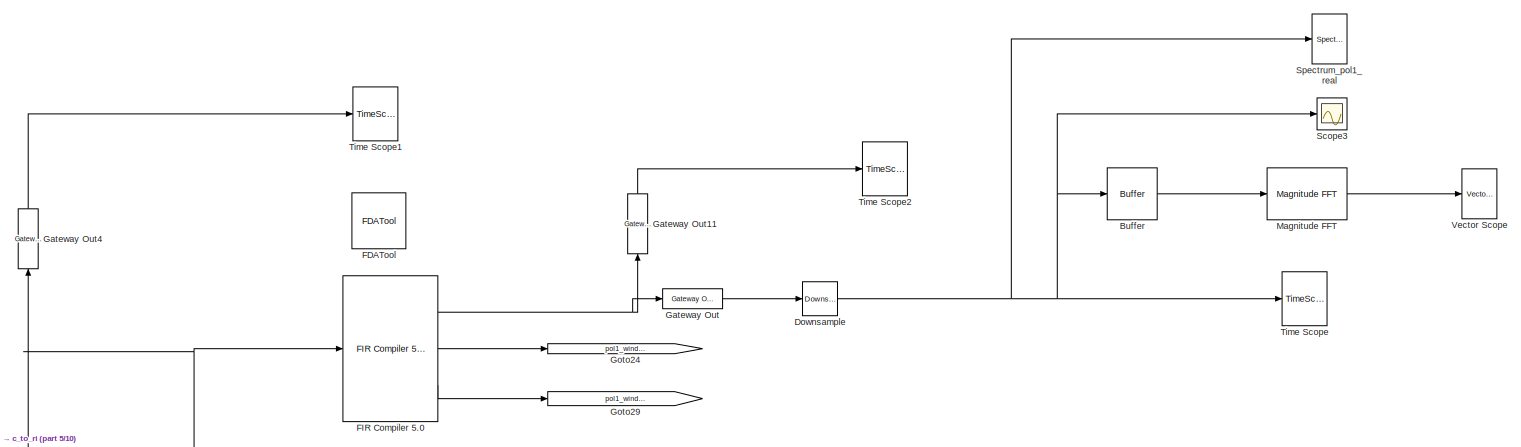
[diagram: root canvas - part 1/10, top right region]
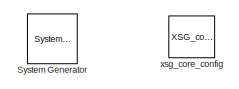
[diagram: root canvas - part 2/10, top left region]
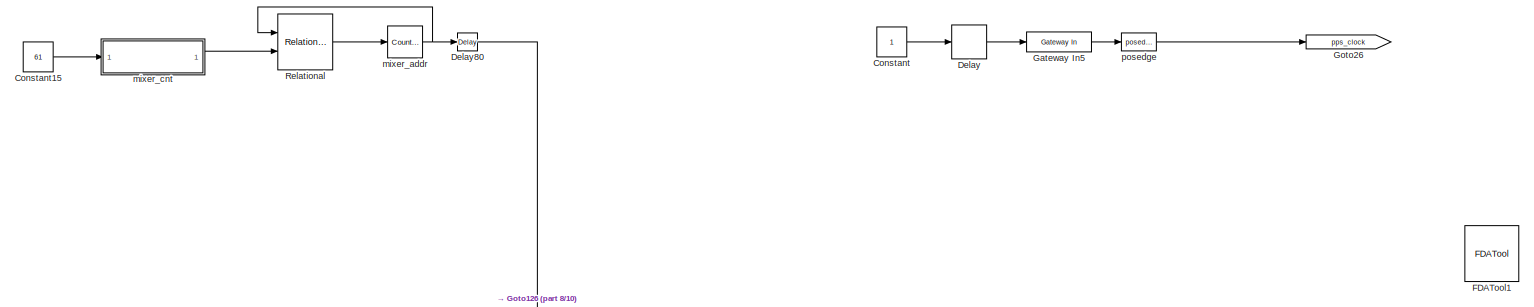
[diagram: root canvas - part 3/10, top center region]
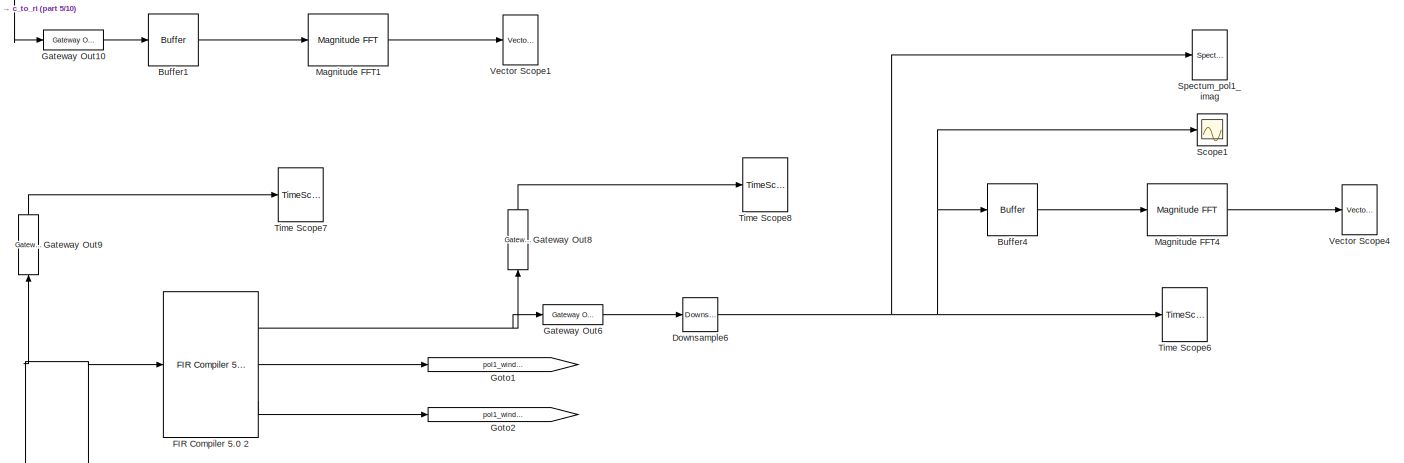
[diagram: root canvas - part 4/10, middle right region]
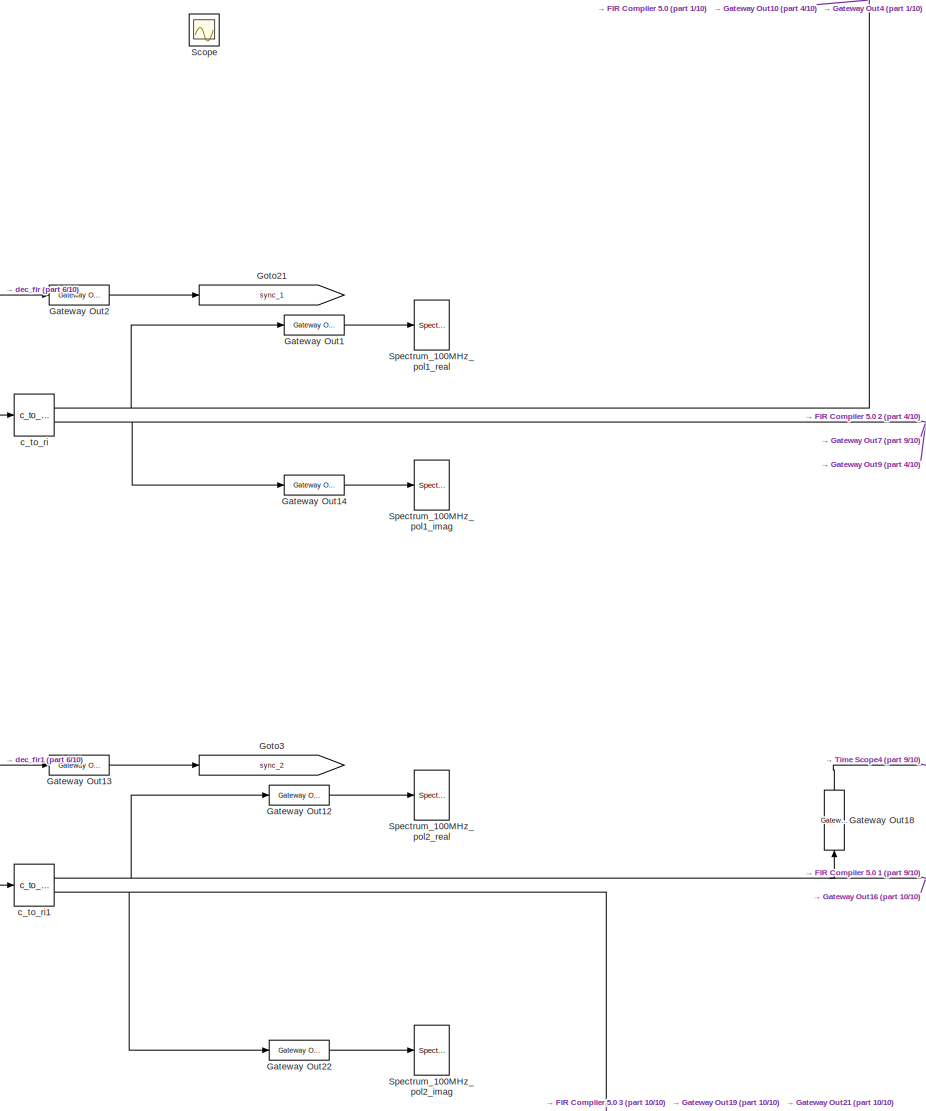
[diagram: root canvas - part 5/10, central region]
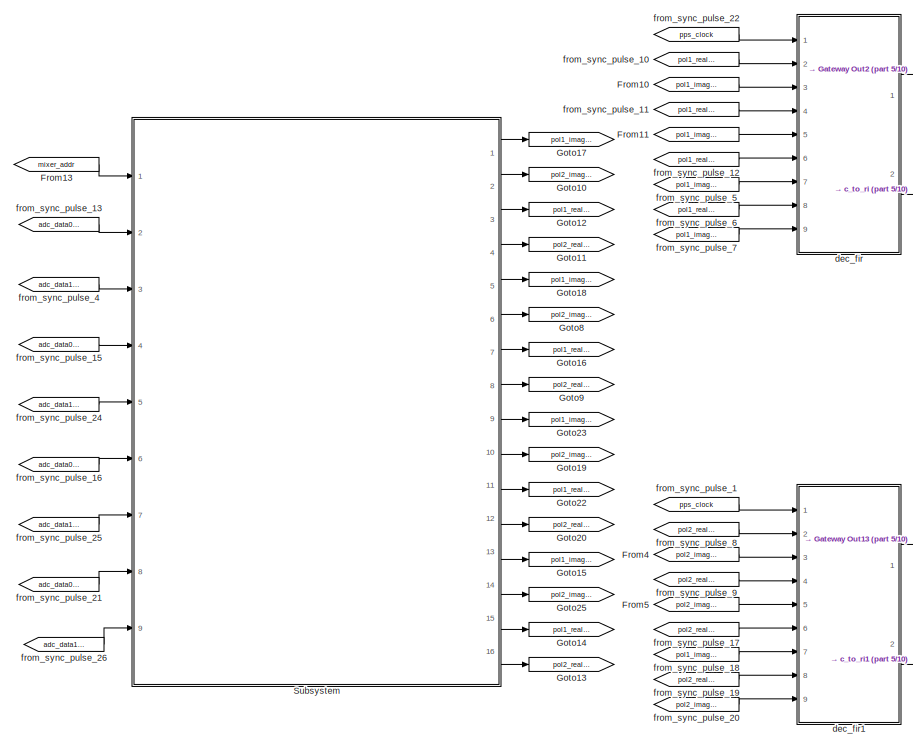
[diagram: root canvas - part 6/10, central region]
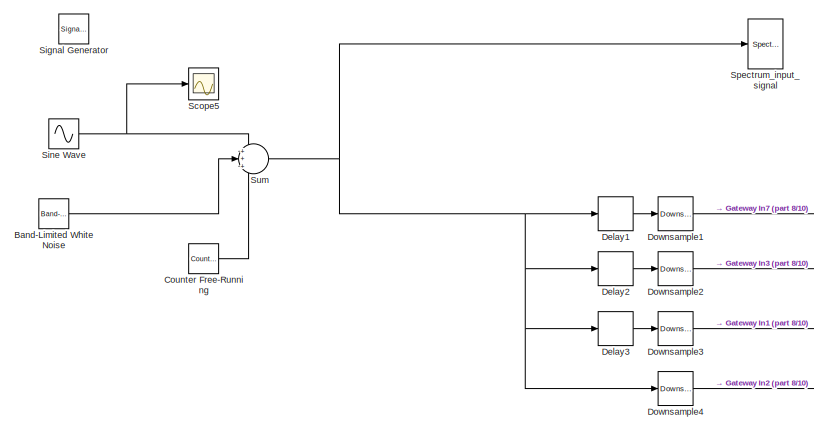
[diagram: root canvas - part 7/10, middle left region]
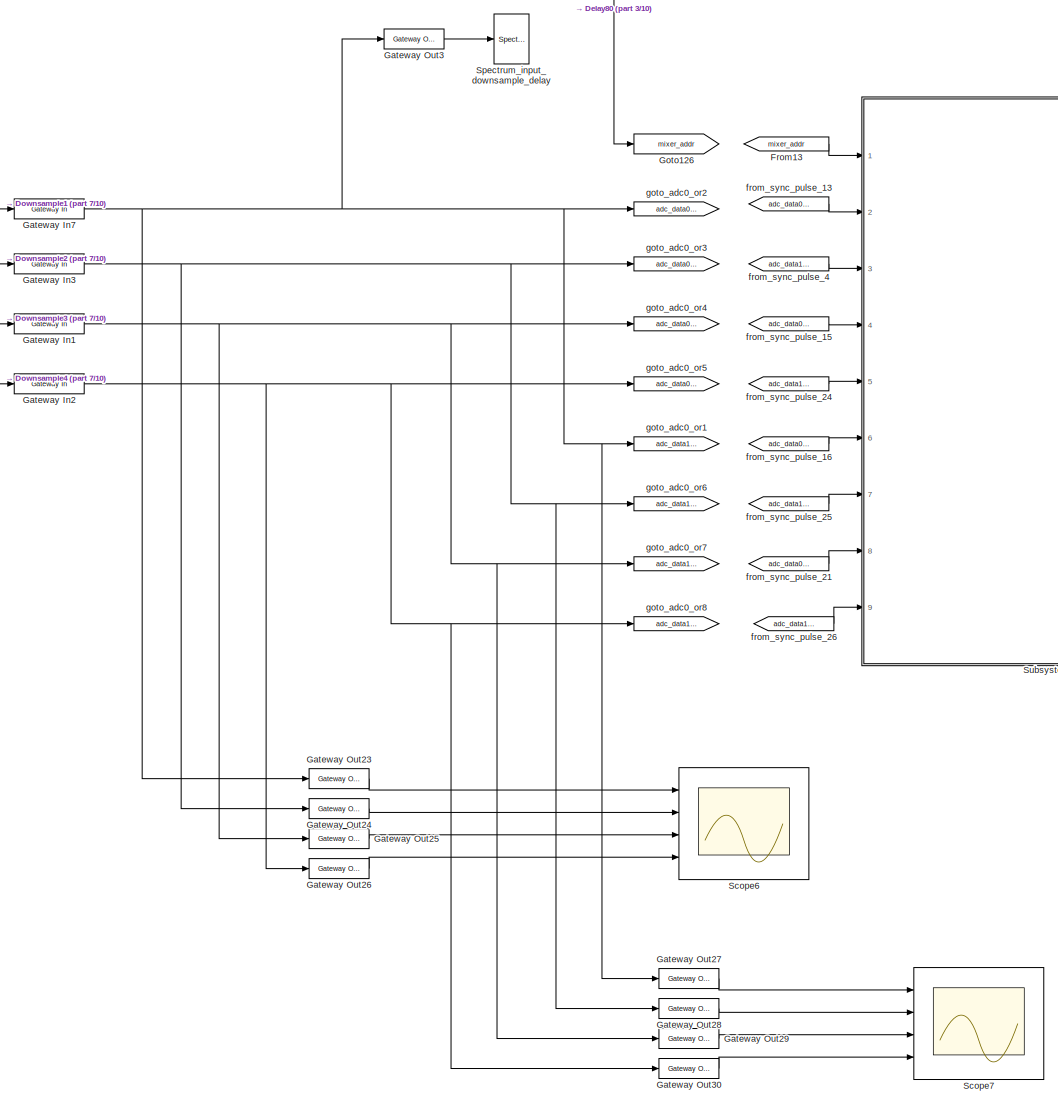
[diagram: root canvas - part 8/10, middle left region]
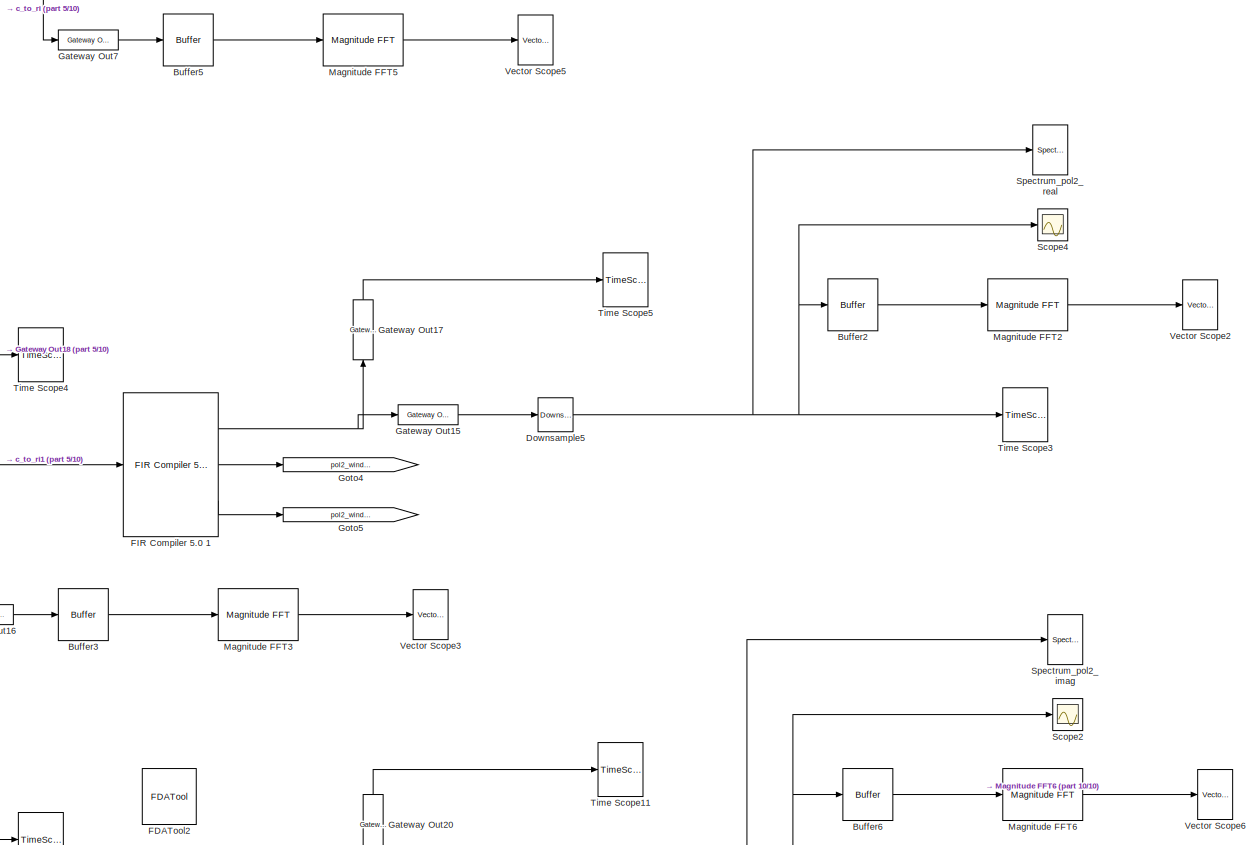
[diagram: root canvas - part 9/10, middle right region]
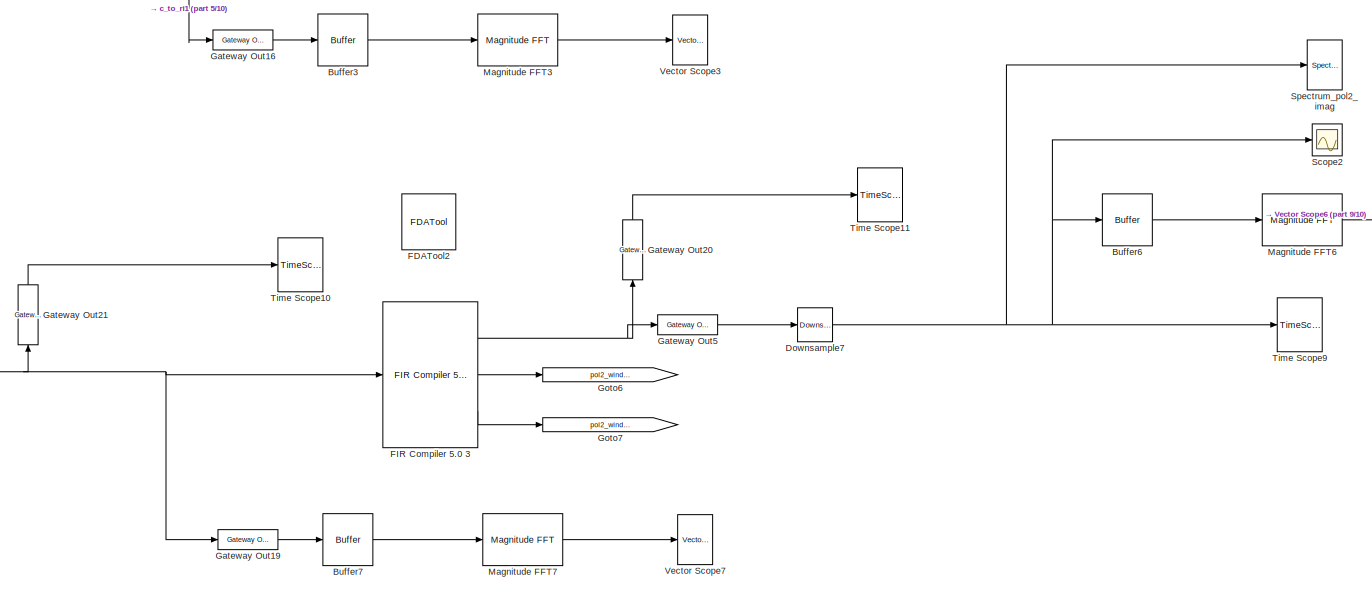
[diagram: root canvas - part 10/10, bottom right region]
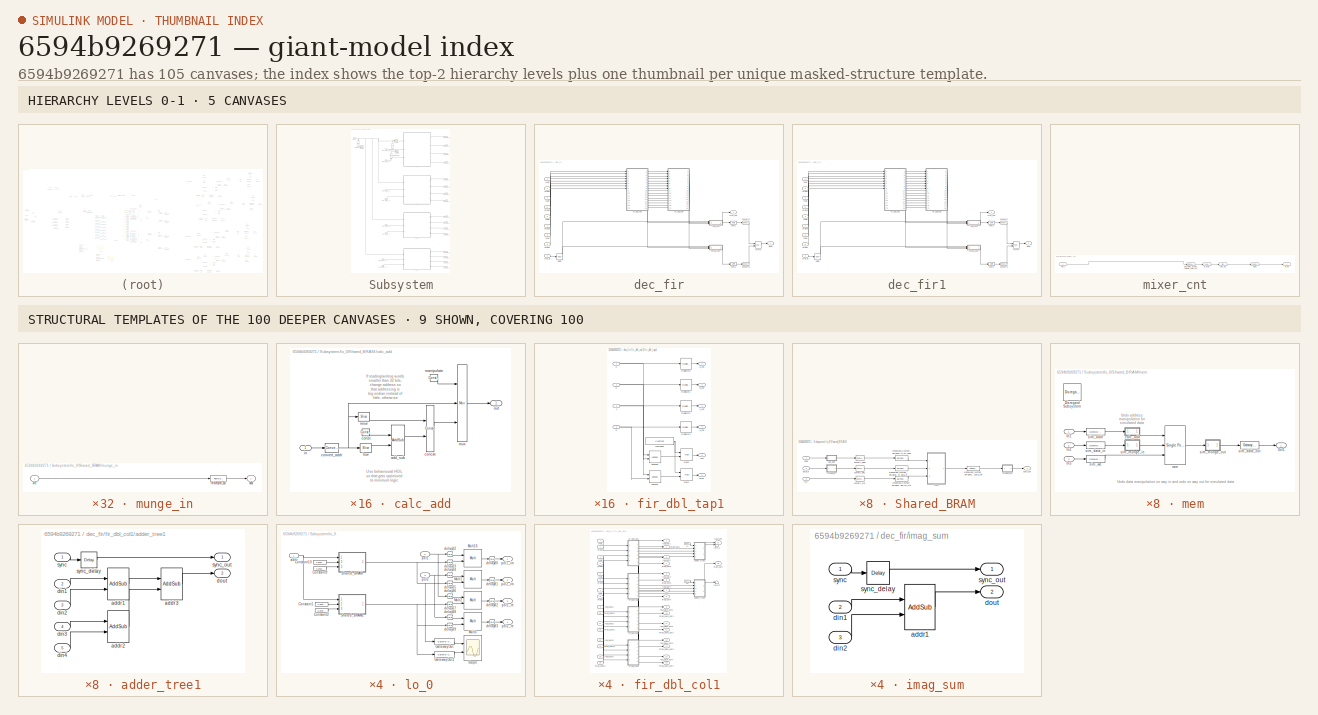
[diagram: thumbnail index - top-2 hierarchy levels (5 canvases) + 9 structural-template representatives of the remaining 100 canvases]
MODEL slx_6594b9269271
KIND model
BLOCK [Reference]  System Generator  REF=xbsIndex_r4/ System Generator
  AttributesFormatString = System\nGenerator
  Impl_file = ISE Defaults
  Ports = []
  SourceBlock = xbsIndex_r4/ System Generator
  SourceType = Xilinx System Generator Block
  Synth_file = XST Defaults
  Tag = genX
  UserDataPersistent = on
  block_type = sysgen
  clock_wrapper = Clock Enables
  core_generation = According to Block Masks
  dbl_ovrd = According to Block Masks
  dcm_input_clock_period = 100
  deprecated_control = off
  directory = ./window_design/sysgen
  eval_field = 0
  has_advanced_control = 0
  incr_netlist = off
  infoedit = System Generator
  package = ff1759
  part = xc6vsx475t
  proj_type = Project Navigator
  run_coregen = off
  sg_icon_stat = 50,50,0,0,token,white,0,58c5b5770fe5f7c311f53dbc6e73f0f6,right,,[ ],[ ]
  sg_mask_display = fprintf('','COMMENT: begin icon graphics');\npatch([0 50 50 0 0 ],[0 0 50 50 0 ],[1 1 1 ]);\npatch([1.6375 16.81 27.31 37.81 48.31 27.31 12.1375 1.6375 ],[36.655 36.655 47.155 36.655 47.155 47.155 47.155 36.655 ],[0.933333 0.203922 0.141176 ]);\npatch([12.1375 27.31 16.81 1.6375 12.1375 ],[26.155 26.155 36.655 36.655 26.155 ],[0.698039 0.0313725 0.219608 ]);\npatch([1.6375 16.81 27.31 12.1375 1.6375 ]...<+327ch>
  sggui_pos = 532, 30,464,470
  simulink_period = 1
  speed = -1
  synthesis_tool = XST
  sysclk_period = 6.25
  testbench = off
  trim_vbits = Everywhere in SubSystem
  xilinxfamily = virtex6
BLOCK [Reference] Band-Limited White Noise  REF=simulink/Sources/Band-Limited
White Noise
  Cov = [0.01]
  Ports = [0, 1]
  SourceBlock = simulink/Sources/Band-Limited\nWhite Noise
  SourceType = Band-Limited White Noise.
  Ts = 0.25
  VectorParams1D = on
  seed = [23341]
BLOCK [Buffer] Buffer
  N = 256
  TreatMby1Signals = One channel
  ic = 20
BLOCK [Buffer] Buffer1
  N = 1024
  TreatMby1Signals = One channel
BLOCK [Buffer] Buffer2
  N = 256
  TreatMby1Signals = One channel
  ic = 20
BLOCK [Buffer] Buffer3
  N = 1024
  TreatMby1Signals = One channel
BLOCK [Buffer] Buffer4
  N = 256
  TreatMby1Signals = One channel
  ic = 20
BLOCK [Buffer] Buffer5
  N = 1024
  TreatMby1Signals = One channel
BLOCK [Buffer] Buffer6
  N = 256
  TreatMby1Signals = One channel
  ic = 20
BLOCK [Buffer] Buffer7
  N = 1024
  TreatMby1Signals = One channel
BLOCK [Constant] Constant
BLOCK [Constant] Constant15
  Value = 61
BLOCK [Reference] Counter Free-Running  REF=simulink/Sources/Counter
Free-Running
  Commented = on
  NumBits = 8
  Ports = [0, 1]
  SourceBlock = simulink/Sources/Counter\nFree-Running
  SourceType = Counter Free-Running
  tsamp = 0.25
BLOCK [Delay] Delay
  DelayLength = 3
  InputPortMap = u0
  Ports = [1, 1]
BLOCK [Delay] Delay1
  DelayLength = 3
  InputPortMap = u0
  Ports = [1, 1]
BLOCK [Delay] Delay2
  InputPortMap = u0
  Ports = [1, 1]
BLOCK [Delay] Delay3
  DelayLength = 1
  InputPortMap = u0
  Ports = [1, 1]
BLOCK [Reference] Delay80  REF=xbsIndex_r4/Delay
  Ports = [1, 1]
  SourceBlock = xbsIndex_r4/Delay
  SourceType = Xilinx Delay Block
  block_type = delay
  block_version = 11.4
  dbl_ovrd = off
  en = off
  has_advanced_control = 0
  infoedit = Hardware notes: A delay line is a chain, each link of which is an SRL16 followed by a flip-flop.
  infoeditControl = Selection of Reset will increase slice count due to use of real FFs and instead of SRLs
  latency = 2
  reg_retiming = on
  rst = off
  sg_icon_stat = 20,18,1,1,white,blue,0,85ce9542,right,,[ ],[ ]
  sg_mask_display = fprintf('','COMMENT: begin icon graphics');\npatch([0 20 20 0 0 ],[0 0 18 18 0 ],[0.77 0.82 0.91 ]);\nplot([0 20 20 0 0 ],[0 0 18 18 0 ]);\npatch([5.55 8.44 10.44 12.44 14.44 10.44 7.55 5.55 ],[11.22 11.22 13.22 11.22 13.22 13.22 13.22 11.22 ],[1 1 1 ]);\npatch([7.55 10.44 8.44 5.55 7.55 ],[9.22 9.22 11.22 11.22 9.22 ],[0.931 0.946 0.973 ]);\npatch([5.55 8.44 10.44 7.55 5.55 ],[7.22 7.22 9.22 9.22 7.22...<+289ch>
  sggui_pos = 0,0,432,336
  xl_area = [0,0,0,0,0,0,0]
  xl_use_area = off
BLOCK [Reference] Downsample  REF=dspsigops/Downsample
  InputProcessing = Elements as channels (sample based)
  N = 50
  Ports = [1, 1]
  RateOptions = Allow multirate processing
  SourceBlock = dspsigops/Downsample
  SourceType = Downsample
  UserDataPersistent = on
  fmode = Maintain input frame size
  ic = 0
  phase = 0
  smode = Allow multirate
BLOCK [Reference] Downsample1  REF=dspsigops/Downsample
  InputProcessing = Elements as channels (sample based)
  N = 4
  Ports = [1, 1]
  RateOptions = Enforce single-rate processing
  SourceBlock = dspsigops/Downsample
  SourceType = Downsample
  UserDataPersistent = on
  fmode = Maintain input frame size
  ic = 0
  phase = 0
  smode = Allow multirate
BLOCK [Reference] Downsample2  REF=dspsigops/Downsample
  InputProcessing = Elements as channels (sample based)
  N = 4
  Ports = [1, 1]
  RateOptions = Enforce single-rate processing
  SourceBlock = dspsigops/Downsample
  SourceType = Downsample
  UserDataPersistent = on
  fmode = Maintain input frame size
  ic = 0
  phase = 0
  smode = Allow multirate
BLOCK [Reference] Downsample3  REF=dspsigops/Downsample
  InputProcessing = Elements as channels (sample based)
  N = 4
  Ports = [1, 1]
  RateOptions = Enforce single-rate processing
  SourceBlock = dspsigops/Downsample
  SourceType = Downsample
  UserDataPersistent = on
  fmode = Maintain input frame size
  ic = 0
  phase = 0
  smode = Allow multirate
BLOCK [Reference] Downsample4  REF=dspsigops/Downsample
  InputProcessing = Elements as channels (sample based)
  N = 4
  Ports = [1, 1]
  RateOptions = Enforce single-rate processing
  SourceBlock = dspsigops/Downsample
  SourceType = Downsample
  UserDataPersistent = on
  fmode = Maintain input frame size
  ic = 0
  phase = 0
  smode = Allow multirate
BLOCK [Reference] Downsample5  REF=dspsigops/Downsample
  InputProcessing = Elements as channels (sample based)
  N = 50
  Ports = [1, 1]
  RateOptions = Allow multirate processing
  SourceBlock = dspsigops/Downsample
  SourceType = Downsample
  UserDataPersistent = on
  fmode = Maintain input frame size
  ic = 0
  phase = 0
  smode = Allow multirate
BLOCK [Reference] Downsample6  REF=dspsigops/Downsample
  InputProcessing = Elements as channels (sample based)
  N = 50
  Ports = [1, 1]
  RateOptions = Allow multirate processing
  SourceBlock = dspsigops/Downsample
  SourceType = Downsample
  UserDataPersistent = on
  fmode = Maintain input frame size
  ic = 0
  phase = 0
  smode = Allow multirate
BLOCK [Reference] Downsample7  REF=dspsigops/Downsample
  InputProcessing = Elements as channels (sample based)
  N = 50
  Ports = [1, 1]
  RateOptions = Allow multirate processing
  SourceBlock = dspsigops/Downsample
  SourceType = Downsample
  UserDataPersistent = on
  fmode = Maintain input frame size
  ic = 0
  phase = 0
  smode = Allow multirate
BLOCK [Reference] FDATool  REF=xbsIndex_r4/FDATool
  Ports = []
  SourceBlock = xbsIndex_r4/FDATool
  SourceType = Xilinx FDATool Interface Block
  UserDataPersistent = on
  block_type = fdatool
  has_advanced_control = 0
  infoedit = FDATool
  sg_icon_stat = 54,56,-1,-1,blue,white,0,07734,right,,[ ],[ ]
  sg_mask_display = fprintf('','COMMENT: begin icon graphics');\npatch([0 54 54 0 0 ],[0 0 56 56 0 ],[1 1 1 ]);\nplot([0 54 54 0 0 ],[0 0 56 56 0 ]);\npatch([11.425 21.54 28.54 35.54 42.54 28.54 18.425 11.425 ],[35.77 35.77 42.77 35.77 42.77 42.77 42.77 35.77 ],[0.839 0.874 0.937 ]);\npatch([18.425 28.54 21.54 11.425 18.425 ],[28.77 28.77 35.77 35.77 28.77 ],[0.77 0.82 0.91 ]);\npatch([11.425 21.54 28.54 18.425 11.425 ],[...<+308ch>  <repeated x3 — deduplicated; at blocks: FDATool, FDATool1, FDATool2>
  sggui_pos = -1,-1,-1,-1
BLOCK [Reference] FDATool1  REF=xbsIndex_r4/FDATool
  Ports = []
  SourceBlock = xbsIndex_r4/FDATool
  SourceType = Xilinx FDATool Interface Block
  UserDataPersistent = on
  block_type = fdatool
  has_advanced_control = 0
  infoedit = FDATool
  sg_icon_stat = 54,56,-1,-1,blue,white,0,07734,right,,[ ],[ ]
  sggui_pos = -1,-1,-1,-1
BLOCK [Reference] FDATool2  REF=xbsIndex_r4/FDATool
  Ports = []
  SourceBlock = xbsIndex_r4/FDATool
  SourceType = Xilinx FDATool Interface Block
  UserDataPersistent = on
  block_type = fdatool
  has_advanced_control = 0
  infoedit = FDATool
  sg_icon_stat = 54,56,-1,-1,blue,white,0,07734,right,,[ ],[ ]
  sggui_pos = -1,-1,-1,-1
BLOCK [Reference] FIR Compiler 5.0   REF=xbsIndex_r4/FIR Compiler 5.0 
  Ports = [1, 3]
  SourceBlock = xbsIndex_r4/FIR Compiler 5.0
  SourceType = Xilinx FIR Compiler 5.0 Block
  allow_rounding_approximation = off
  bestprecision = on
  block_type = fir_compiler_v5_0
  chan_in_adv = 0
  coefficient_buffer_type = Automatic
  coefficient_fractional_bits = 33
  coefficient_reload = off
  coefficient_sets = 1
  coefficient_sign = Unsigned
  coefficient_structure = Non_Symmetric
  coefficient_width = 25
  coefficientvector = coef
  columnconfig = '12'
  data_buffer_type = Automatic
  data_fractional_bits = 0
  data_sign = Signed
  data_width = 16
  decimation_rate = 50
  dsptool_ready = true
  filter_architecture = Systolic_Multiply_Accumulate
  filter_selection = 1
  filter_type = Decimation
  gui_behaviour = Sysgen
  hardwareoversamplingrate = 1
  has_advanced_control = 0
  has_ce = off
  has_data_valid = off
  has_nd = off
  has_sclr = off
  input_buffer_type = Automatic
  inter_column_pipe_length = 4
  interpolation_rate = 1
  ip_name = FIR Compiler
  ip_version = 5.0
  ip_wrap_arbitrary_binary_point = true
  ipcore_fpga_part = xlipgetpartsetting(gcb, {'virtex4', 'xc4vsx35', '-10', 'ff668'})
  ipcore_usecache = true
  ipcore_useipmodelcache = true
  ipcore_xco_need_fpga_part = true
  multi_column_support = Disabled
  number_channels = 1
  number_paths = 1
  optimization_goal = Area
  output_buffer_type = Automatic
  output_rounding_mode = Convergent_Rounding_to_Even
  output_width = 18
  passband_max = 0.5
  passband_min = 0.0
  port_translation_map = { 'ce' => 'en', 'sclr' => 'rst' }
  preference_for_other_storage = Automatic
  quantization = Maximize_Dynamic_Range
  rate_change_type = Integer
  ratespecification = Maximum_Possible
  registered_output = true
  run_core_at_system_period = true
  sampleperiod = 1
  sg_icon_stat = 95,146,1,3,white,blue,0,671da946,right,,[ ],[ ]
  sg_mask_display = fprintf('','COMMENT: begin icon graphics');\npatch([0 95 95 0 0 ],[0 0 146 146 0 ],[0.77 0.82 0.91 ]);\nplot([0 95 95 0 0 ],[0 0 146 146 0 ]);\npatch([18.075 36.86 49.86 62.86 75.86 49.86 31.075 18.075 ],[87.43 87.43 100.43 87.43 100.43 100.43 100.43 87.43 ],[1 1 1 ]);\npatch([31.075 49.86 36.86 18.075 31.075 ],[74.43 74.43 87.43 87.43 74.43 ],[0.931 0.946 0.973 ]);\npatch([18.075 36.86 49.86 31.075 18...<+472ch>  <repeated x3 — deduplicated; at blocks: FIR Compiler 5.0, FIR Compiler 5.0 2, FIR Compiler 5.0 3>
  sggui_pos = 942,349,501,968
  stopband_max = 1.0
  stopband_min = 0.5
  structural_sim = false
  usechan_in_adv = off
  wrapper_available = true
  xl_area = [0,0,0,0,0,0,0]
  xl_use_area = off
  zero_pack_factor = 1
BLOCK [Reference] FIR Compiler 5.0 1  REF=xbsIndex_r4/FIR Compiler 5.0 
  Ports = [1, 3]
  SourceBlock = xbsIndex_r4/FIR Compiler 5.0
  SourceType = Xilinx FIR Compiler 5.0 Block
  allow_rounding_approximation = off
  bestprecision = on
  block_type = fir_compiler_v5_0
  chan_in_adv = 0
  coefficient_buffer_type = Automatic
  coefficient_fractional_bits = 35
  coefficient_reload = off
  coefficient_sets = 1
  coefficient_sign = Unsigned
  coefficient_structure = Non_Symmetric
  coefficient_width = 25
  coefficientvector = coef
  columnconfig = '42'
  data_buffer_type = Automatic
  data_fractional_bits = 0
  data_sign = Signed
  data_width = 16
  decimation_rate = 50
  dsptool_ready = true
  filter_architecture = Systolic_Multiply_Accumulate
  filter_selection = 1
  filter_type = Decimation
  gui_behaviour = Sysgen
  hardwareoversamplingrate = 1
  has_advanced_control = 0
  has_ce = off
  has_data_valid = off
  has_nd = off
  has_sclr = off
  input_buffer_type = Automatic
  inter_column_pipe_length = 4
  interpolation_rate = 1
  ip_name = FIR Compiler
  ip_version = 5.0
  ip_wrap_arbitrary_binary_point = true
  ipcore_fpga_part = xlipgetpartsetting(gcb, {'virtex4', 'xc4vsx35', '-10', 'ff668'})
  ipcore_usecache = true
  ipcore_useipmodelcache = true
  ipcore_xco_need_fpga_part = true
  multi_column_support = Disabled
  number_channels = 1
  number_paths = 1
  optimization_goal = Area
  output_buffer_type = Automatic
  output_rounding_mode = Convergent_Rounding_to_Even
  output_width = 18
  passband_max = 0.5
  passband_min = 0.0
  port_translation_map = { 'ce' => 'en', 'sclr' => 'rst' }
  preference_for_other_storage = Automatic
  quantization = Maximize_Dynamic_Range
  rate_change_type = Integer
  ratespecification = Maximum_Possible
  registered_output = true
  run_core_at_system_period = true
  sampleperiod = 1
  sg_icon_stat = 95,144,1,3,white,blue,0,671da946,right,,[ ],[ ]
  sg_mask_display = fprintf('','COMMENT: begin icon graphics');\npatch([0 95 95 0 0 ],[0 0 144 144 0 ],[0.77 0.82 0.91 ]);\nplot([0 95 95 0 0 ],[0 0 144 144 0 ]);\npatch([18.075 36.86 49.86 62.86 75.86 49.86 31.075 18.075 ],[86.43 86.43 99.43 86.43 99.43 99.43 99.43 86.43 ],[1 1 1 ]);\npatch([31.075 49.86 36.86 18.075 31.075 ],[73.43 73.43 86.43 86.43 73.43 ],[0.931 0.946 0.973 ]);\npatch([18.075 36.86 49.86 31.075 18.075...<+468ch>
  sggui_pos = 942,349,501,968
  stopband_max = 1.0
  stopband_min = 0.5
  structural_sim = false
  usechan_in_adv = off
  wrapper_available = true
  xl_area = [0,0,0,0,0,0,0]
  xl_use_area = off
  zero_pack_factor = 1
BLOCK [Reference] FIR Compiler 5.0 2  REF=xbsIndex_r4/FIR Compiler 5.0 
  Ports = [1, 3]
  SourceBlock = xbsIndex_r4/FIR Compiler 5.0
  SourceType = Xilinx FIR Compiler 5.0 Block
  allow_rounding_approximation = off
  bestprecision = on
  block_type = fir_compiler_v5_0
  chan_in_adv = 0
  coefficient_buffer_type = Automatic
  coefficient_fractional_bits = 33
  coefficient_reload = off
  coefficient_sets = 1
  coefficient_sign = Unsigned
  coefficient_structure = Non_Symmetric
  coefficient_width = 25
  coefficientvector = coef
  columnconfig = '12'
  data_buffer_type = Automatic
  data_fractional_bits = 0
  data_sign = Signed
  data_width = 16
  decimation_rate = 50
  dsptool_ready = true
  filter_architecture = Systolic_Multiply_Accumulate
  filter_selection = 1
  filter_type = Decimation
  gui_behaviour = Sysgen
  hardwareoversamplingrate = 1
  has_advanced_control = 0
  has_ce = off
  has_data_valid = off
  has_nd = off
  has_sclr = off
  input_buffer_type = Automatic
  inter_column_pipe_length = 4
  interpolation_rate = 1
  ip_name = FIR Compiler
  ip_version = 5.0
  ip_wrap_arbitrary_binary_point = true
  ipcore_fpga_part = xlipgetpartsetting(gcb, {'virtex4', 'xc4vsx35', '-10', 'ff668'})
  ipcore_usecache = true
  ipcore_useipmodelcache = true
  ipcore_xco_need_fpga_part = true
  multi_column_support = Disabled
  number_channels = 1
  number_paths = 1
  optimization_goal = Area
  output_buffer_type = Automatic
  output_rounding_mode = Convergent_Rounding_to_Even
  output_width = 18
  passband_max = 0.5
  passband_min = 0.0
  port_translation_map = { 'ce' => 'en', 'sclr' => 'rst' }
  preference_for_other_storage = Automatic
  quantization = Maximize_Dynamic_Range
  rate_change_type = Integer
  ratespecification = Maximum_Possible
  registered_output = true
  run_core_at_system_period = true
  sampleperiod = 1
  sg_icon_stat = 95,146,1,3,white,blue,0,671da946,right,,[ ],[ ]
  sggui_pos = 610,222,501,968
  stopband_max = 1.0
  stopband_min = 0.5
  structural_sim = false
  usechan_in_adv = off
  wrapper_available = true
  xl_area = [0,0,0,0,0,0,0]
  xl_use_area = off
  zero_pack_factor = 1
BLOCK [Reference] FIR Compiler 5.0 3  REF=xbsIndex_r4/FIR Compiler 5.0 
  Ports = [1, 3]
  SourceBlock = xbsIndex_r4/FIR Compiler 5.0
  SourceType = Xilinx FIR Compiler 5.0 Block
  allow_rounding_approximation = off
  bestprecision = on
  block_type = fir_compiler_v5_0
  chan_in_adv = 0
  coefficient_buffer_type = Automatic
  coefficient_fractional_bits = 33
  coefficient_reload = off
  coefficient_sets = 1
  coefficient_sign = Unsigned
  coefficient_structure = Non_Symmetric
  coefficient_width = 25
  coefficientvector = coef
  columnconfig = '12'
  data_buffer_type = Automatic
  data_fractional_bits = 0
  data_sign = Signed
  data_width = 16
  decimation_rate = 50
  dsptool_ready = true
  filter_architecture = Systolic_Multiply_Accumulate
  filter_selection = 1
  filter_type = Decimation
  gui_behaviour = Sysgen
  hardwareoversamplingrate = 1
  has_advanced_control = 0
  has_ce = off
  has_data_valid = off
  has_nd = off
  has_sclr = off
  input_buffer_type = Automatic
  inter_column_pipe_length = 4
  interpolation_rate = 1
  ip_name = FIR Compiler
  ip_version = 5.0
  ip_wrap_arbitrary_binary_point = true
  ipcore_fpga_part = xlipgetpartsetting(gcb, {'virtex4', 'xc4vsx35', '-10', 'ff668'})
  ipcore_usecache = true
  ipcore_useipmodelcache = true
  ipcore_xco_need_fpga_part = true
  multi_column_support = Disabled
  number_channels = 1
  number_paths = 1
  optimization_goal = Area
  output_buffer_type = Automatic
  output_rounding_mode = Convergent_Rounding_to_Even
  output_width = 18
  passband_max = 0.5
  passband_min = 0.0
  port_translation_map = { 'ce' => 'en', 'sclr' => 'rst' }
  preference_for_other_storage = Automatic
  quantization = Maximize_Dynamic_Range
  rate_change_type = Integer
  ratespecification = Maximum_Possible
  registered_output = true
  run_core_at_system_period = true
  sampleperiod = 1
  sg_icon_stat = 95,146,1,3,white,blue,0,671da946,right,,[ ],[ ]
  sggui_pos = 942,349,501,968
  stopband_max = 1.0
  stopband_min = 0.5
  structural_sim = false
  usechan_in_adv = off
  wrapper_available = true
  xl_area = [0,0,0,0,0,0,0]
  xl_use_area = off
  zero_pack_factor = 1
BLOCK [From] From10
  CloseFcn = tagdialog Close
  GotoTag = pol1_imag_1
BLOCK [From] From11
  CloseFcn = tagdialog Close
  GotoTag = pol1_imag_2
BLOCK [From] From13
  CloseFcn = tagdialog Close
  GotoTag = mixer_addr
BLOCK [From] From4
  CloseFcn = tagdialog Close
  GotoTag = pol2_imag_1
BLOCK [From] From5
  CloseFcn = tagdialog Close
  GotoTag = pol2_imag_2
BLOCK [Reference] Gateway In1  REF=xbsIndex_r4/Gateway In
  ADCChannel = '1'
  LOCs = {}
  Ports = [1, 1]
  SourceBlock = xbsIndex_r4/Gateway In
  SourceType = Xilinx Gateway In Block
  UseAsADC = off
  arith_type = Signed  (2's comp)
  bin_pt = 15
  block_type = gatewayin
  dbl_ovrd = off
  exp_width = 8
  frac_width = 24
  gui_display_data_type = Fixed-point
  has_advanced_control = 0
  hdl_port = on
  infoedit = Gateway in block.  Converts inputs of type Simulink integer, single, double and fixed-point to  Xilinx fixed-point or floating-point data type.<br><br>Hardware notes:  In hardware these blocks become top level input ports.  <repeated x22 — deduplicated; at blocks: Gateway In1, Gateway In2, Gateway In3, Gateway In5, Gateway In7, sim_data_in, windowing_function_simulation_test_Subsystem_lo…, windowing_function_simulation_test_mixer_cnt_us…>
  inherit_from_input = off
  locs_specified = off
  n_bits = 16
  overflow = Saturate
  period = 1
  preci_type = Single
  quantization = Round  (unbiased: +/- Inf)
  sg_icon_stat = 70,20,1,1,white,yellow,1,00d3666e,right,,[ ],[ ]
  sg_mask_display = fprintf('','COMMENT: begin icon graphics');\npatch([0 70 70 0 0 ],[0 0 20 20 0 ],[0.95 0.93 0.65 ]);\nplot([0 70 70 0 0 ],[0 0 20 20 0 ]);\npatch([30.55 33.44 35.44 37.44 39.44 35.44 32.55 30.55 ],[12.22 12.22 14.22 12.22 14.22 14.22 14.22 12.22 ],[1 1 1 ]);\npatch([32.55 35.44 33.44 30.55 32.55 ],[10.22 10.22 12.22 12.22 10.22 ],[0.985 0.979 0.895 ]);\npatch([30.55 33.44 35.44 32.55 30.55 ],[8.22 8.22...<+383ch>  <repeated x4 — deduplicated; at blocks: Gateway In1, Gateway In2, Gateway In3, Gateway In7>
  sggui_pos = 1280,251,464,695
  timing_constraint = None
  xl_area = [0,0,0,0,0,0,0]
  xl_use_area = off
BLOCK [Reference] Gateway In2  REF=xbsIndex_r4/Gateway In
  ADCChannel = '1'
  LOCs = {}
  Ports = [1, 1]
  SourceBlock = xbsIndex_r4/Gateway In
  SourceType = Xilinx Gateway In Block
  UseAsADC = off
  arith_type = Signed  (2's comp)
  bin_pt = 15
  block_type = gatewayin
  dbl_ovrd = off
  exp_width = 8
  frac_width = 24
  gui_display_data_type = Fixed-point
  has_advanced_control = 0
  hdl_port = on
  inherit_from_input = off
  locs_specified = off
  n_bits = 16
  overflow = Saturate
  period = 1
  preci_type = Single
  quantization = Round  (unbiased: +/- Inf)
  sg_icon_stat = 70,20,1,1,white,yellow,1,00d3666e,right,,[ ],[ ]
  sggui_pos = 1280,251,464,695
  timing_constraint = None
  xl_area = [0,0,0,0,0,0,0]
  xl_use_area = off
BLOCK [Reference] Gateway In3  REF=xbsIndex_r4/Gateway In
  ADCChannel = '1'
  LOCs = {}
  Ports = [1, 1]
  SourceBlock = xbsIndex_r4/Gateway In
  SourceType = Xilinx Gateway In Block
  UseAsADC = off
  arith_type = Signed  (2's comp)
  bin_pt = 15
  block_type = gatewayin
  dbl_ovrd = off
  exp_width = 8
  frac_width = 24
  gui_display_data_type = Fixed-point
  has_advanced_control = 0
  hdl_port = on
  inherit_from_input = off
  locs_specified = off
  n_bits = 16
  overflow = Saturate
  period = 1
  preci_type = Single
  quantization = Round  (unbiased: +/- Inf)
  sg_icon_stat = 70,20,1,1,white,yellow,1,00d3666e,right,,[ ],[ ]
  sggui_pos = 1280,251,464,695
  timing_constraint = None
  xl_area = [0,0,0,0,0,0,0]
  xl_use_area = off
BLOCK [Reference] Gateway In5  REF=xbsIndex_r4/Gateway In
  ADCChannel = '1'
  LOCs = {}
  Ports = [1, 1]
  SourceBlock = xbsIndex_r4/Gateway In
  SourceType = Xilinx Gateway In Block
  UseAsADC = off
  arith_type = Boolean
  bin_pt = 15
  block_type = gatewayin
  dbl_ovrd = off
  exp_width = 8
  frac_width = 24
  gui_display_data_type = Boolean
  has_advanced_control = 0
  hdl_port = on
  inherit_from_input = off
  locs_specified = off
  n_bits = 16
  overflow = Saturate
  period = 1
  preci_type = Single
  quantization = Round  (unbiased: +/- Inf)
  sg_icon_stat = 65,20,1,1,white,yellow,1,00d3666e,right,,[ ],[ ]
  sg_mask_display = fprintf('','COMMENT: begin icon graphics');\npatch([0 65 65 0 0 ],[0 0 20 20 0 ],[0.95 0.93 0.65 ]);\nplot([0 65 65 0 0 ],[0 0 20 20 0 ]);\npatch([27.55 30.44 32.44 34.44 36.44 32.44 29.55 27.55 ],[12.22 12.22 14.22 12.22 14.22 14.22 14.22 12.22 ],[1 1 1 ]);\npatch([29.55 32.44 30.44 27.55 29.55 ],[10.22 10.22 12.22 12.22 10.22 ],[0.985 0.979 0.895 ]);\npatch([27.55 30.44 32.44 29.55 27.55 ],[8.22 8.22...<+383ch>
  sggui_pos = 1280,251,464,695
  timing_constraint = None
  xl_area = [0,0,0,0,0,0,0]
  xl_use_area = off
BLOCK [Reference] Gateway In7  REF=xbsIndex_r4/Gateway In
  ADCChannel = '1'
  LOCs = {}
  Ports = [1, 1]
  SourceBlock = xbsIndex_r4/Gateway In
  SourceType = Xilinx Gateway In Block
  UseAsADC = off
  arith_type = Signed  (2's comp)
  bin_pt = 15
  block_type = gatewayin
  dbl_ovrd = off
  exp_width = 8
  frac_width = 24
  gui_display_data_type = Fixed-point
  has_advanced_control = 0
  hdl_port = on
  inherit_from_input = off
  locs_specified = off
  n_bits = 16
  overflow = Saturate
  period = 1
  preci_type = Single
  quantization = Round  (unbiased: +/- Inf)
  sg_icon_stat = 70,20,1,1,white,yellow,1,00d3666e,right,,[ ],[ ]
  sggui_pos = 1214,251,464,695
  timing_constraint = None
  xl_area = [0,0,0,0,0,0,0]
  xl_use_area = off
BLOCK [Reference] Gateway Out  REF=xbsIndex_r4/Gateway Out
  DACChannel = '1'
  LOCs = {}
  Ports = [1, 1]
  SourceBlock = xbsIndex_r4/Gateway Out
  SourceType = Xilinx Gateway Out Block
  UseAsDAC = off
  block_type = gatewayout
  has_advanced_control = 0
  hdl_port = off
  infoedit = Gateway out block.  Converts Xilinx fixed-point or floating-point type inputs into ouputs of type Simulink integer, single, double, or fixed-point.<br><br>Hardware notes:  In hardware these blocks become top level output ports or are discarded, depending on how they are configured.  <repeated x34 — deduplicated; at blocks: Gateway Out, Gateway Out1, Gateway Out10, Gateway Out11, Gateway Out12, Gateway Out13, Gateway Out14, Gateway Out15, Gateway Out16, Gateway Out17, Gateway Out18, Gateway Out19, Gateway Out2, Gateway Out20, Gateway Out21, Gateway Out22, +15 more>
  inherit_from_input = on
  locs_specified = off
  sg_icon_stat = 60,20,1,1,white,grey,1,632ec840,right,,[ ],[ ]
  sg_mask_display = fprintf('','COMMENT: begin icon graphics');\npatch([0 60 60 0 0 ],[0 0 20 20 0 ],[0.88 0.88 0.88 ]);\nplot([0 60 60 0 0 ],[0 0 20 20 0 ]);\npatch([25.55 28.44 30.44 32.44 34.44 30.44 27.55 25.55 ],[12.22 12.22 14.22 12.22 14.22 14.22 14.22 12.22 ],[1 1 1 ]);\npatch([27.55 30.44 28.44 25.55 27.55 ],[10.22 10.22 12.22 12.22 10.22 ],[0.964 0.964 0.964 ]);\npatch([25.55 28.44 30.44 27.55 25.55 ],[8.22 8.22...<+381ch>  <repeated x4 — deduplicated; at blocks: Gateway Out, Gateway Out15, Gateway Out5, Gateway Out6>
  sggui_pos = 677,464,448,671
  timing_constraint = None
  xl_area = [0,0,0,0,0,0,0]
  xl_use_area = off
BLOCK [Reference] Gateway Out1  REF=xbsIndex_r4/Gateway Out
  DACChannel = '1'
  LOCs = {}
  Ports = [1, 1]
  SourceBlock = xbsIndex_r4/Gateway Out
  SourceType = Xilinx Gateway Out Block
  UseAsDAC = off
  block_type = gatewayout
  has_advanced_control = 0
  hdl_port = on
  inherit_from_input = off
  locs_specified = off
  sg_icon_stat = 60,20,1,1,white,yellow,1,cc31b7ac,right,,[ ],[ ]
  sg_mask_display = fprintf('','COMMENT: begin icon graphics');\npatch([0 60 60 0 0 ],[0 0 20 20 0 ],[0.95 0.93 0.65 ]);\nplot([0 60 60 0 0 ],[0 0 20 20 0 ]);\npatch([25.55 28.44 30.44 32.44 34.44 30.44 27.55 25.55 ],[12.22 12.22 14.22 12.22 14.22 14.22 14.22 12.22 ],[1 1 1 ]);\npatch([27.55 30.44 28.44 25.55 27.55 ],[10.22 10.22 12.22 12.22 10.22 ],[0.985 0.979 0.895 ]);\npatch([25.55 28.44 30.44 27.55 25.55 ],[8.22 8.22...<+384ch>  <repeated x27 — deduplicated; at blocks: Gateway Out1, Gateway Out10, Gateway Out12, Gateway Out13, Gateway Out14, Gateway Out16, Gateway Out19, Gateway Out2, Gateway Out22, Gateway Out23, Gateway Out24, Gateway Out25, Gateway Out26, Gateway Out27, Gateway Out28, Gateway Out29, +4 more>
  sggui_pos = 655,175,448,671
  timing_constraint = None
  xl_area = [0,0,0,0,0,0,0]
  xl_use_area = off
BLOCK [Reference] Gateway Out10  REF=xbsIndex_r4/Gateway Out
  DACChannel = '1'
  LOCs = {}
  Ports = [1, 1]
  SourceBlock = xbsIndex_r4/Gateway Out
  SourceType = Xilinx Gateway Out Block
  UseAsDAC = off
  block_type = gatewayout
  has_advanced_control = 0
  hdl_port = on
  inherit_from_input = off
  locs_specified = off
  sg_icon_stat = 60,20,1,1,white,yellow,1,cc31b7ac,right,,[ ],[ ]
  sggui_pos = 655,175,448,671
  timing_constraint = None
  xl_area = [0,0,0,0,0,0,0]
  xl_use_area = off
BLOCK [Reference] Gateway Out11  REF=xbsIndex_r4/Gateway Out
  DACChannel = '1'
  LOCs = {}
  Ports = [1, 1]
  SourceBlock = xbsIndex_r4/Gateway Out
  SourceType = Xilinx Gateway Out Block
  UseAsDAC = off
  block_type = gatewayout
  has_advanced_control = 0
  hdl_port = on
  inherit_from_input = off
  locs_specified = off
  sg_icon_stat = 20,60,1,1,white,yellow,1,cc31b7ac,up,,[ ],[ ]
  sg_mask_display = fprintf('','COMMENT: begin icon graphics');\npatch([0 20 20 0 0 ],[0 0 60 60 0 ],[0.95 0.93 0.65 ]);\nplot([0 20 20 0 0 ],[0 0 60 60 0 ]);\npatch([5.55 8.44 10.44 12.44 14.44 10.44 7.55 5.55 ],[32.22 32.22 34.22 32.22 34.22 34.22 34.22 32.22 ],[1 1 1 ]);\npatch([7.55 10.44 8.44 5.55 7.55 ],[30.22 30.22 32.22 32.22 30.22 ],[0.985 0.979 0.895 ]);\npatch([5.55 8.44 10.44 7.55 5.55 ],[28.22 28.22 30.22 30....<+378ch>  <repeated x11 — deduplicated; at blocks: Gateway Out11, Gateway Out17, Gateway Out18, Gateway Out20, Gateway Out21, Gateway Out4, Gateway Out8, Gateway Out9, Gateway Out1, Gateway Out2, Gateway Out3>
  sggui_pos = -1,-1,-1,-1
  timing_constraint = None
  xl_area = [0,0,0,0,0,0,0]
  xl_use_area = off
BLOCK [Reference] Gateway Out12  REF=xbsIndex_r4/Gateway Out
  DACChannel = '1'
  LOCs = {}
  Ports = [1, 1]
  SourceBlock = xbsIndex_r4/Gateway Out
  SourceType = Xilinx Gateway Out Block
  UseAsDAC = off
  block_type = gatewayout
  has_advanced_control = 0
  hdl_port = on
  inherit_from_input = off
  locs_specified = off
  sg_icon_stat = 60,20,1,1,white,yellow,1,cc31b7ac,right,,[ ],[ ]
  sggui_pos = 655,175,448,671
  timing_constraint = None
  xl_area = [0,0,0,0,0,0,0]
  xl_use_area = off
BLOCK [Reference] Gateway Out13  REF=xbsIndex_r4/Gateway Out
  DACChannel = '1'
  LOCs = {}
  Ports = [1, 1]
  SourceBlock = xbsIndex_r4/Gateway Out
  SourceType = Xilinx Gateway Out Block
  UseAsDAC = off
  block_type = gatewayout
  has_advanced_control = 0
  hdl_port = on
  inherit_from_input = off
  locs_specified = off
  sg_icon_stat = 60,20,1,1,white,yellow,1,cc31b7ac,right,,[ ],[ ]
  sggui_pos = 655,175,448,671
  timing_constraint = None
  xl_area = [0,0,0,0,0,0,0]
  xl_use_area = off
BLOCK [Reference] Gateway Out14  REF=xbsIndex_r4/Gateway Out
  DACChannel = '1'
  LOCs = {}
  Ports = [1, 1]
  SourceBlock = xbsIndex_r4/Gateway Out
  SourceType = Xilinx Gateway Out Block
  UseAsDAC = off
  block_type = gatewayout
  has_advanced_control = 0
  hdl_port = on
  inherit_from_input = off
  locs_specified = off
  sg_icon_stat = 60,20,1,1,white,yellow,1,cc31b7ac,right,,[ ],[ ]
  sggui_pos = 655,175,448,671
  timing_constraint = None
  xl_area = [0,0,0,0,0,0,0]
  xl_use_area = off
BLOCK [Reference] Gateway Out15  REF=xbsIndex_r4/Gateway Out
  DACChannel = '1'
  LOCs = {}
  Ports = [1, 1]
  SourceBlock = xbsIndex_r4/Gateway Out
  SourceType = Xilinx Gateway Out Block
  UseAsDAC = off
  block_type = gatewayout
  has_advanced_control = 0
  hdl_port = off
  inherit_from_input = on
  locs_specified = off
  sg_icon_stat = 60,20,1,1,white,grey,1,632ec840,right,,[ ],[ ]
  sggui_pos = 677,464,448,671
  timing_constraint = None
  xl_area = [0,0,0,0,0,0,0]
  xl_use_area = off
BLOCK [Reference] Gateway Out16  REF=xbsIndex_r4/Gateway Out
  DACChannel = '1'
  LOCs = {}
  Ports = [1, 1]
  SourceBlock = xbsIndex_r4/Gateway Out
  SourceType = Xilinx Gateway Out Block
  UseAsDAC = off
  block_type = gatewayout
  has_advanced_control = 0
  hdl_port = on
  inherit_from_input = off
  locs_specified = off
  sg_icon_stat = 60,20,1,1,white,yellow,1,cc31b7ac,right,,[ ],[ ]
  sggui_pos = 655,175,448,671
  timing_constraint = None
  xl_area = [0,0,0,0,0,0,0]
  xl_use_area = off
BLOCK [Reference] Gateway Out17  REF=xbsIndex_r4/Gateway Out
  DACChannel = '1'
  LOCs = {}
  Ports = [1, 1]
  SourceBlock = xbsIndex_r4/Gateway Out
  SourceType = Xilinx Gateway Out Block
  UseAsDAC = off
  block_type = gatewayout
  has_advanced_control = 0
  hdl_port = on
  inherit_from_input = off
  locs_specified = off
  sg_icon_stat = 20,60,1,1,white,yellow,1,cc31b7ac,up,,[ ],[ ]
  sggui_pos = -1,-1,-1,-1
  timing_constraint = None
  xl_area = [0,0,0,0,0,0,0]
  xl_use_area = off
BLOCK [Reference] Gateway Out18  REF=xbsIndex_r4/Gateway Out
  DACChannel = '1'
  LOCs = {}
  Ports = [1, 1]
  SourceBlock = xbsIndex_r4/Gateway Out
  SourceType = Xilinx Gateway Out Block
  UseAsDAC = off
  block_type = gatewayout
  has_advanced_control = 0
  hdl_port = on
  inherit_from_input = off
  locs_specified = off
  sg_icon_stat = 20,60,1,1,white,yellow,1,cc31b7ac,up,,[ ],[ ]
  sggui_pos = 655,175,448,671
  timing_constraint = None
  xl_area = [0,0,0,0,0,0,0]
  xl_use_area = off
BLOCK [Reference] Gateway Out19  REF=xbsIndex_r4/Gateway Out
  DACChannel = '1'
  LOCs = {}
  Ports = [1, 1]
  SourceBlock = xbsIndex_r4/Gateway Out
  SourceType = Xilinx Gateway Out Block
  UseAsDAC = off
  block_type = gatewayout
  has_advanced_control = 0
  hdl_port = on
  inherit_from_input = off
  locs_specified = off
  sg_icon_stat = 60,20,1,1,white,yellow,1,cc31b7ac,right,,[ ],[ ]
  sggui_pos = 655,175,448,671
  timing_constraint = None
  xl_area = [0,0,0,0,0,0,0]
  xl_use_area = off
BLOCK [Reference] Gateway Out2  REF=xbsIndex_r4/Gateway Out
  DACChannel = '1'
  LOCs = {}
  Ports = [1, 1]
  SourceBlock = xbsIndex_r4/Gateway Out
  SourceType = Xilinx Gateway Out Block
  UseAsDAC = off
  block_type = gatewayout
  has_advanced_control = 0
  hdl_port = on
  inherit_from_input = off
  locs_specified = off
  sg_icon_stat = 60,20,1,1,white,yellow,1,cc31b7ac,right,,[ ],[ ]
  sggui_pos = 655,175,448,671
  timing_constraint = None
  xl_area = [0,0,0,0,0,0,0]
  xl_use_area = off
BLOCK [Reference] Gateway Out20  REF=xbsIndex_r4/Gateway Out
  DACChannel = '1'
  LOCs = {}
  Ports = [1, 1]
  SourceBlock = xbsIndex_r4/Gateway Out
  SourceType = Xilinx Gateway Out Block
  UseAsDAC = off
  block_type = gatewayout
  has_advanced_control = 0
  hdl_port = on
  inherit_from_input = off
  locs_specified = off
  sg_icon_stat = 20,60,1,1,white,yellow,1,cc31b7ac,up,,[ ],[ ]
  sggui_pos = -1,-1,-1,-1
  timing_constraint = None
  xl_area = [0,0,0,0,0,0,0]
  xl_use_area = off
BLOCK [Reference] Gateway Out21  REF=xbsIndex_r4/Gateway Out
  DACChannel = '1'
  LOCs = {}
  Ports = [1, 1]
  SourceBlock = xbsIndex_r4/Gateway Out
  SourceType = Xilinx Gateway Out Block
  UseAsDAC = off
  block_type = gatewayout
  has_advanced_control = 0
  hdl_port = on
  inherit_from_input = off
  locs_specified = off
  sg_icon_stat = 20,60,1,1,white,yellow,1,cc31b7ac,up,,[ ],[ ]
  sggui_pos = 655,175,448,671
  timing_constraint = None
  xl_area = [0,0,0,0,0,0,0]
  xl_use_area = off
BLOCK [Reference] Gateway Out22  REF=xbsIndex_r4/Gateway Out
  DACChannel = '1'
  LOCs = {}
  Ports = [1, 1]
  SourceBlock = xbsIndex_r4/Gateway Out
  SourceType = Xilinx Gateway Out Block
  UseAsDAC = off
  block_type = gatewayout
  has_advanced_control = 0
  hdl_port = on
  inherit_from_input = off
  locs_specified = off
  sg_icon_stat = 60,20,1,1,white,yellow,1,cc31b7ac,right,,[ ],[ ]
  sggui_pos = 655,175,448,671
  timing_constraint = None
  xl_area = [0,0,0,0,0,0,0]
  xl_use_area = off
BLOCK [Reference] Gateway Out23  REF=xbsIndex_r4/Gateway Out
  DACChannel = '1'
  LOCs = {}
  Ports = [1, 1]
  SourceBlock = xbsIndex_r4/Gateway Out
  SourceType = Xilinx Gateway Out Block
  UseAsDAC = off
  block_type = gatewayout
  has_advanced_control = 0
  hdl_port = on
  inherit_from_input = on
  locs_specified = off
  sg_icon_stat = 60,20,1,1,white,yellow,1,cc31b7ac,right,,[ ],[ ]
  sggui_pos = 655,175,448,671
  timing_constraint = None
  xl_area = [0,0,0,0,0,0,0]
  xl_use_area = off
BLOCK [Reference] Gateway Out24  REF=xbsIndex_r4/Gateway Out
  DACChannel = '1'
  LOCs = {}
  Ports = [1, 1]
  SourceBlock = xbsIndex_r4/Gateway Out
  SourceType = Xilinx Gateway Out Block
  UseAsDAC = off
  block_type = gatewayout
  has_advanced_control = 0
  hdl_port = on
  inherit_from_input = on
  locs_specified = off
  sg_icon_stat = 60,20,1,1,white,yellow,1,cc31b7ac,right,,[ ],[ ]
  sggui_pos = 655,175,448,671
  timing_constraint = None
  xl_area = [0,0,0,0,0,0,0]
  xl_use_area = off
BLOCK [Reference] Gateway Out25  REF=xbsIndex_r4/Gateway Out
  DACChannel = '1'
  LOCs = {}
  Ports = [1, 1]
  SourceBlock = xbsIndex_r4/Gateway Out
  SourceType = Xilinx Gateway Out Block
  UseAsDAC = off
  block_type = gatewayout
  has_advanced_control = 0
  hdl_port = on
  inherit_from_input = on
  locs_specified = off
  sg_icon_stat = 60,20,1,1,white,yellow,1,cc31b7ac,right,,[ ],[ ]
  sggui_pos = 655,175,448,671
  timing_constraint = None
  xl_area = [0,0,0,0,0,0,0]
  xl_use_area = off
BLOCK [Reference] Gateway Out26  REF=xbsIndex_r4/Gateway Out
  DACChannel = '1'
  LOCs = {}
  Ports = [1, 1]
  SourceBlock = xbsIndex_r4/Gateway Out
  SourceType = Xilinx Gateway Out Block
  UseAsDAC = off
  block_type = gatewayout
  has_advanced_control = 0
  hdl_port = on
  inherit_from_input = on
  locs_specified = off
  sg_icon_stat = 60,20,1,1,white,yellow,1,cc31b7ac,right,,[ ],[ ]
  sggui_pos = 655,175,448,671
  timing_constraint = None
  xl_area = [0,0,0,0,0,0,0]
  xl_use_area = off
BLOCK [Reference] Gateway Out27  REF=xbsIndex_r4/Gateway Out
  DACChannel = '1'
  LOCs = {}
  Ports = [1, 1]
  SourceBlock = xbsIndex_r4/Gateway Out
  SourceType = Xilinx Gateway Out Block
  UseAsDAC = off
  block_type = gatewayout
  has_advanced_control = 0
  hdl_port = on
  inherit_from_input = on
  locs_specified = off
  sg_icon_stat = 60,20,1,1,white,yellow,1,cc31b7ac,right,,[ ],[ ]
  sggui_pos = 655,175,448,671
  timing_constraint = None
  xl_area = [0,0,0,0,0,0,0]
  xl_use_area = off
BLOCK [Reference] Gateway Out28  REF=xbsIndex_r4/Gateway Out
  DACChannel = '1'
  LOCs = {}
  Ports = [1, 1]
  SourceBlock = xbsIndex_r4/Gateway Out
  SourceType = Xilinx Gateway Out Block
  UseAsDAC = off
  block_type = gatewayout
  has_advanced_control = 0
  hdl_port = on
  inherit_from_input = on
  locs_specified = off
  sg_icon_stat = 60,20,1,1,white,yellow,1,cc31b7ac,right,,[ ],[ ]
  sggui_pos = 655,175,448,671
  timing_constraint = None
  xl_area = [0,0,0,0,0,0,0]
  xl_use_area = off
BLOCK [Reference] Gateway Out29  REF=xbsIndex_r4/Gateway Out
  DACChannel = '1'
  LOCs = {}
  Ports = [1, 1]
  SourceBlock = xbsIndex_r4/Gateway Out
  SourceType = Xilinx Gateway Out Block
  UseAsDAC = off
  block_type = gatewayout
  has_advanced_control = 0
  hdl_port = on
  inherit_from_input = on
  locs_specified = off
  sg_icon_stat = 60,20,1,1,white,yellow,1,cc31b7ac,right,,[ ],[ ]
  sggui_pos = 655,175,448,671
  timing_constraint = None
  xl_area = [0,0,0,0,0,0,0]
  xl_use_area = off
BLOCK [Reference] Gateway Out3  REF=xbsIndex_r4/Gateway Out
  DACChannel = '1'
  LOCs = {}
  Ports = [1, 1]
  SourceBlock = xbsIndex_r4/Gateway Out
  SourceType = Xilinx Gateway Out Block
  UseAsDAC = off
  block_type = gatewayout
  has_advanced_control = 0
  hdl_port = on
  inherit_from_input = on
  locs_specified = off
  sg_icon_stat = 60,20,1,1,white,yellow,1,cc31b7ac,right,,[ ],[ ]
  sggui_pos = 655,175,448,671
  timing_constraint = None
  xl_area = [0,0,0,0,0,0,0]
  xl_use_area = off
BLOCK [Reference] Gateway Out30  REF=xbsIndex_r4/Gateway Out
  DACChannel = '1'
  LOCs = {}
  Ports = [1, 1]
  SourceBlock = xbsIndex_r4/Gateway Out
  SourceType = Xilinx Gateway Out Block
  UseAsDAC = off
  block_type = gatewayout
  has_advanced_control = 0
  hdl_port = on
  inherit_from_input = off
  locs_specified = off
  sg_icon_stat = 60,20,1,1,white,yellow,1,cc31b7ac,right,,[ ],[ ]
  sggui_pos = 655,175,448,671
  timing_constraint = None
  xl_area = [0,0,0,0,0,0,0]
  xl_use_area = off
BLOCK [Reference] Gateway Out4  REF=xbsIndex_r4/Gateway Out
  DACChannel = '1'
  LOCs = {}
  Ports = [1, 1]
  SourceBlock = xbsIndex_r4/Gateway Out
  SourceType = Xilinx Gateway Out Block
  UseAsDAC = off
  block_type = gatewayout
  has_advanced_control = 0
  hdl_port = on
  inherit_from_input = off
  locs_specified = off
  sg_icon_stat = 20,60,1,1,white,yellow,1,cc31b7ac,up,,[ ],[ ]
  sggui_pos = 655,175,448,671
  timing_constraint = None
  xl_area = [0,0,0,0,0,0,0]
  xl_use_area = off
BLOCK [Reference] Gateway Out5  REF=xbsIndex_r4/Gateway Out
  DACChannel = '1'
  LOCs = {}
  Ports = [1, 1]
  SourceBlock = xbsIndex_r4/Gateway Out
  SourceType = Xilinx Gateway Out Block
  UseAsDAC = off
  block_type = gatewayout
  has_advanced_control = 0
  hdl_port = off
  inherit_from_input = on
  locs_specified = off
  sg_icon_stat = 60,20,1,1,white,grey,1,632ec840,right,,[ ],[ ]
  sggui_pos = 677,464,448,671
  timing_constraint = None
  xl_area = [0,0,0,0,0,0,0]
  xl_use_area = off
BLOCK [Reference] Gateway Out6  REF=xbsIndex_r4/Gateway Out
  DACChannel = '1'
  LOCs = {}
  Ports = [1, 1]
  SourceBlock = xbsIndex_r4/Gateway Out
  SourceType = Xilinx Gateway Out Block
  UseAsDAC = off
  block_type = gatewayout
  has_advanced_control = 0
  hdl_port = off
  inherit_from_input = on
  locs_specified = off
  sg_icon_stat = 60,20,1,1,white,grey,1,632ec840,right,,[ ],[ ]
  sggui_pos = 677,464,448,671
  timing_constraint = None
  xl_area = [0,0,0,0,0,0,0]
  xl_use_area = off
BLOCK [Reference] Gateway Out7  REF=xbsIndex_r4/Gateway Out
  DACChannel = '1'
  LOCs = {}
  Ports = [1, 1]
  SourceBlock = xbsIndex_r4/Gateway Out
  SourceType = Xilinx Gateway Out Block
  UseAsDAC = off
  block_type = gatewayout
  has_advanced_control = 0
  hdl_port = on
  inherit_from_input = off
  locs_specified = off
  sg_icon_stat = 60,20,1,1,white,yellow,1,cc31b7ac,right,,[ ],[ ]
  sggui_pos = 655,175,448,671
  timing_constraint = None
  xl_area = [0,0,0,0,0,0,0]
  xl_use_area = off
BLOCK [Reference] Gateway Out8  REF=xbsIndex_r4/Gateway Out
  DACChannel = '1'
  LOCs = {}
  Ports = [1, 1]
  SourceBlock = xbsIndex_r4/Gateway Out
  SourceType = Xilinx Gateway Out Block
  UseAsDAC = off
  block_type = gatewayout
  has_advanced_control = 0
  hdl_port = on
  inherit_from_input = off
  locs_specified = off
  sg_icon_stat = 20,60,1,1,white,yellow,1,cc31b7ac,up,,[ ],[ ]
  sggui_pos = 85,44,448,671
  timing_constraint = None
  xl_area = [0,0,0,0,0,0,0]
  xl_use_area = off
BLOCK [Reference] Gateway Out9  REF=xbsIndex_r4/Gateway Out
  DACChannel = '1'
  LOCs = {}
  Ports = [1, 1]
  SourceBlock = xbsIndex_r4/Gateway Out
  SourceType = Xilinx Gateway Out Block
  UseAsDAC = off
  block_type = gatewayout
  has_advanced_control = 0
  hdl_port = on
  inherit_from_input = off
  locs_specified = off
  sg_icon_stat = 20,60,1,1,white,yellow,1,cc31b7ac,up,,[ ],[ ]
  sggui_pos = 655,175,448,671
  timing_constraint = None
  xl_area = [0,0,0,0,0,0,0]
  xl_use_area = off
BLOCK [Goto] Goto1
  GotoTag = pol1_window1_rfd_imag
BLOCK [Goto] Goto10
  GotoTag = pol2_imag_1
BLOCK [Goto] Goto11
  GotoTag = pol2_real_1
BLOCK [Goto] Goto12
  GotoTag = pol1_real_1
BLOCK [Goto] Goto126
  GotoTag = mixer_addr
BLOCK [Goto] Goto13
  GotoTag = pol2_real_4
BLOCK [Goto] Goto14
  GotoTag = pol1_real_4
BLOCK [Goto] Goto15
  GotoTag = pol1_imag_4
BLOCK [Goto] Goto16
  GotoTag = pol1_real_2
BLOCK [Goto] Goto17
  GotoTag = pol1_imag_1
BLOCK [Goto] Goto18
  GotoTag = pol1_imag_2
BLOCK [Goto] Goto19
  GotoTag = pol2_imag_3
BLOCK [Goto] Goto2
  GotoTag = pol1_window1_rdy_imag
BLOCK [Goto] Goto20
  GotoTag = pol2_real_3
BLOCK [Goto] Goto21
  GotoTag = sync_1
BLOCK [Goto] Goto22
  GotoTag = pol1_real_3
BLOCK [Goto] Goto23
  GotoTag = pol1_imag_3
BLOCK [Goto] Goto24
  GotoTag = pol1_window1_rfd_real
BLOCK [Goto] Goto25
  GotoTag = pol2_imag_4
BLOCK [Goto] Goto26
  GotoTag = pps_clock
BLOCK [Goto] Goto29
  GotoTag = pol1_window1_rdy_real
BLOCK [Goto] Goto3
  GotoTag = sync_2
BLOCK [Goto] Goto4
  GotoTag = pol2_window1_rfd_real
BLOCK [Goto] Goto5
  GotoTag = pol2_window1_rdy_real
BLOCK [Goto] Goto6
  GotoTag = pol2_window1_rfd_imag
BLOCK [Goto] Goto7
  GotoTag = pol2_window1_rdy_imag
BLOCK [Goto] Goto8
  GotoTag = pol2_imag_2
BLOCK [Goto] Goto9
  GotoTag = pol2_real_2
BLOCK [Reference] Magnitude FFT  REF=dspspect3/Magnitude
FFT
  FFTImplementation = Auto
  Ports = [1, 1]
  SourceBlock = dspspect3/Magnitude\nFFT
  SourceType = Magnitude FFT
  fftLenInherit = off
  fftsize = 256
  mag_or_magsq = Magnitude squared
BLOCK [Reference] Magnitude FFT1  REF=dspspect3/Magnitude
FFT
  FFTImplementation = Auto
  Ports = [1, 1]
  SourceBlock = dspspect3/Magnitude\nFFT
  SourceType = Magnitude FFT
  fftLenInherit = off
  fftsize = 1024
  mag_or_magsq = Magnitude squared
BLOCK [Reference] Magnitude FFT2  REF=dspspect3/Magnitude
FFT
  FFTImplementation = Auto
  Ports = [1, 1]
  SourceBlock = dspspect3/Magnitude\nFFT
  SourceType = Magnitude FFT
  fftLenInherit = off
  fftsize = 256
  mag_or_magsq = Magnitude squared
BLOCK [Reference] Magnitude FFT3  REF=dspspect3/Magnitude
FFT
  FFTImplementation = Auto
  Ports = [1, 1]
  SourceBlock = dspspect3/Magnitude\nFFT
  SourceType = Magnitude FFT
  fftLenInherit = off
  fftsize = 1024
  mag_or_magsq = Magnitude squared
BLOCK [Reference] Magnitude FFT4  REF=dspspect3/Magnitude
FFT
  FFTImplementation = Auto
  Ports = [1, 1]
  SourceBlock = dspspect3/Magnitude\nFFT
  SourceType = Magnitude FFT
  fftLenInherit = off
  fftsize = 256
  mag_or_magsq = Magnitude squared
BLOCK [Reference] Magnitude FFT5  REF=dspspect3/Magnitude
FFT
  FFTImplementation = Auto
  Ports = [1, 1]
  SourceBlock = dspspect3/Magnitude\nFFT
  SourceType = Magnitude FFT
  fftLenInherit = off
  fftsize = 1024
  mag_or_magsq = Magnitude squared
BLOCK [Reference] Magnitude FFT6  REF=dspspect3/Magnitude
FFT
  FFTImplementation = Auto
  Ports = [1, 1]
  SourceBlock = dspspect3/Magnitude\nFFT
  SourceType = Magnitude FFT
  fftLenInherit = off
  fftsize = 256
  mag_or_magsq = Magnitude squared
BLOCK [Reference] Magnitude FFT7  REF=dspspect3/Magnitude
FFT
  FFTImplementation = Auto
  Ports = [1, 1]
  SourceBlock = dspspect3/Magnitude\nFFT
  SourceType = Magnitude FFT
  fftLenInherit = off
  fftsize = 1024
  mag_or_magsq = Magnitude squared
BLOCK [Reference] Relational  REF=xbsIndex_r4/Relational
  Ports = [2, 1]
  SourceBlock = xbsIndex_r4/Relational
  SourceType = Xilinx Arithmetic Relational Operator Block
  block_type = relational
  dbl_ovrd = off
  en = off
  has_advanced_control = 0
  latency = 1
  mode = a=b
  sg_icon_stat = 55,56,2,1,white,blue,0,3618233f,right,,[ ],[ ]
  sg_mask_display = fprintf('','COMMENT: begin icon graphics');\npatch([0 55 55 0 0 ],[0 0 56 56 0 ],[0.77 0.82 0.91 ]);\nplot([0 55 55 0 0 ],[0 0 56 56 0 ]);\npatch([11.425 21.54 28.54 35.54 42.54 28.54 18.425 11.425 ],[35.77 35.77 42.77 35.77 42.77 42.77 42.77 35.77 ],[1 1 1 ]);\npatch([18.425 28.54 21.54 11.425 18.425 ],[28.77 28.77 35.77 35.77 28.77 ],[0.931 0.946 0.973 ]);\npatch([11.425 21.54 28.54 18.425 11.425 ],[...<+517ch>
  sggui_pos = 85,44,464,211
  xl_area = [0,0,0,0,0,0,0]
  xl_use_area = off
BLOCK [Scope] Scope
  Commented = on
  DataFormat = StructureWithTime
  Floating = off
  LimitDataPoints = off
  NumInputPorts = 1
  Ports = [1]
  SampleTime = 0
  ShowLegends = off
BLOCK [Scope] Scope1
  DataFormat = StructureWithTime
  Floating = off
  NumInputPorts = 1
  Ports = [1]
  SampleTime = 0
  SaveName = ScopeData1
  ShowLegends = off
  YMax = 0.0002
  YMin = -0.00065
BLOCK [Scope] Scope2
  DataFormat = StructureWithTime
  Floating = off
  NumInputPorts = 1
  Ports = [1]
  SampleTime = 0
  SaveName = ScopeData2
  ShowLegends = off
  YMax = 0.0002
  YMin = -0.00065
BLOCK [Scope] Scope3
  DataFormat = StructureWithTime
  Floating = off
  NumInputPorts = 1
  Ports = [1]
  SampleTime = 0
  SaveName = ScopeData3
  ShowLegends = off
  YMax = 0.0002
  YMin = -0.00065
BLOCK [Scope] Scope4
  DataFormat = StructureWithTime
  Floating = off
  NumInputPorts = 1
  Ports = [1]
  SampleTime = 0
  SaveName = ScopeData4
  ShowLegends = off
  YMax = 0.0002
  YMin = -0.00065
BLOCK [Scope] Scope5
  DataFormat = StructureWithTime
  Floating = off
  LimitDataPoints = off
  MaxDataPoints = 10
  NumInputPorts = 1
  Ports = [1]
  SampleTime = 0
  SaveName = ScopeData5
  ShowLegends = off
BLOCK [Scope] Scope6
  DataFormat = StructureWithTime
  Floating = off
  NumInputPorts = 4
  Ports = [4]
  SampleTime = 0
  SaveName = ScopeData6
  ShowLegends = off
  YMax = 5~5~5~5
  YMin = -5~-5~-5~-5
BLOCK [Scope] Scope7
  DataFormat = StructureWithTime
  Floating = off
  NumInputPorts = 4
  Ports = [4]
  SampleTime = 0
  SaveName = ScopeData7
  ShowLegends = off
  YMax = 5~5~5~5
  YMin = -5~-5~-5~-5
BLOCK [SignalGenerator] Signal Generator
  Amplitude = 0.1
  Commented = on
  Frequency = 0.00353
  Ports = [0, 1]
  VectorParams1D = off
BLOCK [Sin] Sine Wave
  Amplitude = 0.1
  Frequency = 5
  Offset = 1
  Ports = [0, 1]
  SampleTime = 0.25
  Samples = 2000
  SineType = Sample based
BLOCK [Reference] Spectrum_100MHz_pol1_imag  REF=dspsnks4/Spectrum
Scope
  AxisGrid = on
  AxisLegend = off
  AxisProperties = off
  AxisZoom = off
  BufferSize = 2^13
  DisplayProperties = off
  Domain = Frequency
  FFTlength = 2^13
  FigPos = get(0,'defaultfigureposition')
  FrameNumber = on
  HorizSpan = 1
  InheritXIncr = on
  LineProperties = off
  Memory = off
  OpenScopeAtSimStart = on
  OpenScopeImmediately = off
  Overlap = 0
  Ports = [1]
  RsSpecScope = 50
  ScopeProperties = on
  SourceBlock = dspsnks4/Spectrum\nScope
  SourceType = Spectrum Scope
  TreatMby1Signals = One channel
  UseBuffer = on
  XAxisParamsVer = 6.9
  XDisplay = 0
  XIncr = 1.0
  XLabel = Samples
  XLimit = Auto
  XMax = 1
  XMin = 0
  XRange = Two-sided ((-Fs/2...Fs/2])
  XUnits = Hertz
  YLabel = Magnitude-squared, dB
  YMax = 10
  YMin = -10
  YUnits = dBm/Hertz
  betaSpecScope = 5
  inpFftLenInherit = on
  isFrameUpgraded = on
  numAvg = 1
  winsampSpecScope = Periodic
  wintypeSpecScope = Hann
BLOCK [Reference] Spectrum_100MHz_pol1_real  REF=dspsnks4/Spectrum
Scope
  AxisGrid = on
  AxisLegend = off
  AxisProperties = off
  AxisZoom = off
  BufferSize = 2^13
  DisplayProperties = off
  Domain = Frequency
  FFTlength = 2^13
  FigPos = get(0,'defaultfigureposition')
  FrameNumber = on
  HorizSpan = 1
  InheritXIncr = on
  LineProperties = off
  Memory = off
  OpenScopeAtSimStart = on
  OpenScopeImmediately = off
  Overlap = 0
  Ports = [1]
  RsSpecScope = 50
  ScopeProperties = on
  SourceBlock = dspsnks4/Spectrum\nScope
  SourceType = Spectrum Scope
  TreatMby1Signals = One channel
  UseBuffer = on
  XAxisParamsVer = 6.9
  XDisplay = 0
  XIncr = 1.0
  XLabel = Samples
  XLimit = Auto
  XMax = 1
  XMin = 0
  XRange = Two-sided ((-Fs/2...Fs/2])
  XUnits = Hertz
  YLabel = Magnitude-squared, dB
  YMax = 10
  YMin = -10
  YUnits = dBm/Hertz
  betaSpecScope = 5
  inpFftLenInherit = on
  isFrameUpgraded = on
  numAvg = 1
  winsampSpecScope = Periodic
  wintypeSpecScope = Hann
BLOCK [Reference] Spectrum_100MHz_pol2_imag  REF=dspsnks4/Spectrum
Scope
  AxisGrid = on
  AxisLegend = off
  AxisProperties = off
  AxisZoom = off
  BufferSize = 2^13
  DisplayProperties = off
  Domain = Frequency
  FFTlength = 2^13
  FigPos = get(0,'defaultfigureposition')
  FrameNumber = on
  HorizSpan = 1
  InheritXIncr = on
  LineProperties = off
  Memory = off
  OpenScopeAtSimStart = on
  OpenScopeImmediately = off
  Overlap = 0
  Ports = [1]
  RsSpecScope = 50
  ScopeProperties = on
  SourceBlock = dspsnks4/Spectrum\nScope
  SourceType = Spectrum Scope
  TreatMby1Signals = One channel
  UseBuffer = on
  XAxisParamsVer = 6.9
  XDisplay = 0
  XIncr = 1.0
  XLabel = Samples
  XLimit = Auto
  XMax = 1
  XMin = 0
  XRange = Two-sided ((-Fs/2...Fs/2])
  XUnits = Hertz
  YLabel = Magnitude-squared, dB
  YMax = 10
  YMin = -10
  YUnits = dBm/Hertz
  betaSpecScope = 5
  inpFftLenInherit = on
  isFrameUpgraded = on
  numAvg = 5
  winsampSpecScope = Periodic
  wintypeSpecScope = Hann
BLOCK [Reference] Spectrum_100MHz_pol2_real  REF=dspsnks4/Spectrum
Scope
  AxisGrid = on
  AxisLegend = off
  AxisProperties = off
  AxisZoom = off
  BufferSize = 2^13
  DisplayProperties = off
  Domain = Frequency
  FFTlength = 2^13
  FigPos = get(0,'defaultfigureposition')
  FrameNumber = on
  HorizSpan = 1
  InheritXIncr = on
  LineProperties = off
  Memory = off
  OpenScopeAtSimStart = on
  OpenScopeImmediately = off
  Overlap = 0
  Ports = [1]
  RsSpecScope = 50
  ScopeProperties = on
  SourceBlock = dspsnks4/Spectrum\nScope
  SourceType = Spectrum Scope
  TreatMby1Signals = One channel
  UseBuffer = on
  XAxisParamsVer = 6.9
  XDisplay = 0
  XIncr = 1.0
  XLabel = Samples
  XLimit = Auto
  XMax = 1
  XMin = 0
  XRange = Two-sided ((-Fs/2...Fs/2])
  XUnits = Hertz
  YLabel = Magnitude-squared, dB
  YMax = 10
  YMin = -10
  YUnits = dBm/Hertz
  betaSpecScope = 5
  inpFftLenInherit = on
  isFrameUpgraded = on
  numAvg = 1
  winsampSpecScope = Periodic
  wintypeSpecScope = Hann
BLOCK [Reference] Spectrum_input_downsample_delay  REF=dspsnks4/Spectrum
Scope
  AxisGrid = on
  AxisLegend = off
  AxisProperties = off
  AxisZoom = off
  BufferSize = 2^15
  DisplayProperties = off
  Domain = Frequency
  FFTlength = 2^15
  FigPos = get(0,'defaultfigureposition')
  FrameNumber = on
  HorizSpan = 1
  InheritXIncr = on
  LineProperties = off
  Memory = off
  OpenScopeAtSimStart = on
  OpenScopeImmediately = off
  Overlap = 0
  Ports = [1]
  RsSpecScope = 50
  ScopeProperties = on
  SourceBlock = dspsnks4/Spectrum\nScope
  SourceType = Spectrum Scope
  TreatMby1Signals = One channel
  UseBuffer = on
  XAxisParamsVer = 6.9
  XDisplay = 0
  XIncr = 1.0
  XLabel = Samples
  XLimit = Auto
  XMax = 1
  XMin = 0
  XRange = Two-sided ((-Fs/2...Fs/2])
  XUnits = Hertz
  YLabel = Magnitude-squared, dB
  YMax = 10
  YMin = -10
  YUnits = dBW/Hertz
  betaSpecScope = 5
  inpFftLenInherit = on
  isFrameUpgraded = on
  numAvg = 5
  winsampSpecScope = Periodic
  wintypeSpecScope = Hann
BLOCK [Reference] Spectrum_input_signal  REF=dspsnks4/Spectrum
Scope
  AxisGrid = on
  AxisLegend = off
  AxisProperties = off
  AxisZoom = off
  BufferSize = 2^15
  DisplayProperties = off
  Domain = Frequency
  FFTlength = 2^15
  FigPos = get(0,'defaultfigureposition')
  FrameNumber = on
  HorizSpan = 1
  InheritXIncr = on
  LineProperties = off
  Memory = off
  OpenScopeAtSimStart = on
  OpenScopeImmediately = off
  Overlap = 0
  Ports = [1]
  RsSpecScope = 50
  ScopeProperties = on
  SourceBlock = dspsnks4/Spectrum\nScope
  SourceType = Spectrum Scope
  TreatMby1Signals = One channel
  UseBuffer = on
  XAxisParamsVer = 6.9
  XDisplay = 0
  XIncr = 1.0
  XLabel = Samples
  XLimit = Auto
  XMax = 1
  XMin = 0
  XRange = Two-sided ((-Fs/2...Fs/2])
  XUnits = Hertz
  YLabel = Magnitude-squared, dB
  YMax = 10
  YMin = -10
  YUnits = dBW/Hertz
  betaSpecScope = 5
  inpFftLenInherit = on
  isFrameUpgraded = on
  numAvg = 1
  winsampSpecScope = Periodic
  wintypeSpecScope = Hann
BLOCK [Reference] Spectrum_pol1_real  REF=dspsnks4/Spectrum
Scope
  AxisGrid = on
  AxisLegend = off
  AxisProperties = off
  AxisZoom = off
  BufferSize = 256
  DisplayProperties = off
  Domain = Frequency
  FFTlength = 256
  FigPos = get(0,'defaultfigureposition')
  FrameNumber = on
  HorizSpan = 1
  InheritXIncr = on
  LineProperties = off
  Memory = off
  OpenScopeAtSimStart = on
  OpenScopeImmediately = off
  Overlap = 0
  Ports = [1]
  RsSpecScope = 50
  ScopeProperties = on
  SourceBlock = dspsnks4/Spectrum\nScope
  SourceType = Spectrum Scope
  TreatMby1Signals = One channel
  UseBuffer = on
  XAxisParamsVer = 6.9
  XDisplay = 0
  XIncr = 1.0
  XLabel = Samples
  XLimit = Auto
  XMax = 1
  XMin = 0
  XRange = Two-sided ((-Fs/2...Fs/2])
  XUnits = Hertz
  YLabel = Magnitude-squared, dB
  YMax = 10
  YMin = -10
  YUnits = dBW/Hertz
  betaSpecScope = 5
  inpFftLenInherit = on
  isFrameUpgraded = on
  numAvg = 5
  winsampSpecScope = Periodic
  wintypeSpecScope = Hann
BLOCK [Reference] Spectrum_pol2_imag  REF=dspsnks4/Spectrum
Scope
  AxisGrid = on
  AxisLegend = off
  AxisProperties = off
  AxisZoom = off
  BufferSize = 256
  DisplayProperties = off
  Domain = Frequency
  FFTlength = 256
  FigPos = get(0,'defaultfigureposition')
  FrameNumber = on
  HorizSpan = 1
  InheritXIncr = on
  LineProperties = off
  Memory = off
  OpenScopeAtSimStart = on
  OpenScopeImmediately = off
  Overlap = 0
  Ports = [1]
  RsSpecScope = 50
  ScopeProperties = on
  SourceBlock = dspsnks4/Spectrum\nScope
  SourceType = Spectrum Scope
  TreatMby1Signals = One channel
  UseBuffer = on
  XAxisParamsVer = 6.9
  XDisplay = 0
  XIncr = 1.0
  XLabel = Samples
  XLimit = Auto
  XMax = 1
  XMin = 0
  XRange = Two-sided ((-Fs/2...Fs/2])
  XUnits = Hertz
  YLabel = Magnitude-squared, dB
  YMax = 10
  YMin = -10
  YUnits = dBW/Hertz
  betaSpecScope = 5
  inpFftLenInherit = on
  isFrameUpgraded = on
  numAvg = 5
  winsampSpecScope = Periodic
  wintypeSpecScope = Hann
BLOCK [Reference] Spectrum_pol2_real  REF=dspsnks4/Spectrum
Scope
  AxisGrid = on
  AxisLegend = off
  AxisProperties = off
  AxisZoom = off
  BufferSize = 256
  DisplayProperties = off
  Domain = Frequency
  FFTlength = 256
  FigPos = get(0,'defaultfigureposition')
  FrameNumber = on
  HorizSpan = 1
  InheritXIncr = on
  LineProperties = off
  Memory = off
  OpenScopeAtSimStart = on
  OpenScopeImmediately = off
  Overlap = 0
  Ports = [1]
  RsSpecScope = 50
  ScopeProperties = on
  SourceBlock = dspsnks4/Spectrum\nScope
  SourceType = Spectrum Scope
  TreatMby1Signals = One channel
  UseBuffer = on
  XAxisParamsVer = 6.9
  XDisplay = 0
  XIncr = 1.0
  XLabel = Samples
  XLimit = Auto
  XMax = 1
  XMin = 0
  XRange = Two-sided ((-Fs/2...Fs/2])
  XUnits = Hertz
  YLabel = Magnitude-squared, dB
  YMax = 10
  YMin = -10
  YUnits = dBW/Hertz
  betaSpecScope = 5
  inpFftLenInherit = on
  isFrameUpgraded = on
  numAvg = 5
  winsampSpecScope = Periodic
  wintypeSpecScope = Hann
BLOCK [Reference] Spectum_pol1_imag  REF=dspsnks4/Spectrum
Scope
  AxisGrid = on
  AxisLegend = off
  AxisProperties = off
  AxisZoom = off
  BufferSize = 256
  DisplayProperties = off
  Domain = Frequency
  FFTlength = 256
  FigPos = get(0,'defaultfigureposition')
  FrameNumber = on
  HorizSpan = 1
  InheritXIncr = on
  LineProperties = off
  Memory = off
  OpenScopeAtSimStart = on
  OpenScopeImmediately = off
  Overlap = 0
  Ports = [1]
  RsSpecScope = 50
  ScopeProperties = on
  SourceBlock = dspsnks4/Spectrum\nScope
  SourceType = Spectrum Scope
  TreatMby1Signals = One channel
  UseBuffer = on
  XAxisParamsVer = 6.9
  XDisplay = 0
  XIncr = 1.0
  XLabel = Samples
  XLimit = Auto
  XMax = 1
  XMin = 0
  XRange = Two-sided ((-Fs/2...Fs/2])
  XUnits = Hertz
  YLabel = Magnitude-squared, dB
  YMax = 10
  YMin = -10
  YUnits = dBW/Hertz
  betaSpecScope = 5
  inpFftLenInherit = on
  isFrameUpgraded = on
  numAvg = 5
  winsampSpecScope = Periodic
  wintypeSpecScope = Hann
BLOCK [SubSystem] Subsystem
  FunctionWithSeparateData = off
  MaskHideContents = off
  MinAlgLoopOccurrences = off
  Opaque = off
  Ports = [9, 16]
  PropExecContextOutsideSubsystem = off
  RTWSystemCode = Auto
  RequestExecContextInheritance = off
BLOCK [Reference] Subsystem/Gateway Out1  REF=xbsIndex_r4/Gateway Out
  DACChannel = '1'
  LOCs = {}
  Ports = [1, 1]
  SourceBlock = xbsIndex_r4/Gateway Out
  SourceType = Xilinx Gateway Out Block
  UseAsDAC = off
  block_type = gatewayout
  has_advanced_control = 0
  hdl_port = on
  inherit_from_input = on
  locs_specified = off
  sg_icon_stat = 20,60,1,1,white,yellow,1,cc31b7ac,up,,[ ],[ ]
  sggui_pos = 655,175,448,671
  timing_constraint = None
  xl_area = [0,0,0,0,0,0,0]
  xl_use_area = off
BLOCK [Reference] Subsystem/Gateway Out2  REF=xbsIndex_r4/Gateway Out
  DACChannel = '1'
  LOCs = {}
  Ports = [1, 1]
  SourceBlock = xbsIndex_r4/Gateway Out
  SourceType = Xilinx Gateway Out Block
  UseAsDAC = off
  block_type = gatewayout
  has_advanced_control = 0
  hdl_port = on
  inherit_from_input = on
  locs_specified = off
  sg_icon_stat = 20,60,1,1,white,yellow,1,cc31b7ac,up,,[ ],[ ]
  sggui_pos = 655,175,448,671
  timing_constraint = None
  xl_area = [0,0,0,0,0,0,0]
  xl_use_area = off
BLOCK [Reference] Subsystem/Gateway Out3  REF=xbsIndex_r4/Gateway Out
  DACChannel = '1'
  LOCs = {}
  Ports = [1, 1]
  SourceBlock = xbsIndex_r4/Gateway Out
  SourceType = Xilinx Gateway Out Block
  UseAsDAC = off
  block_type = gatewayout
  has_advanced_control = 0
  hdl_port = on
  inherit_from_input = on
  locs_specified = off
  sg_icon_stat = 20,60,1,1,white,yellow,1,cc31b7ac,down,,[ ],[ ]
  sggui_pos = 655,175,448,671
  timing_constraint = None
  xl_area = [0,0,0,0,0,0,0]
  xl_use_area = off
BLOCK [Scope] Subsystem/Scope
  DataFormat = StructureWithTime
  Floating = off
  NumInputPorts = 1
  Ports = [1]
  SampleTime = 0
  SaveName = ScopeData4
  ShowLegends = off
  ZoomMode = xonly
BLOCK [Scope] Subsystem/Scope1
  DataFormat = StructureWithTime
  Floating = off
  NumInputPorts = 1
  Ports = [1]
  SampleTime = 0
  SaveName = ScopeData5
  ShowLegends = off
  YMax = 0.11
  YMin = -0.11
BLOCK [Scope] Subsystem/Scope2
  DataFormat = StructureWithTime
  Floating = off
  NumInputPorts = 1
  Ports = [1]
  SampleTime = 0
  SaveName = ScopeData6
  ShowLegends = off
  YMax = 0.11
  YMin = -0.11
BLOCK [Inport] Subsystem/adc_data1_2
  IconDisplay = Port number
  Port = 7
BLOCK [Inport] Subsystem/adc_data_0_0
  IconDisplay = Port number
  Port = 2
BLOCK [Inport] Subsystem/adc_data_0_1
  IconDisplay = Port number
  Port = 3
BLOCK [Inport] Subsystem/adc_data_0_2
  IconDisplay = Port number
  Port = 6
BLOCK [Inport] Subsystem/adc_data_0_3
  IconDisplay = Port number
  Port = 8
BLOCK [Inport] Subsystem/adc_data_1_0
  IconDisplay = Port number
  Port = 4
BLOCK [Inport] Subsystem/adc_data_1_1
  IconDisplay = Port number
  Port = 5
BLOCK [Inport] Subsystem/adc_data_1_3
  IconDisplay = Port number
  Port = 9
BLOCK [Inport] Subsystem/addr
  IconDisplay = Port number
BLOCK [SubSystem] Subsystem/lo_0
  AncestorBlock = gbt_library/complex_mix_lo
  FunctionWithSeparateData = off
  MaskHideContents = off
  MinAlgLoopOccurrences = off
  Opaque = off
  Ports = [3, 4]
  PropExecContextOutsideSubsystem = off
  RTWSystemCode = Auto
  RequestExecContextInheritance = off
BLOCK [Reference] Subsystem/lo_0/Constant1  REF=xbsIndex_r4/Constant
  Ports = [0, 1]
  SourceBlock = xbsIndex_r4/Constant
  SourceType = Xilinx Constant Block Block
  arith_type = Unsigned
  bin_pt = 0
  block_type = constant
  block_version = 10.1.3
  carry = CIN
  const = 0
  dbl_ovrd = off
  dsp48_infoedit = The use of this block for DSP48 instructions is deprecated.  Please use the Opmode block.
  equ = P=C
  exp_width = 8
  explicit_period = on
  frac_width = 24
  gui_display_data_type = Fixed-point
  has_advanced_control = 0
  inp1 = P
  inp2 = PCIN>>17
  n_bits = 18
  opr = +
  opselect = C
  period = 1
  preci_type = Single
  sg_icon_stat = 40,12,0,1,white,blue,0,bf4ddd8b,right,,[ ],[ ]
  sg_list_contents = {'table'=>{'carry'=>'popup(0|1|CIN|~SIGN(P or PCIN)|~SIGN(A*B or A:B)|~SIGND(A*B or A:B))','inp1'=>'popup(0|P|A:B|A*B|C|P+C|A:B+C)','inp2'=>'popup(0|PCIN|P|C|PCIN>>17|P>>17)','opselect'=>'popup(C + A*B|PCIN + A*B|P + A*B|A * B|C + A:B|C - A:B|C|Custom)','userSelections'=>{'carry'=>'CIN','inp1'=>'P','inp2'=>'PCIN>>17','opselect'=>'C'}}}  <repeated x48 — deduplicated; at blocks: Constant1, Constant10, Constant2, Constant9, const, manipulate>
  sg_mask_display = fprintf('','COMMENT: begin icon graphics');\npatch([0 40 40 0 0 ],[0 0 12 12 0 ],[0.77 0.82 0.91 ]);\nplot([0 40 40 0 0 ],[0 0 12 12 0 ]);\npatch([17.775 19.22 20.22 21.22 22.22 20.22 18.775 17.775 ],[7.11 7.11 8.11 7.11 8.11 8.11 8.11 7.11 ],[1 1 1 ]);\npatch([18.775 20.22 19.22 17.775 18.775 ],[6.11 6.11 7.11 7.11 6.11 ],[0.931 0.946 0.973 ]);\npatch([17.775 19.22 20.22 18.775 17.775 ],[5.11 5.11 6.1...<+302ch>  <repeated x16 — deduplicated; at blocks: Constant1, Constant10, Constant2, Constant9>
  sggui_pos = 478,292,489,478
BLOCK [Reference] Subsystem/lo_0/Constant10  REF=xbsIndex_r4/Constant
  Ports = [0, 1]
  SourceBlock = xbsIndex_r4/Constant
  SourceType = Xilinx Constant Block Block
  arith_type = Unsigned
  bin_pt = 0
  block_type = constant
  block_version = 10.1.3
  carry = CIN
  const = 0
  dbl_ovrd = off
  dsp48_infoedit = The use of this block for DSP48 instructions is deprecated.  Please use the Opmode block.
  equ = P=C
  exp_width = 8
  explicit_period = on
  frac_width = 24
  gui_display_data_type = Fixed-point
  has_advanced_control = 0
  inp1 = P
  inp2 = PCIN>>17
  n_bits = 18
  opr = +
  opselect = C
  period = 1
  preci_type = Single
  sg_icon_stat = 40,12,0,1,white,blue,0,bf4ddd8b,right,,[ ],[ ]
  sggui_pos = 478,292,489,478
BLOCK [Reference] Subsystem/lo_0/Constant2  REF=xbsIndex_r4/Constant
  Ports = [0, 1]
  SourceBlock = xbsIndex_r4/Constant
  SourceType = Xilinx Constant Block Block
  arith_type = Unsigned
  bin_pt = 0
  block_type = constant
  block_version = 10.1.3
  carry = CIN
  const = 0
  dbl_ovrd = off
  dsp48_infoedit = The use of this block for DSP48 instructions is deprecated.  Please use the Opmode block.
  equ = P=C
  exp_width = 8
  explicit_period = on
  frac_width = 24
  gui_display_data_type = Fixed-point
  has_advanced_control = 0
  inp1 = P
  inp2 = PCIN>>17
  n_bits = 18
  opr = +
  opselect = C
  period = 1
  preci_type = Single
  sg_icon_stat = 40,12,0,1,white,blue,0,bf4ddd8b,right,,[ ],[ ]
  sggui_pos = 20,20,489,466
BLOCK [Reference] Subsystem/lo_0/Constant9  REF=xbsIndex_r4/Constant
  Ports = [0, 1]
  SourceBlock = xbsIndex_r4/Constant
  SourceType = Xilinx Constant Block Block
  arith_type = Unsigned
  bin_pt = 0
  block_type = constant
  block_version = 10.1.3
  carry = CIN
  const = 0
  dbl_ovrd = off
  dsp48_infoedit = The use of this block for DSP48 instructions is deprecated.  Please use the Opmode block.
  equ = P=C
  exp_width = 8
  explicit_period = on
  frac_width = 24
  gui_display_data_type = Fixed-point
  has_advanced_control = 0
  inp1 = P
  inp2 = PCIN>>17
  n_bits = 18
  opr = +
  opselect = C
  period = 1
  preci_type = Single
  sg_icon_stat = 40,12,0,1,white,blue,0,bf4ddd8b,right,,[ ],[ ]
  sggui_pos = 20,20,489,466
BLOCK [Reference] Subsystem/lo_0/Gateway Out  REF=xbsIndex_r4/Gateway Out
  DACChannel = '1'
  LOCs = {}
  Ports = [1, 1]
  SourceBlock = xbsIndex_r4/Gateway Out
  SourceType = Xilinx Gateway Out Block
  UseAsDAC = off
  block_type = gatewayout
  has_advanced_control = 0
  hdl_port = on
  infoedit = Gateway out block.  Converts Xilinx fixed point or floating-point type inputs into ouputs of type Simulink integer, double, or fixed point.<br><br>Hardware notes:  In hardware these blocks become top level output ports or are discarded, depending on how they are configured.  <repeated x8 — deduplicated; at blocks: Gateway Out, Gateway Out1>
  inherit_from_input = off
  locs_specified = off
  sg_icon_stat = 60,20,1,1,white,yellow,1,cc31b7ac,right,,[ ],[ ]
  sggui_pos = 65,24,448,671
  timing_constraint = None
  xl_area = [0,0,0,0,0,0,0]
  xl_use_area = off
BLOCK [Reference] Subsystem/lo_0/Gateway Out1  REF=xbsIndex_r4/Gateway Out
  DACChannel = '1'
  LOCs = {}
  Ports = [1, 1]
  SourceBlock = xbsIndex_r4/Gateway Out
  SourceType = Xilinx Gateway Out Block
  UseAsDAC = off
  block_type = gatewayout
  has_advanced_control = 0
  hdl_port = on
  inherit_from_input = off
  locs_specified = off
  sg_icon_stat = 60,20,1,1,white,yellow,1,cc31b7ac,right,,[ ],[ ]
  sggui_pos = -1,-1,-1,-1
  timing_constraint = None
  xl_area = [0,0,0,0,0,0,0]
  xl_use_area = off
BLOCK [Reference] Subsystem/lo_0/Mult1  REF=xbsIndex_r4/Mult
  Ports = [2, 1]
  SourceBlock = xbsIndex_r4/Mult
  SourceType = Xilinx Multiplier Block
  arith_type = Signed  (2's comp)
  bin_pt = 15
  block_type = mult
  block_version = 11.4
  dbl_ovrd = off
  en = off
  has_advanced_control = 0
  infoedit = Hardware notes: To check for the optimum internal pipeline stages of the dedicated multiplier you must select 'Test for optimum pipelining'.<br><br>Optimization Goal: For implementation into device fabric (LUTs), the Speed or Area optimization will take effect only if it's supported by IP for the particular device family. Otherwise, the results will be identical regardless of the selection.  <repeated x48 — deduplicated; at blocks: Mult1, Mult16, Mult2, Mult3, Mult0>
  latency = 5
  n_bits = 16
  opt = Speed
  optimum_pipeline = off
  overflow = Wrap
  pipeline = on
  placement_style = Triangular
  precision = User Defined
  quantization = Truncate
  sg_icon_stat = 55,55,2,1,white,blue,0,1fb4e767,right,,[ ],[ ]
  sg_mask_display = fprintf('','COMMENT: begin icon graphics');\npatch([0 55 55 0 0 ],[0 0 55 55 0 ],[0.77 0.82 0.91 ]);\nplot([0 55 55 0 0 ],[0 0 55 55 0 ]);\npatch([11.425 21.54 28.54 35.54 42.54 28.54 18.425 11.425 ],[34.77 34.77 41.77 34.77 41.77 41.77 41.77 34.77 ],[1 1 1 ]);\npatch([18.425 28.54 21.54 11.425 18.425 ],[27.77 27.77 34.77 34.77 27.77 ],[0.931 0.946 0.973 ]);\npatch([11.425 21.54 28.54 18.425 11.425 ],[...<+522ch>  <repeated x16 — deduplicated; at blocks: Mult1, Mult16, Mult2, Mult3>
  sggui_pos = 496,24,464,713
  use_behavioral_HDL = off
  use_embedded = on
  use_rpm = on
  xl_area = [0,0,0,0,0,0,0]
  xl_use_area = off
BLOCK [Reference] Subsystem/lo_0/Mult16  REF=xbsIndex_r4/Mult
  Ports = [2, 1]
  SourceBlock = xbsIndex_r4/Mult
  SourceType = Xilinx Multiplier Block
  arith_type = Signed  (2's comp)
  bin_pt = 15
  block_type = mult
  block_version = 11.4
  dbl_ovrd = off
  en = off
  has_advanced_control = 0
  latency = 5
  n_bits = 16
  opt = Speed
  optimum_pipeline = off
  overflow = Wrap
  pipeline = on
  placement_style = Triangular
  precision = User Defined
  quantization = Truncate
  sg_icon_stat = 55,55,2,1,white,blue,0,1fb4e767,right,,[ ],[ ]
  sggui_pos = 1387,299,464,713
  use_behavioral_HDL = off
  use_embedded = on
  use_rpm = on
  xl_area = [0,0,0,0,0,0,0]
  xl_use_area = off
BLOCK [Reference] Subsystem/lo_0/Mult2  REF=xbsIndex_r4/Mult
  Ports = [2, 1]
  SourceBlock = xbsIndex_r4/Mult
  SourceType = Xilinx Multiplier Block
  arith_type = Signed  (2's comp)
  bin_pt = 15
  block_type = mult
  block_version = 11.4
  dbl_ovrd = off
  en = off
  has_advanced_control = 0
  latency = 5
  n_bits = 16
  opt = Speed
  optimum_pipeline = off
  overflow = Wrap
  pipeline = on
  placement_style = Triangular
  precision = User Defined
  quantization = Truncate
  sg_icon_stat = 55,55,2,1,white,blue,0,1fb4e767,right,,[ ],[ ]
  sggui_pos = 496,24,464,713
  use_behavioral_HDL = off
  use_embedded = on
  use_rpm = on
  xl_area = [0,0,0,0,0,0,0]
  xl_use_area = off
BLOCK [Reference] Subsystem/lo_0/Mult3  REF=xbsIndex_r4/Mult
  Ports = [2, 1]
  SourceBlock = xbsIndex_r4/Mult
  SourceType = Xilinx Multiplier Block
  arith_type = Signed  (2's comp)
  bin_pt = 15
  block_type = mult
  block_version = 11.4
  dbl_ovrd = off
  en = off
  has_advanced_control = 0
  latency = 5
  n_bits = 16
  opt = Speed
  optimum_pipeline = off
  overflow = Wrap
  pipeline = on
  placement_style = Triangular
  precision = User Defined
  quantization = Truncate
  sg_icon_stat = 55,55,2,1,white,blue,0,1fb4e767,right,,[ ],[ ]
  sggui_pos = 496,24,464,713
  use_behavioral_HDL = off
  use_embedded = on
  use_rpm = on
  xl_area = [0,0,0,0,0,0,0]
  xl_use_area = off
BLOCK [Scope] Subsystem/lo_0/Scope
  DataFormat = StructureWithTime
  Floating = off
  LimitDataPoints = off
  NumInputPorts = 2
  Ports = [2]
  SampleTime = 0
  SaveName = ScopeData3
  ShowLegends = off
  YMax = 0.0075~1
  YMin = -0.0075~-1
  ZoomMode = xonly
BLOCK [SubSystem] Subsystem/lo_0/Shared_BRAM
  AncestorBlock = xps_library/Shared_BRAM
  FunctionWithSeparateData = off
  MaskHideContents = off
  MinAlgLoopOccurrences = off
  Opaque = off
  Ports = [3, 1]
  PropExecContextOutsideSubsystem = off
  RTWSystemCode = Auto
  RequestExecContextInheritance = off
  Tag = xps:bram
BLOCK [Inport] Subsystem/lo_0/Shared_BRAM/addr
  IconDisplay = Port number
BLOCK [SubSystem] Subsystem/lo_0/Shared_BRAM/calc_add
  FunctionWithSeparateData = off
  MaskHideContents = off
  MinAlgLoopOccurrences = off
  Opaque = off
  Ports = [1, 1]
  PropExecContextOutsideSubsystem = off
  RTWSystemCode = Auto
  RequestExecContextInheritance = off
BLOCK [Reference] Subsystem/lo_0/Shared_BRAM/calc_add/add_sub  REF=xbsIndex_r4/AddSub
  Ports = [2, 1]
  SourceBlock = xbsIndex_r4/AddSub
  SourceType = Xilinx Adder/Subtracter Block
  arith_type = Unsigned
  bin_pt = 0
  block_type = addsub
  block_version = 11.4
  dbl_ovrd = off
  en = off
  has_advanced_control = 0
  hw_selection = Fabric
  latency = 0
  mode = Subtraction
  n_bits = max(1, log2(32/data_width))
  overflow = Wrap
  pipelined = off
  precision = User Defined
  quantization = Truncate
  sg_icon_stat = 35,78,2,1,white,blue,0,32e1f85f,right,,[ ],[ ]
  sg_mask_display = fprintf('','COMMENT: begin icon graphics');\npatch([0 35 35 0 0 ],[0 0 78 78 0 ],[0.77 0.82 0.91 ]);\nplot([0 35 35 0 0 ],[0 0 78 78 0 ]);\npatch([5.875 13.1 18.1 23.1 28.1 18.1 10.875 5.875 ],[44.55 44.55 49.55 44.55 49.55 49.55 49.55 44.55 ],[1 1 1 ]);\npatch([10.875 18.1 13.1 5.875 10.875 ],[39.55 39.55 44.55 44.55 39.55 ],[0.931 0.946 0.973 ]);\npatch([5.875 13.1 18.1 10.875 5.875 ],[34.55 34.55 39...<+416ch>  <repeated x16 — deduplicated; at blocks: add_sub>
  sggui_pos = 24,152,420,360
  use_behavioral_HDL = on
  use_carryin = off
  use_carryout = off
  xl_area = [0,0,0,0,0,0,0]
  xl_use_area = off
BLOCK [Reference] Subsystem/lo_0/Shared_BRAM/calc_add/concat  REF=xbsIndex_r4/Concat
  Ports = [2, 1]
  SourceBlock = xbsIndex_r4/Concat
  SourceType = Xilinx Bus Concatenator Block
  block_type = concat
  block_version = 11.4
  dbl_ovrd = off
  has_advanced_control = 0
  infoedit = Concatenates two or more inputs.  Output will be cast to an unsigned value with the binary point at zero.
  num_inputs = 2
  sg_icon_stat = 20,120,2,1,white,blue,0,16398980,right,,[ ],[ ]
  sg_mask_display = fprintf('','COMMENT: begin icon graphics');\npatch([0 20 20 0 0 ],[0 0 120 120 0 ],[0.77 0.82 0.91 ]);\nplot([0 20 20 0 0 ],[0 0 120 120 0 ]);\npatch([5.55 8.44 10.44 12.44 14.44 10.44 7.55 5.55 ],[62.22 62.22 64.22 62.22 64.22 64.22 64.22 62.22 ],[1 1 1 ]);\npatch([7.55 10.44 8.44 5.55 7.55 ],[60.22 60.22 62.22 62.22 60.22 ],[0.931 0.946 0.973 ]);\npatch([5.55 8.44 10.44 7.55 5.55 ],[58.22 58.22 60.22...<+402ch>  <repeated x16 — deduplicated; at blocks: concat>
  sggui_pos = -1,-1,-1,-1
BLOCK [Reference] Subsystem/lo_0/Shared_BRAM/calc_add/const  REF=xbsIndex_r4/Constant
  Ports = [0, 1]
  SourceBlock = xbsIndex_r4/Constant
  SourceType = Xilinx Constant Block Block
  arith_type = Unsigned
  bin_pt = 0
  block_type = constant
  block_version = 11.4
  carry = CIN
  const = max(0, 32/data_width-1)
  dbl_ovrd = off
  dsp48_infoedit = The use of this block for DSP48 instructions is deprecated.  Please use the Opmode block.
  equ = P=C
  exp_width = 8
  explicit_period = on
  frac_width = 24
  gui_display_data_type = Fixed-point
  has_advanced_control = 0
  inp1 = P
  inp2 = PCIN>>17
  n_bits = max(1, log2(32/data_width))
  opr = +
  opselect = C
  period = sample_rate
  preci_type = Single
  sg_icon_stat = 20,18,0,1,white,blue,0,1c72b5be,right,,[ ],[ ]
  sg_mask_display = fprintf('','COMMENT: begin icon graphics');\npatch([0 20 20 0 0 ],[0 0 18 18 0 ],[0.77 0.82 0.91 ]);\nplot([0 20 20 0 0 ],[0 0 18 18 0 ]);\npatch([5.55 8.44 10.44 12.44 14.44 10.44 7.55 5.55 ],[11.22 11.22 13.22 11.22 13.22 13.22 13.22 11.22 ],[1 1 1 ]);\npatch([7.55 10.44 8.44 5.55 7.55 ],[9.22 9.22 11.22 11.22 9.22 ],[0.931 0.946 0.973 ]);\npatch([5.55 8.44 10.44 7.55 5.55 ],[7.22 7.22 9.22 9.22 7.22...<+284ch>  <repeated x32 — deduplicated; at blocks: const, manipulate>
  sggui_pos = 536,513,474,439
BLOCK [Reference] Subsystem/lo_0/Shared_BRAM/calc_add/convert_addr  REF=xbsIndex_r4/Convert
  Ports = [1, 1]
  SourceBlock = xbsIndex_r4/Convert
  SourceType = Xilinx Type Converter Block
  arith_type = Unsigned
  bin_pt = 0
  block_type = convert
  block_version = 9.1.01
  dbl_ovrd = off
  en = off
  exp_bits = 8
  float_type = Single
  fraction_bits = 24
  gui_display_data_type = Fixed-point
  has_advanced_control = 0
  infoedit = Hardware notes: rounding and saturating require hardware resources; truncating and wrapping do not.
  latency = 0
  n_bits = addr_width
  overflow = Wrap
  pipeline = off
  quantization = Truncate
  sg_icon_stat = 35,24,1,1,white,blue,0,edca21da,right,,[ ],[ ]
  sg_mask_display = fprintf('','COMMENT: begin icon graphics');\npatch([0 35 35 0 0 ],[0 0 24 24 0 ],[0.77 0.82 0.91 ]);\nplot([0 35 35 0 0 ],[0 0 24 24 0 ]);\npatch([10.325 14.66 17.66 20.66 23.66 17.66 13.325 10.325 ],[15.33 15.33 18.33 15.33 18.33 18.33 18.33 15.33 ],[1 1 1 ]);\npatch([13.325 17.66 14.66 10.325 13.325 ],[12.33 12.33 15.33 15.33 12.33 ],[0.931 0.946 0.973 ]);\npatch([10.325 14.66 17.66 13.325 10.325 ],[...<+321ch>  <repeated x40 — deduplicated; at blocks: convert_addr, convert_din1, convert_we>
  sggui_pos = 21,51,636,521
  xl_area = [0, 0, 0, 0, 0, 0, 0]
  xl_use_area = off
BLOCK [Inport] Subsystem/lo_0/Shared_BRAM/calc_add/in
  IconDisplay = Port number
BLOCK [Reference] Subsystem/lo_0/Shared_BRAM/calc_add/lsw  REF=xbsIndex_r4/Slice
  Ports = [1, 1]
  SourceBlock = xbsIndex_r4/Slice
  SourceType = Xilinx Bit Slice Extractor Block
  base0 = LSB of Input
  base1 = MSB of Input
  bit0 = 0
  bit1 = 0
  block_type = slice
  block_version = 11.4
  boolean_output = off
  dbl_ovrd = off
  has_advanced_control = 0
  infoedit = Extracts a given range of bits from each input sample and presents it at the output.  The output type is ordinarily unsigned with binary point at zero, but can be Boolean when the slice is one bit wide.<br><br>Hardware notes: In hardware this block costs nothing.  <repeated x33 — deduplicated; at blocks: lsw, msw, slice_reg>
  mode = Lower Bit Location + Width
  nbits = max(1, log2(32/data_width))
  sg_icon_stat = 30,22,1,1,white,blue,0,1fd851a7,right,,[ ],[ ]
  sg_mask_display = fprintf('','COMMENT: begin icon graphics');\npatch([0 30 30 0 0 ],[0 0 22 22 0 ],[0.77 0.82 0.91 ]);\nplot([0 30 30 0 0 ],[0 0 22 22 0 ]);\npatch([8.325 12.66 15.66 18.66 21.66 15.66 11.325 8.325 ],[14.33 14.33 17.33 14.33 17.33 17.33 17.33 14.33 ],[1 1 1 ]);\npatch([11.325 15.66 12.66 8.325 11.325 ],[11.33 11.33 14.33 14.33 11.33 ],[0.931 0.946 0.973 ]);\npatch([8.325 12.66 15.66 11.325 8.325 ],[8.33 ...<+316ch>  <repeated x32 — deduplicated; at blocks: lsw, msw>
  sggui_pos = 1059,231,540,482
BLOCK [Reference] Subsystem/lo_0/Shared_BRAM/calc_add/manipulate  REF=xbsIndex_r4/Constant
  Ports = [0, 1]
  SourceBlock = xbsIndex_r4/Constant
  SourceType = Xilinx Constant Block Block
  arith_type = Unsigned
  bin_pt = 0
  block_type = constant
  block_version = 11.4
  carry = CIN
  const = min(1, floor(32/data_width) - 1)
  dbl_ovrd = off
  dsp48_infoedit = The use of this block for DSP48 instructions is deprecated.  Please use the Opmode block.
  equ = P=C
  exp_width = 8
  explicit_period = on
  frac_width = 24
  gui_display_data_type = Fixed-point
  has_advanced_control = 0
  inp1 = P
  inp2 = PCIN>>17
  n_bits = 1
  opr = +
  opselect = C
  period = sample_rate
  preci_type = Single
  sg_icon_stat = 20,18,0,1,white,blue,0,1c72b5be,right,,[ ],[ ]
  sggui_pos = 445,457,474,461
BLOCK [Reference] Subsystem/lo_0/Shared_BRAM/calc_add/msw  REF=xbsIndex_r4/Slice
  Ports = [1, 1]
  SourceBlock = xbsIndex_r4/Slice
  SourceType = Xilinx Bit Slice Extractor Block
  base0 = LSB of Input
  base1 = MSB of Input
  bit0 = 0
  bit1 = 0
  block_type = slice
  block_version = 11.4
  boolean_output = off
  dbl_ovrd = off
  has_advanced_control = 0
  mode = Upper Bit Location + Width
  nbits = addr_width - max(1, log2(32/data_width))
  sg_icon_stat = 30,22,1,1,white,blue,0,1fd851a7,right,,[ ],[ ]
  sggui_pos = 956,177,540,482
BLOCK [Reference] Subsystem/lo_0/Shared_BRAM/calc_add/mux  REF=xbsIndex_r4/Mux
  Ports = [3, 1]
  SourceBlock = xbsIndex_r4/Mux
  SourceType = Xilinx Bus Multiplexer Block
  arith_type = Unsigned
  bin_pt = 14
  block_type = mux
  block_version = 11.4
  dbl_ovrd = off
  en = off
  has_advanced_control = 0
  inputs = 2
  latency = 0
  n_bits = 16
  overflow = Wrap
  precision = Full
  quantization = Truncate
  sg_icon_stat = 25,198,3,1,white,blue,3,eb98d690,right,,[ ],[ ]
  sg_mask_display = fprintf('','COMMENT: begin icon graphics');\npatch([0 25 25 0 0 ],[0 28.2857 169.714 198 0 ],[0.77 0.82 0.91 ]);\nplot([0 25 25 0 0 ],[0 28.2857 169.714 198 0 ]);\npatch([5.325 9.66 12.66 15.66 18.66 12.66 8.325 5.325 ],[102.33 102.33 105.33 102.33 105.33 105.33 105.33 102.33 ],[1 1 1 ]);\npatch([8.325 12.66 9.66 5.325 8.325 ],[99.33 99.33 102.33 102.33 99.33 ],[0.931 0.946 0.973 ]);\npatch([5.325 9.66...<+478ch>  <repeated x16 — deduplicated; at blocks: mux>
  sggui_pos = -1,-1,-1,-1
  xl_area = [0,0,0,0,0,0,0]
  xl_use_area = off
BLOCK [Outport] Subsystem/lo_0/Shared_BRAM/calc_add/out
  IconDisplay = Port number
BLOCK [Reference] Subsystem/lo_0/Shared_BRAM/convert_addr  REF=xbsIndex_r4/Convert
  Ports = [1, 1]
  SourceBlock = xbsIndex_r4/Convert
  SourceType = Xilinx Type Converter Block
  arith_type = Unsigned
  bin_pt = 0
  block_type = convert
  block_version = 9.1.01
  dbl_ovrd = off
  en = off
  exp_bits = 8
  float_type = Single
  fraction_bits = 24
  gui_display_data_type = Fixed-point
  has_advanced_control = 0
  infoedit = Hardware notes: rounding and saturating require hardware resources; truncating and wrapping do not.
  latency = 0
  n_bits = addr_width
  overflow = Wrap
  pipeline = off
  quantization = Truncate
  sg_icon_stat = 35,24,1,1,white,blue,0,edca21da,right,,[ ],[ ]
  sggui_pos = 22,78,636,627
  xl_area = [0, 0, 0, 0, 0, 0, 0]
  xl_use_area = off
BLOCK [Reference] Subsystem/lo_0/Shared_BRAM/convert_din1  REF=xbsIndex_r4/Convert
  Ports = [1, 1]
  SourceBlock = xbsIndex_r4/Convert
  SourceType = Xilinx Type Converter Block
  arith_type = Unsigned
  bin_pt = 15
  block_type = convert
  block_version = 9.1.01
  dbl_ovrd = off
  en = off
  exp_bits = 8
  float_type = Single
  fraction_bits = 24
  gui_display_data_type = Fixed-point
  has_advanced_control = 0
  infoedit = Hardware notes: rounding and saturating require hardware resources; truncating and wrapping do not.
  latency = 0
  n_bits = 16
  overflow = Wrap
  pipeline = off
  quantization = Truncate
  sg_icon_stat = 35,24,1,1,white,blue,0,edca21da,right,,[ ],[ ]
  sggui_pos = 26,186,636,627
  xl_area = [0, 0, 0, 0, 0, 0, 0]
  xl_use_area = off
BLOCK [Reference] Subsystem/lo_0/Shared_BRAM/convert_we  REF=xbsIndex_r4/Convert
  Ports = [1, 1]
  SourceBlock = xbsIndex_r4/Convert
  SourceType = Xilinx Type Converter Block
  arith_type = Unsigned
  bin_pt = 0
  block_type = convert
  block_version = 9.1.01
  dbl_ovrd = off
  en = off
  exp_bits = 8
  float_type = Single
  fraction_bits = 24
  gui_display_data_type = Fixed-point
  has_advanced_control = 0
  infoedit = Hardware notes: rounding and saturating require hardware resources; truncating and wrapping do not.
  latency = 0
  n_bits = 1
  overflow = Wrap
  pipeline = off
  quantization = Truncate
  sg_icon_stat = 35,24,1,1,white,blue,0,edca21da,right,,[ ],[ ]
  sggui_pos = 21,51,636,627
  xl_area = [0, 0, 0, 0, 0, 0, 0]
  xl_use_area = off
BLOCK [Inport] Subsystem/lo_0/Shared_BRAM/data_in
  IconDisplay = Port number
  Port = 2
BLOCK [Outport] Subsystem/lo_0/Shared_BRAM/data_out
  IconDisplay = Port number
BLOCK [SubSystem] Subsystem/lo_0/Shared_BRAM/mem
  FunctionWithSeparateData = off
  MaskHideContents = off
  MinAlgLoopOccurrences = off
  Opaque = off
  Ports = [3, 1]
  PropExecContextOutsideSubsystem = off
  RTWSystemCode = Auto
  RequestExecContextInheritance = off
BLOCK [Reference] Subsystem/lo_0/Shared_BRAM/mem/Disregard Subsystem  REF=xbsIndex_r4/Disregard Subsystem
  AttributesFormatString = Disregard Subsystem\nFor Generation
  Ports = []
  SourceBlock = xbsIndex_r4/Disregard Subsystem
  SourceType = Xilinx Disregard Subsystem For Generation Block
  Tag = discardX
  block_type = disregard
  block_version = 9.1.01
  has_advanced_control = 0
  infoedit = Place this block into a subsystem to have System Generator ignore the subsystem during code generation. This block can be used in combination with the Simulation Multiplexer block to provide an alternative simulation model for another subsystem (e.g., to provide a simulation model for a black box).  <repeated x8 — deduplicated; at blocks: Disregard Subsystem>
  sg_icon_stat = 51,50,-1,-1,darkgray,black,0,0,right,
  sg_mask_display = fprintf('','COMMENT: begin icon graphics');\npatch([0 51 51 0 ],[0 0 50 50 ],[0.1 0.1 0.1]);\npatch([12 4 16 4 12 25 29 33 47 36 25 17 29 17 25 36 47 33 29 25 12 ],[5 13 25 37 45 45 41 45 45 34 45 37 25 13 5 16 5 5 9 5 5 ],[0.33 0.33 0.33]);\nplot([0 0 51 51 0 ],[0 50 50 0 0 ]);\nfprintf('','COMMENT: end icon graphics');\nfprintf('','COMMENT: begin icon text');\nfprintf('','COMMENT: end icon text');  <repeated x8 — deduplicated; at blocks: Disregard Subsystem>
  sggui_pos = -1,-1,-1,-1
BLOCK [Inport] Subsystem/lo_0/Shared_BRAM/mem/In1
  IconDisplay = Port number
BLOCK [Inport] Subsystem/lo_0/Shared_BRAM/mem/In2
  IconDisplay = Port number
  Port = 2
BLOCK [Inport] Subsystem/lo_0/Shared_BRAM/mem/In3
  IconDisplay = Port number
  Port = 3
BLOCK [Outport] Subsystem/lo_0/Shared_BRAM/mem/Out1
  IconDisplay = Port number
BLOCK [SubSystem] Subsystem/lo_0/Shared_BRAM/mem/calc_add
  FunctionWithSeparateData = off
  MaskHideContents = off
  MinAlgLoopOccurrences = off
  Opaque = off
  Ports = [1, 1]
  PropExecContextOutsideSubsystem = off
  RTWSystemCode = Auto
  RequestExecContextInheritance = off
BLOCK [Reference] Subsystem/lo_0/Shared_BRAM/mem/calc_add/add_sub  REF=xbsIndex_r4/AddSub
  Ports = [2, 1]
  SourceBlock = xbsIndex_r4/AddSub
  SourceType = Xilinx Adder/Subtracter Block
  arith_type = Unsigned
  bin_pt = 0
  block_type = addsub
  block_version = 11.4
  dbl_ovrd = off
  en = off
  has_advanced_control = 0
  hw_selection = Fabric
  latency = 0
  mode = Subtraction
  n_bits = max(1, log2(32/data_width))
  overflow = Wrap
  pipelined = off
  precision = User Defined
  quantization = Truncate
  sg_icon_stat = 35,78,2,1,white,blue,0,32e1f85f,right,,[ ],[ ]
  sggui_pos = 24,152,420,360
  use_behavioral_HDL = on
  use_carryin = off
  use_carryout = off
  xl_area = [0,0,0,0,0,0,0]
  xl_use_area = off
BLOCK [Reference] Subsystem/lo_0/Shared_BRAM/mem/calc_add/concat  REF=xbsIndex_r4/Concat
  Ports = [2, 1]
  SourceBlock = xbsIndex_r4/Concat
  SourceType = Xilinx Bus Concatenator Block
  block_type = concat
  block_version = 11.4
  dbl_ovrd = off
  has_advanced_control = 0
  infoedit = Concatenates two or more inputs.  Output will be cast to an unsigned value with the binary point at zero.
  num_inputs = 2
  sg_icon_stat = 20,120,2,1,white,blue,0,16398980,right,,[ ],[ ]
  sggui_pos = -1,-1,-1,-1
BLOCK [Reference] Subsystem/lo_0/Shared_BRAM/mem/calc_add/const  REF=xbsIndex_r4/Constant
  Ports = [0, 1]
  SourceBlock = xbsIndex_r4/Constant
  SourceType = Xilinx Constant Block Block
  arith_type = Unsigned
  bin_pt = 0
  block_type = constant
  block_version = 11.4
  carry = CIN
  const = max(0, 32/data_width-1)
  dbl_ovrd = off
  dsp48_infoedit = The use of this block for DSP48 instructions is deprecated.  Please use the Opmode block.
  equ = P=C
  exp_width = 8
  explicit_period = on
  frac_width = 24
  gui_display_data_type = Fixed-point
  has_advanced_control = 0
  inp1 = P
  inp2 = PCIN>>17
  n_bits = max(1, log2(32/data_width))
  opr = +
  opselect = C
  period = sample_rate
  preci_type = Single
  sg_icon_stat = 20,18,0,1,white,blue,0,1c72b5be,right,,[ ],[ ]
  sggui_pos = 536,513,474,439
BLOCK [Reference] Subsystem/lo_0/Shared_BRAM/mem/calc_add/convert_addr  REF=xbsIndex_r4/Convert
  Ports = [1, 1]
  SourceBlock = xbsIndex_r4/Convert
  SourceType = Xilinx Type Converter Block
  arith_type = Unsigned
  bin_pt = 0
  block_type = convert
  block_version = 9.1.01
  dbl_ovrd = off
  en = off
  exp_bits = 8
  float_type = Single
  fraction_bits = 24
  gui_display_data_type = Fixed-point
  has_advanced_control = 0
  infoedit = Hardware notes: rounding and saturating require hardware resources; truncating and wrapping do not.
  latency = 0
  n_bits = addr_width
  overflow = Wrap
  pipeline = off
  quantization = Truncate
  sg_icon_stat = 35,24,1,1,white,blue,0,edca21da,right,,[ ],[ ]
  sggui_pos = 21,51,636,521
  xl_area = [0, 0, 0, 0, 0, 0, 0]
  xl_use_area = off
BLOCK [Inport] Subsystem/lo_0/Shared_BRAM/mem/calc_add/in
  IconDisplay = Port number
BLOCK [Reference] Subsystem/lo_0/Shared_BRAM/mem/calc_add/lsw  REF=xbsIndex_r4/Slice
  Ports = [1, 1]
  SourceBlock = xbsIndex_r4/Slice
  SourceType = Xilinx Bit Slice Extractor Block
  base0 = LSB of Input
  base1 = MSB of Input
  bit0 = 0
  bit1 = 0
  block_type = slice
  block_version = 11.4
  boolean_output = off
  dbl_ovrd = off
  has_advanced_control = 0
  mode = Lower Bit Location + Width
  nbits = max(1, log2(32/data_width))
  sg_icon_stat = 30,22,1,1,white,blue,0,1fd851a7,right,,[ ],[ ]
  sggui_pos = 1059,231,540,482
BLOCK [Reference] Subsystem/lo_0/Shared_BRAM/mem/calc_add/manipulate  REF=xbsIndex_r4/Constant
  Ports = [0, 1]
  SourceBlock = xbsIndex_r4/Constant
  SourceType = Xilinx Constant Block Block
  arith_type = Unsigned
  bin_pt = 0
  block_type = constant
  block_version = 11.4
  carry = CIN
  const = min(1, floor(32/data_width) - 1)
  dbl_ovrd = off
  dsp48_infoedit = The use of this block for DSP48 instructions is deprecated.  Please use the Opmode block.
  equ = P=C
  exp_width = 8
  explicit_period = on
  frac_width = 24
  gui_display_data_type = Fixed-point
  has_advanced_control = 0
  inp1 = P
  inp2 = PCIN>>17
  n_bits = 1
  opr = +
  opselect = C
  period = sample_rate
  preci_type = Single
  sg_icon_stat = 20,18,0,1,white,blue,0,1c72b5be,right,,[ ],[ ]
  sggui_pos = 445,457,474,461
BLOCK [Reference] Subsystem/lo_0/Shared_BRAM/mem/calc_add/msw  REF=xbsIndex_r4/Slice
  Ports = [1, 1]
  SourceBlock = xbsIndex_r4/Slice
  SourceType = Xilinx Bit Slice Extractor Block
  base0 = LSB of Input
  base1 = MSB of Input
  bit0 = 0
  bit1 = 0
  block_type = slice
  block_version = 11.4
  boolean_output = off
  dbl_ovrd = off
  has_advanced_control = 0
  mode = Upper Bit Location + Width
  nbits = addr_width - max(1, log2(32/data_width))
  sg_icon_stat = 30,22,1,1,white,blue,0,1fd851a7,right,,[ ],[ ]
  sggui_pos = 956,177,540,482
BLOCK [Reference] Subsystem/lo_0/Shared_BRAM/mem/calc_add/mux  REF=xbsIndex_r4/Mux
  Ports = [3, 1]
  SourceBlock = xbsIndex_r4/Mux
  SourceType = Xilinx Bus Multiplexer Block
  arith_type = Unsigned
  bin_pt = 14
  block_type = mux
  block_version = 11.4
  dbl_ovrd = off
  en = off
  has_advanced_control = 0
  inputs = 2
  latency = 0
  n_bits = 16
  overflow = Wrap
  precision = Full
  quantization = Truncate
  sg_icon_stat = 25,198,3,1,white,blue,3,eb98d690,right,,[ ],[ ]
  sggui_pos = -1,-1,-1,-1
  xl_area = [0,0,0,0,0,0,0]
  xl_use_area = off
BLOCK [Outport] Subsystem/lo_0/Shared_BRAM/mem/calc_add/out
  IconDisplay = Port number
BLOCK [Reference] Subsystem/lo_0/Shared_BRAM/mem/ram  REF=xbsIndex_r4/Single Port RAM
  Ports = [3, 1]
  SourceBlock = xbsIndex_r4/Single Port RAM
  SourceType = Xilinx Single Port Random Access Memory Block
  block_type = spram
  block_version = 11.4
  dbl_ovrd = off
  depth = 2^addr_width
  distributed_mem = Block RAM
  en = off
  has_advanced_control = 0
  initVector = init_vals
  init_reg = 0
  latency = 1
  optimize = Area
  rst = off
  sg_icon_stat = 60,114,3,1,white,blue,0,afe23399,right,,[ ],[ ]
  sg_mask_display = fprintf('','COMMENT: begin icon graphics');\npatch([0 60 60 0 0 ],[0 0 114 114 0 ],[0.77 0.82 0.91 ]);\nplot([0 60 60 0 0 ],[0 0 114 114 0 ]);\npatch([12.2 23.76 31.76 39.76 47.76 31.76 20.2 12.2 ],[65.88 65.88 73.88 65.88 73.88 73.88 73.88 65.88 ],[1 1 1 ]);\npatch([20.2 31.76 23.76 12.2 20.2 ],[57.88 57.88 65.88 65.88 57.88 ],[0.931 0.946 0.973 ]);\npatch([12.2 23.76 31.76 20.2 12.2 ],[49.88 49.88 57...<+444ch>  <repeated x8 — deduplicated; at blocks: ram>
  sggui_pos = 22,98,435,384
  write_mode = Read After Write
  xl_area = [0,0,0,0,0,0,0]
  xl_use_area = off
BLOCK [Reference] Subsystem/lo_0/Shared_BRAM/mem/sim_addr  REF=xbsIndex_r4/Gateway In
  ADCChannel = '1'
  LOCs = {}
  Ports = [1, 1]
  SourceBlock = xbsIndex_r4/Gateway In
  SourceType = Xilinx Gateway In Block
  UseAsADC = off
  arith_type = Unsigned
  bin_pt = 0
  block_type = gatewayin
  block_version = 9.1.01
  dbl_ovrd = off
  exp_width = 8
  frac_width = 24
  gui_display_data_type = Fixed-point
  has_advanced_control = 0
  hdl_port = on
  infoedit = Gateway in block.  Converts inputs of type Simulink integer, double and fixed point to  Xilinx fixed point type.<br><br>Hardware notes:  In hardware these blocks become top level input ports.  <repeated x16 — deduplicated; at blocks: sim_addr, sim_we>
  inherit_from_input = off
  locs_specified = off
  n_bits = addr_width
  overflow = Wrap
  period = sample_rate
  preci_type = Single
  quantization = Truncate
  sg_icon_stat = 55,20,1,1,white,yellow,1,00d3666e,right,,[ ],[ ]
  sg_mask_display = fprintf('','COMMENT: begin icon graphics');\npatch([0 55 55 0 0 ],[0 0 20 20 0 ],[0.95 0.93 0.65 ]);\nplot([0 55 55 0 0 ],[0 0 20 20 0 ]);\npatch([22.55 25.44 27.44 29.44 31.44 27.44 24.55 22.55 ],[12.22 12.22 14.22 12.22 14.22 14.22 14.22 12.22 ],[1 1 1 ]);\npatch([24.55 27.44 25.44 22.55 24.55 ],[10.22 10.22 12.22 12.22 10.22 ],[0.985 0.979 0.895 ]);\npatch([22.55 25.44 27.44 24.55 22.55 ],[8.22 8.22...<+383ch>  <repeated x32 — deduplicated; at blocks: sim_addr, sim_data_in, sim_we, windowing_function_simulation_test_Subsystem_lo…>
  sggui_pos = 24,152,419,481
  sginterface = {'Nallatech'=>{'xdspkit'=>{'non_memory_mapped_port'=>'sim_addr'}},'Xilinx'=>{'jtaghwcosim'=>{'non_memory_mapped_port'=>'sim_addr'},'xdspkit'=>{'non_memory_mapped_port'=>'sim_addr'}}}
  timing_constraint = None
  xl_area = [0, 0, 0, 0, 0, 0, 0]
  xl_use_area = off
BLOCK [Reference] Subsystem/lo_0/Shared_BRAM/mem/sim_data_in  REF=xbsIndex_r4/Gateway In
  ADCChannel = '1'
  LOCs = {}
  Ports = [1, 1]
  SourceBlock = xbsIndex_r4/Gateway In
  SourceType = Xilinx Gateway In Block
  UseAsADC = off
  arith_type = Unsigned
  bin_pt = 15
  block_type = gatewayin
  block_version = 9.1.01
  dbl_ovrd = off
  exp_width = 8
  frac_width = 24
  gui_display_data_type = Fixed-point
  has_advanced_control = 0
  hdl_port = on
  inherit_from_input = off
  locs_specified = off
  n_bits = 16
  overflow = Wrap
  period = sample_rate
  preci_type = Single
  quantization = Truncate
  sg_icon_stat = 55,20,1,1,white,yellow,1,00d3666e,right,,[ ],[ ]
  sggui_pos = 56,254,420,659
  sginterface = {'Nallatech'=>{'xdspkit'=>{'non_memory_mapped_port'=>'sim_data_in'}},'Xilinx'=>{'jtaghwcosim'=>{'non_memory_mapped_port'=>'sim_data_in'},'xdspkit'=>{'non_memory_mapped_port'=>'sim_data_in'}}}  <repeated x8 — deduplicated; at blocks: sim_data_in>
  timing_constraint = None
  xl_area = [0, 0, 0, 0, 0, 0, 0]
  xl_use_area = off
BLOCK [Reference] Subsystem/lo_0/Shared_BRAM/mem/sim_data_out  REF=xbsIndex_r4/Gateway Out
  DACChannel = '1'
  LOCs = {'B21','B22','A22','B23','B19','C19','A20','A21','A23','B24','A24','A25','E18','D18','C18','B18'}
  Ports = [1, 1]
  SourceBlock = xbsIndex_r4/Gateway Out
  SourceType = Xilinx Gateway Out Block
  UseAsDAC = off
  block_type = gatewayout
  block_version = 9.1.01
  has_advanced_control = 0
  hdl_port = on
  infoedit = Gateway out block.  Converts Xilinx fixed point inputs into ouputs of type Simulink integer, double, or fixed point.<P><P>Hardware notes:  In hardware these blocks become top level output ports or are discarded, depending on how they are configured.  <repeated x32 — deduplicated; at blocks: sim_data_out, windowing_function_simulation_test_Subsystem_lo…>
  inherit_from_input = off
  locs_specified = off
  sg_icon_stat = 55,22,1,1,white,yellow,1,cc31b7ac,right,,[ ],[ ]
  sg_mask_display = fprintf('','COMMENT: begin icon graphics');\npatch([0 55 55 0 0 ],[0 0 22 22 0 ],[0.95 0.93 0.65 ]);\nplot([0 55 55 0 0 ],[0 0 22 22 0 ]);\npatch([20.325 24.66 27.66 30.66 33.66 27.66 23.325 20.325 ],[14.33 14.33 17.33 14.33 17.33 17.33 17.33 14.33 ],[1 1 1 ]);\npatch([23.325 27.66 24.66 20.325 23.325 ],[11.33 11.33 14.33 14.33 11.33 ],[0.985 0.979 0.895 ]);\npatch([20.325 24.66 27.66 23.325 20.325 ],[...<+396ch>  <repeated x32 — deduplicated; at blocks: sim_data_out, windowing_function_simulation_test_Subsystem_lo…>
  sggui_pos = 23,125,404,629
  sginterface = {'Nallatech'=>{'xdspkit'=>{'non_memory_mapped_port'=>'sim_data_out'}},'Xilinx'=>{'jtaghwcosim'=>{'non_memory_mapped_port'=>'sim_data_out'},'xdspkit'=>{'non_memory_mapped_port'=>'sim_data_out'}}}  <repeated x8 — deduplicated; at blocks: sim_data_out>
  timing_constraint = None
  xl_area = [0, 0, 0, 0, 0, 0, 0]
  xl_use_area = off
BLOCK [SubSystem] Subsystem/lo_0/Shared_BRAM/mem/sim_munge_in
  AncestorBlock = casper_library_flow_control/munge
  AttributesFormatString = split:16\njoin:0\nSigned  (2's comp) [16,15]
  FunctionWithSeparateData = off
  MaskHideContents = off
  MinAlgLoopOccurrences = off
  Opaque = off
  Ports = [1, 1]
  PropExecContextOutsideSubsystem = off
  RTWSystemCode = Auto
  RequestExecContextInheritance = off
  UserDataPersistent = on
BLOCK [Inport] Subsystem/lo_0/Shared_BRAM/mem/sim_munge_in/din
  IconDisplay = Port number
BLOCK [Outport] Subsystem/lo_0/Shared_BRAM/mem/sim_munge_in/dout
  IconDisplay = Port number
BLOCK [Reference] Subsystem/lo_0/Shared_BRAM/mem/sim_munge_in/reinterpret_out  REF=xbsIndex_r4/Reinterpret
  Ports = [1, 1]
  SourceBlock = xbsIndex_r4/Reinterpret
  SourceType = Xilinx Type Reinterpreter Block
  arith_type = Signed  (2's comp)
  bin_pt = 15
  block_type = reinterpret
  force_arith_type = on
  force_bin_pt = on
  has_advanced_control = 0
  infoedit = Changes signal type without altering the binary representation.   You can change the signal between signed and unsigned, and relocate the binary point.<br><br>Hardware notes: In hardware this block costs nothing.<br><br>Example:  Suppose the input is 6 bits wide, signed, with 2 fractional bits, and the output is forced to unsigned with 0 fractional bits.  Then an input of -2.0 (1110.00 in binary 2...<+58ch>  <repeated x33 — deduplicated; at blocks: reinterpret_out, reint1>
  sg_icon_stat = 55,20,1,1,white,blue,0,6b04d0b0,right,,[ ],[ ]
  sg_mask_display = fprintf('','COMMENT: begin icon graphics');\npatch([0 55 55 0 0 ],[0 0 20 20 0 ],[0.77 0.82 0.91 ]);\nplot([0 55 55 0 0 ],[0 0 20 20 0 ]);\npatch([22.55 25.44 27.44 29.44 31.44 27.44 24.55 22.55 ],[12.22 12.22 14.22 12.22 14.22 14.22 14.22 12.22 ],[1 1 1 ]);\npatch([24.55 27.44 25.44 22.55 24.55 ],[10.22 10.22 12.22 12.22 10.22 ],[0.931 0.946 0.973 ]);\npatch([22.55 25.44 27.44 24.55 22.55 ],[8.22 8.22...<+300ch>  <repeated x32 — deduplicated; at blocks: reinterpret_out>
  sggui_pos = -1,-1,-1,-1
BLOCK [SubSystem] Subsystem/lo_0/Shared_BRAM/mem/sim_munge_out
  AncestorBlock = casper_library_flow_control/munge
  AttributesFormatString = split:16\njoin:0\nUnsigned [16,15]
  FunctionWithSeparateData = off
  MaskHideContents = off
  MinAlgLoopOccurrences = off
  Opaque = off
  Ports = [1, 1]
  PropExecContextOutsideSubsystem = off
  RTWSystemCode = Auto
  RequestExecContextInheritance = off
  UserDataPersistent = on
BLOCK [Inport] Subsystem/lo_0/Shared_BRAM/mem/sim_munge_out/din
  IconDisplay = Port number
BLOCK [Outport] Subsystem/lo_0/Shared_BRAM/mem/sim_munge_out/dout
  IconDisplay = Port number
BLOCK [Reference] Subsystem/lo_0/Shared_BRAM/mem/sim_munge_out/reinterpret_out  REF=xbsIndex_r4/Reinterpret
  Ports = [1, 1]
  SourceBlock = xbsIndex_r4/Reinterpret
  SourceType = Xilinx Type Reinterpreter Block
  arith_type = Unsigned
  bin_pt = 15
  block_type = reinterpret
  force_arith_type = on
  force_bin_pt = on
  has_advanced_control = 0
  sg_icon_stat = 55,20,1,1,white,blue,0,6b04d0b0,right,,[ ],[ ]
  sggui_pos = -1,-1,-1,-1
BLOCK [Reference] Subsystem/lo_0/Shared_BRAM/mem/sim_we  REF=xbsIndex_r4/Gateway In
  ADCChannel = '1'
  LOCs = {}
  Ports = [1, 1]
  SourceBlock = xbsIndex_r4/Gateway In
  SourceType = Xilinx Gateway In Block
  UseAsADC = off
  arith_type = Boolean
  bin_pt = 0
  block_type = gatewayin
  block_version = 9.1.01
  dbl_ovrd = off
  exp_width = 8
  frac_width = 24
  gui_display_data_type = Fixed-point
  has_advanced_control = 0
  hdl_port = on
  inherit_from_input = off
  locs_specified = off
  n_bits = 1
  overflow = Wrap
  period = sample_rate
  preci_type = Single
  quantization = Truncate
  sg_icon_stat = 55,20,1,1,white,yellow,1,00d3666e,right,,[ ],[ ]
  sggui_pos = -1,-1,-1,-1
  sginterface = {'Nallatech'=>{'xdspkit'=>{'non_memory_mapped_port'=>'sim_we'}},'Xilinx'=>{'jtaghwcosim'=>{'non_memory_mapped_port'=>'sim_we'},'xdspkit'=>{'non_memory_mapped_port'=>'sim_we'}}}
  timing_constraint = None
  xl_area = [0, 0, 0, 0, 0, 0, 0]
  xl_use_area = off
BLOCK [SubSystem] Subsystem/lo_0/Shared_BRAM/munge_in
  AncestorBlock = casper_library_flow_control/munge
  AttributesFormatString = split:16\njoin:0\nUnsigned [16,15]
  FunctionWithSeparateData = off
  MaskHideContents = off
  MinAlgLoopOccurrences = off
  Opaque = off
  Ports = [1, 1]
  PropExecContextOutsideSubsystem = off
  RTWSystemCode = Auto
  RequestExecContextInheritance = off
  UserDataPersistent = on
BLOCK [Inport] Subsystem/lo_0/Shared_BRAM/munge_in/din
  IconDisplay = Port number
BLOCK [Outport] Subsystem/lo_0/Shared_BRAM/munge_in/dout
  IconDisplay = Port number
BLOCK [Reference] Subsystem/lo_0/Shared_BRAM/munge_in/reinterpret_out  REF=xbsIndex_r4/Reinterpret
  Ports = [1, 1]
  SourceBlock = xbsIndex_r4/Reinterpret
  SourceType = Xilinx Type Reinterpreter Block
  arith_type = Unsigned
  bin_pt = 15
  block_type = reinterpret
  force_arith_type = on
  force_bin_pt = on
  has_advanced_control = 0
  sg_icon_stat = 55,20,1,1,white,blue,0,6b04d0b0,right,,[ ],[ ]
  sggui_pos = -1,-1,-1,-1
BLOCK [SubSystem] Subsystem/lo_0/Shared_BRAM/munge_out
  AncestorBlock = casper_library_flow_control/munge
  AttributesFormatString = split:16\njoin:0\nSigned  (2's comp) [16,15]
  FunctionWithSeparateData = off
  MaskHideContents = off
  MinAlgLoopOccurrences = off
  Opaque = off
  Ports = [1, 1]
  PropExecContextOutsideSubsystem = off
  RTWSystemCode = Auto
  RequestExecContextInheritance = off
  UserDataPersistent = on
BLOCK [Inport] Subsystem/lo_0/Shared_BRAM/munge_out/din
  IconDisplay = Port number
BLOCK [Outport] Subsystem/lo_0/Shared_BRAM/munge_out/dout
  IconDisplay = Port number
BLOCK [Reference] Subsystem/lo_0/Shared_BRAM/munge_out/reinterpret_out  REF=xbsIndex_r4/Reinterpret
  Ports = [1, 1]
  SourceBlock = xbsIndex_r4/Reinterpret
  SourceType = Xilinx Type Reinterpreter Block
  arith_type = Signed  (2's comp)
  bin_pt = 15
  block_type = reinterpret
  force_arith_type = on
  force_bin_pt = on
  has_advanced_control = 0
  sg_icon_stat = 55,20,1,1,white,blue,0,6b04d0b0,right,,[ ],[ ]
  sggui_pos = -1,-1,-1,-1
BLOCK [Inport] Subsystem/lo_0/Shared_BRAM/we
  IconDisplay = Port number
  Port = 3
BLOCK [Reference] Subsystem/lo_0/Shared_BRAM/windowing_function_simulation_test_Subsystem_lo_0_Shared_BRAM_addr  REF=xbsIndex_r4/Gateway Out
  DACChannel = '1'
  LOCs = {'A5','B9','A9','C1','A3','G6','E9','A6','A7','A8','B8','B1','B3','D9','B5','B4','B6','C2'}
  Ports = [1, 1]
  SourceBlock = xbsIndex_r4/Gateway Out
  SourceType = Xilinx Gateway Out Block
  UseAsDAC = off
  block_type = gatewayout
  block_version = 9.1.01
  has_advanced_control = 0
  hdl_port = on
  inherit_from_input = off
  locs_specified = off
  sg_icon_stat = 55,22,1,1,white,yellow,1,cc31b7ac,right,,[ ],[ ]
  sggui_pos = 21,71,403,473
  sginterface = {'Nallatech'=>{'xdspkit'=>{'non_memory_mapped_port'=>'uprev_Shared_BRAM_addr'}},'Xilinx'=>{'jtaghwcosim'=>{'non_memory_mapped_port'=>'uprev_Shared_BRAM_addr'},'xdspkit'=>{'non_memory_mapped_port'=>'uprev_Shared_BRAM_addr'}}}  <repeated x8 — deduplicated; at blocks: windowing_function_simulation_test_Subsystem_lo…>
  timing_constraint = None
  xl_area = [0, 0, 0, 0, 0, 0, 0]
  xl_use_area = off
BLOCK [Reference] Subsystem/lo_0/Shared_BRAM/windowing_function_simulation_test_Subsystem_lo_0_Shared_BRAM_data_in  REF=xbsIndex_r4/Gateway Out
  DACChannel = '1'
  LOCs = {'B21','B22','A22','B23','B19','C19','A20','A21','A23','B24','A24','A25','E18','D18','C18','B18'}
  Ports = [1, 1]
  SourceBlock = xbsIndex_r4/Gateway Out
  SourceType = Xilinx Gateway Out Block
  UseAsDAC = off
  block_type = gatewayout
  block_version = 9.1.01
  has_advanced_control = 0
  hdl_port = on
  inherit_from_input = off
  locs_specified = off
  sg_icon_stat = 55,22,1,1,white,yellow,1,cc31b7ac,right,,[ ],[ ]
  sggui_pos = 23,125,404,629
  sginterface = {'Nallatech'=>{'xdspkit'=>{'non_memory_mapped_port'=>'uprev_Shared_BRAM_data_in'}},'Xilinx'=>{'jtaghwcosim'=>{'non_memory_mapped_port'=>'uprev_Shared_BRAM_data_in'},'xdspkit'=>{'non_memory_mapped_port'=>'uprev_Shared_BRAM_data_in'}}}  <repeated x8 — deduplicated; at blocks: windowing_function_simulation_test_Subsystem_lo…>
  timing_constraint = None
  xl_area = [0, 0, 0, 0, 0, 0, 0]
  xl_use_area = off
BLOCK [Reference] Subsystem/lo_0/Shared_BRAM/windowing_function_simulation_test_Subsystem_lo_0_Shared_BRAM_data_out  REF=xbsIndex_r4/Gateway In
  ADCChannel = '1'
  LOCs = {}
  Ports = [1, 1]
  SourceBlock = xbsIndex_r4/Gateway In
  SourceType = Xilinx Gateway In Block
  UseAsADC = off
  arith_type = Unsigned
  bin_pt = 15
  block_type = gatewayin
  block_version = 9.1.01
  dbl_ovrd = off
  exp_width = 8
  frac_width = 24
  gui_display_data_type = Fixed-point
  has_advanced_control = 0
  hdl_port = on
  inherit_from_input = off
  locs_specified = off
  n_bits = 16
  overflow = Wrap
  period = sample_rate
  preci_type = Single
  quantization = Truncate
  sg_icon_stat = 55,20,1,1,white,yellow,1,00d3666e,right,,[ ],[ ]
  sggui_pos = 22,152,420,659
  sginterface = {'Nallatech'=>{'xdspkit'=>{'non_memory_mapped_port'=>'uprev_Shared_BRAM_data_out'}},'Xilinx'=>{'jtaghwcosim'=>{'non_memory_mapped_port'=>'uprev_Shared_BRAM_data_out'},'xdspkit'=>{'non_memory_mapped_port'=>'uprev_Shared_BRAM_data_out'}}}  <repeated x8 — deduplicated; at blocks: windowing_function_simulation_test_Subsystem_lo…>
  timing_constraint = None
  xl_area = [0, 0, 0, 0, 0, 0, 0]
  xl_use_area = off
BLOCK [Reference] Subsystem/lo_0/Shared_BRAM/windowing_function_simulation_test_Subsystem_lo_0_Shared_BRAM_we  REF=xbsIndex_r4/Gateway Out
  DACChannel = '1'
  LOCs = {'A14'}
  Ports = [1, 1]
  SourceBlock = xbsIndex_r4/Gateway Out
  SourceType = Xilinx Gateway Out Block
  UseAsDAC = off
  block_type = gatewayout
  block_version = 9.1.01
  has_advanced_control = 0
  hdl_port = on
  inherit_from_input = off
  locs_specified = off
  sg_icon_stat = 55,22,1,1,white,yellow,1,cc31b7ac,right,,[ ],[ ]
  sggui_pos = 20,20,404,629
  sginterface = {'Nallatech'=>{'xdspkit'=>{'non_memory_mapped_port'=>'uprev_Shared_BRAM_we'}},'Xilinx'=>{'jtaghwcosim'=>{'non_memory_mapped_port'=>'uprev_Shared_BRAM_we'},'xdspkit'=>{'non_memory_mapped_port'=>'uprev_Shared_BRAM_we'}}}  <repeated x8 — deduplicated; at blocks: windowing_function_simulation_test_Subsystem_lo…>
  timing_constraint = None
  xl_area = [0, 0, 0, 0, 0, 0, 0]
  xl_use_area = off
BLOCK [SubSystem] Subsystem/lo_0/Shared_BRAM1
  AncestorBlock = xps_library/Shared_BRAM
  FunctionWithSeparateData = off
  MaskHideContents = off
  MinAlgLoopOccurrences = off
  Opaque = off
  Ports = [3, 1]
  PropExecContextOutsideSubsystem = off
  RTWSystemCode = Auto
  RequestExecContextInheritance = off
  Tag = xps:bram
BLOCK [Inport] Subsystem/lo_0/Shared_BRAM1/addr
  IconDisplay = Port number
BLOCK [SubSystem] Subsystem/lo_0/Shared_BRAM1/calc_add
  FunctionWithSeparateData = off
  MaskHideContents = off
  MinAlgLoopOccurrences = off
  Opaque = off
  Ports = [1, 1]
  PropExecContextOutsideSubsystem = off
  RTWSystemCode = Auto
  RequestExecContextInheritance = off
BLOCK [Reference] Subsystem/lo_0/Shared_BRAM1/calc_add/add_sub  REF=xbsIndex_r4/AddSub
  Ports = [2, 1]
  SourceBlock = xbsIndex_r4/AddSub
  SourceType = Xilinx Adder/Subtracter Block
  arith_type = Unsigned
  bin_pt = 0
  block_type = addsub
  block_version = 11.4
  dbl_ovrd = off
  en = off
  has_advanced_control = 0
  hw_selection = Fabric
  latency = 0
  mode = Subtraction
  n_bits = max(1, log2(32/data_width))
  overflow = Wrap
  pipelined = off
  precision = User Defined
  quantization = Truncate
  sg_icon_stat = 35,78,2,1,white,blue,0,32e1f85f,right,,[ ],[ ]
  sggui_pos = 24,152,420,360
  use_behavioral_HDL = on
  use_carryin = off
  use_carryout = off
  xl_area = [0,0,0,0,0,0,0]
  xl_use_area = off
BLOCK [Reference] Subsystem/lo_0/Shared_BRAM1/calc_add/concat  REF=xbsIndex_r4/Concat
  Ports = [2, 1]
  SourceBlock = xbsIndex_r4/Concat
  SourceType = Xilinx Bus Concatenator Block
  block_type = concat
  block_version = 11.4
  dbl_ovrd = off
  has_advanced_control = 0
  infoedit = Concatenates two or more inputs.  Output will be cast to an unsigned value with the binary point at zero.
  num_inputs = 2
  sg_icon_stat = 20,120,2,1,white,blue,0,16398980,right,,[ ],[ ]
  sggui_pos = -1,-1,-1,-1
BLOCK [Reference] Subsystem/lo_0/Shared_BRAM1/calc_add/const  REF=xbsIndex_r4/Constant
  Ports = [0, 1]
  SourceBlock = xbsIndex_r4/Constant
  SourceType = Xilinx Constant Block Block
  arith_type = Unsigned
  bin_pt = 0
  block_type = constant
  block_version = 11.4
  carry = CIN
  const = max(0, 32/data_width-1)
  dbl_ovrd = off
  dsp48_infoedit = The use of this block for DSP48 instructions is deprecated.  Please use the Opmode block.
  equ = P=C
  exp_width = 8
  explicit_period = on
  frac_width = 24
  gui_display_data_type = Fixed-point
  has_advanced_control = 0
  inp1 = P
  inp2 = PCIN>>17
  n_bits = max(1, log2(32/data_width))
  opr = +
  opselect = C
  period = sample_rate
  preci_type = Single
  sg_icon_stat = 20,18,0,1,white,blue,0,1c72b5be,right,,[ ],[ ]
  sggui_pos = 536,513,474,439
BLOCK [Reference] Subsystem/lo_0/Shared_BRAM1/calc_add/convert_addr  REF=xbsIndex_r4/Convert
  Ports = [1, 1]
  SourceBlock = xbsIndex_r4/Convert
  SourceType = Xilinx Type Converter Block
  arith_type = Unsigned
  bin_pt = 0
  block_type = convert
  block_version = 9.1.01
  dbl_ovrd = off
  en = off
  exp_bits = 8
  float_type = Single
  fraction_bits = 24
  gui_display_data_type = Fixed-point
  has_advanced_control = 0
  infoedit = Hardware notes: rounding and saturating require hardware resources; truncating and wrapping do not.
  latency = 0
  n_bits = addr_width
  overflow = Wrap
  pipeline = off
  quantization = Truncate
  sg_icon_stat = 35,24,1,1,white,blue,0,edca21da,right,,[ ],[ ]
  sggui_pos = 21,51,636,521
  xl_area = [0, 0, 0, 0, 0, 0, 0]
  xl_use_area = off
BLOCK [Inport] Subsystem/lo_0/Shared_BRAM1/calc_add/in
  IconDisplay = Port number
BLOCK [Reference] Subsystem/lo_0/Shared_BRAM1/calc_add/lsw  REF=xbsIndex_r4/Slice
  Ports = [1, 1]
  SourceBlock = xbsIndex_r4/Slice
  SourceType = Xilinx Bit Slice Extractor Block
  base0 = LSB of Input
  base1 = MSB of Input
  bit0 = 0
  bit1 = 0
  block_type = slice
  block_version = 11.4
  boolean_output = off
  dbl_ovrd = off
  has_advanced_control = 0
  mode = Lower Bit Location + Width
  nbits = max(1, log2(32/data_width))
  sg_icon_stat = 30,22,1,1,white,blue,0,1fd851a7,right,,[ ],[ ]
  sggui_pos = 1059,231,540,482
BLOCK [Reference] Subsystem/lo_0/Shared_BRAM1/calc_add/manipulate  REF=xbsIndex_r4/Constant
  Ports = [0, 1]
  SourceBlock = xbsIndex_r4/Constant
  SourceType = Xilinx Constant Block Block
  arith_type = Unsigned
  bin_pt = 0
  block_type = constant
  block_version = 11.4
  carry = CIN
  const = min(1, floor(32/data_width) - 1)
  dbl_ovrd = off
  dsp48_infoedit = The use of this block for DSP48 instructions is deprecated.  Please use the Opmode block.
  equ = P=C
  exp_width = 8
  explicit_period = on
  frac_width = 24
  gui_display_data_type = Fixed-point
  has_advanced_control = 0
  inp1 = P
  inp2 = PCIN>>17
  n_bits = 1
  opr = +
  opselect = C
  period = sample_rate
  preci_type = Single
  sg_icon_stat = 20,18,0,1,white,blue,0,1c72b5be,right,,[ ],[ ]
  sggui_pos = 445,457,474,461
BLOCK [Reference] Subsystem/lo_0/Shared_BRAM1/calc_add/msw  REF=xbsIndex_r4/Slice
  Ports = [1, 1]
  SourceBlock = xbsIndex_r4/Slice
  SourceType = Xilinx Bit Slice Extractor Block
  base0 = LSB of Input
  base1 = MSB of Input
  bit0 = 0
  bit1 = 0
  block_type = slice
  block_version = 11.4
  boolean_output = off
  dbl_ovrd = off
  has_advanced_control = 0
  mode = Upper Bit Location + Width
  nbits = addr_width - max(1, log2(32/data_width))
  sg_icon_stat = 30,22,1,1,white,blue,0,1fd851a7,right,,[ ],[ ]
  sggui_pos = 956,177,540,482
BLOCK [Reference] Subsystem/lo_0/Shared_BRAM1/calc_add/mux  REF=xbsIndex_r4/Mux
  Ports = [3, 1]
  SourceBlock = xbsIndex_r4/Mux
  SourceType = Xilinx Bus Multiplexer Block
  arith_type = Unsigned
  bin_pt = 14
  block_type = mux
  block_version = 11.4
  dbl_ovrd = off
  en = off
  has_advanced_control = 0
  inputs = 2
  latency = 0
  n_bits = 16
  overflow = Wrap
  precision = Full
  quantization = Truncate
  sg_icon_stat = 25,198,3,1,white,blue,3,eb98d690,right,,[ ],[ ]
  sggui_pos = -1,-1,-1,-1
  xl_area = [0,0,0,0,0,0,0]
  xl_use_area = off
BLOCK [Outport] Subsystem/lo_0/Shared_BRAM1/calc_add/out
  IconDisplay = Port number
BLOCK [Reference] Subsystem/lo_0/Shared_BRAM1/convert_addr  REF=xbsIndex_r4/Convert
  Ports = [1, 1]
  SourceBlock = xbsIndex_r4/Convert
  SourceType = Xilinx Type Converter Block
  arith_type = Unsigned
  bin_pt = 0
  block_type = convert
  block_version = 9.1.01
  dbl_ovrd = off
  en = off
  exp_bits = 8
  float_type = Single
  fraction_bits = 24
  gui_display_data_type = Fixed-point
  has_advanced_control = 0
  infoedit = Hardware notes: rounding and saturating require hardware resources; truncating and wrapping do not.
  latency = 0
  n_bits = addr_width
  overflow = Wrap
  pipeline = off
  quantization = Truncate
  sg_icon_stat = 35,24,1,1,white,blue,0,edca21da,right,,[ ],[ ]
  sggui_pos = 22,78,636,627
  xl_area = [0, 0, 0, 0, 0, 0, 0]
  xl_use_area = off
BLOCK [Reference] Subsystem/lo_0/Shared_BRAM1/convert_din1  REF=xbsIndex_r4/Convert
  Ports = [1, 1]
  SourceBlock = xbsIndex_r4/Convert
  SourceType = Xilinx Type Converter Block
  arith_type = Unsigned
  bin_pt = 15
  block_type = convert
  block_version = 9.1.01
  dbl_ovrd = off
  en = off
  exp_bits = 8
  float_type = Single
  fraction_bits = 24
  gui_display_data_type = Fixed-point
  has_advanced_control = 0
  infoedit = Hardware notes: rounding and saturating require hardware resources; truncating and wrapping do not.
  latency = 0
  n_bits = 16
  overflow = Wrap
  pipeline = off
  quantization = Truncate
  sg_icon_stat = 35,24,1,1,white,blue,0,edca21da,right,,[ ],[ ]
  sggui_pos = 26,186,636,627
  xl_area = [0, 0, 0, 0, 0, 0, 0]
  xl_use_area = off
BLOCK [Reference] Subsystem/lo_0/Shared_BRAM1/convert_we  REF=xbsIndex_r4/Convert
  Ports = [1, 1]
  SourceBlock = xbsIndex_r4/Convert
  SourceType = Xilinx Type Converter Block
  arith_type = Unsigned
  bin_pt = 0
  block_type = convert
  block_version = 9.1.01
  dbl_ovrd = off
  en = off
  exp_bits = 8
  float_type = Single
  fraction_bits = 24
  gui_display_data_type = Fixed-point
  has_advanced_control = 0
  infoedit = Hardware notes: rounding and saturating require hardware resources; truncating and wrapping do not.
  latency = 0
  n_bits = 1
  overflow = Wrap
  pipeline = off
  quantization = Truncate
  sg_icon_stat = 35,24,1,1,white,blue,0,edca21da,right,,[ ],[ ]
  sggui_pos = 21,51,636,627
  xl_area = [0, 0, 0, 0, 0, 0, 0]
  xl_use_area = off
BLOCK [Inport] Subsystem/lo_0/Shared_BRAM1/data_in
  IconDisplay = Port number
  Port = 2
BLOCK [Outport] Subsystem/lo_0/Shared_BRAM1/data_out
  IconDisplay = Port number
BLOCK [SubSystem] Subsystem/lo_0/Shared_BRAM1/mem
  FunctionWithSeparateData = off
  MaskHideContents = off
  MinAlgLoopOccurrences = off
  Opaque = off
  Ports = [3, 1]
  PropExecContextOutsideSubsystem = off
  RTWSystemCode = Auto
  RequestExecContextInheritance = off
BLOCK [Reference] Subsystem/lo_0/Shared_BRAM1/mem/Disregard Subsystem  REF=xbsIndex_r4/Disregard Subsystem
  AttributesFormatString = Disregard Subsystem\nFor Generation
  Ports = []
  SourceBlock = xbsIndex_r4/Disregard Subsystem
  SourceType = Xilinx Disregard Subsystem For Generation Block
  Tag = discardX
  block_type = disregard
  block_version = 9.1.01
  has_advanced_control = 0
  sg_icon_stat = 51,50,-1,-1,darkgray,black,0,0,right,
  sggui_pos = -1,-1,-1,-1
BLOCK [Inport] Subsystem/lo_0/Shared_BRAM1/mem/In1
  IconDisplay = Port number
BLOCK [Inport] Subsystem/lo_0/Shared_BRAM1/mem/In2
  IconDisplay = Port number
  Port = 2
BLOCK [Inport] Subsystem/lo_0/Shared_BRAM1/mem/In3
  IconDisplay = Port number
  Port = 3
BLOCK [Outport] Subsystem/lo_0/Shared_BRAM1/mem/Out1
  IconDisplay = Port number
BLOCK [SubSystem] Subsystem/lo_0/Shared_BRAM1/mem/calc_add
  FunctionWithSeparateData = off
  MaskHideContents = off
  MinAlgLoopOccurrences = off
  Opaque = off
  Ports = [1, 1]
  PropExecContextOutsideSubsystem = off
  RTWSystemCode = Auto
  RequestExecContextInheritance = off
BLOCK [Reference] Subsystem/lo_0/Shared_BRAM1/mem/calc_add/add_sub  REF=xbsIndex_r4/AddSub
  Ports = [2, 1]
  SourceBlock = xbsIndex_r4/AddSub
  SourceType = Xilinx Adder/Subtracter Block
  arith_type = Unsigned
  bin_pt = 0
  block_type = addsub
  block_version = 11.4
  dbl_ovrd = off
  en = off
  has_advanced_control = 0
  hw_selection = Fabric
  latency = 0
  mode = Subtraction
  n_bits = max(1, log2(32/data_width))
  overflow = Wrap
  pipelined = off
  precision = User Defined
  quantization = Truncate
  sg_icon_stat = 35,78,2,1,white,blue,0,32e1f85f,right,,[ ],[ ]
  sggui_pos = 24,152,420,360
  use_behavioral_HDL = on
  use_carryin = off
  use_carryout = off
  xl_area = [0,0,0,0,0,0,0]
  xl_use_area = off
BLOCK [Reference] Subsystem/lo_0/Shared_BRAM1/mem/calc_add/concat  REF=xbsIndex_r4/Concat
  Ports = [2, 1]
  SourceBlock = xbsIndex_r4/Concat
  SourceType = Xilinx Bus Concatenator Block
  block_type = concat
  block_version = 11.4
  dbl_ovrd = off
  has_advanced_control = 0
  infoedit = Concatenates two or more inputs.  Output will be cast to an unsigned value with the binary point at zero.
  num_inputs = 2
  sg_icon_stat = 20,120,2,1,white,blue,0,16398980,right,,[ ],[ ]
  sggui_pos = -1,-1,-1,-1
BLOCK [Reference] Subsystem/lo_0/Shared_BRAM1/mem/calc_add/const  REF=xbsIndex_r4/Constant
  Ports = [0, 1]
  SourceBlock = xbsIndex_r4/Constant
  SourceType = Xilinx Constant Block Block
  arith_type = Unsigned
  bin_pt = 0
  block_type = constant
  block_version = 11.4
  carry = CIN
  const = max(0, 32/data_width-1)
  dbl_ovrd = off
  dsp48_infoedit = The use of this block for DSP48 instructions is deprecated.  Please use the Opmode block.
  equ = P=C
  exp_width = 8
  explicit_period = on
  frac_width = 24
  gui_display_data_type = Fixed-point
  has_advanced_control = 0
  inp1 = P
  inp2 = PCIN>>17
  n_bits = max(1, log2(32/data_width))
  opr = +
  opselect = C
  period = sample_rate
  preci_type = Single
  sg_icon_stat = 20,18,0,1,white,blue,0,1c72b5be,right,,[ ],[ ]
  sggui_pos = 536,513,474,439
BLOCK [Reference] Subsystem/lo_0/Shared_BRAM1/mem/calc_add/convert_addr  REF=xbsIndex_r4/Convert
  Ports = [1, 1]
  SourceBlock = xbsIndex_r4/Convert
  SourceType = Xilinx Type Converter Block
  arith_type = Unsigned
  bin_pt = 0
  block_type = convert
  block_version = 9.1.01
  dbl_ovrd = off
  en = off
  exp_bits = 8
  float_type = Single
  fraction_bits = 24
  gui_display_data_type = Fixed-point
  has_advanced_control = 0
  infoedit = Hardware notes: rounding and saturating require hardware resources; truncating and wrapping do not.
  latency = 0
  n_bits = addr_width
  overflow = Wrap
  pipeline = off
  quantization = Truncate
  sg_icon_stat = 35,24,1,1,white,blue,0,edca21da,right,,[ ],[ ]
  sggui_pos = 21,51,636,521
  xl_area = [0, 0, 0, 0, 0, 0, 0]
  xl_use_area = off
BLOCK [Inport] Subsystem/lo_0/Shared_BRAM1/mem/calc_add/in
  IconDisplay = Port number
BLOCK [Reference] Subsystem/lo_0/Shared_BRAM1/mem/calc_add/lsw  REF=xbsIndex_r4/Slice
  Ports = [1, 1]
  SourceBlock = xbsIndex_r4/Slice
  SourceType = Xilinx Bit Slice Extractor Block
  base0 = LSB of Input
  base1 = MSB of Input
  bit0 = 0
  bit1 = 0
  block_type = slice
  block_version = 11.4
  boolean_output = off
  dbl_ovrd = off
  has_advanced_control = 0
  mode = Lower Bit Location + Width
  nbits = max(1, log2(32/data_width))
  sg_icon_stat = 30,22,1,1,white,blue,0,1fd851a7,right,,[ ],[ ]
  sggui_pos = 1059,231,540,482
BLOCK [Reference] Subsystem/lo_0/Shared_BRAM1/mem/calc_add/manipulate  REF=xbsIndex_r4/Constant
  Ports = [0, 1]
  SourceBlock = xbsIndex_r4/Constant
  SourceType = Xilinx Constant Block Block
  arith_type = Unsigned
  bin_pt = 0
  block_type = constant
  block_version = 11.4
  carry = CIN
  const = min(1, floor(32/data_width) - 1)
  dbl_ovrd = off
  dsp48_infoedit = The use of this block for DSP48 instructions is deprecated.  Please use the Opmode block.
  equ = P=C
  exp_width = 8
  explicit_period = on
  frac_width = 24
  gui_display_data_type = Fixed-point
  has_advanced_control = 0
  inp1 = P
  inp2 = PCIN>>17
  n_bits = 1
  opr = +
  opselect = C
  period = sample_rate
  preci_type = Single
  sg_icon_stat = 20,18,0,1,white,blue,0,1c72b5be,right,,[ ],[ ]
  sggui_pos = 445,457,474,461
BLOCK [Reference] Subsystem/lo_0/Shared_BRAM1/mem/calc_add/msw  REF=xbsIndex_r4/Slice
  Ports = [1, 1]
  SourceBlock = xbsIndex_r4/Slice
  SourceType = Xilinx Bit Slice Extractor Block
  base0 = LSB of Input
  base1 = MSB of Input
  bit0 = 0
  bit1 = 0
  block_type = slice
  block_version = 11.4
  boolean_output = off
  dbl_ovrd = off
  has_advanced_control = 0
  mode = Upper Bit Location + Width
  nbits = addr_width - max(1, log2(32/data_width))
  sg_icon_stat = 30,22,1,1,white,blue,0,1fd851a7,right,,[ ],[ ]
  sggui_pos = 956,177,540,482
BLOCK [Reference] Subsystem/lo_0/Shared_BRAM1/mem/calc_add/mux  REF=xbsIndex_r4/Mux
  Ports = [3, 1]
  SourceBlock = xbsIndex_r4/Mux
  SourceType = Xilinx Bus Multiplexer Block
  arith_type = Unsigned
  bin_pt = 14
  block_type = mux
  block_version = 11.4
  dbl_ovrd = off
  en = off
  has_advanced_control = 0
  inputs = 2
  latency = 0
  n_bits = 16
  overflow = Wrap
  precision = Full
  quantization = Truncate
  sg_icon_stat = 25,198,3,1,white,blue,3,eb98d690,right,,[ ],[ ]
  sggui_pos = -1,-1,-1,-1
  xl_area = [0,0,0,0,0,0,0]
  xl_use_area = off
BLOCK [Outport] Subsystem/lo_0/Shared_BRAM1/mem/calc_add/out
  IconDisplay = Port number
BLOCK [Reference] Subsystem/lo_0/Shared_BRAM1/mem/ram  REF=xbsIndex_r4/Single Port RAM
  Ports = [3, 1]
  SourceBlock = xbsIndex_r4/Single Port RAM
  SourceType = Xilinx Single Port Random Access Memory Block
  block_type = spram
  block_version = 11.4
  dbl_ovrd = off
  depth = 2^addr_width
  distributed_mem = Block RAM
  en = off
  has_advanced_control = 0
  initVector = init_vals
  init_reg = 0
  latency = 1
  optimize = Area
  rst = off
  sg_icon_stat = 60,114,3,1,white,blue,0,afe23399,right,,[ ],[ ]
  sggui_pos = 22,98,435,384
  write_mode = Read After Write
  xl_area = [0,0,0,0,0,0,0]
  xl_use_area = off
BLOCK [Reference] Subsystem/lo_0/Shared_BRAM1/mem/sim_addr  REF=xbsIndex_r4/Gateway In
  ADCChannel = '1'
  LOCs = {}
  Ports = [1, 1]
  SourceBlock = xbsIndex_r4/Gateway In
  SourceType = Xilinx Gateway In Block
  UseAsADC = off
  arith_type = Unsigned
  bin_pt = 0
  block_type = gatewayin
  block_version = 9.1.01
  dbl_ovrd = off
  exp_width = 8
  frac_width = 24
  gui_display_data_type = Fixed-point
  has_advanced_control = 0
  hdl_port = on
  inherit_from_input = off
  locs_specified = off
  n_bits = addr_width
  overflow = Wrap
  period = sample_rate
  preci_type = Single
  quantization = Truncate
  sg_icon_stat = 55,20,1,1,white,yellow,1,00d3666e,right,,[ ],[ ]
  sggui_pos = 24,152,419,481
  sginterface = {'Nallatech'=>{'xdspkit'=>{'non_memory_mapped_port'=>'sim_addr'}},'Xilinx'=>{'jtaghwcosim'=>{'non_memory_mapped_port'=>'sim_addr'},'xdspkit'=>{'non_memory_mapped_port'=>'sim_addr'}}}
  timing_constraint = None
  xl_area = [0, 0, 0, 0, 0, 0, 0]
  xl_use_area = off
BLOCK [Reference] Subsystem/lo_0/Shared_BRAM1/mem/sim_data_in  REF=xbsIndex_r4/Gateway In
  ADCChannel = '1'
  LOCs = {}
  Ports = [1, 1]
  SourceBlock = xbsIndex_r4/Gateway In
  SourceType = Xilinx Gateway In Block
  UseAsADC = off
  arith_type = Unsigned
  bin_pt = 15
  block_type = gatewayin
  block_version = 9.1.01
  dbl_ovrd = off
  exp_width = 8
  frac_width = 24
  gui_display_data_type = Fixed-point
  has_advanced_control = 0
  hdl_port = on
  inherit_from_input = off
  locs_specified = off
  n_bits = 16
  overflow = Wrap
  period = sample_rate
  preci_type = Single
  quantization = Truncate
  sg_icon_stat = 55,20,1,1,white,yellow,1,00d3666e,right,,[ ],[ ]
  sggui_pos = 56,254,420,659
  timing_constraint = None
  xl_area = [0, 0, 0, 0, 0, 0, 0]
  xl_use_area = off
BLOCK [Reference] Subsystem/lo_0/Shared_BRAM1/mem/sim_data_out  REF=xbsIndex_r4/Gateway Out
  DACChannel = '1'
  LOCs = {'B21','B22','A22','B23','B19','C19','A20','A21','A23','B24','A24','A25','E18','D18','C18','B18'}
  Ports = [1, 1]
  SourceBlock = xbsIndex_r4/Gateway Out
  SourceType = Xilinx Gateway Out Block
  UseAsDAC = off
  block_type = gatewayout
  block_version = 9.1.01
  has_advanced_control = 0
  hdl_port = on
  inherit_from_input = off
  locs_specified = off
  sg_icon_stat = 55,22,1,1,white,yellow,1,cc31b7ac,right,,[ ],[ ]
  sggui_pos = 23,125,404,629
  timing_constraint = None
  xl_area = [0, 0, 0, 0, 0, 0, 0]
  xl_use_area = off
BLOCK [SubSystem] Subsystem/lo_0/Shared_BRAM1/mem/sim_munge_in
  AncestorBlock = casper_library_flow_control/munge
  AttributesFormatString = split:16\njoin:0\nSigned  (2's comp) [16,15]
  FunctionWithSeparateData = off
  MaskHideContents = off
  MinAlgLoopOccurrences = off
  Opaque = off
  Ports = [1, 1]
  PropExecContextOutsideSubsystem = off
  RTWSystemCode = Auto
  RequestExecContextInheritance = off
  UserDataPersistent = on
BLOCK [Inport] Subsystem/lo_0/Shared_BRAM1/mem/sim_munge_in/din
  IconDisplay = Port number
BLOCK [Outport] Subsystem/lo_0/Shared_BRAM1/mem/sim_munge_in/dout
  IconDisplay = Port number
BLOCK [Reference] Subsystem/lo_0/Shared_BRAM1/mem/sim_munge_in/reinterpret_out  REF=xbsIndex_r4/Reinterpret
  Ports = [1, 1]
  SourceBlock = xbsIndex_r4/Reinterpret
  SourceType = Xilinx Type Reinterpreter Block
  arith_type = Signed  (2's comp)
  bin_pt = 15
  block_type = reinterpret
  force_arith_type = on
  force_bin_pt = on
  has_advanced_control = 0
  sg_icon_stat = 55,20,1,1,white,blue,0,6b04d0b0,right,,[ ],[ ]
  sggui_pos = -1,-1,-1,-1
BLOCK [SubSystem] Subsystem/lo_0/Shared_BRAM1/mem/sim_munge_out
  AncestorBlock = casper_library_flow_control/munge
  AttributesFormatString = split:16\njoin:0\nUnsigned [16,15]
  FunctionWithSeparateData = off
  MaskHideContents = off
  MinAlgLoopOccurrences = off
  Opaque = off
  Ports = [1, 1]
  PropExecContextOutsideSubsystem = off
  RTWSystemCode = Auto
  RequestExecContextInheritance = off
  UserDataPersistent = on
BLOCK [Inport] Subsystem/lo_0/Shared_BRAM1/mem/sim_munge_out/din
  IconDisplay = Port number
BLOCK [Outport] Subsystem/lo_0/Shared_BRAM1/mem/sim_munge_out/dout
  IconDisplay = Port number
BLOCK [Reference] Subsystem/lo_0/Shared_BRAM1/mem/sim_munge_out/reinterpret_out  REF=xbsIndex_r4/Reinterpret
  Ports = [1, 1]
  SourceBlock = xbsIndex_r4/Reinterpret
  SourceType = Xilinx Type Reinterpreter Block
  arith_type = Unsigned
  bin_pt = 15
  block_type = reinterpret
  force_arith_type = on
  force_bin_pt = on
  has_advanced_control = 0
  sg_icon_stat = 55,20,1,1,white,blue,0,6b04d0b0,right,,[ ],[ ]
  sggui_pos = -1,-1,-1,-1
BLOCK [Reference] Subsystem/lo_0/Shared_BRAM1/mem/sim_we  REF=xbsIndex_r4/Gateway In
  ADCChannel = '1'
  LOCs = {}
  Ports = [1, 1]
  SourceBlock = xbsIndex_r4/Gateway In
  SourceType = Xilinx Gateway In Block
  UseAsADC = off
  arith_type = Boolean
  bin_pt = 0
  block_type = gatewayin
  block_version = 9.1.01
  dbl_ovrd = off
  exp_width = 8
  frac_width = 24
  gui_display_data_type = Fixed-point
  has_advanced_control = 0
  hdl_port = on
  inherit_from_input = off
  locs_specified = off
  n_bits = 1
  overflow = Wrap
  period = sample_rate
  preci_type = Single
  quantization = Truncate
  sg_icon_stat = 55,20,1,1,white,yellow,1,00d3666e,right,,[ ],[ ]
  sggui_pos = -1,-1,-1,-1
  sginterface = {'Nallatech'=>{'xdspkit'=>{'non_memory_mapped_port'=>'sim_we'}},'Xilinx'=>{'jtaghwcosim'=>{'non_memory_mapped_port'=>'sim_we'},'xdspkit'=>{'non_memory_mapped_port'=>'sim_we'}}}
  timing_constraint = None
  xl_area = [0, 0, 0, 0, 0, 0, 0]
  xl_use_area = off
BLOCK [SubSystem] Subsystem/lo_0/Shared_BRAM1/munge_in
  AncestorBlock = casper_library_flow_control/munge
  AttributesFormatString = split:16\njoin:0\nUnsigned [16,15]
  FunctionWithSeparateData = off
  MaskHideContents = off
  MinAlgLoopOccurrences = off
  Opaque = off
  Ports = [1, 1]
  PropExecContextOutsideSubsystem = off
  RTWSystemCode = Auto
  RequestExecContextInheritance = off
  UserDataPersistent = on
BLOCK [Inport] Subsystem/lo_0/Shared_BRAM1/munge_in/din
  IconDisplay = Port number
BLOCK [Outport] Subsystem/lo_0/Shared_BRAM1/munge_in/dout
  IconDisplay = Port number
BLOCK [Reference] Subsystem/lo_0/Shared_BRAM1/munge_in/reinterpret_out  REF=xbsIndex_r4/Reinterpret
  Ports = [1, 1]
  SourceBlock = xbsIndex_r4/Reinterpret
  SourceType = Xilinx Type Reinterpreter Block
  arith_type = Unsigned
  bin_pt = 15
  block_type = reinterpret
  force_arith_type = on
  force_bin_pt = on
  has_advanced_control = 0
  sg_icon_stat = 55,20,1,1,white,blue,0,6b04d0b0,right,,[ ],[ ]
  sggui_pos = -1,-1,-1,-1
BLOCK [SubSystem] Subsystem/lo_0/Shared_BRAM1/munge_out
  AncestorBlock = casper_library_flow_control/munge
  AttributesFormatString = split:16\njoin:0\nSigned  (2's comp) [16,15]
  FunctionWithSeparateData = off
  MaskHideContents = off
  MinAlgLoopOccurrences = off
  Opaque = off
  Ports = [1, 1]
  PropExecContextOutsideSubsystem = off
  RTWSystemCode = Auto
  RequestExecContextInheritance = off
  UserDataPersistent = on
BLOCK [Inport] Subsystem/lo_0/Shared_BRAM1/munge_out/din
  IconDisplay = Port number
BLOCK [Outport] Subsystem/lo_0/Shared_BRAM1/munge_out/dout
  IconDisplay = Port number
BLOCK [Reference] Subsystem/lo_0/Shared_BRAM1/munge_out/reinterpret_out  REF=xbsIndex_r4/Reinterpret
  Ports = [1, 1]
  SourceBlock = xbsIndex_r4/Reinterpret
  SourceType = Xilinx Type Reinterpreter Block
  arith_type = Signed  (2's comp)
  bin_pt = 15
  block_type = reinterpret
  force_arith_type = on
  force_bin_pt = on
  has_advanced_control = 0
  sg_icon_stat = 55,20,1,1,white,blue,0,6b04d0b0,right,,[ ],[ ]
  sggui_pos = -1,-1,-1,-1
BLOCK [Inport] Subsystem/lo_0/Shared_BRAM1/we
  IconDisplay = Port number
  Port = 3
BLOCK [Reference] Subsystem/lo_0/Shared_BRAM1/windowing_function_simulation_test_Subsystem_lo_0_Shared_BRAM1_addr  REF=xbsIndex_r4/Gateway Out
  DACChannel = '1'
  LOCs = {'A5','B9','A9','C1','A3','G6','E9','A6','A7','A8','B8','B1','B3','D9','B5','B4','B6','C2'}
  Ports = [1, 1]
  SourceBlock = xbsIndex_r4/Gateway Out
  SourceType = Xilinx Gateway Out Block
  UseAsDAC = off
  block_type = gatewayout
  block_version = 9.1.01
  has_advanced_control = 0
  hdl_port = on
  inherit_from_input = off
  locs_specified = off
  sg_icon_stat = 55,22,1,1,white,yellow,1,cc31b7ac,right,,[ ],[ ]
  sggui_pos = 21,71,403,473
  timing_constraint = None
  xl_area = [0, 0, 0, 0, 0, 0, 0]
  xl_use_area = off
BLOCK [Reference] Subsystem/lo_0/Shared_BRAM1/windowing_function_simulation_test_Subsystem_lo_0_Shared_BRAM1_data_in  REF=xbsIndex_r4/Gateway Out
  DACChannel = '1'
  LOCs = {'B21','B22','A22','B23','B19','C19','A20','A21','A23','B24','A24','A25','E18','D18','C18','B18'}
  Ports = [1, 1]
  SourceBlock = xbsIndex_r4/Gateway Out
  SourceType = Xilinx Gateway Out Block
  UseAsDAC = off
  block_type = gatewayout
  block_version = 9.1.01
  has_advanced_control = 0
  hdl_port = on
  inherit_from_input = off
  locs_specified = off
  sg_icon_stat = 55,22,1,1,white,yellow,1,cc31b7ac,right,,[ ],[ ]
  sggui_pos = 23,125,404,629
  timing_constraint = None
  xl_area = [0, 0, 0, 0, 0, 0, 0]
  xl_use_area = off
BLOCK [Reference] Subsystem/lo_0/Shared_BRAM1/windowing_function_simulation_test_Subsystem_lo_0_Shared_BRAM1_data_out  REF=xbsIndex_r4/Gateway In
  ADCChannel = '1'
  LOCs = {}
  Ports = [1, 1]
  SourceBlock = xbsIndex_r4/Gateway In
  SourceType = Xilinx Gateway In Block
  UseAsADC = off
  arith_type = Unsigned
  bin_pt = 15
  block_type = gatewayin
  block_version = 9.1.01
  dbl_ovrd = off
  exp_width = 8
  frac_width = 24
  gui_display_data_type = Fixed-point
  has_advanced_control = 0
  hdl_port = on
  inherit_from_input = off
  locs_specified = off
  n_bits = 16
  overflow = Wrap
  period = sample_rate
  preci_type = Single
  quantization = Truncate
  sg_icon_stat = 55,20,1,1,white,yellow,1,00d3666e,right,,[ ],[ ]
  sggui_pos = 22,152,420,659
  timing_constraint = None
  xl_area = [0, 0, 0, 0, 0, 0, 0]
  xl_use_area = off
BLOCK [Reference] Subsystem/lo_0/Shared_BRAM1/windowing_function_simulation_test_Subsystem_lo_0_Shared_BRAM1_we  REF=xbsIndex_r4/Gateway Out
  DACChannel = '1'
  LOCs = {'A14'}
  Ports = [1, 1]
  SourceBlock = xbsIndex_r4/Gateway Out
  SourceType = Xilinx Gateway Out Block
  UseAsDAC = off
  block_type = gatewayout
  block_version = 9.1.01
  has_advanced_control = 0
  hdl_port = on
  inherit_from_input = off
  locs_specified = off
  sg_icon_stat = 55,22,1,1,white,yellow,1,cc31b7ac,right,,[ ],[ ]
  sggui_pos = 20,20,404,629
  timing_constraint = None
  xl_area = [0, 0, 0, 0, 0, 0, 0]
  xl_use_area = off
BLOCK [Inport] Subsystem/lo_0/addr
  IconDisplay = Port number
BLOCK [Reference] Subsystem/lo_0/delay32  REF=xbsIndex_r4/Delay
  Ports = [1, 1]
  SourceBlock = xbsIndex_r4/Delay
  SourceType = Xilinx Delay Block
  block_type = delay
  block_version = 11.4
  dbl_ovrd = off
  en = off
  has_advanced_control = 0
  infoedit = Hardware notes: A delay line is a chain, each link of which is an SRL16 followed by a flip-flop.
  infoeditControl = Selection of Reset will increase slice count due to use of real FFs and instead of SRLs
  latency = 1
  reg_retiming = on
  rst = off
  sg_icon_stat = 15,14,1,1,white,blue,0,07b98262,right,,[ ],[ ]
  sg_mask_display = fprintf('','COMMENT: begin icon graphics');\npatch([0 15 15 0 0 ],[0 0 14 14 0 ],[0.77 0.82 0.91 ]);\nplot([0 15 15 0 0 ],[0 0 14 14 0 ]);\npatch([2.55 5.44 7.44 9.44 11.44 7.44 4.55 2.55 ],[9.22 9.22 11.22 9.22 11.22 11.22 11.22 9.22 ],[1 1 1 ]);\npatch([4.55 7.44 5.44 2.55 4.55 ],[7.22 7.22 9.22 9.22 7.22 ],[0.931 0.946 0.973 ]);\npatch([2.55 5.44 7.44 4.55 2.55 ],[5.22 5.22 7.22 7.22 5.22 ],[1 1 1 ]...<+276ch>  <repeated x48 — deduplicated; at blocks: delay32, delay33, delay34, delay35, delay36, delay37, delay38, delay39, delay80, delay81, delay82, delay83>
  sggui_pos = 65,24,464,405
  xl_area = [0,0,0,0,0,0,0]
  xl_use_area = off
BLOCK [Reference] Subsystem/lo_0/delay33  REF=xbsIndex_r4/Delay
  Ports = [1, 1]
  SourceBlock = xbsIndex_r4/Delay
  SourceType = Xilinx Delay Block
  block_type = delay
  block_version = 11.4
  dbl_ovrd = off
  en = off
  has_advanced_control = 0
  infoedit = Hardware notes: A delay line is a chain, each link of which is an SRL16 followed by a flip-flop.
  infoeditControl = Selection of Reset will increase slice count due to use of real FFs and instead of SRLs
  latency = 1
  reg_retiming = on
  rst = off
  sg_icon_stat = 15,14,1,1,white,blue,0,07b98262,right,,[ ],[ ]
  sggui_pos = 20,20,432,336
  xl_area = [0,0,0,0,0,0,0]
  xl_use_area = off
BLOCK [Reference] Subsystem/lo_0/delay34  REF=xbsIndex_r4/Delay
  Ports = [1, 1]
  SourceBlock = xbsIndex_r4/Delay
  SourceType = Xilinx Delay Block
  block_type = delay
  block_version = 11.4
  dbl_ovrd = off
  en = off
  has_advanced_control = 0
  infoedit = Hardware notes: A delay line is a chain, each link of which is an SRL16 followed by a flip-flop.
  infoeditControl = Selection of Reset will increase slice count due to use of real FFs and instead of SRLs
  latency = 1
  reg_retiming = on
  rst = off
  sg_icon_stat = 15,14,1,1,white,blue,0,07b98262,right,,[ ],[ ]
  sggui_pos = 20,20,432,336
  xl_area = [0,0,0,0,0,0,0]
  xl_use_area = off
BLOCK [Reference] Subsystem/lo_0/delay35  REF=xbsIndex_r4/Delay
  Ports = [1, 1]
  SourceBlock = xbsIndex_r4/Delay
  SourceType = Xilinx Delay Block
  block_type = delay
  block_version = 11.4
  dbl_ovrd = off
  en = off
  has_advanced_control = 0
  infoedit = Hardware notes: A delay line is a chain, each link of which is an SRL16 followed by a flip-flop.
  infoeditControl = Selection of Reset will increase slice count due to use of real FFs and instead of SRLs
  latency = 1
  reg_retiming = on
  rst = off
  sg_icon_stat = 15,14,1,1,white,blue,0,07b98262,right,,[ ],[ ]
  sggui_pos = 20,20,432,336
  xl_area = [0,0,0,0,0,0,0]
  xl_use_area = off
BLOCK [Reference] Subsystem/lo_0/delay36  REF=xbsIndex_r4/Delay
  Ports = [1, 1]
  SourceBlock = xbsIndex_r4/Delay
  SourceType = Xilinx Delay Block
  block_type = delay
  block_version = 11.4
  dbl_ovrd = off
  en = off
  has_advanced_control = 0
  infoedit = Hardware notes: A delay line is a chain, each link of which is an SRL16 followed by a flip-flop.
  infoeditControl = Selection of Reset will increase slice count due to use of real FFs and instead of SRLs
  latency = 1
  reg_retiming = on
  rst = off
  sg_icon_stat = 15,14,1,1,white,blue,0,07b98262,right,,[ ],[ ]
  sggui_pos = 20,20,432,336
  xl_area = [0,0,0,0,0,0,0]
  xl_use_area = off
BLOCK [Reference] Subsystem/lo_0/delay37  REF=xbsIndex_r4/Delay
  Ports = [1, 1]
  SourceBlock = xbsIndex_r4/Delay
  SourceType = Xilinx Delay Block
  block_type = delay
  block_version = 11.4
  dbl_ovrd = off
  en = off
  has_advanced_control = 0
  infoedit = Hardware notes: A delay line is a chain, each link of which is an SRL16 followed by a flip-flop.
  infoeditControl = Selection of Reset will increase slice count due to use of real FFs and instead of SRLs
  latency = 1
  reg_retiming = on
  rst = off
  sg_icon_stat = 15,14,1,1,white,blue,0,07b98262,right,,[ ],[ ]
  sggui_pos = 20,20,432,336
  xl_area = [0,0,0,0,0,0,0]
  xl_use_area = off
BLOCK [Reference] Subsystem/lo_0/delay38  REF=xbsIndex_r4/Delay
  Ports = [1, 1]
  SourceBlock = xbsIndex_r4/Delay
  SourceType = Xilinx Delay Block
  block_type = delay
  block_version = 11.4
  dbl_ovrd = off
  en = off
  has_advanced_control = 0
  infoedit = Hardware notes: A delay line is a chain, each link of which is an SRL16 followed by a flip-flop.
  infoeditControl = Selection of Reset will increase slice count due to use of real FFs and instead of SRLs
  latency = 1
  reg_retiming = on
  rst = off
  sg_icon_stat = 15,14,1,1,white,blue,0,07b98262,right,,[ ],[ ]
  sggui_pos = 20,20,432,336
  xl_area = [0,0,0,0,0,0,0]
  xl_use_area = off
BLOCK [Reference] Subsystem/lo_0/delay39  REF=xbsIndex_r4/Delay
  Ports = [1, 1]
  SourceBlock = xbsIndex_r4/Delay
  SourceType = Xilinx Delay Block
  block_type = delay
  block_version = 11.4
  dbl_ovrd = off
  en = off
  has_advanced_control = 0
  infoedit = Hardware notes: A delay line is a chain, each link of which is an SRL16 followed by a flip-flop.
  infoeditControl = Selection of Reset will increase slice count due to use of real FFs and instead of SRLs
  latency = 1
  reg_retiming = on
  rst = off
  sg_icon_stat = 15,14,1,1,white,blue,0,07b98262,right,,[ ],[ ]
  sggui_pos = 20,20,432,336
  xl_area = [0,0,0,0,0,0,0]
  xl_use_area = off
BLOCK [Reference] Subsystem/lo_0/delay80  REF=xbsIndex_r4/Delay
  Ports = [1, 1]
  SourceBlock = xbsIndex_r4/Delay
  SourceType = Xilinx Delay Block
  block_type = delay
  block_version = 11.4
  dbl_ovrd = off
  en = off
  has_advanced_control = 0
  infoedit = Hardware notes: A delay line is a chain, each link of which is an SRL16 followed by a flip-flop.
  infoeditControl = Selection of Reset will increase slice count due to use of real FFs and instead of SRLs
  latency = 1
  reg_retiming = on
  rst = off
  sg_icon_stat = 15,14,1,1,white,blue,0,07b98262,right,,[ ],[ ]
  sggui_pos = 20,20,432,336
  xl_area = [0,0,0,0,0,0,0]
  xl_use_area = off
BLOCK [Reference] Subsystem/lo_0/delay81  REF=xbsIndex_r4/Delay
  Ports = [1, 1]
  SourceBlock = xbsIndex_r4/Delay
  SourceType = Xilinx Delay Block
  block_type = delay
  block_version = 11.4
  dbl_ovrd = off
  en = off
  has_advanced_control = 0
  infoedit = Hardware notes: A delay line is a chain, each link of which is an SRL16 followed by a flip-flop.
  infoeditControl = Selection of Reset will increase slice count due to use of real FFs and instead of SRLs
  latency = 1
  reg_retiming = on
  rst = off
  sg_icon_stat = 15,14,1,1,white,blue,0,07b98262,right,,[ ],[ ]
  sggui_pos = 20,20,432,336
  xl_area = [0,0,0,0,0,0,0]
  xl_use_area = off
BLOCK [Reference] Subsystem/lo_0/delay82  REF=xbsIndex_r4/Delay
  Ports = [1, 1]
  SourceBlock = xbsIndex_r4/Delay
  SourceType = Xilinx Delay Block
  block_type = delay
  block_version = 11.4
  dbl_ovrd = off
  en = off
  has_advanced_control = 0
  infoedit = Hardware notes: A delay line is a chain, each link of which is an SRL16 followed by a flip-flop.
  infoeditControl = Selection of Reset will increase slice count due to use of real FFs and instead of SRLs
  latency = 1
  reg_retiming = on
  rst = off
  sg_icon_stat = 15,14,1,1,white,blue,0,07b98262,right,,[ ],[ ]
  sggui_pos = 20,20,432,336
  xl_area = [0,0,0,0,0,0,0]
  xl_use_area = off
BLOCK [Reference] Subsystem/lo_0/delay83  REF=xbsIndex_r4/Delay
  Ports = [1, 1]
  SourceBlock = xbsIndex_r4/Delay
  SourceType = Xilinx Delay Block
  block_type = delay
  block_version = 11.4
  dbl_ovrd = off
  en = off
  has_advanced_control = 0
  infoedit = Hardware notes: A delay line is a chain, each link of which is an SRL16 followed by a flip-flop.
  infoeditControl = Selection of Reset will increase slice count due to use of real FFs and instead of SRLs
  latency = 1
  reg_retiming = on
  rst = off
  sg_icon_stat = 15,14,1,1,white,blue,0,07b98262,right,,[ ],[ ]
  sggui_pos = 20,20,432,336
  xl_area = [0,0,0,0,0,0,0]
  xl_use_area = off
BLOCK [Inport] Subsystem/lo_0/pol1
  IconDisplay = Port number
  Port = 2
BLOCK [Outport] Subsystem/lo_0/pol1_im
  IconDisplay = Port number
BLOCK [Outport] Subsystem/lo_0/pol1_re
  IconDisplay = Port number
  Port = 3
BLOCK [Inport] Subsystem/lo_0/pol2
  IconDisplay = Port number
  Port = 3
BLOCK [Outport] Subsystem/lo_0/pol2_im
  IconDisplay = Port number
  Port = 2
BLOCK [Outport] Subsystem/lo_0/pol2_re
  IconDisplay = Port number
  Port = 4
BLOCK [SubSystem] Subsystem/lo_2
  AncestorBlock = gbt_library/complex_mix_lo
  FunctionWithSeparateData = off
  MaskHideContents = off
  MinAlgLoopOccurrences = off
  Opaque = off
  Ports = [3, 4]
  PropExecContextOutsideSubsystem = off
  RTWSystemCode = Auto
  RequestExecContextInheritance = off
BLOCK [Reference] Subsystem/lo_2/Constant1  REF=xbsIndex_r4/Constant
  Ports = [0, 1]
  SourceBlock = xbsIndex_r4/Constant
  SourceType = Xilinx Constant Block Block
  arith_type = Unsigned
  bin_pt = 0
  block_type = constant
  block_version = 10.1.3
  carry = CIN
  const = 0
  dbl_ovrd = off
  dsp48_infoedit = The use of this block for DSP48 instructions is deprecated.  Please use the Opmode block.
  equ = P=C
  exp_width = 8
  explicit_period = on
  frac_width = 24
  gui_display_data_type = Fixed-point
  has_advanced_control = 0
  inp1 = P
  inp2 = PCIN>>17
  n_bits = 18
  opr = +
  opselect = C
  period = 1
  preci_type = Single
  sg_icon_stat = 40,12,0,1,white,blue,0,bf4ddd8b,right,,[ ],[ ]
  sggui_pos = 478,292,489,478
BLOCK [Reference] Subsystem/lo_2/Constant10  REF=xbsIndex_r4/Constant
  Ports = [0, 1]
  SourceBlock = xbsIndex_r4/Constant
  SourceType = Xilinx Constant Block Block
  arith_type = Unsigned
  bin_pt = 0
  block_type = constant
  block_version = 10.1.3
  carry = CIN
  const = 0
  dbl_ovrd = off
  dsp48_infoedit = The use of this block for DSP48 instructions is deprecated.  Please use the Opmode block.
  equ = P=C
  exp_width = 8
  explicit_period = on
  frac_width = 24
  gui_display_data_type = Fixed-point
  has_advanced_control = 0
  inp1 = P
  inp2 = PCIN>>17
  n_bits = 18
  opr = +
  opselect = C
  period = 1
  preci_type = Single
  sg_icon_stat = 40,12,0,1,white,blue,0,bf4ddd8b,right,,[ ],[ ]
  sggui_pos = 478,292,489,478
BLOCK [Reference] Subsystem/lo_2/Constant2  REF=xbsIndex_r4/Constant
  Ports = [0, 1]
  SourceBlock = xbsIndex_r4/Constant
  SourceType = Xilinx Constant Block Block
  arith_type = Unsigned
  bin_pt = 0
  block_type = constant
  block_version = 10.1.3
  carry = CIN
  const = 0
  dbl_ovrd = off
  dsp48_infoedit = The use of this block for DSP48 instructions is deprecated.  Please use the Opmode block.
  equ = P=C
  exp_width = 8
  explicit_period = on
  frac_width = 24
  gui_display_data_type = Fixed-point
  has_advanced_control = 0
  inp1 = P
  inp2 = PCIN>>17
  n_bits = 18
  opr = +
  opselect = C
  period = 1
  preci_type = Single
  sg_icon_stat = 40,12,0,1,white,blue,0,bf4ddd8b,right,,[ ],[ ]
  sggui_pos = 20,20,489,466
BLOCK [Reference] Subsystem/lo_2/Constant9  REF=xbsIndex_r4/Constant
  Ports = [0, 1]
  SourceBlock = xbsIndex_r4/Constant
  SourceType = Xilinx Constant Block Block
  arith_type = Unsigned
  bin_pt = 0
  block_type = constant
  block_version = 10.1.3
  carry = CIN
  const = 0
  dbl_ovrd = off
  dsp48_infoedit = The use of this block for DSP48 instructions is deprecated.  Please use the Opmode block.
  equ = P=C
  exp_width = 8
  explicit_period = on
  frac_width = 24
  gui_display_data_type = Fixed-point
  has_advanced_control = 0
  inp1 = P
  inp2 = PCIN>>17
  n_bits = 18
  opr = +
  opselect = C
  period = 1
  preci_type = Single
  sg_icon_stat = 40,12,0,1,white,blue,0,bf4ddd8b,right,,[ ],[ ]
  sggui_pos = 20,20,489,466
BLOCK [Reference] Subsystem/lo_2/Gateway Out  REF=xbsIndex_r4/Gateway Out
  DACChannel = '1'
  LOCs = {}
  Ports = [1, 1]
  SourceBlock = xbsIndex_r4/Gateway Out
  SourceType = Xilinx Gateway Out Block
  UseAsDAC = off
  block_type = gatewayout
  has_advanced_control = 0
  hdl_port = on
  inherit_from_input = off
  locs_specified = off
  sg_icon_stat = 60,20,1,1,white,yellow,1,cc31b7ac,right,,[ ],[ ]
  sggui_pos = 15,21,420,471
  timing_constraint = None
  xl_area = [0,0,0,0,0,0,0]
  xl_use_area = off
BLOCK [Reference] Subsystem/lo_2/Gateway Out1  REF=xbsIndex_r4/Gateway Out
  DACChannel = '1'
  LOCs = {}
  Ports = [1, 1]
  SourceBlock = xbsIndex_r4/Gateway Out
  SourceType = Xilinx Gateway Out Block
  UseAsDAC = off
  block_type = gatewayout
  has_advanced_control = 0
  hdl_port = on
  inherit_from_input = off
  locs_specified = off
  sg_icon_stat = 60,20,1,1,white,yellow,1,cc31b7ac,right,,[ ],[ ]
  sggui_pos = -1,-1,-1,-1
  timing_constraint = None
  xl_area = [0,0,0,0,0,0,0]
  xl_use_area = off
BLOCK [Reference] Subsystem/lo_2/Mult1  REF=xbsIndex_r4/Mult
  Ports = [2, 1]
  SourceBlock = xbsIndex_r4/Mult
  SourceType = Xilinx Multiplier Block
  arith_type = Signed  (2's comp)
  bin_pt = 15
  block_type = mult
  block_version = 11.4
  dbl_ovrd = off
  en = off
  has_advanced_control = 0
  latency = 5
  n_bits = 16
  opt = Speed
  optimum_pipeline = off
  overflow = Wrap
  pipeline = on
  placement_style = Triangular
  precision = User Defined
  quantization = Truncate
  sg_icon_stat = 55,55,2,1,white,blue,0,1fb4e767,right,,[ ],[ ]
  sggui_pos = 496,24,464,713
  use_behavioral_HDL = off
  use_embedded = on
  use_rpm = on
  xl_area = [0,0,0,0,0,0,0]
  xl_use_area = off
BLOCK [Reference] Subsystem/lo_2/Mult16  REF=xbsIndex_r4/Mult
  Ports = [2, 1]
  SourceBlock = xbsIndex_r4/Mult
  SourceType = Xilinx Multiplier Block
  arith_type = Signed  (2's comp)
  bin_pt = 15
  block_type = mult
  block_version = 11.4
  dbl_ovrd = off
  en = off
  has_advanced_control = 0
  latency = 5
  n_bits = 16
  opt = Speed
  optimum_pipeline = off
  overflow = Wrap
  pipeline = on
  placement_style = Triangular
  precision = User Defined
  quantization = Truncate
  sg_icon_stat = 55,55,2,1,white,blue,0,1fb4e767,right,,[ ],[ ]
  sggui_pos = 1387,299,464,713
  use_behavioral_HDL = off
  use_embedded = on
  use_rpm = on
  xl_area = [0,0,0,0,0,0,0]
  xl_use_area = off
BLOCK [Reference] Subsystem/lo_2/Mult2  REF=xbsIndex_r4/Mult
  Ports = [2, 1]
  SourceBlock = xbsIndex_r4/Mult
  SourceType = Xilinx Multiplier Block
  arith_type = Signed  (2's comp)
  bin_pt = 15
  block_type = mult
  block_version = 11.4
  dbl_ovrd = off
  en = off
  has_advanced_control = 0
  latency = 5
  n_bits = 16
  opt = Speed
  optimum_pipeline = off
  overflow = Wrap
  pipeline = on
  placement_style = Triangular
  precision = User Defined
  quantization = Truncate
  sg_icon_stat = 55,55,2,1,white,blue,0,1fb4e767,right,,[ ],[ ]
  sggui_pos = 496,24,464,713
  use_behavioral_HDL = off
  use_embedded = on
  use_rpm = on
  xl_area = [0,0,0,0,0,0,0]
  xl_use_area = off
BLOCK [Reference] Subsystem/lo_2/Mult3  REF=xbsIndex_r4/Mult
  Ports = [2, 1]
  SourceBlock = xbsIndex_r4/Mult
  SourceType = Xilinx Multiplier Block
  arith_type = Signed  (2's comp)
  bin_pt = 15
  block_type = mult
  block_version = 11.4
  dbl_ovrd = off
  en = off
  has_advanced_control = 0
  latency = 5
  n_bits = 16
  opt = Speed
  optimum_pipeline = off
  overflow = Wrap
  pipeline = on
  placement_style = Triangular
  precision = User Defined
  quantization = Truncate
  sg_icon_stat = 55,55,2,1,white,blue,0,1fb4e767,right,,[ ],[ ]
  sggui_pos = 496,24,464,713
  use_behavioral_HDL = off
  use_embedded = on
  use_rpm = on
  xl_area = [0,0,0,0,0,0,0]
  xl_use_area = off
BLOCK [Scope] Subsystem/lo_2/Scope
  DataFormat = StructureWithTime
  Floating = off
  LimitDataPoints = off
  NumInputPorts = 2
  Ports = [2]
  SampleTime = 0
  SaveName = ScopeData3
  ShowLegends = off
  YMax = 0.0075~1
  YMin = -0.0075~-1
  ZoomMode = xonly
BLOCK [SubSystem] Subsystem/lo_2/Shared_BRAM
  AncestorBlock = xps_library/Shared_BRAM
  FunctionWithSeparateData = off
  MaskHideContents = off
  MinAlgLoopOccurrences = off
  Opaque = off
  Ports = [3, 1]
  PropExecContextOutsideSubsystem = off
  RTWSystemCode = Auto
  RequestExecContextInheritance = off
  Tag = xps:bram
BLOCK [Inport] Subsystem/lo_2/Shared_BRAM/addr
  IconDisplay = Port number
BLOCK [SubSystem] Subsystem/lo_2/Shared_BRAM/calc_add
  FunctionWithSeparateData = off
  MaskHideContents = off
  MinAlgLoopOccurrences = off
  Opaque = off
  Ports = [1, 1]
  PropExecContextOutsideSubsystem = off
  RTWSystemCode = Auto
  RequestExecContextInheritance = off
BLOCK [Reference] Subsystem/lo_2/Shared_BRAM/calc_add/add_sub  REF=xbsIndex_r4/AddSub
  Ports = [2, 1]
  SourceBlock = xbsIndex_r4/AddSub
  SourceType = Xilinx Adder/Subtracter Block
  arith_type = Unsigned
  bin_pt = 0
  block_type = addsub
  block_version = 11.4
  dbl_ovrd = off
  en = off
  has_advanced_control = 0
  hw_selection = Fabric
  latency = 0
  mode = Subtraction
  n_bits = max(1, log2(32/data_width))
  overflow = Wrap
  pipelined = off
  precision = User Defined
  quantization = Truncate
  sg_icon_stat = 35,78,2,1,white,blue,0,32e1f85f,right,,[ ],[ ]
  sggui_pos = 24,152,420,360
  use_behavioral_HDL = on
  use_carryin = off
  use_carryout = off
  xl_area = [0,0,0,0,0,0,0]
  xl_use_area = off
BLOCK [Reference] Subsystem/lo_2/Shared_BRAM/calc_add/concat  REF=xbsIndex_r4/Concat
  Ports = [2, 1]
  SourceBlock = xbsIndex_r4/Concat
  SourceType = Xilinx Bus Concatenator Block
  block_type = concat
  block_version = 11.4
  dbl_ovrd = off
  has_advanced_control = 0
  infoedit = Concatenates two or more inputs.  Output will be cast to an unsigned value with the binary point at zero.
  num_inputs = 2
  sg_icon_stat = 20,120,2,1,white,blue,0,16398980,right,,[ ],[ ]
  sggui_pos = -1,-1,-1,-1
BLOCK [Reference] Subsystem/lo_2/Shared_BRAM/calc_add/const  REF=xbsIndex_r4/Constant
  Ports = [0, 1]
  SourceBlock = xbsIndex_r4/Constant
  SourceType = Xilinx Constant Block Block
  arith_type = Unsigned
  bin_pt = 0
  block_type = constant
  block_version = 11.4
  carry = CIN
  const = max(0, 32/data_width-1)
  dbl_ovrd = off
  dsp48_infoedit = The use of this block for DSP48 instructions is deprecated.  Please use the Opmode block.
  equ = P=C
  exp_width = 8
  explicit_period = on
  frac_width = 24
  gui_display_data_type = Fixed-point
  has_advanced_control = 0
  inp1 = P
  inp2 = PCIN>>17
  n_bits = max(1, log2(32/data_width))
  opr = +
  opselect = C
  period = sample_rate
  preci_type = Single
  sg_icon_stat = 20,18,0,1,white,blue,0,bf4ddd8b,right,,[ ],[ ]
  sggui_pos = 536,513,474,439
BLOCK [Reference] Subsystem/lo_2/Shared_BRAM/calc_add/convert_addr  REF=xbsIndex_r4/Convert
  Ports = [1, 1]
  SourceBlock = xbsIndex_r4/Convert
  SourceType = Xilinx Type Converter Block
  arith_type = Unsigned
  bin_pt = 0
  block_type = convert
  block_version = 9.1.01
  dbl_ovrd = off
  en = off
  exp_bits = 8
  float_type = Single
  fraction_bits = 24
  gui_display_data_type = Fixed-point
  has_advanced_control = 0
  infoedit = Hardware notes: rounding and saturating require hardware resources; truncating and wrapping do not.
  latency = 0
  n_bits = addr_width
  overflow = Wrap
  pipeline = off
  quantization = Truncate
  sg_icon_stat = 35,24,1,1,white,blue,0,edca21da,right,,[ ],[ ]
  sggui_pos = 21,51,636,521
  xl_area = [0, 0, 0, 0, 0, 0, 0]
  xl_use_area = off
BLOCK [Inport] Subsystem/lo_2/Shared_BRAM/calc_add/in
  IconDisplay = Port number
BLOCK [Reference] Subsystem/lo_2/Shared_BRAM/calc_add/lsw  REF=xbsIndex_r4/Slice
  Ports = [1, 1]
  SourceBlock = xbsIndex_r4/Slice
  SourceType = Xilinx Bit Slice Extractor Block
  base0 = LSB of Input
  base1 = MSB of Input
  bit0 = 0
  bit1 = 0
  block_type = slice
  block_version = 11.4
  boolean_output = off
  dbl_ovrd = off
  has_advanced_control = 0
  mode = Lower Bit Location + Width
  nbits = max(1, log2(32/data_width))
  sg_icon_stat = 30,22,1,1,white,blue,0,1fd851a7,right,,[ ],[ ]
  sggui_pos = 1059,231,540,482
BLOCK [Reference] Subsystem/lo_2/Shared_BRAM/calc_add/manipulate  REF=xbsIndex_r4/Constant
  Ports = [0, 1]
  SourceBlock = xbsIndex_r4/Constant
  SourceType = Xilinx Constant Block Block
  arith_type = Unsigned
  bin_pt = 0
  block_type = constant
  block_version = 11.4
  carry = CIN
  const = min(1, floor(32/data_width) - 1)
  dbl_ovrd = off
  dsp48_infoedit = The use of this block for DSP48 instructions is deprecated.  Please use the Opmode block.
  equ = P=C
  exp_width = 8
  explicit_period = on
  frac_width = 24
  gui_display_data_type = Fixed-point
  has_advanced_control = 0
  inp1 = P
  inp2 = PCIN>>17
  n_bits = 1
  opr = +
  opselect = C
  period = sample_rate
  preci_type = Single
  sg_icon_stat = 20,18,0,1,white,blue,0,bf4ddd8b,right,,[ ],[ ]
  sggui_pos = 445,457,474,461
BLOCK [Reference] Subsystem/lo_2/Shared_BRAM/calc_add/msw  REF=xbsIndex_r4/Slice
  Ports = [1, 1]
  SourceBlock = xbsIndex_r4/Slice
  SourceType = Xilinx Bit Slice Extractor Block
  base0 = LSB of Input
  base1 = MSB of Input
  bit0 = 0
  bit1 = 0
  block_type = slice
  block_version = 11.4
  boolean_output = off
  dbl_ovrd = off
  has_advanced_control = 0
  mode = Upper Bit Location + Width
  nbits = addr_width - max(1, log2(32/data_width))
  sg_icon_stat = 30,22,1,1,white,blue,0,1fd851a7,right,,[ ],[ ]
  sggui_pos = 956,177,540,482
BLOCK [Reference] Subsystem/lo_2/Shared_BRAM/calc_add/mux  REF=xbsIndex_r4/Mux
  Ports = [3, 1]
  SourceBlock = xbsIndex_r4/Mux
  SourceType = Xilinx Bus Multiplexer Block
  arith_type = Unsigned
  bin_pt = 14
  block_type = mux
  block_version = 11.4
  dbl_ovrd = off
  en = off
  has_advanced_control = 0
  inputs = 2
  latency = 0
  n_bits = 16
  overflow = Wrap
  precision = Full
  quantization = Truncate
  sg_icon_stat = 25,198,3,1,white,blue,3,eb98d690,right,,[ ],[ ]
  sggui_pos = -1,-1,-1,-1
  xl_area = [0,0,0,0,0,0,0]
  xl_use_area = off
BLOCK [Outport] Subsystem/lo_2/Shared_BRAM/calc_add/out
  IconDisplay = Port number
BLOCK [Reference] Subsystem/lo_2/Shared_BRAM/convert_addr  REF=xbsIndex_r4/Convert
  Ports = [1, 1]
  SourceBlock = xbsIndex_r4/Convert
  SourceType = Xilinx Type Converter Block
  arith_type = Unsigned
  bin_pt = 0
  block_type = convert
  block_version = 9.1.01
  dbl_ovrd = off
  en = off
  exp_bits = 8
  float_type = Single
  fraction_bits = 24
  gui_display_data_type = Fixed-point
  has_advanced_control = 0
  infoedit = Hardware notes: rounding and saturating require hardware resources; truncating and wrapping do not.
  latency = 0
  n_bits = addr_width
  overflow = Wrap
  pipeline = off
  quantization = Truncate
  sg_icon_stat = 35,24,1,1,white,blue,0,edca21da,right,,[ ],[ ]
  sggui_pos = 22,78,636,627
  xl_area = [0, 0, 0, 0, 0, 0, 0]
  xl_use_area = off
BLOCK [Reference] Subsystem/lo_2/Shared_BRAM/convert_din1  REF=xbsIndex_r4/Convert
  Ports = [1, 1]
  SourceBlock = xbsIndex_r4/Convert
  SourceType = Xilinx Type Converter Block
  arith_type = Unsigned
  bin_pt = 0
  block_type = convert
  block_version = 9.1.01
  dbl_ovrd = off
  en = off
  exp_bits = 8
  float_type = Single
  fraction_bits = 24
  gui_display_data_type = Fixed-point
  has_advanced_control = 0
  infoedit = Hardware notes: rounding and saturating require hardware resources; truncating and wrapping do not.
  latency = 0
  n_bits = 32
  overflow = Wrap
  pipeline = off
  quantization = Truncate
  sg_icon_stat = 35,24,1,1,white,blue,0,edca21da,right,,[ ],[ ]
  sggui_pos = 26,186,636,627
  xl_area = [0, 0, 0, 0, 0, 0, 0]
  xl_use_area = off
BLOCK [Reference] Subsystem/lo_2/Shared_BRAM/convert_we  REF=xbsIndex_r4/Convert
  Ports = [1, 1]
  SourceBlock = xbsIndex_r4/Convert
  SourceType = Xilinx Type Converter Block
  arith_type = Unsigned
  bin_pt = 0
  block_type = convert
  block_version = 9.1.01
  dbl_ovrd = off
  en = off
  exp_bits = 8
  float_type = Single
  fraction_bits = 24
  gui_display_data_type = Fixed-point
  has_advanced_control = 0
  infoedit = Hardware notes: rounding and saturating require hardware resources; truncating and wrapping do not.
  latency = 0
  n_bits = 1
  overflow = Wrap
  pipeline = off
  quantization = Truncate
  sg_icon_stat = 35,24,1,1,white,blue,0,edca21da,right,,[ ],[ ]
  sggui_pos = 21,51,636,627
  xl_area = [0, 0, 0, 0, 0, 0, 0]
  xl_use_area = off
BLOCK [Inport] Subsystem/lo_2/Shared_BRAM/data_in
  IconDisplay = Port number
  Port = 2
BLOCK [Outport] Subsystem/lo_2/Shared_BRAM/data_out
  IconDisplay = Port number
BLOCK [SubSystem] Subsystem/lo_2/Shared_BRAM/mem
  FunctionWithSeparateData = off
  MaskHideContents = off
  MinAlgLoopOccurrences = off
  Opaque = off
  Ports = [3, 1]
  PropExecContextOutsideSubsystem = off
  RTWSystemCode = Auto
  RequestExecContextInheritance = off
BLOCK [Reference] Subsystem/lo_2/Shared_BRAM/mem/Disregard Subsystem  REF=xbsIndex_r4/Disregard Subsystem
  AttributesFormatString = Disregard Subsystem\nFor Generation
  Ports = []
  SourceBlock = xbsIndex_r4/Disregard Subsystem
  SourceType = Xilinx Disregard Subsystem For Generation Block
  Tag = discardX
  block_type = disregard
  block_version = 9.1.01
  has_advanced_control = 0
  sg_icon_stat = 51,50,-1,-1,darkgray,black,0,0,right,
  sggui_pos = -1,-1,-1,-1
BLOCK [Inport] Subsystem/lo_2/Shared_BRAM/mem/In1
  IconDisplay = Port number
BLOCK [Inport] Subsystem/lo_2/Shared_BRAM/mem/In2
  IconDisplay = Port number
  Port = 2
BLOCK [Inport] Subsystem/lo_2/Shared_BRAM/mem/In3
  IconDisplay = Port number
  Port = 3
BLOCK [Outport] Subsystem/lo_2/Shared_BRAM/mem/Out1
  IconDisplay = Port number
BLOCK [SubSystem] Subsystem/lo_2/Shared_BRAM/mem/calc_add
  FunctionWithSeparateData = off
  MaskHideContents = off
  MinAlgLoopOccurrences = off
  Opaque = off
  Ports = [1, 1]
  PropExecContextOutsideSubsystem = off
  RTWSystemCode = Auto
  RequestExecContextInheritance = off
BLOCK [Reference] Subsystem/lo_2/Shared_BRAM/mem/calc_add/add_sub  REF=xbsIndex_r4/AddSub
  Ports = [2, 1]
  SourceBlock = xbsIndex_r4/AddSub
  SourceType = Xilinx Adder/Subtracter Block
  arith_type = Unsigned
  bin_pt = 0
  block_type = addsub
  block_version = 11.4
  dbl_ovrd = off
  en = off
  has_advanced_control = 0
  hw_selection = Fabric
  latency = 0
  mode = Subtraction
  n_bits = max(1, log2(32/data_width))
  overflow = Wrap
  pipelined = off
  precision = User Defined
  quantization = Truncate
  sg_icon_stat = 35,78,2,1,white,blue,0,32e1f85f,right,,[ ],[ ]
  sggui_pos = 24,152,420,360
  use_behavioral_HDL = on
  use_carryin = off
  use_carryout = off
  xl_area = [0,0,0,0,0,0,0]
  xl_use_area = off
BLOCK [Reference] Subsystem/lo_2/Shared_BRAM/mem/calc_add/concat  REF=xbsIndex_r4/Concat
  Ports = [2, 1]
  SourceBlock = xbsIndex_r4/Concat
  SourceType = Xilinx Bus Concatenator Block
  block_type = concat
  block_version = 11.4
  dbl_ovrd = off
  has_advanced_control = 0
  infoedit = Concatenates two or more inputs.  Output will be cast to an unsigned value with the binary point at zero.
  num_inputs = 2
  sg_icon_stat = 20,120,2,1,white,blue,0,16398980,right,,[ ],[ ]
  sggui_pos = -1,-1,-1,-1
BLOCK [Reference] Subsystem/lo_2/Shared_BRAM/mem/calc_add/const  REF=xbsIndex_r4/Constant
  Ports = [0, 1]
  SourceBlock = xbsIndex_r4/Constant
  SourceType = Xilinx Constant Block Block
  arith_type = Unsigned
  bin_pt = 0
  block_type = constant
  block_version = 11.4
  carry = CIN
  const = max(0, 32/data_width-1)
  dbl_ovrd = off
  dsp48_infoedit = The use of this block for DSP48 instructions is deprecated.  Please use the Opmode block.
  equ = P=C
  exp_width = 8
  explicit_period = on
  frac_width = 24
  gui_display_data_type = Fixed-point
  has_advanced_control = 0
  inp1 = P
  inp2 = PCIN>>17
  n_bits = max(1, log2(32/data_width))
  opr = +
  opselect = C
  period = sample_rate
  preci_type = Single
  sg_icon_stat = 20,18,0,1,white,blue,0,bf4ddd8b,right,,[ ],[ ]
  sggui_pos = 536,513,474,439
BLOCK [Reference] Subsystem/lo_2/Shared_BRAM/mem/calc_add/convert_addr  REF=xbsIndex_r4/Convert
  Ports = [1, 1]
  SourceBlock = xbsIndex_r4/Convert
  SourceType = Xilinx Type Converter Block
  arith_type = Unsigned
  bin_pt = 0
  block_type = convert
  block_version = 9.1.01
  dbl_ovrd = off
  en = off
  exp_bits = 8
  float_type = Single
  fraction_bits = 24
  gui_display_data_type = Fixed-point
  has_advanced_control = 0
  infoedit = Hardware notes: rounding and saturating require hardware resources; truncating and wrapping do not.
  latency = 0
  n_bits = addr_width
  overflow = Wrap
  pipeline = off
  quantization = Truncate
  sg_icon_stat = 35,24,1,1,white,blue,0,edca21da,right,,[ ],[ ]
  sggui_pos = 21,51,636,521
  xl_area = [0, 0, 0, 0, 0, 0, 0]
  xl_use_area = off
BLOCK [Inport] Subsystem/lo_2/Shared_BRAM/mem/calc_add/in
  IconDisplay = Port number
BLOCK [Reference] Subsystem/lo_2/Shared_BRAM/mem/calc_add/lsw  REF=xbsIndex_r4/Slice
  Ports = [1, 1]
  SourceBlock = xbsIndex_r4/Slice
  SourceType = Xilinx Bit Slice Extractor Block
  base0 = LSB of Input
  base1 = MSB of Input
  bit0 = 0
  bit1 = 0
  block_type = slice
  block_version = 11.4
  boolean_output = off
  dbl_ovrd = off
  has_advanced_control = 0
  mode = Lower Bit Location + Width
  nbits = max(1, log2(32/data_width))
  sg_icon_stat = 30,22,1,1,white,blue,0,1fd851a7,right,,[ ],[ ]
  sggui_pos = 1059,231,540,482
BLOCK [Reference] Subsystem/lo_2/Shared_BRAM/mem/calc_add/manipulate  REF=xbsIndex_r4/Constant
  Ports = [0, 1]
  SourceBlock = xbsIndex_r4/Constant
  SourceType = Xilinx Constant Block Block
  arith_type = Unsigned
  bin_pt = 0
  block_type = constant
  block_version = 11.4
  carry = CIN
  const = min(1, floor(32/data_width) - 1)
  dbl_ovrd = off
  dsp48_infoedit = The use of this block for DSP48 instructions is deprecated.  Please use the Opmode block.
  equ = P=C
  exp_width = 8
  explicit_period = on
  frac_width = 24
  gui_display_data_type = Fixed-point
  has_advanced_control = 0
  inp1 = P
  inp2 = PCIN>>17
  n_bits = 1
  opr = +
  opselect = C
  period = sample_rate
  preci_type = Single
  sg_icon_stat = 20,18,0,1,white,blue,0,bf4ddd8b,right,,[ ],[ ]
  sggui_pos = 445,457,474,461
BLOCK [Reference] Subsystem/lo_2/Shared_BRAM/mem/calc_add/msw  REF=xbsIndex_r4/Slice
  Ports = [1, 1]
  SourceBlock = xbsIndex_r4/Slice
  SourceType = Xilinx Bit Slice Extractor Block
  base0 = LSB of Input
  base1 = MSB of Input
  bit0 = 0
  bit1 = 0
  block_type = slice
  block_version = 11.4
  boolean_output = off
  dbl_ovrd = off
  has_advanced_control = 0
  mode = Upper Bit Location + Width
  nbits = addr_width - max(1, log2(32/data_width))
  sg_icon_stat = 30,22,1,1,white,blue,0,1fd851a7,right,,[ ],[ ]
  sggui_pos = 956,177,540,482
BLOCK [Reference] Subsystem/lo_2/Shared_BRAM/mem/calc_add/mux  REF=xbsIndex_r4/Mux
  Ports = [3, 1]
  SourceBlock = xbsIndex_r4/Mux
  SourceType = Xilinx Bus Multiplexer Block
  arith_type = Unsigned
  bin_pt = 14
  block_type = mux
  block_version = 11.4
  dbl_ovrd = off
  en = off
  has_advanced_control = 0
  inputs = 2
  latency = 0
  n_bits = 16
  overflow = Wrap
  precision = Full
  quantization = Truncate
  sg_icon_stat = 25,198,3,1,white,blue,3,eb98d690,right,,[ ],[ ]
  sggui_pos = -1,-1,-1,-1
  xl_area = [0,0,0,0,0,0,0]
  xl_use_area = off
BLOCK [Outport] Subsystem/lo_2/Shared_BRAM/mem/calc_add/out
  IconDisplay = Port number
BLOCK [Reference] Subsystem/lo_2/Shared_BRAM/mem/ram  REF=xbsIndex_r4/Single Port RAM
  Ports = [3, 1]
  SourceBlock = xbsIndex_r4/Single Port RAM
  SourceType = Xilinx Single Port Random Access Memory Block
  block_type = spram
  block_version = 11.4
  dbl_ovrd = off
  depth = 2^addr_width
  distributed_mem = Block RAM
  en = off
  has_advanced_control = 0
  initVector = init_vals
  init_reg = 0
  latency = 1
  optimize = Area
  rst = off
  sg_icon_stat = 60,114,3,1,white,blue,0,afe23399,right,,[ ],[ ]
  sggui_pos = 22,98,435,384
  write_mode = Read After Write
  xl_area = [0,0,0,0,0,0,0]
  xl_use_area = off
BLOCK [Reference] Subsystem/lo_2/Shared_BRAM/mem/sim_addr  REF=xbsIndex_r4/Gateway In
  ADCChannel = '1'
  LOCs = {}
  Ports = [1, 1]
  SourceBlock = xbsIndex_r4/Gateway In
  SourceType = Xilinx Gateway In Block
  UseAsADC = off
  arith_type = Unsigned
  bin_pt = 0
  block_type = gatewayin
  block_version = 9.1.01
  dbl_ovrd = off
  exp_width = 8
  frac_width = 24
  gui_display_data_type = Fixed-point
  has_advanced_control = 0
  hdl_port = on
  inherit_from_input = off
  locs_specified = off
  n_bits = addr_width
  overflow = Wrap
  period = sample_rate
  preci_type = Single
  quantization = Truncate
  sg_icon_stat = 55,20,1,1,white,yellow,1,00d3666e,right,,[ ],[ ]
  sggui_pos = 24,152,419,481
  sginterface = {'Nallatech'=>{'xdspkit'=>{'non_memory_mapped_port'=>'sim_addr'}},'Xilinx'=>{'jtaghwcosim'=>{'non_memory_mapped_port'=>'sim_addr'},'xdspkit'=>{'non_memory_mapped_port'=>'sim_addr'}}}
  timing_constraint = None
  xl_area = [0, 0, 0, 0, 0, 0, 0]
  xl_use_area = off
BLOCK [Reference] Subsystem/lo_2/Shared_BRAM/mem/sim_data_in  REF=xbsIndex_r4/Gateway In
  ADCChannel = '1'
  LOCs = {}
  Ports = [1, 1]
  SourceBlock = xbsIndex_r4/Gateway In
  SourceType = Xilinx Gateway In Block
  UseAsADC = off
  arith_type = Unsigned
  bin_pt = 0
  block_type = gatewayin
  block_version = 9.1.01
  dbl_ovrd = off
  exp_width = 8
  frac_width = 24
  gui_display_data_type = Fixed-point
  has_advanced_control = 0
  hdl_port = on
  inherit_from_input = off
  locs_specified = off
  n_bits = 32
  overflow = Wrap
  period = sample_rate
  preci_type = Single
  quantization = Truncate
  sg_icon_stat = 55,20,1,1,white,yellow,1,00d3666e,right,,[ ],[ ]
  sggui_pos = 56,254,420,659
  timing_constraint = None
  xl_area = [0, 0, 0, 0, 0, 0, 0]
  xl_use_area = off
BLOCK [Reference] Subsystem/lo_2/Shared_BRAM/mem/sim_data_out  REF=xbsIndex_r4/Gateway Out
  DACChannel = '1'
  LOCs = {'B21','B22','A22','B23','B19','C19','A20','A21','A23','B24','A24','A25','E18','D18','C18','B18'}
  Ports = [1, 1]
  SourceBlock = xbsIndex_r4/Gateway Out
  SourceType = Xilinx Gateway Out Block
  UseAsDAC = off
  block_type = gatewayout
  block_version = 9.1.01
  has_advanced_control = 0
  hdl_port = on
  inherit_from_input = off
  locs_specified = off
  sg_icon_stat = 55,22,1,1,white,yellow,1,cc31b7ac,right,,[ ],[ ]
  sggui_pos = 23,125,404,629
  timing_constraint = None
  xl_area = [0, 0, 0, 0, 0, 0, 0]
  xl_use_area = off
BLOCK [SubSystem] Subsystem/lo_2/Shared_BRAM/mem/sim_munge_in
  AncestorBlock = casper_library_flow_control/munge
  AttributesFormatString = split:32\njoin:0\nSigned  (2's comp) [32,0]
  FunctionWithSeparateData = off
  MaskHideContents = off
  MinAlgLoopOccurrences = off
  Opaque = off
  Ports = [1, 1]
  PropExecContextOutsideSubsystem = off
  RTWSystemCode = Auto
  RequestExecContextInheritance = off
  UserDataPersistent = on
BLOCK [Inport] Subsystem/lo_2/Shared_BRAM/mem/sim_munge_in/din
  IconDisplay = Port number
BLOCK [Outport] Subsystem/lo_2/Shared_BRAM/mem/sim_munge_in/dout
  IconDisplay = Port number
BLOCK [Reference] Subsystem/lo_2/Shared_BRAM/mem/sim_munge_in/reinterpret_out  REF=xbsIndex_r4/Reinterpret
  Ports = [1, 1]
  SourceBlock = xbsIndex_r4/Reinterpret
  SourceType = Xilinx Type Reinterpreter Block
  arith_type = Signed  (2's comp)
  bin_pt = 0
  block_type = reinterpret
  force_arith_type = on
  force_bin_pt = on
  has_advanced_control = 0
  sg_icon_stat = 55,20,1,1,white,blue,0,6b04d0b0,right,,[ ],[ ]
  sggui_pos = -1,-1,-1,-1
BLOCK [SubSystem] Subsystem/lo_2/Shared_BRAM/mem/sim_munge_out
  AncestorBlock = casper_library_flow_control/munge
  AttributesFormatString = split:32\njoin:0\nUnsigned [32,0]
  FunctionWithSeparateData = off
  MaskHideContents = off
  MinAlgLoopOccurrences = off
  Opaque = off
  Ports = [1, 1]
  PropExecContextOutsideSubsystem = off
  RTWSystemCode = Auto
  RequestExecContextInheritance = off
  UserDataPersistent = on
BLOCK [Inport] Subsystem/lo_2/Shared_BRAM/mem/sim_munge_out/din
  IconDisplay = Port number
BLOCK [Outport] Subsystem/lo_2/Shared_BRAM/mem/sim_munge_out/dout
  IconDisplay = Port number
BLOCK [Reference] Subsystem/lo_2/Shared_BRAM/mem/sim_munge_out/reinterpret_out  REF=xbsIndex_r4/Reinterpret
  Ports = [1, 1]
  SourceBlock = xbsIndex_r4/Reinterpret
  SourceType = Xilinx Type Reinterpreter Block
  arith_type = Unsigned
  bin_pt = 0
  block_type = reinterpret
  force_arith_type = on
  force_bin_pt = on
  has_advanced_control = 0
  sg_icon_stat = 55,20,1,1,white,blue,0,6b04d0b0,right,,[ ],[ ]
  sggui_pos = -1,-1,-1,-1
BLOCK [Reference] Subsystem/lo_2/Shared_BRAM/mem/sim_we  REF=xbsIndex_r4/Gateway In
  ADCChannel = '1'
  LOCs = {}
  Ports = [1, 1]
  SourceBlock = xbsIndex_r4/Gateway In
  SourceType = Xilinx Gateway In Block
  UseAsADC = off
  arith_type = Boolean
  bin_pt = 0
  block_type = gatewayin
  block_version = 9.1.01
  dbl_ovrd = off
  exp_width = 8
  frac_width = 24
  gui_display_data_type = Fixed-point
  has_advanced_control = 0
  hdl_port = on
  inherit_from_input = off
  locs_specified = off
  n_bits = 1
  overflow = Wrap
  period = sample_rate
  preci_type = Single
  quantization = Truncate
  sg_icon_stat = 55,20,1,1,white,yellow,1,00d3666e,right,,[ ],[ ]
  sggui_pos = -1,-1,-1,-1
  sginterface = {'Nallatech'=>{'xdspkit'=>{'non_memory_mapped_port'=>'sim_we'}},'Xilinx'=>{'jtaghwcosim'=>{'non_memory_mapped_port'=>'sim_we'},'xdspkit'=>{'non_memory_mapped_port'=>'sim_we'}}}
  timing_constraint = None
  xl_area = [0, 0, 0, 0, 0, 0, 0]
  xl_use_area = off
BLOCK [SubSystem] Subsystem/lo_2/Shared_BRAM/munge_in
  AncestorBlock = casper_library_flow_control/munge
  AttributesFormatString = split:32\njoin:0\nUnsigned [32,0]
  FunctionWithSeparateData = off
  MaskHideContents = off
  MinAlgLoopOccurrences = off
  Opaque = off
  Ports = [1, 1]
  PropExecContextOutsideSubsystem = off
  RTWSystemCode = Auto
  RequestExecContextInheritance = off
  UserDataPersistent = on
BLOCK [Inport] Subsystem/lo_2/Shared_BRAM/munge_in/din
  IconDisplay = Port number
BLOCK [Outport] Subsystem/lo_2/Shared_BRAM/munge_in/dout
  IconDisplay = Port number
BLOCK [Reference] Subsystem/lo_2/Shared_BRAM/munge_in/reinterpret_out  REF=xbsIndex_r4/Reinterpret
  Ports = [1, 1]
  SourceBlock = xbsIndex_r4/Reinterpret
  SourceType = Xilinx Type Reinterpreter Block
  arith_type = Unsigned
  bin_pt = 0
  block_type = reinterpret
  force_arith_type = on
  force_bin_pt = on
  has_advanced_control = 0
  sg_icon_stat = 55,20,1,1,white,blue,0,6b04d0b0,right,,[ ],[ ]
  sggui_pos = -1,-1,-1,-1
BLOCK [SubSystem] Subsystem/lo_2/Shared_BRAM/munge_out
  AncestorBlock = casper_library_flow_control/munge
  AttributesFormatString = split:32\njoin:0\nSigned  (2's comp) [32,0]
  FunctionWithSeparateData = off
  MaskHideContents = off
  MinAlgLoopOccurrences = off
  Opaque = off
  Ports = [1, 1]
  PropExecContextOutsideSubsystem = off
  RTWSystemCode = Auto
  RequestExecContextInheritance = off
  UserDataPersistent = on
BLOCK [Inport] Subsystem/lo_2/Shared_BRAM/munge_out/din
  IconDisplay = Port number
BLOCK [Outport] Subsystem/lo_2/Shared_BRAM/munge_out/dout
  IconDisplay = Port number
BLOCK [Reference] Subsystem/lo_2/Shared_BRAM/munge_out/reinterpret_out  REF=xbsIndex_r4/Reinterpret
  Ports = [1, 1]
  SourceBlock = xbsIndex_r4/Reinterpret
  SourceType = Xilinx Type Reinterpreter Block
  arith_type = Signed  (2's comp)
  bin_pt = 0
  block_type = reinterpret
  force_arith_type = on
  force_bin_pt = on
  has_advanced_control = 0
  sg_icon_stat = 55,20,1,1,white,blue,0,6b04d0b0,right,,[ ],[ ]
  sggui_pos = -1,-1,-1,-1
BLOCK [Inport] Subsystem/lo_2/Shared_BRAM/we
  IconDisplay = Port number
  Port = 3
BLOCK [Reference] Subsystem/lo_2/Shared_BRAM/windowing_function_simulation_test_Subsystem_lo_2_Shared_BRAM_addr  REF=xbsIndex_r4/Gateway Out
  DACChannel = '1'
  LOCs = {'A5','B9','A9','C1','A3','G6','E9','A6','A7','A8','B8','B1','B3','D9','B5','B4','B6','C2'}
  Ports = [1, 1]
  SourceBlock = xbsIndex_r4/Gateway Out
  SourceType = Xilinx Gateway Out Block
  UseAsDAC = off
  block_type = gatewayout
  block_version = 9.1.01
  has_advanced_control = 0
  hdl_port = on
  inherit_from_input = off
  locs_specified = off
  sg_icon_stat = 55,22,1,1,white,yellow,1,cc31b7ac,right,,[ ],[ ]
  sggui_pos = 21,71,403,473
  timing_constraint = None
  xl_area = [0, 0, 0, 0, 0, 0, 0]
  xl_use_area = off
BLOCK [Reference] Subsystem/lo_2/Shared_BRAM/windowing_function_simulation_test_Subsystem_lo_2_Shared_BRAM_data_in  REF=xbsIndex_r4/Gateway Out
  DACChannel = '1'
  LOCs = {'B21','B22','A22','B23','B19','C19','A20','A21','A23','B24','A24','A25','E18','D18','C18','B18'}
  Ports = [1, 1]
  SourceBlock = xbsIndex_r4/Gateway Out
  SourceType = Xilinx Gateway Out Block
  UseAsDAC = off
  block_type = gatewayout
  block_version = 9.1.01
  has_advanced_control = 0
  hdl_port = on
  inherit_from_input = off
  locs_specified = off
  sg_icon_stat = 55,22,1,1,white,yellow,1,cc31b7ac,right,,[ ],[ ]
  sggui_pos = 23,125,404,629
  timing_constraint = None
  xl_area = [0, 0, 0, 0, 0, 0, 0]
  xl_use_area = off
BLOCK [Reference] Subsystem/lo_2/Shared_BRAM/windowing_function_simulation_test_Subsystem_lo_2_Shared_BRAM_data_out  REF=xbsIndex_r4/Gateway In
  ADCChannel = '1'
  LOCs = {}
  Ports = [1, 1]
  SourceBlock = xbsIndex_r4/Gateway In
  SourceType = Xilinx Gateway In Block
  UseAsADC = off
  arith_type = Unsigned
  bin_pt = 0
  block_type = gatewayin
  block_version = 9.1.01
  dbl_ovrd = off
  exp_width = 8
  frac_width = 24
  gui_display_data_type = Fixed-point
  has_advanced_control = 0
  hdl_port = on
  inherit_from_input = off
  locs_specified = off
  n_bits = 32
  overflow = Wrap
  period = sample_rate
  preci_type = Single
  quantization = Truncate
  sg_icon_stat = 55,20,1,1,white,yellow,1,00d3666e,right,,[ ],[ ]
  sggui_pos = 22,152,420,659
  timing_constraint = None
  xl_area = [0, 0, 0, 0, 0, 0, 0]
  xl_use_area = off
BLOCK [Reference] Subsystem/lo_2/Shared_BRAM/windowing_function_simulation_test_Subsystem_lo_2_Shared_BRAM_we  REF=xbsIndex_r4/Gateway Out
  DACChannel = '1'
  LOCs = {'A14'}
  Ports = [1, 1]
  SourceBlock = xbsIndex_r4/Gateway Out
  SourceType = Xilinx Gateway Out Block
  UseAsDAC = off
  block_type = gatewayout
  block_version = 9.1.01
  has_advanced_control = 0
  hdl_port = on
  inherit_from_input = off
  locs_specified = off
  sg_icon_stat = 55,22,1,1,white,yellow,1,cc31b7ac,right,,[ ],[ ]
  sggui_pos = 20,20,404,629
  timing_constraint = None
  xl_area = [0, 0, 0, 0, 0, 0, 0]
  xl_use_area = off
BLOCK [SubSystem] Subsystem/lo_2/Shared_BRAM1
  AncestorBlock = xps_library/Shared_BRAM
  FunctionWithSeparateData = off
  MaskHideContents = off
  MinAlgLoopOccurrences = off
  Opaque = off
  Ports = [3, 1]
  PropExecContextOutsideSubsystem = off
  RTWSystemCode = Auto
  RequestExecContextInheritance = off
  Tag = xps:bram
BLOCK [Inport] Subsystem/lo_2/Shared_BRAM1/addr
  IconDisplay = Port number
BLOCK [SubSystem] Subsystem/lo_2/Shared_BRAM1/calc_add
  FunctionWithSeparateData = off
  MaskHideContents = off
  MinAlgLoopOccurrences = off
  Opaque = off
  Ports = [1, 1]
  PropExecContextOutsideSubsystem = off
  RTWSystemCode = Auto
  RequestExecContextInheritance = off
BLOCK [Reference] Subsystem/lo_2/Shared_BRAM1/calc_add/add_sub  REF=xbsIndex_r4/AddSub
  Ports = [2, 1]
  SourceBlock = xbsIndex_r4/AddSub
  SourceType = Xilinx Adder/Subtracter Block
  arith_type = Unsigned
  bin_pt = 0
  block_type = addsub
  block_version = 11.4
  dbl_ovrd = off
  en = off
  has_advanced_control = 0
  hw_selection = Fabric
  latency = 0
  mode = Subtraction
  n_bits = max(1, log2(32/data_width))
  overflow = Wrap
  pipelined = off
  precision = User Defined
  quantization = Truncate
  sg_icon_stat = 35,78,2,1,white,blue,0,32e1f85f,right,,[ ],[ ]
  sggui_pos = 24,152,420,360
  use_behavioral_HDL = on
  use_carryin = off
  use_carryout = off
  xl_area = [0,0,0,0,0,0,0]
  xl_use_area = off
BLOCK [Reference] Subsystem/lo_2/Shared_BRAM1/calc_add/concat  REF=xbsIndex_r4/Concat
  Ports = [2, 1]
  SourceBlock = xbsIndex_r4/Concat
  SourceType = Xilinx Bus Concatenator Block
  block_type = concat
  block_version = 11.4
  dbl_ovrd = off
  has_advanced_control = 0
  infoedit = Concatenates two or more inputs.  Output will be cast to an unsigned value with the binary point at zero.
  num_inputs = 2
  sg_icon_stat = 20,120,2,1,white,blue,0,16398980,right,,[ ],[ ]
  sggui_pos = -1,-1,-1,-1
BLOCK [Reference] Subsystem/lo_2/Shared_BRAM1/calc_add/const  REF=xbsIndex_r4/Constant
  Ports = [0, 1]
  SourceBlock = xbsIndex_r4/Constant
  SourceType = Xilinx Constant Block Block
  arith_type = Unsigned
  bin_pt = 0
  block_type = constant
  block_version = 11.4
  carry = CIN
  const = max(0, 32/data_width-1)
  dbl_ovrd = off
  dsp48_infoedit = The use of this block for DSP48 instructions is deprecated.  Please use the Opmode block.
  equ = P=C
  exp_width = 8
  explicit_period = on
  frac_width = 24
  gui_display_data_type = Fixed-point
  has_advanced_control = 0
  inp1 = P
  inp2 = PCIN>>17
  n_bits = max(1, log2(32/data_width))
  opr = +
  opselect = C
  period = sample_rate
  preci_type = Single
  sg_icon_stat = 20,18,0,1,white,blue,0,bf4ddd8b,right,,[ ],[ ]
  sggui_pos = 536,513,474,439
BLOCK [Reference] Subsystem/lo_2/Shared_BRAM1/calc_add/convert_addr  REF=xbsIndex_r4/Convert
  Ports = [1, 1]
  SourceBlock = xbsIndex_r4/Convert
  SourceType = Xilinx Type Converter Block
  arith_type = Unsigned
  bin_pt = 0
  block_type = convert
  block_version = 9.1.01
  dbl_ovrd = off
  en = off
  exp_bits = 8
  float_type = Single
  fraction_bits = 24
  gui_display_data_type = Fixed-point
  has_advanced_control = 0
  infoedit = Hardware notes: rounding and saturating require hardware resources; truncating and wrapping do not.
  latency = 0
  n_bits = addr_width
  overflow = Wrap
  pipeline = off
  quantization = Truncate
  sg_icon_stat = 35,24,1,1,white,blue,0,edca21da,right,,[ ],[ ]
  sggui_pos = 21,51,636,521
  xl_area = [0, 0, 0, 0, 0, 0, 0]
  xl_use_area = off
BLOCK [Inport] Subsystem/lo_2/Shared_BRAM1/calc_add/in
  IconDisplay = Port number
BLOCK [Reference] Subsystem/lo_2/Shared_BRAM1/calc_add/lsw  REF=xbsIndex_r4/Slice
  Ports = [1, 1]
  SourceBlock = xbsIndex_r4/Slice
  SourceType = Xilinx Bit Slice Extractor Block
  base0 = LSB of Input
  base1 = MSB of Input
  bit0 = 0
  bit1 = 0
  block_type = slice
  block_version = 11.4
  boolean_output = off
  dbl_ovrd = off
  has_advanced_control = 0
  mode = Lower Bit Location + Width
  nbits = max(1, log2(32/data_width))
  sg_icon_stat = 30,22,1,1,white,blue,0,1fd851a7,right,,[ ],[ ]
  sggui_pos = 1059,231,540,482
BLOCK [Reference] Subsystem/lo_2/Shared_BRAM1/calc_add/manipulate  REF=xbsIndex_r4/Constant
  Ports = [0, 1]
  SourceBlock = xbsIndex_r4/Constant
  SourceType = Xilinx Constant Block Block
  arith_type = Unsigned
  bin_pt = 0
  block_type = constant
  block_version = 11.4
  carry = CIN
  const = min(1, floor(32/data_width) - 1)
  dbl_ovrd = off
  dsp48_infoedit = The use of this block for DSP48 instructions is deprecated.  Please use the Opmode block.
  equ = P=C
  exp_width = 8
  explicit_period = on
  frac_width = 24
  gui_display_data_type = Fixed-point
  has_advanced_control = 0
  inp1 = P
  inp2 = PCIN>>17
  n_bits = 1
  opr = +
  opselect = C
  period = sample_rate
  preci_type = Single
  sg_icon_stat = 20,18,0,1,white,blue,0,bf4ddd8b,right,,[ ],[ ]
  sggui_pos = 445,457,474,461
BLOCK [Reference] Subsystem/lo_2/Shared_BRAM1/calc_add/msw  REF=xbsIndex_r4/Slice
  Ports = [1, 1]
  SourceBlock = xbsIndex_r4/Slice
  SourceType = Xilinx Bit Slice Extractor Block
  base0 = LSB of Input
  base1 = MSB of Input
  bit0 = 0
  bit1 = 0
  block_type = slice
  block_version = 11.4
  boolean_output = off
  dbl_ovrd = off
  has_advanced_control = 0
  mode = Upper Bit Location + Width
  nbits = addr_width - max(1, log2(32/data_width))
  sg_icon_stat = 30,22,1,1,white,blue,0,1fd851a7,right,,[ ],[ ]
  sggui_pos = 956,177,540,482
BLOCK [Reference] Subsystem/lo_2/Shared_BRAM1/calc_add/mux  REF=xbsIndex_r4/Mux
  Ports = [3, 1]
  SourceBlock = xbsIndex_r4/Mux
  SourceType = Xilinx Bus Multiplexer Block
  arith_type = Unsigned
  bin_pt = 14
  block_type = mux
  block_version = 11.4
  dbl_ovrd = off
  en = off
  has_advanced_control = 0
  inputs = 2
  latency = 0
  n_bits = 16
  overflow = Wrap
  precision = Full
  quantization = Truncate
  sg_icon_stat = 25,198,3,1,white,blue,3,eb98d690,right,,[ ],[ ]
  sggui_pos = -1,-1,-1,-1
  xl_area = [0,0,0,0,0,0,0]
  xl_use_area = off
BLOCK [Outport] Subsystem/lo_2/Shared_BRAM1/calc_add/out
  IconDisplay = Port number
BLOCK [Reference] Subsystem/lo_2/Shared_BRAM1/convert_addr  REF=xbsIndex_r4/Convert
  Ports = [1, 1]
  SourceBlock = xbsIndex_r4/Convert
  SourceType = Xilinx Type Converter Block
  arith_type = Unsigned
  bin_pt = 0
  block_type = convert
  block_version = 9.1.01
  dbl_ovrd = off
  en = off
  exp_bits = 8
  float_type = Single
  fraction_bits = 24
  gui_display_data_type = Fixed-point
  has_advanced_control = 0
  infoedit = Hardware notes: rounding and saturating require hardware resources; truncating and wrapping do not.
  latency = 0
  n_bits = addr_width
  overflow = Wrap
  pipeline = off
  quantization = Truncate
  sg_icon_stat = 35,24,1,1,white,blue,0,edca21da,right,,[ ],[ ]
  sggui_pos = 22,78,636,627
  xl_area = [0, 0, 0, 0, 0, 0, 0]
  xl_use_area = off
BLOCK [Reference] Subsystem/lo_2/Shared_BRAM1/convert_din1  REF=xbsIndex_r4/Convert
  Ports = [1, 1]
  SourceBlock = xbsIndex_r4/Convert
  SourceType = Xilinx Type Converter Block
  arith_type = Unsigned
  bin_pt = 0
  block_type = convert
  block_version = 9.1.01
  dbl_ovrd = off
  en = off
  exp_bits = 8
  float_type = Single
  fraction_bits = 24
  gui_display_data_type = Fixed-point
  has_advanced_control = 0
  infoedit = Hardware notes: rounding and saturating require hardware resources; truncating and wrapping do not.
  latency = 0
  n_bits = 32
  overflow = Wrap
  pipeline = off
  quantization = Truncate
  sg_icon_stat = 35,24,1,1,white,blue,0,edca21da,right,,[ ],[ ]
  sggui_pos = 26,186,636,627
  xl_area = [0, 0, 0, 0, 0, 0, 0]
  xl_use_area = off
BLOCK [Reference] Subsystem/lo_2/Shared_BRAM1/convert_we  REF=xbsIndex_r4/Convert
  Ports = [1, 1]
  SourceBlock = xbsIndex_r4/Convert
  SourceType = Xilinx Type Converter Block
  arith_type = Unsigned
  bin_pt = 0
  block_type = convert
  block_version = 9.1.01
  dbl_ovrd = off
  en = off
  exp_bits = 8
  float_type = Single
  fraction_bits = 24
  gui_display_data_type = Fixed-point
  has_advanced_control = 0
  infoedit = Hardware notes: rounding and saturating require hardware resources; truncating and wrapping do not.
  latency = 0
  n_bits = 1
  overflow = Wrap
  pipeline = off
  quantization = Truncate
  sg_icon_stat = 35,24,1,1,white,blue,0,edca21da,right,,[ ],[ ]
  sggui_pos = 21,51,636,627
  xl_area = [0, 0, 0, 0, 0, 0, 0]
  xl_use_area = off
BLOCK [Inport] Subsystem/lo_2/Shared_BRAM1/data_in
  IconDisplay = Port number
  Port = 2
BLOCK [Outport] Subsystem/lo_2/Shared_BRAM1/data_out
  IconDisplay = Port number
BLOCK [SubSystem] Subsystem/lo_2/Shared_BRAM1/mem
  FunctionWithSeparateData = off
  MaskHideContents = off
  MinAlgLoopOccurrences = off
  Opaque = off
  Ports = [3, 1]
  PropExecContextOutsideSubsystem = off
  RTWSystemCode = Auto
  RequestExecContextInheritance = off
BLOCK [Reference] Subsystem/lo_2/Shared_BRAM1/mem/Disregard Subsystem  REF=xbsIndex_r4/Disregard Subsystem
  AttributesFormatString = Disregard Subsystem\nFor Generation
  Ports = []
  SourceBlock = xbsIndex_r4/Disregard Subsystem
  SourceType = Xilinx Disregard Subsystem For Generation Block
  Tag = discardX
  block_type = disregard
  block_version = 9.1.01
  has_advanced_control = 0
  sg_icon_stat = 51,50,-1,-1,darkgray,black,0,0,right,
  sggui_pos = -1,-1,-1,-1
BLOCK [Inport] Subsystem/lo_2/Shared_BRAM1/mem/In1
  IconDisplay = Port number
BLOCK [Inport] Subsystem/lo_2/Shared_BRAM1/mem/In2
  IconDisplay = Port number
  Port = 2
BLOCK [Inport] Subsystem/lo_2/Shared_BRAM1/mem/In3
  IconDisplay = Port number
  Port = 3
BLOCK [Outport] Subsystem/lo_2/Shared_BRAM1/mem/Out1
  IconDisplay = Port number
BLOCK [SubSystem] Subsystem/lo_2/Shared_BRAM1/mem/calc_add
  FunctionWithSeparateData = off
  MaskHideContents = off
  MinAlgLoopOccurrences = off
  Opaque = off
  Ports = [1, 1]
  PropExecContextOutsideSubsystem = off
  RTWSystemCode = Auto
  RequestExecContextInheritance = off
BLOCK [Reference] Subsystem/lo_2/Shared_BRAM1/mem/calc_add/add_sub  REF=xbsIndex_r4/AddSub
  Ports = [2, 1]
  SourceBlock = xbsIndex_r4/AddSub
  SourceType = Xilinx Adder/Subtracter Block
  arith_type = Unsigned
  bin_pt = 0
  block_type = addsub
  block_version = 11.4
  dbl_ovrd = off
  en = off
  has_advanced_control = 0
  hw_selection = Fabric
  latency = 0
  mode = Subtraction
  n_bits = max(1, log2(32/data_width))
  overflow = Wrap
  pipelined = off
  precision = User Defined
  quantization = Truncate
  sg_icon_stat = 35,78,2,1,white,blue,0,32e1f85f,right,,[ ],[ ]
  sggui_pos = 24,152,420,360
  use_behavioral_HDL = on
  use_carryin = off
  use_carryout = off
  xl_area = [0,0,0,0,0,0,0]
  xl_use_area = off
BLOCK [Reference] Subsystem/lo_2/Shared_BRAM1/mem/calc_add/concat  REF=xbsIndex_r4/Concat
  Ports = [2, 1]
  SourceBlock = xbsIndex_r4/Concat
  SourceType = Xilinx Bus Concatenator Block
  block_type = concat
  block_version = 11.4
  dbl_ovrd = off
  has_advanced_control = 0
  infoedit = Concatenates two or more inputs.  Output will be cast to an unsigned value with the binary point at zero.
  num_inputs = 2
  sg_icon_stat = 20,120,2,1,white,blue,0,16398980,right,,[ ],[ ]
  sggui_pos = -1,-1,-1,-1
BLOCK [Reference] Subsystem/lo_2/Shared_BRAM1/mem/calc_add/const  REF=xbsIndex_r4/Constant
  Ports = [0, 1]
  SourceBlock = xbsIndex_r4/Constant
  SourceType = Xilinx Constant Block Block
  arith_type = Unsigned
  bin_pt = 0
  block_type = constant
  block_version = 11.4
  carry = CIN
  const = max(0, 32/data_width-1)
  dbl_ovrd = off
  dsp48_infoedit = The use of this block for DSP48 instructions is deprecated.  Please use the Opmode block.
  equ = P=C
  exp_width = 8
  explicit_period = on
  frac_width = 24
  gui_display_data_type = Fixed-point
  has_advanced_control = 0
  inp1 = P
  inp2 = PCIN>>17
  n_bits = max(1, log2(32/data_width))
  opr = +
  opselect = C
  period = sample_rate
  preci_type = Single
  sg_icon_stat = 20,18,0,1,white,blue,0,bf4ddd8b,right,,[ ],[ ]
  sggui_pos = 536,513,474,439
BLOCK [Reference] Subsystem/lo_2/Shared_BRAM1/mem/calc_add/convert_addr  REF=xbsIndex_r4/Convert
  Ports = [1, 1]
  SourceBlock = xbsIndex_r4/Convert
  SourceType = Xilinx Type Converter Block
  arith_type = Unsigned
  bin_pt = 0
  block_type = convert
  block_version = 9.1.01
  dbl_ovrd = off
  en = off
  exp_bits = 8
  float_type = Single
  fraction_bits = 24
  gui_display_data_type = Fixed-point
  has_advanced_control = 0
  infoedit = Hardware notes: rounding and saturating require hardware resources; truncating and wrapping do not.
  latency = 0
  n_bits = addr_width
  overflow = Wrap
  pipeline = off
  quantization = Truncate
  sg_icon_stat = 35,24,1,1,white,blue,0,edca21da,right,,[ ],[ ]
  sggui_pos = 21,51,636,521
  xl_area = [0, 0, 0, 0, 0, 0, 0]
  xl_use_area = off
BLOCK [Inport] Subsystem/lo_2/Shared_BRAM1/mem/calc_add/in
  IconDisplay = Port number
BLOCK [Reference] Subsystem/lo_2/Shared_BRAM1/mem/calc_add/lsw  REF=xbsIndex_r4/Slice
  Ports = [1, 1]
  SourceBlock = xbsIndex_r4/Slice
  SourceType = Xilinx Bit Slice Extractor Block
  base0 = LSB of Input
  base1 = MSB of Input
  bit0 = 0
  bit1 = 0
  block_type = slice
  block_version = 11.4
  boolean_output = off
  dbl_ovrd = off
  has_advanced_control = 0
  mode = Lower Bit Location + Width
  nbits = max(1, log2(32/data_width))
  sg_icon_stat = 30,22,1,1,white,blue,0,1fd851a7,right,,[ ],[ ]
  sggui_pos = 1059,231,540,482
BLOCK [Reference] Subsystem/lo_2/Shared_BRAM1/mem/calc_add/manipulate  REF=xbsIndex_r4/Constant
  Ports = [0, 1]
  SourceBlock = xbsIndex_r4/Constant
  SourceType = Xilinx Constant Block Block
  arith_type = Unsigned
  bin_pt = 0
  block_type = constant
  block_version = 11.4
  carry = CIN
  const = min(1, floor(32/data_width) - 1)
  dbl_ovrd = off
  dsp48_infoedit = The use of this block for DSP48 instructions is deprecated.  Please use the Opmode block.
  equ = P=C
  exp_width = 8
  explicit_period = on
  frac_width = 24
  gui_display_data_type = Fixed-point
  has_advanced_control = 0
  inp1 = P
  inp2 = PCIN>>17
  n_bits = 1
  opr = +
  opselect = C
  period = sample_rate
  preci_type = Single
  sg_icon_stat = 20,18,0,1,white,blue,0,bf4ddd8b,right,,[ ],[ ]
  sggui_pos = 445,457,474,461
BLOCK [Reference] Subsystem/lo_2/Shared_BRAM1/mem/calc_add/msw  REF=xbsIndex_r4/Slice
  Ports = [1, 1]
  SourceBlock = xbsIndex_r4/Slice
  SourceType = Xilinx Bit Slice Extractor Block
  base0 = LSB of Input
  base1 = MSB of Input
  bit0 = 0
  bit1 = 0
  block_type = slice
  block_version = 11.4
  boolean_output = off
  dbl_ovrd = off
  has_advanced_control = 0
  mode = Upper Bit Location + Width
  nbits = addr_width - max(1, log2(32/data_width))
  sg_icon_stat = 30,22,1,1,white,blue,0,1fd851a7,right,,[ ],[ ]
  sggui_pos = 956,177,540,482
BLOCK [Reference] Subsystem/lo_2/Shared_BRAM1/mem/calc_add/mux  REF=xbsIndex_r4/Mux
  Ports = [3, 1]
  SourceBlock = xbsIndex_r4/Mux
  SourceType = Xilinx Bus Multiplexer Block
  arith_type = Unsigned
  bin_pt = 14
  block_type = mux
  block_version = 11.4
  dbl_ovrd = off
  en = off
  has_advanced_control = 0
  inputs = 2
  latency = 0
  n_bits = 16
  overflow = Wrap
  precision = Full
  quantization = Truncate
  sg_icon_stat = 25,198,3,1,white,blue,3,eb98d690,right,,[ ],[ ]
  sggui_pos = -1,-1,-1,-1
  xl_area = [0,0,0,0,0,0,0]
  xl_use_area = off
BLOCK [Outport] Subsystem/lo_2/Shared_BRAM1/mem/calc_add/out
  IconDisplay = Port number
BLOCK [Reference] Subsystem/lo_2/Shared_BRAM1/mem/ram  REF=xbsIndex_r4/Single Port RAM
  Ports = [3, 1]
  SourceBlock = xbsIndex_r4/Single Port RAM
  SourceType = Xilinx Single Port Random Access Memory Block
  block_type = spram
  block_version = 11.4
  dbl_ovrd = off
  depth = 2^addr_width
  distributed_mem = Block RAM
  en = off
  has_advanced_control = 0
  initVector = init_vals
  init_reg = 0
  latency = 1
  optimize = Area
  rst = off
  sg_icon_stat = 60,114,3,1,white,blue,0,afe23399,right,,[ ],[ ]
  sggui_pos = 22,98,435,384
  write_mode = Read After Write
  xl_area = [0,0,0,0,0,0,0]
  xl_use_area = off
BLOCK [Reference] Subsystem/lo_2/Shared_BRAM1/mem/sim_addr  REF=xbsIndex_r4/Gateway In
  ADCChannel = '1'
  LOCs = {}
  Ports = [1, 1]
  SourceBlock = xbsIndex_r4/Gateway In
  SourceType = Xilinx Gateway In Block
  UseAsADC = off
  arith_type = Unsigned
  bin_pt = 0
  block_type = gatewayin
  block_version = 9.1.01
  dbl_ovrd = off
  exp_width = 8
  frac_width = 24
  gui_display_data_type = Fixed-point
  has_advanced_control = 0
  hdl_port = on
  inherit_from_input = off
  locs_specified = off
  n_bits = addr_width
  overflow = Wrap
  period = sample_rate
  preci_type = Single
  quantization = Truncate
  sg_icon_stat = 55,20,1,1,white,yellow,1,00d3666e,right,,[ ],[ ]
  sggui_pos = 24,152,419,481
  sginterface = {'Nallatech'=>{'xdspkit'=>{'non_memory_mapped_port'=>'sim_addr'}},'Xilinx'=>{'jtaghwcosim'=>{'non_memory_mapped_port'=>'sim_addr'},'xdspkit'=>{'non_memory_mapped_port'=>'sim_addr'}}}
  timing_constraint = None
  xl_area = [0, 0, 0, 0, 0, 0, 0]
  xl_use_area = off
BLOCK [Reference] Subsystem/lo_2/Shared_BRAM1/mem/sim_data_in  REF=xbsIndex_r4/Gateway In
  ADCChannel = '1'
  LOCs = {}
  Ports = [1, 1]
  SourceBlock = xbsIndex_r4/Gateway In
  SourceType = Xilinx Gateway In Block
  UseAsADC = off
  arith_type = Unsigned
  bin_pt = 0
  block_type = gatewayin
  block_version = 9.1.01
  dbl_ovrd = off
  exp_width = 8
  frac_width = 24
  gui_display_data_type = Fixed-point
  has_advanced_control = 0
  hdl_port = on
  inherit_from_input = off
  locs_specified = off
  n_bits = 32
  overflow = Wrap
  period = sample_rate
  preci_type = Single
  quantization = Truncate
  sg_icon_stat = 55,20,1,1,white,yellow,1,00d3666e,right,,[ ],[ ]
  sggui_pos = 56,254,420,659
  timing_constraint = None
  xl_area = [0, 0, 0, 0, 0, 0, 0]
  xl_use_area = off
BLOCK [Reference] Subsystem/lo_2/Shared_BRAM1/mem/sim_data_out  REF=xbsIndex_r4/Gateway Out
  DACChannel = '1'
  LOCs = {'B21','B22','A22','B23','B19','C19','A20','A21','A23','B24','A24','A25','E18','D18','C18','B18'}
  Ports = [1, 1]
  SourceBlock = xbsIndex_r4/Gateway Out
  SourceType = Xilinx Gateway Out Block
  UseAsDAC = off
  block_type = gatewayout
  block_version = 9.1.01
  has_advanced_control = 0
  hdl_port = on
  inherit_from_input = off
  locs_specified = off
  sg_icon_stat = 55,22,1,1,white,yellow,1,cc31b7ac,right,,[ ],[ ]
  sggui_pos = 23,125,404,629
  timing_constraint = None
  xl_area = [0, 0, 0, 0, 0, 0, 0]
  xl_use_area = off
BLOCK [SubSystem] Subsystem/lo_2/Shared_BRAM1/mem/sim_munge_in
  AncestorBlock = casper_library_flow_control/munge
  AttributesFormatString = split:32\njoin:0\nSigned  (2's comp) [32,0]
  FunctionWithSeparateData = off
  MaskHideContents = off
  MinAlgLoopOccurrences = off
  Opaque = off
  Ports = [1, 1]
  PropExecContextOutsideSubsystem = off
  RTWSystemCode = Auto
  RequestExecContextInheritance = off
  UserDataPersistent = on
BLOCK [Inport] Subsystem/lo_2/Shared_BRAM1/mem/sim_munge_in/din
  IconDisplay = Port number
BLOCK [Outport] Subsystem/lo_2/Shared_BRAM1/mem/sim_munge_in/dout
  IconDisplay = Port number
BLOCK [Reference] Subsystem/lo_2/Shared_BRAM1/mem/sim_munge_in/reinterpret_out  REF=xbsIndex_r4/Reinterpret
  Ports = [1, 1]
  SourceBlock = xbsIndex_r4/Reinterpret
  SourceType = Xilinx Type Reinterpreter Block
  arith_type = Signed  (2's comp)
  bin_pt = 0
  block_type = reinterpret
  force_arith_type = on
  force_bin_pt = on
  has_advanced_control = 0
  sg_icon_stat = 55,20,1,1,white,blue,0,6b04d0b0,right,,[ ],[ ]
  sggui_pos = -1,-1,-1,-1
BLOCK [SubSystem] Subsystem/lo_2/Shared_BRAM1/mem/sim_munge_out
  AncestorBlock = casper_library_flow_control/munge
  AttributesFormatString = split:32\njoin:0\nUnsigned [32,0]
  FunctionWithSeparateData = off
  MaskHideContents = off
  MinAlgLoopOccurrences = off
  Opaque = off
  Ports = [1, 1]
  PropExecContextOutsideSubsystem = off
  RTWSystemCode = Auto
  RequestExecContextInheritance = off
  UserDataPersistent = on
BLOCK [Inport] Subsystem/lo_2/Shared_BRAM1/mem/sim_munge_out/din
  IconDisplay = Port number
BLOCK [Outport] Subsystem/lo_2/Shared_BRAM1/mem/sim_munge_out/dout
  IconDisplay = Port number
BLOCK [Reference] Subsystem/lo_2/Shared_BRAM1/mem/sim_munge_out/reinterpret_out  REF=xbsIndex_r4/Reinterpret
  Ports = [1, 1]
  SourceBlock = xbsIndex_r4/Reinterpret
  SourceType = Xilinx Type Reinterpreter Block
  arith_type = Unsigned
  bin_pt = 0
  block_type = reinterpret
  force_arith_type = on
  force_bin_pt = on
  has_advanced_control = 0
  sg_icon_stat = 55,20,1,1,white,blue,0,6b04d0b0,right,,[ ],[ ]
  sggui_pos = -1,-1,-1,-1
BLOCK [Reference] Subsystem/lo_2/Shared_BRAM1/mem/sim_we  REF=xbsIndex_r4/Gateway In
  ADCChannel = '1'
  LOCs = {}
  Ports = [1, 1]
  SourceBlock = xbsIndex_r4/Gateway In
  SourceType = Xilinx Gateway In Block
  UseAsADC = off
  arith_type = Boolean
  bin_pt = 0
  block_type = gatewayin
  block_version = 9.1.01
  dbl_ovrd = off
  exp_width = 8
  frac_width = 24
  gui_display_data_type = Fixed-point
  has_advanced_control = 0
  hdl_port = on
  inherit_from_input = off
  locs_specified = off
  n_bits = 1
  overflow = Wrap
  period = sample_rate
  preci_type = Single
  quantization = Truncate
  sg_icon_stat = 55,20,1,1,white,yellow,1,00d3666e,right,,[ ],[ ]
  sggui_pos = -1,-1,-1,-1
  sginterface = {'Nallatech'=>{'xdspkit'=>{'non_memory_mapped_port'=>'sim_we'}},'Xilinx'=>{'jtaghwcosim'=>{'non_memory_mapped_port'=>'sim_we'},'xdspkit'=>{'non_memory_mapped_port'=>'sim_we'}}}
  timing_constraint = None
  xl_area = [0, 0, 0, 0, 0, 0, 0]
  xl_use_area = off
BLOCK [SubSystem] Subsystem/lo_2/Shared_BRAM1/munge_in
  AncestorBlock = casper_library_flow_control/munge
  AttributesFormatString = split:32\njoin:0\nUnsigned [32,0]
  FunctionWithSeparateData = off
  MaskHideContents = off
  MinAlgLoopOccurrences = off
  Opaque = off
  Ports = [1, 1]
  PropExecContextOutsideSubsystem = off
  RTWSystemCode = Auto
  RequestExecContextInheritance = off
  UserDataPersistent = on
BLOCK [Inport] Subsystem/lo_2/Shared_BRAM1/munge_in/din
  IconDisplay = Port number
BLOCK [Outport] Subsystem/lo_2/Shared_BRAM1/munge_in/dout
  IconDisplay = Port number
BLOCK [Reference] Subsystem/lo_2/Shared_BRAM1/munge_in/reinterpret_out  REF=xbsIndex_r4/Reinterpret
  Ports = [1, 1]
  SourceBlock = xbsIndex_r4/Reinterpret
  SourceType = Xilinx Type Reinterpreter Block
  arith_type = Unsigned
  bin_pt = 0
  block_type = reinterpret
  force_arith_type = on
  force_bin_pt = on
  has_advanced_control = 0
  sg_icon_stat = 55,20,1,1,white,blue,0,6b04d0b0,right,,[ ],[ ]
  sggui_pos = -1,-1,-1,-1
BLOCK [SubSystem] Subsystem/lo_2/Shared_BRAM1/munge_out
  AncestorBlock = casper_library_flow_control/munge
  AttributesFormatString = split:32\njoin:0\nSigned  (2's comp) [32,0]
  FunctionWithSeparateData = off
  MaskHideContents = off
  MinAlgLoopOccurrences = off
  Opaque = off
  Ports = [1, 1]
  PropExecContextOutsideSubsystem = off
  RTWSystemCode = Auto
  RequestExecContextInheritance = off
  UserDataPersistent = on
BLOCK [Inport] Subsystem/lo_2/Shared_BRAM1/munge_out/din
  IconDisplay = Port number
BLOCK [Outport] Subsystem/lo_2/Shared_BRAM1/munge_out/dout
  IconDisplay = Port number
BLOCK [Reference] Subsystem/lo_2/Shared_BRAM1/munge_out/reinterpret_out  REF=xbsIndex_r4/Reinterpret
  Ports = [1, 1]
  SourceBlock = xbsIndex_r4/Reinterpret
  SourceType = Xilinx Type Reinterpreter Block
  arith_type = Signed  (2's comp)
  bin_pt = 0
  block_type = reinterpret
  force_arith_type = on
  force_bin_pt = on
  has_advanced_control = 0
  sg_icon_stat = 55,20,1,1,white,blue,0,6b04d0b0,right,,[ ],[ ]
  sggui_pos = -1,-1,-1,-1
BLOCK [Inport] Subsystem/lo_2/Shared_BRAM1/we
  IconDisplay = Port number
  Port = 3
BLOCK [Reference] Subsystem/lo_2/Shared_BRAM1/windowing_function_simulation_test_Subsystem_lo_2_Shared_BRAM1_addr  REF=xbsIndex_r4/Gateway Out
  DACChannel = '1'
  LOCs = {'A5','B9','A9','C1','A3','G6','E9','A6','A7','A8','B8','B1','B3','D9','B5','B4','B6','C2'}
  Ports = [1, 1]
  SourceBlock = xbsIndex_r4/Gateway Out
  SourceType = Xilinx Gateway Out Block
  UseAsDAC = off
  block_type = gatewayout
  block_version = 9.1.01
  has_advanced_control = 0
  hdl_port = on
  inherit_from_input = off
  locs_specified = off
  sg_icon_stat = 55,22,1,1,white,yellow,1,cc31b7ac,right,,[ ],[ ]
  sggui_pos = 21,71,403,473
  timing_constraint = None
  xl_area = [0, 0, 0, 0, 0, 0, 0]
  xl_use_area = off
BLOCK [Reference] Subsystem/lo_2/Shared_BRAM1/windowing_function_simulation_test_Subsystem_lo_2_Shared_BRAM1_data_in  REF=xbsIndex_r4/Gateway Out
  DACChannel = '1'
  LOCs = {'B21','B22','A22','B23','B19','C19','A20','A21','A23','B24','A24','A25','E18','D18','C18','B18'}
  Ports = [1, 1]
  SourceBlock = xbsIndex_r4/Gateway Out
  SourceType = Xilinx Gateway Out Block
  UseAsDAC = off
  block_type = gatewayout
  block_version = 9.1.01
  has_advanced_control = 0
  hdl_port = on
  inherit_from_input = off
  locs_specified = off
  sg_icon_stat = 55,22,1,1,white,yellow,1,cc31b7ac,right,,[ ],[ ]
  sggui_pos = 23,125,404,629
  timing_constraint = None
  xl_area = [0, 0, 0, 0, 0, 0, 0]
  xl_use_area = off
BLOCK [Reference] Subsystem/lo_2/Shared_BRAM1/windowing_function_simulation_test_Subsystem_lo_2_Shared_BRAM1_data_out  REF=xbsIndex_r4/Gateway In
  ADCChannel = '1'
  LOCs = {}
  Ports = [1, 1]
  SourceBlock = xbsIndex_r4/Gateway In
  SourceType = Xilinx Gateway In Block
  UseAsADC = off
  arith_type = Unsigned
  bin_pt = 0
  block_type = gatewayin
  block_version = 9.1.01
  dbl_ovrd = off
  exp_width = 8
  frac_width = 24
  gui_display_data_type = Fixed-point
  has_advanced_control = 0
  hdl_port = on
  inherit_from_input = off
  locs_specified = off
  n_bits = 32
  overflow = Wrap
  period = sample_rate
  preci_type = Single
  quantization = Truncate
  sg_icon_stat = 55,20,1,1,white,yellow,1,00d3666e,right,,[ ],[ ]
  sggui_pos = 22,152,420,659
  timing_constraint = None
  xl_area = [0, 0, 0, 0, 0, 0, 0]
  xl_use_area = off
BLOCK [Reference] Subsystem/lo_2/Shared_BRAM1/windowing_function_simulation_test_Subsystem_lo_2_Shared_BRAM1_we  REF=xbsIndex_r4/Gateway Out
  DACChannel = '1'
  LOCs = {'A14'}
  Ports = [1, 1]
  SourceBlock = xbsIndex_r4/Gateway Out
  SourceType = Xilinx Gateway Out Block
  UseAsDAC = off
  block_type = gatewayout
  block_version = 9.1.01
  has_advanced_control = 0
  hdl_port = on
  inherit_from_input = off
  locs_specified = off
  sg_icon_stat = 55,22,1,1,white,yellow,1,cc31b7ac,right,,[ ],[ ]
  sggui_pos = 20,20,404,629
  timing_constraint = None
  xl_area = [0, 0, 0, 0, 0, 0, 0]
  xl_use_area = off
BLOCK [Inport] Subsystem/lo_2/addr
  IconDisplay = Port number
BLOCK [Reference] Subsystem/lo_2/delay32  REF=xbsIndex_r4/Delay
  Ports = [1, 1]
  SourceBlock = xbsIndex_r4/Delay
  SourceType = Xilinx Delay Block
  block_type = delay
  block_version = 11.4
  dbl_ovrd = off
  en = off
  has_advanced_control = 0
  infoedit = Hardware notes: A delay line is a chain, each link of which is an SRL16 followed by a flip-flop.
  infoeditControl = Selection of Reset will increase slice count due to use of real FFs and instead of SRLs
  latency = 1
  reg_retiming = on
  rst = off
  sg_icon_stat = 15,14,1,1,white,blue,0,07b98262,right,,[ ],[ ]
  sggui_pos = 65,24,464,405
  xl_area = [0,0,0,0,0,0,0]
  xl_use_area = off
BLOCK [Reference] Subsystem/lo_2/delay33  REF=xbsIndex_r4/Delay
  Ports = [1, 1]
  SourceBlock = xbsIndex_r4/Delay
  SourceType = Xilinx Delay Block
  block_type = delay
  block_version = 11.4
  dbl_ovrd = off
  en = off
  has_advanced_control = 0
  infoedit = Hardware notes: A delay line is a chain, each link of which is an SRL16 followed by a flip-flop.
  infoeditControl = Selection of Reset will increase slice count due to use of real FFs and instead of SRLs
  latency = 1
  reg_retiming = on
  rst = off
  sg_icon_stat = 15,14,1,1,white,blue,0,07b98262,right,,[ ],[ ]
  sggui_pos = 20,20,432,336
  xl_area = [0,0,0,0,0,0,0]
  xl_use_area = off
BLOCK [Reference] Subsystem/lo_2/delay34  REF=xbsIndex_r4/Delay
  Ports = [1, 1]
  SourceBlock = xbsIndex_r4/Delay
  SourceType = Xilinx Delay Block
  block_type = delay
  block_version = 11.4
  dbl_ovrd = off
  en = off
  has_advanced_control = 0
  infoedit = Hardware notes: A delay line is a chain, each link of which is an SRL16 followed by a flip-flop.
  infoeditControl = Selection of Reset will increase slice count due to use of real FFs and instead of SRLs
  latency = 1
  reg_retiming = on
  rst = off
  sg_icon_stat = 15,14,1,1,white,blue,0,07b98262,right,,[ ],[ ]
  sggui_pos = 20,20,432,336
  xl_area = [0,0,0,0,0,0,0]
  xl_use_area = off
BLOCK [Reference] Subsystem/lo_2/delay35  REF=xbsIndex_r4/Delay
  Ports = [1, 1]
  SourceBlock = xbsIndex_r4/Delay
  SourceType = Xilinx Delay Block
  block_type = delay
  block_version = 11.4
  dbl_ovrd = off
  en = off
  has_advanced_control = 0
  infoedit = Hardware notes: A delay line is a chain, each link of which is an SRL16 followed by a flip-flop.
  infoeditControl = Selection of Reset will increase slice count due to use of real FFs and instead of SRLs
  latency = 1
  reg_retiming = on
  rst = off
  sg_icon_stat = 15,14,1,1,white,blue,0,07b98262,right,,[ ],[ ]
  sggui_pos = 20,20,432,336
  xl_area = [0,0,0,0,0,0,0]
  xl_use_area = off
BLOCK [Reference] Subsystem/lo_2/delay36  REF=xbsIndex_r4/Delay
  Ports = [1, 1]
  SourceBlock = xbsIndex_r4/Delay
  SourceType = Xilinx Delay Block
  block_type = delay
  block_version = 11.4
  dbl_ovrd = off
  en = off
  has_advanced_control = 0
  infoedit = Hardware notes: A delay line is a chain, each link of which is an SRL16 followed by a flip-flop.
  infoeditControl = Selection of Reset will increase slice count due to use of real FFs and instead of SRLs
  latency = 1
  reg_retiming = on
  rst = off
  sg_icon_stat = 15,14,1,1,white,blue,0,07b98262,right,,[ ],[ ]
  sggui_pos = 20,20,432,336
  xl_area = [0,0,0,0,0,0,0]
  xl_use_area = off
BLOCK [Reference] Subsystem/lo_2/delay37  REF=xbsIndex_r4/Delay
  Ports = [1, 1]
  SourceBlock = xbsIndex_r4/Delay
  SourceType = Xilinx Delay Block
  block_type = delay
  block_version = 11.4
  dbl_ovrd = off
  en = off
  has_advanced_control = 0
  infoedit = Hardware notes: A delay line is a chain, each link of which is an SRL16 followed by a flip-flop.
  infoeditControl = Selection of Reset will increase slice count due to use of real FFs and instead of SRLs
  latency = 1
  reg_retiming = on
  rst = off
  sg_icon_stat = 15,14,1,1,white,blue,0,07b98262,right,,[ ],[ ]
  sggui_pos = 20,20,432,336
  xl_area = [0,0,0,0,0,0,0]
  xl_use_area = off
BLOCK [Reference] Subsystem/lo_2/delay38  REF=xbsIndex_r4/Delay
  Ports = [1, 1]
  SourceBlock = xbsIndex_r4/Delay
  SourceType = Xilinx Delay Block
  block_type = delay
  block_version = 11.4
  dbl_ovrd = off
  en = off
  has_advanced_control = 0
  infoedit = Hardware notes: A delay line is a chain, each link of which is an SRL16 followed by a flip-flop.
  infoeditControl = Selection of Reset will increase slice count due to use of real FFs and instead of SRLs
  latency = 1
  reg_retiming = on
  rst = off
  sg_icon_stat = 15,14,1,1,white,blue,0,07b98262,right,,[ ],[ ]
  sggui_pos = 20,20,432,336
  xl_area = [0,0,0,0,0,0,0]
  xl_use_area = off
BLOCK [Reference] Subsystem/lo_2/delay39  REF=xbsIndex_r4/Delay
  Ports = [1, 1]
  SourceBlock = xbsIndex_r4/Delay
  SourceType = Xilinx Delay Block
  block_type = delay
  block_version = 11.4
  dbl_ovrd = off
  en = off
  has_advanced_control = 0
  infoedit = Hardware notes: A delay line is a chain, each link of which is an SRL16 followed by a flip-flop.
  infoeditControl = Selection of Reset will increase slice count due to use of real FFs and instead of SRLs
  latency = 1
  reg_retiming = on
  rst = off
  sg_icon_stat = 15,14,1,1,white,blue,0,07b98262,right,,[ ],[ ]
  sggui_pos = 20,20,432,336
  xl_area = [0,0,0,0,0,0,0]
  xl_use_area = off
BLOCK [Reference] Subsystem/lo_2/delay80  REF=xbsIndex_r4/Delay
  Ports = [1, 1]
  SourceBlock = xbsIndex_r4/Delay
  SourceType = Xilinx Delay Block
  block_type = delay
  block_version = 11.4
  dbl_ovrd = off
  en = off
  has_advanced_control = 0
  infoedit = Hardware notes: A delay line is a chain, each link of which is an SRL16 followed by a flip-flop.
  infoeditControl = Selection of Reset will increase slice count due to use of real FFs and instead of SRLs
  latency = 1
  reg_retiming = on
  rst = off
  sg_icon_stat = 15,14,1,1,white,blue,0,07b98262,right,,[ ],[ ]
  sggui_pos = 20,20,432,336
  xl_area = [0,0,0,0,0,0,0]
  xl_use_area = off
BLOCK [Reference] Subsystem/lo_2/delay81  REF=xbsIndex_r4/Delay
  Ports = [1, 1]
  SourceBlock = xbsIndex_r4/Delay
  SourceType = Xilinx Delay Block
  block_type = delay
  block_version = 11.4
  dbl_ovrd = off
  en = off
  has_advanced_control = 0
  infoedit = Hardware notes: A delay line is a chain, each link of which is an SRL16 followed by a flip-flop.
  infoeditControl = Selection of Reset will increase slice count due to use of real FFs and instead of SRLs
  latency = 1
  reg_retiming = on
  rst = off
  sg_icon_stat = 15,14,1,1,white,blue,0,07b98262,right,,[ ],[ ]
  sggui_pos = 20,20,432,336
  xl_area = [0,0,0,0,0,0,0]
  xl_use_area = off
BLOCK [Reference] Subsystem/lo_2/delay82  REF=xbsIndex_r4/Delay
  Ports = [1, 1]
  SourceBlock = xbsIndex_r4/Delay
  SourceType = Xilinx Delay Block
  block_type = delay
  block_version = 11.4
  dbl_ovrd = off
  en = off
  has_advanced_control = 0
  infoedit = Hardware notes: A delay line is a chain, each link of which is an SRL16 followed by a flip-flop.
  infoeditControl = Selection of Reset will increase slice count due to use of real FFs and instead of SRLs
  latency = 1
  reg_retiming = on
  rst = off
  sg_icon_stat = 15,14,1,1,white,blue,0,07b98262,right,,[ ],[ ]
  sggui_pos = 20,20,432,336
  xl_area = [0,0,0,0,0,0,0]
  xl_use_area = off
BLOCK [Reference] Subsystem/lo_2/delay83  REF=xbsIndex_r4/Delay
  Ports = [1, 1]
  SourceBlock = xbsIndex_r4/Delay
  SourceType = Xilinx Delay Block
  block_type = delay
  block_version = 11.4
  dbl_ovrd = off
  en = off
  has_advanced_control = 0
  infoedit = Hardware notes: A delay line is a chain, each link of which is an SRL16 followed by a flip-flop.
  infoeditControl = Selection of Reset will increase slice count due to use of real FFs and instead of SRLs
  latency = 1
  reg_retiming = on
  rst = off
  sg_icon_stat = 15,14,1,1,white,blue,0,07b98262,right,,[ ],[ ]
  sggui_pos = 20,20,432,336
  xl_area = [0,0,0,0,0,0,0]
  xl_use_area = off
BLOCK [Inport] Subsystem/lo_2/pol1
  IconDisplay = Port number
  Port = 2
BLOCK [Outport] Subsystem/lo_2/pol1_im
  IconDisplay = Port number
BLOCK [Outport] Subsystem/lo_2/pol1_re
  IconDisplay = Port number
  Port = 3
BLOCK [Inport] Subsystem/lo_2/pol2
  IconDisplay = Port number
  Port = 3
BLOCK [Outport] Subsystem/lo_2/pol2_im
  IconDisplay = Port number
  Port = 2
BLOCK [Outport] Subsystem/lo_2/pol2_re
  IconDisplay = Port number
  Port = 4
BLOCK [SubSystem] Subsystem/lo_3
  AncestorBlock = gbt_library/complex_mix_lo
  FunctionWithSeparateData = off
  MaskHideContents = off
  MinAlgLoopOccurrences = off
  Opaque = off
  Ports = [3, 4]
  PropExecContextOutsideSubsystem = off
  RTWSystemCode = Auto
  RequestExecContextInheritance = off
BLOCK [Reference] Subsystem/lo_3/Constant1  REF=xbsIndex_r4/Constant
  Ports = [0, 1]
  SourceBlock = xbsIndex_r4/Constant
  SourceType = Xilinx Constant Block Block
  arith_type = Unsigned
  bin_pt = 0
  block_type = constant
  block_version = 10.1.3
  carry = CIN
  const = 0
  dbl_ovrd = off
  dsp48_infoedit = The use of this block for DSP48 instructions is deprecated.  Please use the Opmode block.
  equ = P=C
  exp_width = 8
  explicit_period = on
  frac_width = 24
  gui_display_data_type = Fixed-point
  has_advanced_control = 0
  inp1 = P
  inp2 = PCIN>>17
  n_bits = 18
  opr = +
  opselect = C
  period = 1
  preci_type = Single
  sg_icon_stat = 40,12,0,1,white,blue,0,bf4ddd8b,right,,[ ],[ ]
  sggui_pos = 478,292,489,478
BLOCK [Reference] Subsystem/lo_3/Constant10  REF=xbsIndex_r4/Constant
  Ports = [0, 1]
  SourceBlock = xbsIndex_r4/Constant
  SourceType = Xilinx Constant Block Block
  arith_type = Unsigned
  bin_pt = 0
  block_type = constant
  block_version = 10.1.3
  carry = CIN
  const = 0
  dbl_ovrd = off
  dsp48_infoedit = The use of this block for DSP48 instructions is deprecated.  Please use the Opmode block.
  equ = P=C
  exp_width = 8
  explicit_period = on
  frac_width = 24
  gui_display_data_type = Fixed-point
  has_advanced_control = 0
  inp1 = P
  inp2 = PCIN>>17
  n_bits = 18
  opr = +
  opselect = C
  period = 1
  preci_type = Single
  sg_icon_stat = 40,12,0,1,white,blue,0,bf4ddd8b,right,,[ ],[ ]
  sggui_pos = 478,292,489,478
BLOCK [Reference] Subsystem/lo_3/Constant2  REF=xbsIndex_r4/Constant
  Ports = [0, 1]
  SourceBlock = xbsIndex_r4/Constant
  SourceType = Xilinx Constant Block Block
  arith_type = Unsigned
  bin_pt = 0
  block_type = constant
  block_version = 10.1.3
  carry = CIN
  const = 0
  dbl_ovrd = off
  dsp48_infoedit = The use of this block for DSP48 instructions is deprecated.  Please use the Opmode block.
  equ = P=C
  exp_width = 8
  explicit_period = on
  frac_width = 24
  gui_display_data_type = Fixed-point
  has_advanced_control = 0
  inp1 = P
  inp2 = PCIN>>17
  n_bits = 18
  opr = +
  opselect = C
  period = 1
  preci_type = Single
  sg_icon_stat = 40,12,0,1,white,blue,0,bf4ddd8b,right,,[ ],[ ]
  sggui_pos = 20,20,489,466
BLOCK [Reference] Subsystem/lo_3/Constant9  REF=xbsIndex_r4/Constant
  Ports = [0, 1]
  SourceBlock = xbsIndex_r4/Constant
  SourceType = Xilinx Constant Block Block
  arith_type = Unsigned
  bin_pt = 0
  block_type = constant
  block_version = 10.1.3
  carry = CIN
  const = 0
  dbl_ovrd = off
  dsp48_infoedit = The use of this block for DSP48 instructions is deprecated.  Please use the Opmode block.
  equ = P=C
  exp_width = 8
  explicit_period = on
  frac_width = 24
  gui_display_data_type = Fixed-point
  has_advanced_control = 0
  inp1 = P
  inp2 = PCIN>>17
  n_bits = 18
  opr = +
  opselect = C
  period = 1
  preci_type = Single
  sg_icon_stat = 40,12,0,1,white,blue,0,bf4ddd8b,right,,[ ],[ ]
  sggui_pos = 20,20,489,466
BLOCK [Reference] Subsystem/lo_3/Gateway Out  REF=xbsIndex_r4/Gateway Out
  DACChannel = '1'
  LOCs = {}
  Ports = [1, 1]
  SourceBlock = xbsIndex_r4/Gateway Out
  SourceType = Xilinx Gateway Out Block
  UseAsDAC = off
  block_type = gatewayout
  has_advanced_control = 0
  hdl_port = on
  inherit_from_input = off
  locs_specified = off
  sg_icon_stat = 60,20,1,1,white,yellow,1,cc31b7ac,right,,[ ],[ ]
  sggui_pos = 15,21,420,471
  timing_constraint = None
  xl_area = [0,0,0,0,0,0,0]
  xl_use_area = off
BLOCK [Reference] Subsystem/lo_3/Gateway Out1  REF=xbsIndex_r4/Gateway Out
  DACChannel = '1'
  LOCs = {}
  Ports = [1, 1]
  SourceBlock = xbsIndex_r4/Gateway Out
  SourceType = Xilinx Gateway Out Block
  UseAsDAC = off
  block_type = gatewayout
  has_advanced_control = 0
  hdl_port = on
  inherit_from_input = off
  locs_specified = off
  sg_icon_stat = 60,20,1,1,white,yellow,1,cc31b7ac,right,,[ ],[ ]
  sggui_pos = -1,-1,-1,-1
  timing_constraint = None
  xl_area = [0,0,0,0,0,0,0]
  xl_use_area = off
BLOCK [Reference] Subsystem/lo_3/Mult1  REF=xbsIndex_r4/Mult
  Ports = [2, 1]
  SourceBlock = xbsIndex_r4/Mult
  SourceType = Xilinx Multiplier Block
  arith_type = Signed  (2's comp)
  bin_pt = 15
  block_type = mult
  block_version = 11.4
  dbl_ovrd = off
  en = off
  has_advanced_control = 0
  latency = 5
  n_bits = 16
  opt = Speed
  optimum_pipeline = off
  overflow = Wrap
  pipeline = on
  placement_style = Triangular
  precision = User Defined
  quantization = Truncate
  sg_icon_stat = 55,55,2,1,white,blue,0,1fb4e767,right,,[ ],[ ]
  sggui_pos = 496,24,464,713
  use_behavioral_HDL = off
  use_embedded = on
  use_rpm = on
  xl_area = [0,0,0,0,0,0,0]
  xl_use_area = off
BLOCK [Reference] Subsystem/lo_3/Mult16  REF=xbsIndex_r4/Mult
  Ports = [2, 1]
  SourceBlock = xbsIndex_r4/Mult
  SourceType = Xilinx Multiplier Block
  arith_type = Signed  (2's comp)
  bin_pt = 15
  block_type = mult
  block_version = 11.4
  dbl_ovrd = off
  en = off
  has_advanced_control = 0
  latency = 5
  n_bits = 16
  opt = Speed
  optimum_pipeline = off
  overflow = Wrap
  pipeline = on
  placement_style = Triangular
  precision = User Defined
  quantization = Truncate
  sg_icon_stat = 55,55,2,1,white,blue,0,1fb4e767,right,,[ ],[ ]
  sggui_pos = 1387,299,464,713
  use_behavioral_HDL = off
  use_embedded = on
  use_rpm = on
  xl_area = [0,0,0,0,0,0,0]
  xl_use_area = off
BLOCK [Reference] Subsystem/lo_3/Mult2  REF=xbsIndex_r4/Mult
  Ports = [2, 1]
  SourceBlock = xbsIndex_r4/Mult
  SourceType = Xilinx Multiplier Block
  arith_type = Signed  (2's comp)
  bin_pt = 15
  block_type = mult
  block_version = 11.4
  dbl_ovrd = off
  en = off
  has_advanced_control = 0
  latency = 5
  n_bits = 16
  opt = Speed
  optimum_pipeline = off
  overflow = Wrap
  pipeline = on
  placement_style = Triangular
  precision = User Defined
  quantization = Truncate
  sg_icon_stat = 55,55,2,1,white,blue,0,1fb4e767,right,,[ ],[ ]
  sggui_pos = 496,24,464,713
  use_behavioral_HDL = off
  use_embedded = on
  use_rpm = on
  xl_area = [0,0,0,0,0,0,0]
  xl_use_area = off
BLOCK [Reference] Subsystem/lo_3/Mult3  REF=xbsIndex_r4/Mult
  Ports = [2, 1]
  SourceBlock = xbsIndex_r4/Mult
  SourceType = Xilinx Multiplier Block
  arith_type = Signed  (2's comp)
  bin_pt = 15
  block_type = mult
  block_version = 11.4
  dbl_ovrd = off
  en = off
  has_advanced_control = 0
  latency = 5
  n_bits = 16
  opt = Speed
  optimum_pipeline = off
  overflow = Wrap
  pipeline = on
  placement_style = Triangular
  precision = User Defined
  quantization = Truncate
  sg_icon_stat = 55,55,2,1,white,blue,0,1fb4e767,right,,[ ],[ ]
  sggui_pos = 496,24,464,713
  use_behavioral_HDL = off
  use_embedded = on
  use_rpm = on
  xl_area = [0,0,0,0,0,0,0]
  xl_use_area = off
BLOCK [Scope] Subsystem/lo_3/Scope
  DataFormat = StructureWithTime
  Floating = off
  LimitDataPoints = off
  NumInputPorts = 2
  Ports = [2]
  SampleTime = 0
  SaveName = ScopeData3
  ShowLegends = off
  YMax = 0.0075~1
  YMin = -0.0075~-1
  ZoomMode = xonly
BLOCK [SubSystem] Subsystem/lo_3/Shared_BRAM
  AncestorBlock = xps_library/Shared_BRAM
  FunctionWithSeparateData = off
  MaskHideContents = off
  MinAlgLoopOccurrences = off
  Opaque = off
  Ports = [3, 1]
  PropExecContextOutsideSubsystem = off
  RTWSystemCode = Auto
  RequestExecContextInheritance = off
  Tag = xps:bram
BLOCK [Inport] Subsystem/lo_3/Shared_BRAM/addr
  IconDisplay = Port number
BLOCK [SubSystem] Subsystem/lo_3/Shared_BRAM/calc_add
  FunctionWithSeparateData = off
  MaskHideContents = off
  MinAlgLoopOccurrences = off
  Opaque = off
  Ports = [1, 1]
  PropExecContextOutsideSubsystem = off
  RTWSystemCode = Auto
  RequestExecContextInheritance = off
BLOCK [Reference] Subsystem/lo_3/Shared_BRAM/calc_add/add_sub  REF=xbsIndex_r4/AddSub
  Ports = [2, 1]
  SourceBlock = xbsIndex_r4/AddSub
  SourceType = Xilinx Adder/Subtracter Block
  arith_type = Unsigned
  bin_pt = 0
  block_type = addsub
  block_version = 11.4
  dbl_ovrd = off
  en = off
  has_advanced_control = 0
  hw_selection = Fabric
  latency = 0
  mode = Subtraction
  n_bits = max(1, log2(32/data_width))
  overflow = Wrap
  pipelined = off
  precision = User Defined
  quantization = Truncate
  sg_icon_stat = 35,78,2,1,white,blue,0,32e1f85f,right,,[ ],[ ]
  sggui_pos = 24,152,420,360
  use_behavioral_HDL = on
  use_carryin = off
  use_carryout = off
  xl_area = [0,0,0,0,0,0,0]
  xl_use_area = off
BLOCK [Reference] Subsystem/lo_3/Shared_BRAM/calc_add/concat  REF=xbsIndex_r4/Concat
  Ports = [2, 1]
  SourceBlock = xbsIndex_r4/Concat
  SourceType = Xilinx Bus Concatenator Block
  block_type = concat
  block_version = 11.4
  dbl_ovrd = off
  has_advanced_control = 0
  infoedit = Concatenates two or more inputs.  Output will be cast to an unsigned value with the binary point at zero.
  num_inputs = 2
  sg_icon_stat = 20,120,2,1,white,blue,0,16398980,right,,[ ],[ ]
  sggui_pos = -1,-1,-1,-1
BLOCK [Reference] Subsystem/lo_3/Shared_BRAM/calc_add/const  REF=xbsIndex_r4/Constant
  Ports = [0, 1]
  SourceBlock = xbsIndex_r4/Constant
  SourceType = Xilinx Constant Block Block
  arith_type = Unsigned
  bin_pt = 0
  block_type = constant
  block_version = 11.4
  carry = CIN
  const = max(0, 32/data_width-1)
  dbl_ovrd = off
  dsp48_infoedit = The use of this block for DSP48 instructions is deprecated.  Please use the Opmode block.
  equ = P=C
  exp_width = 8
  explicit_period = on
  frac_width = 24
  gui_display_data_type = Fixed-point
  has_advanced_control = 0
  inp1 = P
  inp2 = PCIN>>17
  n_bits = max(1, log2(32/data_width))
  opr = +
  opselect = C
  period = sample_rate
  preci_type = Single
  sg_icon_stat = 20,18,0,1,white,blue,0,bf4ddd8b,right,,[ ],[ ]
  sggui_pos = 536,513,474,439
BLOCK [Reference] Subsystem/lo_3/Shared_BRAM/calc_add/convert_addr  REF=xbsIndex_r4/Convert
  Ports = [1, 1]
  SourceBlock = xbsIndex_r4/Convert
  SourceType = Xilinx Type Converter Block
  arith_type = Unsigned
  bin_pt = 0
  block_type = convert
  block_version = 9.1.01
  dbl_ovrd = off
  en = off
  exp_bits = 8
  float_type = Single
  fraction_bits = 24
  gui_display_data_type = Fixed-point
  has_advanced_control = 0
  infoedit = Hardware notes: rounding and saturating require hardware resources; truncating and wrapping do not.
  latency = 0
  n_bits = addr_width
  overflow = Wrap
  pipeline = off
  quantization = Truncate
  sg_icon_stat = 35,24,1,1,white,blue,0,edca21da,right,,[ ],[ ]
  sggui_pos = 21,51,636,521
  xl_area = [0, 0, 0, 0, 0, 0, 0]
  xl_use_area = off
BLOCK [Inport] Subsystem/lo_3/Shared_BRAM/calc_add/in
  IconDisplay = Port number
BLOCK [Reference] Subsystem/lo_3/Shared_BRAM/calc_add/lsw  REF=xbsIndex_r4/Slice
  Ports = [1, 1]
  SourceBlock = xbsIndex_r4/Slice
  SourceType = Xilinx Bit Slice Extractor Block
  base0 = LSB of Input
  base1 = MSB of Input
  bit0 = 0
  bit1 = 0
  block_type = slice
  block_version = 11.4
  boolean_output = off
  dbl_ovrd = off
  has_advanced_control = 0
  mode = Lower Bit Location + Width
  nbits = max(1, log2(32/data_width))
  sg_icon_stat = 30,22,1,1,white,blue,0,1fd851a7,right,,[ ],[ ]
  sggui_pos = 1059,231,540,482
BLOCK [Reference] Subsystem/lo_3/Shared_BRAM/calc_add/manipulate  REF=xbsIndex_r4/Constant
  Ports = [0, 1]
  SourceBlock = xbsIndex_r4/Constant
  SourceType = Xilinx Constant Block Block
  arith_type = Unsigned
  bin_pt = 0
  block_type = constant
  block_version = 11.4
  carry = CIN
  const = min(1, floor(32/data_width) - 1)
  dbl_ovrd = off
  dsp48_infoedit = The use of this block for DSP48 instructions is deprecated.  Please use the Opmode block.
  equ = P=C
  exp_width = 8
  explicit_period = on
  frac_width = 24
  gui_display_data_type = Fixed-point
  has_advanced_control = 0
  inp1 = P
  inp2 = PCIN>>17
  n_bits = 1
  opr = +
  opselect = C
  period = sample_rate
  preci_type = Single
  sg_icon_stat = 20,18,0,1,white,blue,0,bf4ddd8b,right,,[ ],[ ]
  sggui_pos = 445,457,474,461
BLOCK [Reference] Subsystem/lo_3/Shared_BRAM/calc_add/msw  REF=xbsIndex_r4/Slice
  Ports = [1, 1]
  SourceBlock = xbsIndex_r4/Slice
  SourceType = Xilinx Bit Slice Extractor Block
  base0 = LSB of Input
  base1 = MSB of Input
  bit0 = 0
  bit1 = 0
  block_type = slice
  block_version = 11.4
  boolean_output = off
  dbl_ovrd = off
  has_advanced_control = 0
  mode = Upper Bit Location + Width
  nbits = addr_width - max(1, log2(32/data_width))
  sg_icon_stat = 30,22,1,1,white,blue,0,1fd851a7,right,,[ ],[ ]
  sggui_pos = 956,177,540,482
BLOCK [Reference] Subsystem/lo_3/Shared_BRAM/calc_add/mux  REF=xbsIndex_r4/Mux
  Ports = [3, 1]
  SourceBlock = xbsIndex_r4/Mux
  SourceType = Xilinx Bus Multiplexer Block
  arith_type = Unsigned
  bin_pt = 14
  block_type = mux
  block_version = 11.4
  dbl_ovrd = off
  en = off
  has_advanced_control = 0
  inputs = 2
  latency = 0
  n_bits = 16
  overflow = Wrap
  precision = Full
  quantization = Truncate
  sg_icon_stat = 25,198,3,1,white,blue,3,eb98d690,right,,[ ],[ ]
  sggui_pos = -1,-1,-1,-1
  xl_area = [0,0,0,0,0,0,0]
  xl_use_area = off
BLOCK [Outport] Subsystem/lo_3/Shared_BRAM/calc_add/out
  IconDisplay = Port number
BLOCK [Reference] Subsystem/lo_3/Shared_BRAM/convert_addr  REF=xbsIndex_r4/Convert
  Ports = [1, 1]
  SourceBlock = xbsIndex_r4/Convert
  SourceType = Xilinx Type Converter Block
  arith_type = Unsigned
  bin_pt = 0
  block_type = convert
  block_version = 9.1.01
  dbl_ovrd = off
  en = off
  exp_bits = 8
  float_type = Single
  fraction_bits = 24
  gui_display_data_type = Fixed-point
  has_advanced_control = 0
  infoedit = Hardware notes: rounding and saturating require hardware resources; truncating and wrapping do not.
  latency = 0
  n_bits = addr_width
  overflow = Wrap
  pipeline = off
  quantization = Truncate
  sg_icon_stat = 35,24,1,1,white,blue,0,edca21da,right,,[ ],[ ]
  sggui_pos = 22,78,636,627
  xl_area = [0, 0, 0, 0, 0, 0, 0]
  xl_use_area = off
BLOCK [Reference] Subsystem/lo_3/Shared_BRAM/convert_din1  REF=xbsIndex_r4/Convert
  Ports = [1, 1]
  SourceBlock = xbsIndex_r4/Convert
  SourceType = Xilinx Type Converter Block
  arith_type = Unsigned
  bin_pt = 0
  block_type = convert
  block_version = 9.1.01
  dbl_ovrd = off
  en = off
  exp_bits = 8
  float_type = Single
  fraction_bits = 24
  gui_display_data_type = Fixed-point
  has_advanced_control = 0
  infoedit = Hardware notes: rounding and saturating require hardware resources; truncating and wrapping do not.
  latency = 0
  n_bits = 32
  overflow = Wrap
  pipeline = off
  quantization = Truncate
  sg_icon_stat = 35,24,1,1,white,blue,0,edca21da,right,,[ ],[ ]
  sggui_pos = 26,186,636,627
  xl_area = [0, 0, 0, 0, 0, 0, 0]
  xl_use_area = off
BLOCK [Reference] Subsystem/lo_3/Shared_BRAM/convert_we  REF=xbsIndex_r4/Convert
  Ports = [1, 1]
  SourceBlock = xbsIndex_r4/Convert
  SourceType = Xilinx Type Converter Block
  arith_type = Unsigned
  bin_pt = 0
  block_type = convert
  block_version = 9.1.01
  dbl_ovrd = off
  en = off
  exp_bits = 8
  float_type = Single
  fraction_bits = 24
  gui_display_data_type = Fixed-point
  has_advanced_control = 0
  infoedit = Hardware notes: rounding and saturating require hardware resources; truncating and wrapping do not.
  latency = 0
  n_bits = 1
  overflow = Wrap
  pipeline = off
  quantization = Truncate
  sg_icon_stat = 35,24,1,1,white,blue,0,edca21da,right,,[ ],[ ]
  sggui_pos = 21,51,636,627
  xl_area = [0, 0, 0, 0, 0, 0, 0]
  xl_use_area = off
BLOCK [Inport] Subsystem/lo_3/Shared_BRAM/data_in
  IconDisplay = Port number
  Port = 2
BLOCK [Outport] Subsystem/lo_3/Shared_BRAM/data_out
  IconDisplay = Port number
BLOCK [SubSystem] Subsystem/lo_3/Shared_BRAM/mem
  FunctionWithSeparateData = off
  MaskHideContents = off
  MinAlgLoopOccurrences = off
  Opaque = off
  Ports = [3, 1]
  PropExecContextOutsideSubsystem = off
  RTWSystemCode = Auto
  RequestExecContextInheritance = off
BLOCK [Reference] Subsystem/lo_3/Shared_BRAM/mem/Disregard Subsystem  REF=xbsIndex_r4/Disregard Subsystem
  AttributesFormatString = Disregard Subsystem\nFor Generation
  Ports = []
  SourceBlock = xbsIndex_r4/Disregard Subsystem
  SourceType = Xilinx Disregard Subsystem For Generation Block
  Tag = discardX
  block_type = disregard
  block_version = 9.1.01
  has_advanced_control = 0
  sg_icon_stat = 51,50,-1,-1,darkgray,black,0,0,right,
  sggui_pos = -1,-1,-1,-1
BLOCK [Inport] Subsystem/lo_3/Shared_BRAM/mem/In1
  IconDisplay = Port number
BLOCK [Inport] Subsystem/lo_3/Shared_BRAM/mem/In2
  IconDisplay = Port number
  Port = 2
BLOCK [Inport] Subsystem/lo_3/Shared_BRAM/mem/In3
  IconDisplay = Port number
  Port = 3
BLOCK [Outport] Subsystem/lo_3/Shared_BRAM/mem/Out1
  IconDisplay = Port number
BLOCK [SubSystem] Subsystem/lo_3/Shared_BRAM/mem/calc_add
  FunctionWithSeparateData = off
  MaskHideContents = off
  MinAlgLoopOccurrences = off
  Opaque = off
  Ports = [1, 1]
  PropExecContextOutsideSubsystem = off
  RTWSystemCode = Auto
  RequestExecContextInheritance = off
BLOCK [Reference] Subsystem/lo_3/Shared_BRAM/mem/calc_add/add_sub  REF=xbsIndex_r4/AddSub
  Ports = [2, 1]
  SourceBlock = xbsIndex_r4/AddSub
  SourceType = Xilinx Adder/Subtracter Block
  arith_type = Unsigned
  bin_pt = 0
  block_type = addsub
  block_version = 11.4
  dbl_ovrd = off
  en = off
  has_advanced_control = 0
  hw_selection = Fabric
  latency = 0
  mode = Subtraction
  n_bits = max(1, log2(32/data_width))
  overflow = Wrap
  pipelined = off
  precision = User Defined
  quantization = Truncate
  sg_icon_stat = 35,78,2,1,white,blue,0,32e1f85f,right,,[ ],[ ]
  sggui_pos = 24,152,420,360
  use_behavioral_HDL = on
  use_carryin = off
  use_carryout = off
  xl_area = [0,0,0,0,0,0,0]
  xl_use_area = off
BLOCK [Reference] Subsystem/lo_3/Shared_BRAM/mem/calc_add/concat  REF=xbsIndex_r4/Concat
  Ports = [2, 1]
  SourceBlock = xbsIndex_r4/Concat
  SourceType = Xilinx Bus Concatenator Block
  block_type = concat
  block_version = 11.4
  dbl_ovrd = off
  has_advanced_control = 0
  infoedit = Concatenates two or more inputs.  Output will be cast to an unsigned value with the binary point at zero.
  num_inputs = 2
  sg_icon_stat = 20,120,2,1,white,blue,0,16398980,right,,[ ],[ ]
  sggui_pos = -1,-1,-1,-1
BLOCK [Reference] Subsystem/lo_3/Shared_BRAM/mem/calc_add/const  REF=xbsIndex_r4/Constant
  Ports = [0, 1]
  SourceBlock = xbsIndex_r4/Constant
  SourceType = Xilinx Constant Block Block
  arith_type = Unsigned
  bin_pt = 0
  block_type = constant
  block_version = 11.4
  carry = CIN
  const = max(0, 32/data_width-1)
  dbl_ovrd = off
  dsp48_infoedit = The use of this block for DSP48 instructions is deprecated.  Please use the Opmode block.
  equ = P=C
  exp_width = 8
  explicit_period = on
  frac_width = 24
  gui_display_data_type = Fixed-point
  has_advanced_control = 0
  inp1 = P
  inp2 = PCIN>>17
  n_bits = max(1, log2(32/data_width))
  opr = +
  opselect = C
  period = sample_rate
  preci_type = Single
  sg_icon_stat = 20,18,0,1,white,blue,0,bf4ddd8b,right,,[ ],[ ]
  sggui_pos = 536,513,474,439
BLOCK [Reference] Subsystem/lo_3/Shared_BRAM/mem/calc_add/convert_addr  REF=xbsIndex_r4/Convert
  Ports = [1, 1]
  SourceBlock = xbsIndex_r4/Convert
  SourceType = Xilinx Type Converter Block
  arith_type = Unsigned
  bin_pt = 0
  block_type = convert
  block_version = 9.1.01
  dbl_ovrd = off
  en = off
  exp_bits = 8
  float_type = Single
  fraction_bits = 24
  gui_display_data_type = Fixed-point
  has_advanced_control = 0
  infoedit = Hardware notes: rounding and saturating require hardware resources; truncating and wrapping do not.
  latency = 0
  n_bits = addr_width
  overflow = Wrap
  pipeline = off
  quantization = Truncate
  sg_icon_stat = 35,24,1,1,white,blue,0,edca21da,right,,[ ],[ ]
  sggui_pos = 21,51,636,521
  xl_area = [0, 0, 0, 0, 0, 0, 0]
  xl_use_area = off
BLOCK [Inport] Subsystem/lo_3/Shared_BRAM/mem/calc_add/in
  IconDisplay = Port number
BLOCK [Reference] Subsystem/lo_3/Shared_BRAM/mem/calc_add/lsw  REF=xbsIndex_r4/Slice
  Ports = [1, 1]
  SourceBlock = xbsIndex_r4/Slice
  SourceType = Xilinx Bit Slice Extractor Block
  base0 = LSB of Input
  base1 = MSB of Input
  bit0 = 0
  bit1 = 0
  block_type = slice
  block_version = 11.4
  boolean_output = off
  dbl_ovrd = off
  has_advanced_control = 0
  mode = Lower Bit Location + Width
  nbits = max(1, log2(32/data_width))
  sg_icon_stat = 30,22,1,1,white,blue,0,1fd851a7,right,,[ ],[ ]
  sggui_pos = 1059,231,540,482
BLOCK [Reference] Subsystem/lo_3/Shared_BRAM/mem/calc_add/manipulate  REF=xbsIndex_r4/Constant
  Ports = [0, 1]
  SourceBlock = xbsIndex_r4/Constant
  SourceType = Xilinx Constant Block Block
  arith_type = Unsigned
  bin_pt = 0
  block_type = constant
  block_version = 11.4
  carry = CIN
  const = min(1, floor(32/data_width) - 1)
  dbl_ovrd = off
  dsp48_infoedit = The use of this block for DSP48 instructions is deprecated.  Please use the Opmode block.
  equ = P=C
  exp_width = 8
  explicit_period = on
  frac_width = 24
  gui_display_data_type = Fixed-point
  has_advanced_control = 0
  inp1 = P
  inp2 = PCIN>>17
  n_bits = 1
  opr = +
  opselect = C
  period = sample_rate
  preci_type = Single
  sg_icon_stat = 20,18,0,1,white,blue,0,bf4ddd8b,right,,[ ],[ ]
  sggui_pos = 445,457,474,461
BLOCK [Reference] Subsystem/lo_3/Shared_BRAM/mem/calc_add/msw  REF=xbsIndex_r4/Slice
  Ports = [1, 1]
  SourceBlock = xbsIndex_r4/Slice
  SourceType = Xilinx Bit Slice Extractor Block
  base0 = LSB of Input
  base1 = MSB of Input
  bit0 = 0
  bit1 = 0
  block_type = slice
  block_version = 11.4
  boolean_output = off
  dbl_ovrd = off
  has_advanced_control = 0
  mode = Upper Bit Location + Width
  nbits = addr_width - max(1, log2(32/data_width))
  sg_icon_stat = 30,22,1,1,white,blue,0,1fd851a7,right,,[ ],[ ]
  sggui_pos = 956,177,540,482
BLOCK [Reference] Subsystem/lo_3/Shared_BRAM/mem/calc_add/mux  REF=xbsIndex_r4/Mux
  Ports = [3, 1]
  SourceBlock = xbsIndex_r4/Mux
  SourceType = Xilinx Bus Multiplexer Block
  arith_type = Unsigned
  bin_pt = 14
  block_type = mux
  block_version = 11.4
  dbl_ovrd = off
  en = off
  has_advanced_control = 0
  inputs = 2
  latency = 0
  n_bits = 16
  overflow = Wrap
  precision = Full
  quantization = Truncate
  sg_icon_stat = 25,198,3,1,white,blue,3,eb98d690,right,,[ ],[ ]
  sggui_pos = -1,-1,-1,-1
  xl_area = [0,0,0,0,0,0,0]
  xl_use_area = off
BLOCK [Outport] Subsystem/lo_3/Shared_BRAM/mem/calc_add/out
  IconDisplay = Port number
BLOCK [Reference] Subsystem/lo_3/Shared_BRAM/mem/ram  REF=xbsIndex_r4/Single Port RAM
  Ports = [3, 1]
  SourceBlock = xbsIndex_r4/Single Port RAM
  SourceType = Xilinx Single Port Random Access Memory Block
  block_type = spram
  block_version = 11.4
  dbl_ovrd = off
  depth = 2^addr_width
  distributed_mem = Block RAM
  en = off
  has_advanced_control = 0
  initVector = init_vals
  init_reg = 0
  latency = 1
  optimize = Area
  rst = off
  sg_icon_stat = 60,114,3,1,white,blue,0,afe23399,right,,[ ],[ ]
  sggui_pos = 22,98,435,384
  write_mode = Read After Write
  xl_area = [0,0,0,0,0,0,0]
  xl_use_area = off
BLOCK [Reference] Subsystem/lo_3/Shared_BRAM/mem/sim_addr  REF=xbsIndex_r4/Gateway In
  ADCChannel = '1'
  LOCs = {}
  Ports = [1, 1]
  SourceBlock = xbsIndex_r4/Gateway In
  SourceType = Xilinx Gateway In Block
  UseAsADC = off
  arith_type = Unsigned
  bin_pt = 0
  block_type = gatewayin
  block_version = 9.1.01
  dbl_ovrd = off
  exp_width = 8
  frac_width = 24
  gui_display_data_type = Fixed-point
  has_advanced_control = 0
  hdl_port = on
  inherit_from_input = off
  locs_specified = off
  n_bits = addr_width
  overflow = Wrap
  period = sample_rate
  preci_type = Single
  quantization = Truncate
  sg_icon_stat = 55,20,1,1,white,yellow,1,00d3666e,right,,[ ],[ ]
  sggui_pos = 24,152,419,481
  sginterface = {'Nallatech'=>{'xdspkit'=>{'non_memory_mapped_port'=>'sim_addr'}},'Xilinx'=>{'jtaghwcosim'=>{'non_memory_mapped_port'=>'sim_addr'},'xdspkit'=>{'non_memory_mapped_port'=>'sim_addr'}}}
  timing_constraint = None
  xl_area = [0, 0, 0, 0, 0, 0, 0]
  xl_use_area = off
BLOCK [Reference] Subsystem/lo_3/Shared_BRAM/mem/sim_data_in  REF=xbsIndex_r4/Gateway In
  ADCChannel = '1'
  LOCs = {}
  Ports = [1, 1]
  SourceBlock = xbsIndex_r4/Gateway In
  SourceType = Xilinx Gateway In Block
  UseAsADC = off
  arith_type = Unsigned
  bin_pt = 0
  block_type = gatewayin
  block_version = 9.1.01
  dbl_ovrd = off
  exp_width = 8
  frac_width = 24
  gui_display_data_type = Fixed-point
  has_advanced_control = 0
  hdl_port = on
  inherit_from_input = off
  locs_specified = off
  n_bits = 32
  overflow = Wrap
  period = sample_rate
  preci_type = Single
  quantization = Truncate
  sg_icon_stat = 55,20,1,1,white,yellow,1,00d3666e,right,,[ ],[ ]
  sggui_pos = 56,254,420,659
  timing_constraint = None
  xl_area = [0, 0, 0, 0, 0, 0, 0]
  xl_use_area = off
BLOCK [Reference] Subsystem/lo_3/Shared_BRAM/mem/sim_data_out  REF=xbsIndex_r4/Gateway Out
  DACChannel = '1'
  LOCs = {'B21','B22','A22','B23','B19','C19','A20','A21','A23','B24','A24','A25','E18','D18','C18','B18'}
  Ports = [1, 1]
  SourceBlock = xbsIndex_r4/Gateway Out
  SourceType = Xilinx Gateway Out Block
  UseAsDAC = off
  block_type = gatewayout
  block_version = 9.1.01
  has_advanced_control = 0
  hdl_port = on
  inherit_from_input = off
  locs_specified = off
  sg_icon_stat = 55,22,1,1,white,yellow,1,cc31b7ac,right,,[ ],[ ]
  sggui_pos = 23,125,404,629
  timing_constraint = None
  xl_area = [0, 0, 0, 0, 0, 0, 0]
  xl_use_area = off
BLOCK [SubSystem] Subsystem/lo_3/Shared_BRAM/mem/sim_munge_in
  AncestorBlock = casper_library_flow_control/munge
  AttributesFormatString = split:32\njoin:0\nSigned  (2's comp) [32,0]
  FunctionWithSeparateData = off
  MaskHideContents = off
  MinAlgLoopOccurrences = off
  Opaque = off
  Ports = [1, 1]
  PropExecContextOutsideSubsystem = off
  RTWSystemCode = Auto
  RequestExecContextInheritance = off
  UserDataPersistent = on
BLOCK [Inport] Subsystem/lo_3/Shared_BRAM/mem/sim_munge_in/din
  IconDisplay = Port number
BLOCK [Outport] Subsystem/lo_3/Shared_BRAM/mem/sim_munge_in/dout
  IconDisplay = Port number
BLOCK [Reference] Subsystem/lo_3/Shared_BRAM/mem/sim_munge_in/reinterpret_out  REF=xbsIndex_r4/Reinterpret
  Ports = [1, 1]
  SourceBlock = xbsIndex_r4/Reinterpret
  SourceType = Xilinx Type Reinterpreter Block
  arith_type = Signed  (2's comp)
  bin_pt = 0
  block_type = reinterpret
  force_arith_type = on
  force_bin_pt = on
  has_advanced_control = 0
  sg_icon_stat = 55,20,1,1,white,blue,0,6b04d0b0,right,,[ ],[ ]
  sggui_pos = -1,-1,-1,-1
BLOCK [SubSystem] Subsystem/lo_3/Shared_BRAM/mem/sim_munge_out
  AncestorBlock = casper_library_flow_control/munge
  AttributesFormatString = split:32\njoin:0\nUnsigned [32,0]
  FunctionWithSeparateData = off
  MaskHideContents = off
  MinAlgLoopOccurrences = off
  Opaque = off
  Ports = [1, 1]
  PropExecContextOutsideSubsystem = off
  RTWSystemCode = Auto
  RequestExecContextInheritance = off
  UserDataPersistent = on
BLOCK [Inport] Subsystem/lo_3/Shared_BRAM/mem/sim_munge_out/din
  IconDisplay = Port number
BLOCK [Outport] Subsystem/lo_3/Shared_BRAM/mem/sim_munge_out/dout
  IconDisplay = Port number
BLOCK [Reference] Subsystem/lo_3/Shared_BRAM/mem/sim_munge_out/reinterpret_out  REF=xbsIndex_r4/Reinterpret
  Ports = [1, 1]
  SourceBlock = xbsIndex_r4/Reinterpret
  SourceType = Xilinx Type Reinterpreter Block
  arith_type = Unsigned
  bin_pt = 0
  block_type = reinterpret
  force_arith_type = on
  force_bin_pt = on
  has_advanced_control = 0
  sg_icon_stat = 55,20,1,1,white,blue,0,6b04d0b0,right,,[ ],[ ]
  sggui_pos = -1,-1,-1,-1
BLOCK [Reference] Subsystem/lo_3/Shared_BRAM/mem/sim_we  REF=xbsIndex_r4/Gateway In
  ADCChannel = '1'
  LOCs = {}
  Ports = [1, 1]
  SourceBlock = xbsIndex_r4/Gateway In
  SourceType = Xilinx Gateway In Block
  UseAsADC = off
  arith_type = Boolean
  bin_pt = 0
  block_type = gatewayin
  block_version = 9.1.01
  dbl_ovrd = off
  exp_width = 8
  frac_width = 24
  gui_display_data_type = Fixed-point
  has_advanced_control = 0
  hdl_port = on
  inherit_from_input = off
  locs_specified = off
  n_bits = 1
  overflow = Wrap
  period = sample_rate
  preci_type = Single
  quantization = Truncate
  sg_icon_stat = 55,20,1,1,white,yellow,1,00d3666e,right,,[ ],[ ]
  sggui_pos = -1,-1,-1,-1
  sginterface = {'Nallatech'=>{'xdspkit'=>{'non_memory_mapped_port'=>'sim_we'}},'Xilinx'=>{'jtaghwcosim'=>{'non_memory_mapped_port'=>'sim_we'},'xdspkit'=>{'non_memory_mapped_port'=>'sim_we'}}}
  timing_constraint = None
  xl_area = [0, 0, 0, 0, 0, 0, 0]
  xl_use_area = off
BLOCK [SubSystem] Subsystem/lo_3/Shared_BRAM/munge_in
  AncestorBlock = casper_library_flow_control/munge
  AttributesFormatString = split:32\njoin:0\nUnsigned [32,0]
  FunctionWithSeparateData = off
  MaskHideContents = off
  MinAlgLoopOccurrences = off
  Opaque = off
  Ports = [1, 1]
  PropExecContextOutsideSubsystem = off
  RTWSystemCode = Auto
  RequestExecContextInheritance = off
  UserDataPersistent = on
BLOCK [Inport] Subsystem/lo_3/Shared_BRAM/munge_in/din
  IconDisplay = Port number
BLOCK [Outport] Subsystem/lo_3/Shared_BRAM/munge_in/dout
  IconDisplay = Port number
BLOCK [Reference] Subsystem/lo_3/Shared_BRAM/munge_in/reinterpret_out  REF=xbsIndex_r4/Reinterpret
  Ports = [1, 1]
  SourceBlock = xbsIndex_r4/Reinterpret
  SourceType = Xilinx Type Reinterpreter Block
  arith_type = Unsigned
  bin_pt = 0
  block_type = reinterpret
  force_arith_type = on
  force_bin_pt = on
  has_advanced_control = 0
  sg_icon_stat = 55,20,1,1,white,blue,0,6b04d0b0,right,,[ ],[ ]
  sggui_pos = -1,-1,-1,-1
BLOCK [SubSystem] Subsystem/lo_3/Shared_BRAM/munge_out
  AncestorBlock = casper_library_flow_control/munge
  AttributesFormatString = split:32\njoin:0\nSigned  (2's comp) [32,0]
  FunctionWithSeparateData = off
  MaskHideContents = off
  MinAlgLoopOccurrences = off
  Opaque = off
  Ports = [1, 1]
  PropExecContextOutsideSubsystem = off
  RTWSystemCode = Auto
  RequestExecContextInheritance = off
  UserDataPersistent = on
BLOCK [Inport] Subsystem/lo_3/Shared_BRAM/munge_out/din
  IconDisplay = Port number
BLOCK [Outport] Subsystem/lo_3/Shared_BRAM/munge_out/dout
  IconDisplay = Port number
BLOCK [Reference] Subsystem/lo_3/Shared_BRAM/munge_out/reinterpret_out  REF=xbsIndex_r4/Reinterpret
  Ports = [1, 1]
  SourceBlock = xbsIndex_r4/Reinterpret
  SourceType = Xilinx Type Reinterpreter Block
  arith_type = Signed  (2's comp)
  bin_pt = 0
  block_type = reinterpret
  force_arith_type = on
  force_bin_pt = on
  has_advanced_control = 0
  sg_icon_stat = 55,20,1,1,white,blue,0,6b04d0b0,right,,[ ],[ ]
  sggui_pos = -1,-1,-1,-1
BLOCK [Inport] Subsystem/lo_3/Shared_BRAM/we
  IconDisplay = Port number
  Port = 3
BLOCK [Reference] Subsystem/lo_3/Shared_BRAM/windowing_function_simulation_test_Subsystem_lo_3_Shared_BRAM_addr  REF=xbsIndex_r4/Gateway Out
  DACChannel = '1'
  LOCs = {'A5','B9','A9','C1','A3','G6','E9','A6','A7','A8','B8','B1','B3','D9','B5','B4','B6','C2'}
  Ports = [1, 1]
  SourceBlock = xbsIndex_r4/Gateway Out
  SourceType = Xilinx Gateway Out Block
  UseAsDAC = off
  block_type = gatewayout
  block_version = 9.1.01
  has_advanced_control = 0
  hdl_port = on
  inherit_from_input = off
  locs_specified = off
  sg_icon_stat = 55,22,1,1,white,yellow,1,cc31b7ac,right,,[ ],[ ]
  sggui_pos = 21,71,403,473
  timing_constraint = None
  xl_area = [0, 0, 0, 0, 0, 0, 0]
  xl_use_area = off
BLOCK [Reference] Subsystem/lo_3/Shared_BRAM/windowing_function_simulation_test_Subsystem_lo_3_Shared_BRAM_data_in  REF=xbsIndex_r4/Gateway Out
  DACChannel = '1'
  LOCs = {'B21','B22','A22','B23','B19','C19','A20','A21','A23','B24','A24','A25','E18','D18','C18','B18'}
  Ports = [1, 1]
  SourceBlock = xbsIndex_r4/Gateway Out
  SourceType = Xilinx Gateway Out Block
  UseAsDAC = off
  block_type = gatewayout
  block_version = 9.1.01
  has_advanced_control = 0
  hdl_port = on
  inherit_from_input = off
  locs_specified = off
  sg_icon_stat = 55,22,1,1,white,yellow,1,cc31b7ac,right,,[ ],[ ]
  sggui_pos = 23,125,404,629
  timing_constraint = None
  xl_area = [0, 0, 0, 0, 0, 0, 0]
  xl_use_area = off
BLOCK [Reference] Subsystem/lo_3/Shared_BRAM/windowing_function_simulation_test_Subsystem_lo_3_Shared_BRAM_data_out  REF=xbsIndex_r4/Gateway In
  ADCChannel = '1'
  LOCs = {}
  Ports = [1, 1]
  SourceBlock = xbsIndex_r4/Gateway In
  SourceType = Xilinx Gateway In Block
  UseAsADC = off
  arith_type = Unsigned
  bin_pt = 0
  block_type = gatewayin
  block_version = 9.1.01
  dbl_ovrd = off
  exp_width = 8
  frac_width = 24
  gui_display_data_type = Fixed-point
  has_advanced_control = 0
  hdl_port = on
  inherit_from_input = off
  locs_specified = off
  n_bits = 32
  overflow = Wrap
  period = sample_rate
  preci_type = Single
  quantization = Truncate
  sg_icon_stat = 55,20,1,1,white,yellow,1,00d3666e,right,,[ ],[ ]
  sggui_pos = 22,152,420,659
  timing_constraint = None
  xl_area = [0, 0, 0, 0, 0, 0, 0]
  xl_use_area = off
BLOCK [Reference] Subsystem/lo_3/Shared_BRAM/windowing_function_simulation_test_Subsystem_lo_3_Shared_BRAM_we  REF=xbsIndex_r4/Gateway Out
  DACChannel = '1'
  LOCs = {'A14'}
  Ports = [1, 1]
  SourceBlock = xbsIndex_r4/Gateway Out
  SourceType = Xilinx Gateway Out Block
  UseAsDAC = off
  block_type = gatewayout
  block_version = 9.1.01
  has_advanced_control = 0
  hdl_port = on
  inherit_from_input = off
  locs_specified = off
  sg_icon_stat = 55,22,1,1,white,yellow,1,cc31b7ac,right,,[ ],[ ]
  sggui_pos = 20,20,404,629
  timing_constraint = None
  xl_area = [0, 0, 0, 0, 0, 0, 0]
  xl_use_area = off
BLOCK [SubSystem] Subsystem/lo_3/Shared_BRAM1
  AncestorBlock = xps_library/Shared_BRAM
  FunctionWithSeparateData = off
  MaskHideContents = off
  MinAlgLoopOccurrences = off
  Opaque = off
  Ports = [3, 1]
  PropExecContextOutsideSubsystem = off
  RTWSystemCode = Auto
  RequestExecContextInheritance = off
  Tag = xps:bram
BLOCK [Inport] Subsystem/lo_3/Shared_BRAM1/addr
  IconDisplay = Port number
BLOCK [SubSystem] Subsystem/lo_3/Shared_BRAM1/calc_add
  FunctionWithSeparateData = off
  MaskHideContents = off
  MinAlgLoopOccurrences = off
  Opaque = off
  Ports = [1, 1]
  PropExecContextOutsideSubsystem = off
  RTWSystemCode = Auto
  RequestExecContextInheritance = off
BLOCK [Reference] Subsystem/lo_3/Shared_BRAM1/calc_add/add_sub  REF=xbsIndex_r4/AddSub
  Ports = [2, 1]
  SourceBlock = xbsIndex_r4/AddSub
  SourceType = Xilinx Adder/Subtracter Block
  arith_type = Unsigned
  bin_pt = 0
  block_type = addsub
  block_version = 11.4
  dbl_ovrd = off
  en = off
  has_advanced_control = 0
  hw_selection = Fabric
  latency = 0
  mode = Subtraction
  n_bits = max(1, log2(32/data_width))
  overflow = Wrap
  pipelined = off
  precision = User Defined
  quantization = Truncate
  sg_icon_stat = 35,78,2,1,white,blue,0,32e1f85f,right,,[ ],[ ]
  sggui_pos = 24,152,420,360
  use_behavioral_HDL = on
  use_carryin = off
  use_carryout = off
  xl_area = [0,0,0,0,0,0,0]
  xl_use_area = off
BLOCK [Reference] Subsystem/lo_3/Shared_BRAM1/calc_add/concat  REF=xbsIndex_r4/Concat
  Ports = [2, 1]
  SourceBlock = xbsIndex_r4/Concat
  SourceType = Xilinx Bus Concatenator Block
  block_type = concat
  block_version = 11.4
  dbl_ovrd = off
  has_advanced_control = 0
  infoedit = Concatenates two or more inputs.  Output will be cast to an unsigned value with the binary point at zero.
  num_inputs = 2
  sg_icon_stat = 20,120,2,1,white,blue,0,16398980,right,,[ ],[ ]
  sggui_pos = -1,-1,-1,-1
BLOCK [Reference] Subsystem/lo_3/Shared_BRAM1/calc_add/const  REF=xbsIndex_r4/Constant
  Ports = [0, 1]
  SourceBlock = xbsIndex_r4/Constant
  SourceType = Xilinx Constant Block Block
  arith_type = Unsigned
  bin_pt = 0
  block_type = constant
  block_version = 11.4
  carry = CIN
  const = max(0, 32/data_width-1)
  dbl_ovrd = off
  dsp48_infoedit = The use of this block for DSP48 instructions is deprecated.  Please use the Opmode block.
  equ = P=C
  exp_width = 8
  explicit_period = on
  frac_width = 24
  gui_display_data_type = Fixed-point
  has_advanced_control = 0
  inp1 = P
  inp2 = PCIN>>17
  n_bits = max(1, log2(32/data_width))
  opr = +
  opselect = C
  period = sample_rate
  preci_type = Single
  sg_icon_stat = 20,18,0,1,white,blue,0,bf4ddd8b,right,,[ ],[ ]
  sggui_pos = 536,513,474,439
BLOCK [Reference] Subsystem/lo_3/Shared_BRAM1/calc_add/convert_addr  REF=xbsIndex_r4/Convert
  Ports = [1, 1]
  SourceBlock = xbsIndex_r4/Convert
  SourceType = Xilinx Type Converter Block
  arith_type = Unsigned
  bin_pt = 0
  block_type = convert
  block_version = 9.1.01
  dbl_ovrd = off
  en = off
  exp_bits = 8
  float_type = Single
  fraction_bits = 24
  gui_display_data_type = Fixed-point
  has_advanced_control = 0
  infoedit = Hardware notes: rounding and saturating require hardware resources; truncating and wrapping do not.
  latency = 0
  n_bits = addr_width
  overflow = Wrap
  pipeline = off
  quantization = Truncate
  sg_icon_stat = 35,24,1,1,white,blue,0,edca21da,right,,[ ],[ ]
  sggui_pos = 21,51,636,521
  xl_area = [0, 0, 0, 0, 0, 0, 0]
  xl_use_area = off
BLOCK [Inport] Subsystem/lo_3/Shared_BRAM1/calc_add/in
  IconDisplay = Port number
BLOCK [Reference] Subsystem/lo_3/Shared_BRAM1/calc_add/lsw  REF=xbsIndex_r4/Slice
  Ports = [1, 1]
  SourceBlock = xbsIndex_r4/Slice
  SourceType = Xilinx Bit Slice Extractor Block
  base0 = LSB of Input
  base1 = MSB of Input
  bit0 = 0
  bit1 = 0
  block_type = slice
  block_version = 11.4
  boolean_output = off
  dbl_ovrd = off
  has_advanced_control = 0
  mode = Lower Bit Location + Width
  nbits = max(1, log2(32/data_width))
  sg_icon_stat = 30,22,1,1,white,blue,0,1fd851a7,right,,[ ],[ ]
  sggui_pos = 1059,231,540,482
BLOCK [Reference] Subsystem/lo_3/Shared_BRAM1/calc_add/manipulate  REF=xbsIndex_r4/Constant
  Ports = [0, 1]
  SourceBlock = xbsIndex_r4/Constant
  SourceType = Xilinx Constant Block Block
  arith_type = Unsigned
  bin_pt = 0
  block_type = constant
  block_version = 11.4
  carry = CIN
  const = min(1, floor(32/data_width) - 1)
  dbl_ovrd = off
  dsp48_infoedit = The use of this block for DSP48 instructions is deprecated.  Please use the Opmode block.
  equ = P=C
  exp_width = 8
  explicit_period = on
  frac_width = 24
  gui_display_data_type = Fixed-point
  has_advanced_control = 0
  inp1 = P
  inp2 = PCIN>>17
  n_bits = 1
  opr = +
  opselect = C
  period = sample_rate
  preci_type = Single
  sg_icon_stat = 20,18,0,1,white,blue,0,bf4ddd8b,right,,[ ],[ ]
  sggui_pos = 445,457,474,461
BLOCK [Reference] Subsystem/lo_3/Shared_BRAM1/calc_add/msw  REF=xbsIndex_r4/Slice
  Ports = [1, 1]
  SourceBlock = xbsIndex_r4/Slice
  SourceType = Xilinx Bit Slice Extractor Block
  base0 = LSB of Input
  base1 = MSB of Input
  bit0 = 0
  bit1 = 0
  block_type = slice
  block_version = 11.4
  boolean_output = off
  dbl_ovrd = off
  has_advanced_control = 0
  mode = Upper Bit Location + Width
  nbits = addr_width - max(1, log2(32/data_width))
  sg_icon_stat = 30,22,1,1,white,blue,0,1fd851a7,right,,[ ],[ ]
  sggui_pos = 956,177,540,482
BLOCK [Reference] Subsystem/lo_3/Shared_BRAM1/calc_add/mux  REF=xbsIndex_r4/Mux
  Ports = [3, 1]
  SourceBlock = xbsIndex_r4/Mux
  SourceType = Xilinx Bus Multiplexer Block
  arith_type = Unsigned
  bin_pt = 14
  block_type = mux
  block_version = 11.4
  dbl_ovrd = off
  en = off
  has_advanced_control = 0
  inputs = 2
  latency = 0
  n_bits = 16
  overflow = Wrap
  precision = Full
  quantization = Truncate
  sg_icon_stat = 25,198,3,1,white,blue,3,eb98d690,right,,[ ],[ ]
  sggui_pos = -1,-1,-1,-1
  xl_area = [0,0,0,0,0,0,0]
  xl_use_area = off
BLOCK [Outport] Subsystem/lo_3/Shared_BRAM1/calc_add/out
  IconDisplay = Port number
BLOCK [Reference] Subsystem/lo_3/Shared_BRAM1/convert_addr  REF=xbsIndex_r4/Convert
  Ports = [1, 1]
  SourceBlock = xbsIndex_r4/Convert
  SourceType = Xilinx Type Converter Block
  arith_type = Unsigned
  bin_pt = 0
  block_type = convert
  block_version = 9.1.01
  dbl_ovrd = off
  en = off
  exp_bits = 8
  float_type = Single
  fraction_bits = 24
  gui_display_data_type = Fixed-point
  has_advanced_control = 0
  infoedit = Hardware notes: rounding and saturating require hardware resources; truncating and wrapping do not.
  latency = 0
  n_bits = addr_width
  overflow = Wrap
  pipeline = off
  quantization = Truncate
  sg_icon_stat = 35,24,1,1,white,blue,0,edca21da,right,,[ ],[ ]
  sggui_pos = 22,78,636,627
  xl_area = [0, 0, 0, 0, 0, 0, 0]
  xl_use_area = off
BLOCK [Reference] Subsystem/lo_3/Shared_BRAM1/convert_din1  REF=xbsIndex_r4/Convert
  Ports = [1, 1]
  SourceBlock = xbsIndex_r4/Convert
  SourceType = Xilinx Type Converter Block
  arith_type = Unsigned
  bin_pt = 0
  block_type = convert
  block_version = 9.1.01
  dbl_ovrd = off
  en = off
  exp_bits = 8
  float_type = Single
  fraction_bits = 24
  gui_display_data_type = Fixed-point
  has_advanced_control = 0
  infoedit = Hardware notes: rounding and saturating require hardware resources; truncating and wrapping do not.
  latency = 0
  n_bits = 32
  overflow = Wrap
  pipeline = off
  quantization = Truncate
  sg_icon_stat = 35,24,1,1,white,blue,0,edca21da,right,,[ ],[ ]
  sggui_pos = 26,186,636,627
  xl_area = [0, 0, 0, 0, 0, 0, 0]
  xl_use_area = off
BLOCK [Reference] Subsystem/lo_3/Shared_BRAM1/convert_we  REF=xbsIndex_r4/Convert
  Ports = [1, 1]
  SourceBlock = xbsIndex_r4/Convert
  SourceType = Xilinx Type Converter Block
  arith_type = Unsigned
  bin_pt = 0
  block_type = convert
  block_version = 9.1.01
  dbl_ovrd = off
  en = off
  exp_bits = 8
  float_type = Single
  fraction_bits = 24
  gui_display_data_type = Fixed-point
  has_advanced_control = 0
  infoedit = Hardware notes: rounding and saturating require hardware resources; truncating and wrapping do not.
  latency = 0
  n_bits = 1
  overflow = Wrap
  pipeline = off
  quantization = Truncate
  sg_icon_stat = 35,24,1,1,white,blue,0,edca21da,right,,[ ],[ ]
  sggui_pos = 21,51,636,627
  xl_area = [0, 0, 0, 0, 0, 0, 0]
  xl_use_area = off
BLOCK [Inport] Subsystem/lo_3/Shared_BRAM1/data_in
  IconDisplay = Port number
  Port = 2
BLOCK [Outport] Subsystem/lo_3/Shared_BRAM1/data_out
  IconDisplay = Port number
BLOCK [SubSystem] Subsystem/lo_3/Shared_BRAM1/mem
  FunctionWithSeparateData = off
  MaskHideContents = off
  MinAlgLoopOccurrences = off
  Opaque = off
  Ports = [3, 1]
  PropExecContextOutsideSubsystem = off
  RTWSystemCode = Auto
  RequestExecContextInheritance = off
BLOCK [Reference] Subsystem/lo_3/Shared_BRAM1/mem/Disregard Subsystem  REF=xbsIndex_r4/Disregard Subsystem
  AttributesFormatString = Disregard Subsystem\nFor Generation
  Ports = []
  SourceBlock = xbsIndex_r4/Disregard Subsystem
  SourceType = Xilinx Disregard Subsystem For Generation Block
  Tag = discardX
  block_type = disregard
  block_version = 9.1.01
  has_advanced_control = 0
  sg_icon_stat = 51,50,-1,-1,darkgray,black,0,0,right,
  sggui_pos = -1,-1,-1,-1
BLOCK [Inport] Subsystem/lo_3/Shared_BRAM1/mem/In1
  IconDisplay = Port number
BLOCK [Inport] Subsystem/lo_3/Shared_BRAM1/mem/In2
  IconDisplay = Port number
  Port = 2
BLOCK [Inport] Subsystem/lo_3/Shared_BRAM1/mem/In3
  IconDisplay = Port number
  Port = 3
BLOCK [Outport] Subsystem/lo_3/Shared_BRAM1/mem/Out1
  IconDisplay = Port number
BLOCK [SubSystem] Subsystem/lo_3/Shared_BRAM1/mem/calc_add
  FunctionWithSeparateData = off
  MaskHideContents = off
  MinAlgLoopOccurrences = off
  Opaque = off
  Ports = [1, 1]
  PropExecContextOutsideSubsystem = off
  RTWSystemCode = Auto
  RequestExecContextInheritance = off
BLOCK [Reference] Subsystem/lo_3/Shared_BRAM1/mem/calc_add/add_sub  REF=xbsIndex_r4/AddSub
  Ports = [2, 1]
  SourceBlock = xbsIndex_r4/AddSub
  SourceType = Xilinx Adder/Subtracter Block
  arith_type = Unsigned
  bin_pt = 0
  block_type = addsub
  block_version = 11.4
  dbl_ovrd = off
  en = off
  has_advanced_control = 0
  hw_selection = Fabric
  latency = 0
  mode = Subtraction
  n_bits = max(1, log2(32/data_width))
  overflow = Wrap
  pipelined = off
  precision = User Defined
  quantization = Truncate
  sg_icon_stat = 35,78,2,1,white,blue,0,32e1f85f,right,,[ ],[ ]
  sggui_pos = 24,152,420,360
  use_behavioral_HDL = on
  use_carryin = off
  use_carryout = off
  xl_area = [0,0,0,0,0,0,0]
  xl_use_area = off
BLOCK [Reference] Subsystem/lo_3/Shared_BRAM1/mem/calc_add/concat  REF=xbsIndex_r4/Concat
  Ports = [2, 1]
  SourceBlock = xbsIndex_r4/Concat
  SourceType = Xilinx Bus Concatenator Block
  block_type = concat
  block_version = 11.4
  dbl_ovrd = off
  has_advanced_control = 0
  infoedit = Concatenates two or more inputs.  Output will be cast to an unsigned value with the binary point at zero.
  num_inputs = 2
  sg_icon_stat = 20,120,2,1,white,blue,0,16398980,right,,[ ],[ ]
  sggui_pos = -1,-1,-1,-1
BLOCK [Reference] Subsystem/lo_3/Shared_BRAM1/mem/calc_add/const  REF=xbsIndex_r4/Constant
  Ports = [0, 1]
  SourceBlock = xbsIndex_r4/Constant
  SourceType = Xilinx Constant Block Block
  arith_type = Unsigned
  bin_pt = 0
  block_type = constant
  block_version = 11.4
  carry = CIN
  const = max(0, 32/data_width-1)
  dbl_ovrd = off
  dsp48_infoedit = The use of this block for DSP48 instructions is deprecated.  Please use the Opmode block.
  equ = P=C
  exp_width = 8
  explicit_period = on
  frac_width = 24
  gui_display_data_type = Fixed-point
  has_advanced_control = 0
  inp1 = P
  inp2 = PCIN>>17
  n_bits = max(1, log2(32/data_width))
  opr = +
  opselect = C
  period = sample_rate
  preci_type = Single
  sg_icon_stat = 20,18,0,1,white,blue,0,bf4ddd8b,right,,[ ],[ ]
  sggui_pos = 536,513,474,439
BLOCK [Reference] Subsystem/lo_3/Shared_BRAM1/mem/calc_add/convert_addr  REF=xbsIndex_r4/Convert
  Ports = [1, 1]
  SourceBlock = xbsIndex_r4/Convert
  SourceType = Xilinx Type Converter Block
  arith_type = Unsigned
  bin_pt = 0
  block_type = convert
  block_version = 9.1.01
  dbl_ovrd = off
  en = off
  exp_bits = 8
  float_type = Single
  fraction_bits = 24
  gui_display_data_type = Fixed-point
  has_advanced_control = 0
  infoedit = Hardware notes: rounding and saturating require hardware resources; truncating and wrapping do not.
  latency = 0
  n_bits = addr_width
  overflow = Wrap
  pipeline = off
  quantization = Truncate
  sg_icon_stat = 35,24,1,1,white,blue,0,edca21da,right,,[ ],[ ]
  sggui_pos = 21,51,636,521
  xl_area = [0, 0, 0, 0, 0, 0, 0]
  xl_use_area = off
BLOCK [Inport] Subsystem/lo_3/Shared_BRAM1/mem/calc_add/in
  IconDisplay = Port number
BLOCK [Reference] Subsystem/lo_3/Shared_BRAM1/mem/calc_add/lsw  REF=xbsIndex_r4/Slice
  Ports = [1, 1]
  SourceBlock = xbsIndex_r4/Slice
  SourceType = Xilinx Bit Slice Extractor Block
  base0 = LSB of Input
  base1 = MSB of Input
  bit0 = 0
  bit1 = 0
  block_type = slice
  block_version = 11.4
  boolean_output = off
  dbl_ovrd = off
  has_advanced_control = 0
  mode = Lower Bit Location + Width
  nbits = max(1, log2(32/data_width))
  sg_icon_stat = 30,22,1,1,white,blue,0,1fd851a7,right,,[ ],[ ]
  sggui_pos = 1059,231,540,482
BLOCK [Reference] Subsystem/lo_3/Shared_BRAM1/mem/calc_add/manipulate  REF=xbsIndex_r4/Constant
  Ports = [0, 1]
  SourceBlock = xbsIndex_r4/Constant
  SourceType = Xilinx Constant Block Block
  arith_type = Unsigned
  bin_pt = 0
  block_type = constant
  block_version = 11.4
  carry = CIN
  const = min(1, floor(32/data_width) - 1)
  dbl_ovrd = off
  dsp48_infoedit = The use of this block for DSP48 instructions is deprecated.  Please use the Opmode block.
  equ = P=C
  exp_width = 8
  explicit_period = on
  frac_width = 24
  gui_display_data_type = Fixed-point
  has_advanced_control = 0
  inp1 = P
  inp2 = PCIN>>17
  n_bits = 1
  opr = +
  opselect = C
  period = sample_rate
  preci_type = Single
  sg_icon_stat = 20,18,0,1,white,blue,0,bf4ddd8b,right,,[ ],[ ]
  sggui_pos = 445,457,474,461
BLOCK [Reference] Subsystem/lo_3/Shared_BRAM1/mem/calc_add/msw  REF=xbsIndex_r4/Slice
  Ports = [1, 1]
  SourceBlock = xbsIndex_r4/Slice
  SourceType = Xilinx Bit Slice Extractor Block
  base0 = LSB of Input
  base1 = MSB of Input
  bit0 = 0
  bit1 = 0
  block_type = slice
  block_version = 11.4
  boolean_output = off
  dbl_ovrd = off
  has_advanced_control = 0
  mode = Upper Bit Location + Width
  nbits = addr_width - max(1, log2(32/data_width))
  sg_icon_stat = 30,22,1,1,white,blue,0,1fd851a7,right,,[ ],[ ]
  sggui_pos = 956,177,540,482
BLOCK [Reference] Subsystem/lo_3/Shared_BRAM1/mem/calc_add/mux  REF=xbsIndex_r4/Mux
  Ports = [3, 1]
  SourceBlock = xbsIndex_r4/Mux
  SourceType = Xilinx Bus Multiplexer Block
  arith_type = Unsigned
  bin_pt = 14
  block_type = mux
  block_version = 11.4
  dbl_ovrd = off
  en = off
  has_advanced_control = 0
  inputs = 2
  latency = 0
  n_bits = 16
  overflow = Wrap
  precision = Full
  quantization = Truncate
  sg_icon_stat = 25,198,3,1,white,blue,3,eb98d690,right,,[ ],[ ]
  sggui_pos = -1,-1,-1,-1
  xl_area = [0,0,0,0,0,0,0]
  xl_use_area = off
BLOCK [Outport] Subsystem/lo_3/Shared_BRAM1/mem/calc_add/out
  IconDisplay = Port number
BLOCK [Reference] Subsystem/lo_3/Shared_BRAM1/mem/ram  REF=xbsIndex_r4/Single Port RAM
  Ports = [3, 1]
  SourceBlock = xbsIndex_r4/Single Port RAM
  SourceType = Xilinx Single Port Random Access Memory Block
  block_type = spram
  block_version = 11.4
  dbl_ovrd = off
  depth = 2^addr_width
  distributed_mem = Block RAM
  en = off
  has_advanced_control = 0
  initVector = init_vals
  init_reg = 0
  latency = 1
  optimize = Area
  rst = off
  sg_icon_stat = 60,114,3,1,white,blue,0,afe23399,right,,[ ],[ ]
  sggui_pos = 22,98,435,384
  write_mode = Read After Write
  xl_area = [0,0,0,0,0,0,0]
  xl_use_area = off
BLOCK [Reference] Subsystem/lo_3/Shared_BRAM1/mem/sim_addr  REF=xbsIndex_r4/Gateway In
  ADCChannel = '1'
  LOCs = {}
  Ports = [1, 1]
  SourceBlock = xbsIndex_r4/Gateway In
  SourceType = Xilinx Gateway In Block
  UseAsADC = off
  arith_type = Unsigned
  bin_pt = 0
  block_type = gatewayin
  block_version = 9.1.01
  dbl_ovrd = off
  exp_width = 8
  frac_width = 24
  gui_display_data_type = Fixed-point
  has_advanced_control = 0
  hdl_port = on
  inherit_from_input = off
  locs_specified = off
  n_bits = addr_width
  overflow = Wrap
  period = sample_rate
  preci_type = Single
  quantization = Truncate
  sg_icon_stat = 55,20,1,1,white,yellow,1,00d3666e,right,,[ ],[ ]
  sggui_pos = 24,152,419,481
  sginterface = {'Nallatech'=>{'xdspkit'=>{'non_memory_mapped_port'=>'sim_addr'}},'Xilinx'=>{'jtaghwcosim'=>{'non_memory_mapped_port'=>'sim_addr'},'xdspkit'=>{'non_memory_mapped_port'=>'sim_addr'}}}
  timing_constraint = None
  xl_area = [0, 0, 0, 0, 0, 0, 0]
  xl_use_area = off
BLOCK [Reference] Subsystem/lo_3/Shared_BRAM1/mem/sim_data_in  REF=xbsIndex_r4/Gateway In
  ADCChannel = '1'
  LOCs = {}
  Ports = [1, 1]
  SourceBlock = xbsIndex_r4/Gateway In
  SourceType = Xilinx Gateway In Block
  UseAsADC = off
  arith_type = Unsigned
  bin_pt = 0
  block_type = gatewayin
  block_version = 9.1.01
  dbl_ovrd = off
  exp_width = 8
  frac_width = 24
  gui_display_data_type = Fixed-point
  has_advanced_control = 0
  hdl_port = on
  inherit_from_input = off
  locs_specified = off
  n_bits = 32
  overflow = Wrap
  period = sample_rate
  preci_type = Single
  quantization = Truncate
  sg_icon_stat = 55,20,1,1,white,yellow,1,00d3666e,right,,[ ],[ ]
  sggui_pos = 56,254,420,659
  timing_constraint = None
  xl_area = [0, 0, 0, 0, 0, 0, 0]
  xl_use_area = off
BLOCK [Reference] Subsystem/lo_3/Shared_BRAM1/mem/sim_data_out  REF=xbsIndex_r4/Gateway Out
  DACChannel = '1'
  LOCs = {'B21','B22','A22','B23','B19','C19','A20','A21','A23','B24','A24','A25','E18','D18','C18','B18'}
  Ports = [1, 1]
  SourceBlock = xbsIndex_r4/Gateway Out
  SourceType = Xilinx Gateway Out Block
  UseAsDAC = off
  block_type = gatewayout
  block_version = 9.1.01
  has_advanced_control = 0
  hdl_port = on
  inherit_from_input = off
  locs_specified = off
  sg_icon_stat = 55,22,1,1,white,yellow,1,cc31b7ac,right,,[ ],[ ]
  sggui_pos = 23,125,404,629
  timing_constraint = None
  xl_area = [0, 0, 0, 0, 0, 0, 0]
  xl_use_area = off
BLOCK [SubSystem] Subsystem/lo_3/Shared_BRAM1/mem/sim_munge_in
  AncestorBlock = casper_library_flow_control/munge
  AttributesFormatString = split:32\njoin:0\nSigned  (2's comp) [32,0]
  FunctionWithSeparateData = off
  MaskHideContents = off
  MinAlgLoopOccurrences = off
  Opaque = off
  Ports = [1, 1]
  PropExecContextOutsideSubsystem = off
  RTWSystemCode = Auto
  RequestExecContextInheritance = off
  UserDataPersistent = on
BLOCK [Inport] Subsystem/lo_3/Shared_BRAM1/mem/sim_munge_in/din
  IconDisplay = Port number
BLOCK [Outport] Subsystem/lo_3/Shared_BRAM1/mem/sim_munge_in/dout
  IconDisplay = Port number
BLOCK [Reference] Subsystem/lo_3/Shared_BRAM1/mem/sim_munge_in/reinterpret_out  REF=xbsIndex_r4/Reinterpret
  Ports = [1, 1]
  SourceBlock = xbsIndex_r4/Reinterpret
  SourceType = Xilinx Type Reinterpreter Block
  arith_type = Signed  (2's comp)
  bin_pt = 0
  block_type = reinterpret
  force_arith_type = on
  force_bin_pt = on
  has_advanced_control = 0
  sg_icon_stat = 55,20,1,1,white,blue,0,6b04d0b0,right,,[ ],[ ]
  sggui_pos = -1,-1,-1,-1
BLOCK [SubSystem] Subsystem/lo_3/Shared_BRAM1/mem/sim_munge_out
  AncestorBlock = casper_library_flow_control/munge
  AttributesFormatString = split:32\njoin:0\nUnsigned [32,0]
  FunctionWithSeparateData = off
  MaskHideContents = off
  MinAlgLoopOccurrences = off
  Opaque = off
  Ports = [1, 1]
  PropExecContextOutsideSubsystem = off
  RTWSystemCode = Auto
  RequestExecContextInheritance = off
  UserDataPersistent = on
BLOCK [Inport] Subsystem/lo_3/Shared_BRAM1/mem/sim_munge_out/din
  IconDisplay = Port number
BLOCK [Outport] Subsystem/lo_3/Shared_BRAM1/mem/sim_munge_out/dout
  IconDisplay = Port number
BLOCK [Reference] Subsystem/lo_3/Shared_BRAM1/mem/sim_munge_out/reinterpret_out  REF=xbsIndex_r4/Reinterpret
  Ports = [1, 1]
  SourceBlock = xbsIndex_r4/Reinterpret
  SourceType = Xilinx Type Reinterpreter Block
  arith_type = Unsigned
  bin_pt = 0
  block_type = reinterpret
  force_arith_type = on
  force_bin_pt = on
  has_advanced_control = 0
  sg_icon_stat = 55,20,1,1,white,blue,0,6b04d0b0,right,,[ ],[ ]
  sggui_pos = -1,-1,-1,-1
BLOCK [Reference] Subsystem/lo_3/Shared_BRAM1/mem/sim_we  REF=xbsIndex_r4/Gateway In
  ADCChannel = '1'
  LOCs = {}
  Ports = [1, 1]
  SourceBlock = xbsIndex_r4/Gateway In
  SourceType = Xilinx Gateway In Block
  UseAsADC = off
  arith_type = Boolean
  bin_pt = 0
  block_type = gatewayin
  block_version = 9.1.01
  dbl_ovrd = off
  exp_width = 8
  frac_width = 24
  gui_display_data_type = Fixed-point
  has_advanced_control = 0
  hdl_port = on
  inherit_from_input = off
  locs_specified = off
  n_bits = 1
  overflow = Wrap
  period = sample_rate
  preci_type = Single
  quantization = Truncate
  sg_icon_stat = 55,20,1,1,white,yellow,1,00d3666e,right,,[ ],[ ]
  sggui_pos = -1,-1,-1,-1
  sginterface = {'Nallatech'=>{'xdspkit'=>{'non_memory_mapped_port'=>'sim_we'}},'Xilinx'=>{'jtaghwcosim'=>{'non_memory_mapped_port'=>'sim_we'},'xdspkit'=>{'non_memory_mapped_port'=>'sim_we'}}}
  timing_constraint = None
  xl_area = [0, 0, 0, 0, 0, 0, 0]
  xl_use_area = off
BLOCK [SubSystem] Subsystem/lo_3/Shared_BRAM1/munge_in
  AncestorBlock = casper_library_flow_control/munge
  AttributesFormatString = split:32\njoin:0\nUnsigned [32,0]
  FunctionWithSeparateData = off
  MaskHideContents = off
  MinAlgLoopOccurrences = off
  Opaque = off
  Ports = [1, 1]
  PropExecContextOutsideSubsystem = off
  RTWSystemCode = Auto
  RequestExecContextInheritance = off
  UserDataPersistent = on
BLOCK [Inport] Subsystem/lo_3/Shared_BRAM1/munge_in/din
  IconDisplay = Port number
BLOCK [Outport] Subsystem/lo_3/Shared_BRAM1/munge_in/dout
  IconDisplay = Port number
BLOCK [Reference] Subsystem/lo_3/Shared_BRAM1/munge_in/reinterpret_out  REF=xbsIndex_r4/Reinterpret
  Ports = [1, 1]
  SourceBlock = xbsIndex_r4/Reinterpret
  SourceType = Xilinx Type Reinterpreter Block
  arith_type = Unsigned
  bin_pt = 0
  block_type = reinterpret
  force_arith_type = on
  force_bin_pt = on
  has_advanced_control = 0
  sg_icon_stat = 55,20,1,1,white,blue,0,6b04d0b0,right,,[ ],[ ]
  sggui_pos = -1,-1,-1,-1
BLOCK [SubSystem] Subsystem/lo_3/Shared_BRAM1/munge_out
  AncestorBlock = casper_library_flow_control/munge
  AttributesFormatString = split:32\njoin:0\nSigned  (2's comp) [32,0]
  FunctionWithSeparateData = off
  MaskHideContents = off
  MinAlgLoopOccurrences = off
  Opaque = off
  Ports = [1, 1]
  PropExecContextOutsideSubsystem = off
  RTWSystemCode = Auto
  RequestExecContextInheritance = off
  UserDataPersistent = on
BLOCK [Inport] Subsystem/lo_3/Shared_BRAM1/munge_out/din
  IconDisplay = Port number
BLOCK [Outport] Subsystem/lo_3/Shared_BRAM1/munge_out/dout
  IconDisplay = Port number
BLOCK [Reference] Subsystem/lo_3/Shared_BRAM1/munge_out/reinterpret_out  REF=xbsIndex_r4/Reinterpret
  Ports = [1, 1]
  SourceBlock = xbsIndex_r4/Reinterpret
  SourceType = Xilinx Type Reinterpreter Block
  arith_type = Signed  (2's comp)
  bin_pt = 0
  block_type = reinterpret
  force_arith_type = on
  force_bin_pt = on
  has_advanced_control = 0
  sg_icon_stat = 55,20,1,1,white,blue,0,6b04d0b0,right,,[ ],[ ]
  sggui_pos = -1,-1,-1,-1
BLOCK [Inport] Subsystem/lo_3/Shared_BRAM1/we
  IconDisplay = Port number
  Port = 3
BLOCK [Reference] Subsystem/lo_3/Shared_BRAM1/windowing_function_simulation_test_Subsystem_lo_3_Shared_BRAM1_addr  REF=xbsIndex_r4/Gateway Out
  DACChannel = '1'
  LOCs = {'A5','B9','A9','C1','A3','G6','E9','A6','A7','A8','B8','B1','B3','D9','B5','B4','B6','C2'}
  Ports = [1, 1]
  SourceBlock = xbsIndex_r4/Gateway Out
  SourceType = Xilinx Gateway Out Block
  UseAsDAC = off
  block_type = gatewayout
  block_version = 9.1.01
  has_advanced_control = 0
  hdl_port = on
  inherit_from_input = off
  locs_specified = off
  sg_icon_stat = 55,22,1,1,white,yellow,1,cc31b7ac,right,,[ ],[ ]
  sggui_pos = 21,71,403,473
  timing_constraint = None
  xl_area = [0, 0, 0, 0, 0, 0, 0]
  xl_use_area = off
BLOCK [Reference] Subsystem/lo_3/Shared_BRAM1/windowing_function_simulation_test_Subsystem_lo_3_Shared_BRAM1_data_in  REF=xbsIndex_r4/Gateway Out
  DACChannel = '1'
  LOCs = {'B21','B22','A22','B23','B19','C19','A20','A21','A23','B24','A24','A25','E18','D18','C18','B18'}
  Ports = [1, 1]
  SourceBlock = xbsIndex_r4/Gateway Out
  SourceType = Xilinx Gateway Out Block
  UseAsDAC = off
  block_type = gatewayout
  block_version = 9.1.01
  has_advanced_control = 0
  hdl_port = on
  inherit_from_input = off
  locs_specified = off
  sg_icon_stat = 55,22,1,1,white,yellow,1,cc31b7ac,right,,[ ],[ ]
  sggui_pos = 23,125,404,629
  timing_constraint = None
  xl_area = [0, 0, 0, 0, 0, 0, 0]
  xl_use_area = off
BLOCK [Reference] Subsystem/lo_3/Shared_BRAM1/windowing_function_simulation_test_Subsystem_lo_3_Shared_BRAM1_data_out  REF=xbsIndex_r4/Gateway In
  ADCChannel = '1'
  LOCs = {}
  Ports = [1, 1]
  SourceBlock = xbsIndex_r4/Gateway In
  SourceType = Xilinx Gateway In Block
  UseAsADC = off
  arith_type = Unsigned
  bin_pt = 0
  block_type = gatewayin
  block_version = 9.1.01
  dbl_ovrd = off
  exp_width = 8
  frac_width = 24
  gui_display_data_type = Fixed-point
  has_advanced_control = 0
  hdl_port = on
  inherit_from_input = off
  locs_specified = off
  n_bits = 32
  overflow = Wrap
  period = sample_rate
  preci_type = Single
  quantization = Truncate
  sg_icon_stat = 55,20,1,1,white,yellow,1,00d3666e,right,,[ ],[ ]
  sggui_pos = 22,152,420,659
  timing_constraint = None
  xl_area = [0, 0, 0, 0, 0, 0, 0]
  xl_use_area = off
BLOCK [Reference] Subsystem/lo_3/Shared_BRAM1/windowing_function_simulation_test_Subsystem_lo_3_Shared_BRAM1_we  REF=xbsIndex_r4/Gateway Out
  DACChannel = '1'
  LOCs = {'A14'}
  Ports = [1, 1]
  SourceBlock = xbsIndex_r4/Gateway Out
  SourceType = Xilinx Gateway Out Block
  UseAsDAC = off
  block_type = gatewayout
  block_version = 9.1.01
  has_advanced_control = 0
  hdl_port = on
  inherit_from_input = off
  locs_specified = off
  sg_icon_stat = 55,22,1,1,white,yellow,1,cc31b7ac,right,,[ ],[ ]
  sggui_pos = 20,20,404,629
  timing_constraint = None
  xl_area = [0, 0, 0, 0, 0, 0, 0]
  xl_use_area = off
BLOCK [Inport] Subsystem/lo_3/addr
  IconDisplay = Port number
BLOCK [Reference] Subsystem/lo_3/delay32  REF=xbsIndex_r4/Delay
  Ports = [1, 1]
  SourceBlock = xbsIndex_r4/Delay
  SourceType = Xilinx Delay Block
  block_type = delay
  block_version = 11.4
  dbl_ovrd = off
  en = off
  has_advanced_control = 0
  infoedit = Hardware notes: A delay line is a chain, each link of which is an SRL16 followed by a flip-flop.
  infoeditControl = Selection of Reset will increase slice count due to use of real FFs and instead of SRLs
  latency = 1
  reg_retiming = on
  rst = off
  sg_icon_stat = 15,14,1,1,white,blue,0,07b98262,right,,[ ],[ ]
  sggui_pos = 65,24,464,405
  xl_area = [0,0,0,0,0,0,0]
  xl_use_area = off
BLOCK [Reference] Subsystem/lo_3/delay33  REF=xbsIndex_r4/Delay
  Ports = [1, 1]
  SourceBlock = xbsIndex_r4/Delay
  SourceType = Xilinx Delay Block
  block_type = delay
  block_version = 11.4
  dbl_ovrd = off
  en = off
  has_advanced_control = 0
  infoedit = Hardware notes: A delay line is a chain, each link of which is an SRL16 followed by a flip-flop.
  infoeditControl = Selection of Reset will increase slice count due to use of real FFs and instead of SRLs
  latency = 1
  reg_retiming = on
  rst = off
  sg_icon_stat = 15,14,1,1,white,blue,0,07b98262,right,,[ ],[ ]
  sggui_pos = 20,20,432,336
  xl_area = [0,0,0,0,0,0,0]
  xl_use_area = off
BLOCK [Reference] Subsystem/lo_3/delay34  REF=xbsIndex_r4/Delay
  Ports = [1, 1]
  SourceBlock = xbsIndex_r4/Delay
  SourceType = Xilinx Delay Block
  block_type = delay
  block_version = 11.4
  dbl_ovrd = off
  en = off
  has_advanced_control = 0
  infoedit = Hardware notes: A delay line is a chain, each link of which is an SRL16 followed by a flip-flop.
  infoeditControl = Selection of Reset will increase slice count due to use of real FFs and instead of SRLs
  latency = 1
  reg_retiming = on
  rst = off
  sg_icon_stat = 15,14,1,1,white,blue,0,07b98262,right,,[ ],[ ]
  sggui_pos = 20,20,432,336
  xl_area = [0,0,0,0,0,0,0]
  xl_use_area = off
BLOCK [Reference] Subsystem/lo_3/delay35  REF=xbsIndex_r4/Delay
  Ports = [1, 1]
  SourceBlock = xbsIndex_r4/Delay
  SourceType = Xilinx Delay Block
  block_type = delay
  block_version = 11.4
  dbl_ovrd = off
  en = off
  has_advanced_control = 0
  infoedit = Hardware notes: A delay line is a chain, each link of which is an SRL16 followed by a flip-flop.
  infoeditControl = Selection of Reset will increase slice count due to use of real FFs and instead of SRLs
  latency = 1
  reg_retiming = on
  rst = off
  sg_icon_stat = 15,14,1,1,white,blue,0,07b98262,right,,[ ],[ ]
  sggui_pos = 20,20,432,336
  xl_area = [0,0,0,0,0,0,0]
  xl_use_area = off
BLOCK [Reference] Subsystem/lo_3/delay36  REF=xbsIndex_r4/Delay
  Ports = [1, 1]
  SourceBlock = xbsIndex_r4/Delay
  SourceType = Xilinx Delay Block
  block_type = delay
  block_version = 11.4
  dbl_ovrd = off
  en = off
  has_advanced_control = 0
  infoedit = Hardware notes: A delay line is a chain, each link of which is an SRL16 followed by a flip-flop.
  infoeditControl = Selection of Reset will increase slice count due to use of real FFs and instead of SRLs
  latency = 1
  reg_retiming = on
  rst = off
  sg_icon_stat = 15,14,1,1,white,blue,0,07b98262,right,,[ ],[ ]
  sggui_pos = 20,20,432,336
  xl_area = [0,0,0,0,0,0,0]
  xl_use_area = off
BLOCK [Reference] Subsystem/lo_3/delay37  REF=xbsIndex_r4/Delay
  Ports = [1, 1]
  SourceBlock = xbsIndex_r4/Delay
  SourceType = Xilinx Delay Block
  block_type = delay
  block_version = 11.4
  dbl_ovrd = off
  en = off
  has_advanced_control = 0
  infoedit = Hardware notes: A delay line is a chain, each link of which is an SRL16 followed by a flip-flop.
  infoeditControl = Selection of Reset will increase slice count due to use of real FFs and instead of SRLs
  latency = 1
  reg_retiming = on
  rst = off
  sg_icon_stat = 15,14,1,1,white,blue,0,07b98262,right,,[ ],[ ]
  sggui_pos = 20,20,432,336
  xl_area = [0,0,0,0,0,0,0]
  xl_use_area = off
BLOCK [Reference] Subsystem/lo_3/delay38  REF=xbsIndex_r4/Delay
  Ports = [1, 1]
  SourceBlock = xbsIndex_r4/Delay
  SourceType = Xilinx Delay Block
  block_type = delay
  block_version = 11.4
  dbl_ovrd = off
  en = off
  has_advanced_control = 0
  infoedit = Hardware notes: A delay line is a chain, each link of which is an SRL16 followed by a flip-flop.
  infoeditControl = Selection of Reset will increase slice count due to use of real FFs and instead of SRLs
  latency = 1
  reg_retiming = on
  rst = off
  sg_icon_stat = 15,14,1,1,white,blue,0,07b98262,right,,[ ],[ ]
  sggui_pos = 20,20,432,336
  xl_area = [0,0,0,0,0,0,0]
  xl_use_area = off
BLOCK [Reference] Subsystem/lo_3/delay39  REF=xbsIndex_r4/Delay
  Ports = [1, 1]
  SourceBlock = xbsIndex_r4/Delay
  SourceType = Xilinx Delay Block
  block_type = delay
  block_version = 11.4
  dbl_ovrd = off
  en = off
  has_advanced_control = 0
  infoedit = Hardware notes: A delay line is a chain, each link of which is an SRL16 followed by a flip-flop.
  infoeditControl = Selection of Reset will increase slice count due to use of real FFs and instead of SRLs
  latency = 1
  reg_retiming = on
  rst = off
  sg_icon_stat = 15,14,1,1,white,blue,0,07b98262,right,,[ ],[ ]
  sggui_pos = 20,20,432,336
  xl_area = [0,0,0,0,0,0,0]
  xl_use_area = off
BLOCK [Reference] Subsystem/lo_3/delay80  REF=xbsIndex_r4/Delay
  Ports = [1, 1]
  SourceBlock = xbsIndex_r4/Delay
  SourceType = Xilinx Delay Block
  block_type = delay
  block_version = 11.4
  dbl_ovrd = off
  en = off
  has_advanced_control = 0
  infoedit = Hardware notes: A delay line is a chain, each link of which is an SRL16 followed by a flip-flop.
  infoeditControl = Selection of Reset will increase slice count due to use of real FFs and instead of SRLs
  latency = 1
  reg_retiming = on
  rst = off
  sg_icon_stat = 15,14,1,1,white,blue,0,07b98262,right,,[ ],[ ]
  sggui_pos = 20,20,432,336
  xl_area = [0,0,0,0,0,0,0]
  xl_use_area = off
BLOCK [Reference] Subsystem/lo_3/delay81  REF=xbsIndex_r4/Delay
  Ports = [1, 1]
  SourceBlock = xbsIndex_r4/Delay
  SourceType = Xilinx Delay Block
  block_type = delay
  block_version = 11.4
  dbl_ovrd = off
  en = off
  has_advanced_control = 0
  infoedit = Hardware notes: A delay line is a chain, each link of which is an SRL16 followed by a flip-flop.
  infoeditControl = Selection of Reset will increase slice count due to use of real FFs and instead of SRLs
  latency = 1
  reg_retiming = on
  rst = off
  sg_icon_stat = 15,14,1,1,white,blue,0,07b98262,right,,[ ],[ ]
  sggui_pos = 20,20,432,336
  xl_area = [0,0,0,0,0,0,0]
  xl_use_area = off
BLOCK [Reference] Subsystem/lo_3/delay82  REF=xbsIndex_r4/Delay
  Ports = [1, 1]
  SourceBlock = xbsIndex_r4/Delay
  SourceType = Xilinx Delay Block
  block_type = delay
  block_version = 11.4
  dbl_ovrd = off
  en = off
  has_advanced_control = 0
  infoedit = Hardware notes: A delay line is a chain, each link of which is an SRL16 followed by a flip-flop.
  infoeditControl = Selection of Reset will increase slice count due to use of real FFs and instead of SRLs
  latency = 1
  reg_retiming = on
  rst = off
  sg_icon_stat = 15,14,1,1,white,blue,0,07b98262,right,,[ ],[ ]
  sggui_pos = 20,20,432,336
  xl_area = [0,0,0,0,0,0,0]
  xl_use_area = off
BLOCK [Reference] Subsystem/lo_3/delay83  REF=xbsIndex_r4/Delay
  Ports = [1, 1]
  SourceBlock = xbsIndex_r4/Delay
  SourceType = Xilinx Delay Block
  block_type = delay
  block_version = 11.4
  dbl_ovrd = off
  en = off
  has_advanced_control = 0
  infoedit = Hardware notes: A delay line is a chain, each link of which is an SRL16 followed by a flip-flop.
  infoeditControl = Selection of Reset will increase slice count due to use of real FFs and instead of SRLs
  latency = 1
  reg_retiming = on
  rst = off
  sg_icon_stat = 15,14,1,1,white,blue,0,07b98262,right,,[ ],[ ]
  sggui_pos = 20,20,432,336
  xl_area = [0,0,0,0,0,0,0]
  xl_use_area = off
BLOCK [Inport] Subsystem/lo_3/pol1
  IconDisplay = Port number
  Port = 2
BLOCK [Outport] Subsystem/lo_3/pol1_im
  IconDisplay = Port number
BLOCK [Outport] Subsystem/lo_3/pol1_re
  IconDisplay = Port number
  Port = 3
BLOCK [Inport] Subsystem/lo_3/pol2
  IconDisplay = Port number
  Port = 3
BLOCK [Outport] Subsystem/lo_3/pol2_im
  IconDisplay = Port number
  Port = 2
BLOCK [Outport] Subsystem/lo_3/pol2_re
  IconDisplay = Port number
  Port = 4
BLOCK [SubSystem] Subsystem/lo_4
  AncestorBlock = gbt_library/complex_mix_lo
  FunctionWithSeparateData = off
  MaskHideContents = off
  MinAlgLoopOccurrences = off
  Opaque = off
  Ports = [3, 4]
  PropExecContextOutsideSubsystem = off
  RTWSystemCode = Auto
  RequestExecContextInheritance = off
BLOCK [Reference] Subsystem/lo_4/Constant1  REF=xbsIndex_r4/Constant
  Ports = [0, 1]
  SourceBlock = xbsIndex_r4/Constant
  SourceType = Xilinx Constant Block Block
  arith_type = Unsigned
  bin_pt = 0
  block_type = constant
  block_version = 10.1.3
  carry = CIN
  const = 0
  dbl_ovrd = off
  dsp48_infoedit = The use of this block for DSP48 instructions is deprecated.  Please use the Opmode block.
  equ = P=C
  exp_width = 8
  explicit_period = on
  frac_width = 24
  gui_display_data_type = Fixed-point
  has_advanced_control = 0
  inp1 = P
  inp2 = PCIN>>17
  n_bits = 18
  opr = +
  opselect = C
  period = 1
  preci_type = Single
  sg_icon_stat = 40,12,0,1,white,blue,0,bf4ddd8b,right,,[ ],[ ]
  sggui_pos = 478,292,489,478
BLOCK [Reference] Subsystem/lo_4/Constant10  REF=xbsIndex_r4/Constant
  Ports = [0, 1]
  SourceBlock = xbsIndex_r4/Constant
  SourceType = Xilinx Constant Block Block
  arith_type = Unsigned
  bin_pt = 0
  block_type = constant
  block_version = 10.1.3
  carry = CIN
  const = 0
  dbl_ovrd = off
  dsp48_infoedit = The use of this block for DSP48 instructions is deprecated.  Please use the Opmode block.
  equ = P=C
  exp_width = 8
  explicit_period = on
  frac_width = 24
  gui_display_data_type = Fixed-point
  has_advanced_control = 0
  inp1 = P
  inp2 = PCIN>>17
  n_bits = 18
  opr = +
  opselect = C
  period = 1
  preci_type = Single
  sg_icon_stat = 40,12,0,1,white,blue,0,bf4ddd8b,right,,[ ],[ ]
  sggui_pos = 478,292,489,478
BLOCK [Reference] Subsystem/lo_4/Constant2  REF=xbsIndex_r4/Constant
  Ports = [0, 1]
  SourceBlock = xbsIndex_r4/Constant
  SourceType = Xilinx Constant Block Block
  arith_type = Unsigned
  bin_pt = 0
  block_type = constant
  block_version = 10.1.3
  carry = CIN
  const = 0
  dbl_ovrd = off
  dsp48_infoedit = The use of this block for DSP48 instructions is deprecated.  Please use the Opmode block.
  equ = P=C
  exp_width = 8
  explicit_period = on
  frac_width = 24
  gui_display_data_type = Fixed-point
  has_advanced_control = 0
  inp1 = P
  inp2 = PCIN>>17
  n_bits = 18
  opr = +
  opselect = C
  period = 1
  preci_type = Single
  sg_icon_stat = 40,12,0,1,white,blue,0,bf4ddd8b,right,,[ ],[ ]
  sggui_pos = 20,20,489,466
BLOCK [Reference] Subsystem/lo_4/Constant9  REF=xbsIndex_r4/Constant
  Ports = [0, 1]
  SourceBlock = xbsIndex_r4/Constant
  SourceType = Xilinx Constant Block Block
  arith_type = Unsigned
  bin_pt = 0
  block_type = constant
  block_version = 10.1.3
  carry = CIN
  const = 0
  dbl_ovrd = off
  dsp48_infoedit = The use of this block for DSP48 instructions is deprecated.  Please use the Opmode block.
  equ = P=C
  exp_width = 8
  explicit_period = on
  frac_width = 24
  gui_display_data_type = Fixed-point
  has_advanced_control = 0
  inp1 = P
  inp2 = PCIN>>17
  n_bits = 18
  opr = +
  opselect = C
  period = 1
  preci_type = Single
  sg_icon_stat = 40,12,0,1,white,blue,0,bf4ddd8b,right,,[ ],[ ]
  sggui_pos = 20,20,489,466
BLOCK [Reference] Subsystem/lo_4/Gateway Out  REF=xbsIndex_r4/Gateway Out
  DACChannel = '1'
  LOCs = {}
  Ports = [1, 1]
  SourceBlock = xbsIndex_r4/Gateway Out
  SourceType = Xilinx Gateway Out Block
  UseAsDAC = off
  block_type = gatewayout
  has_advanced_control = 0
  hdl_port = on
  inherit_from_input = off
  locs_specified = off
  sg_icon_stat = 60,20,1,1,white,yellow,1,cc31b7ac,right,,[ ],[ ]
  sggui_pos = 15,21,420,471
  timing_constraint = None
  xl_area = [0,0,0,0,0,0,0]
  xl_use_area = off
BLOCK [Reference] Subsystem/lo_4/Gateway Out1  REF=xbsIndex_r4/Gateway Out
  DACChannel = '1'
  LOCs = {}
  Ports = [1, 1]
  SourceBlock = xbsIndex_r4/Gateway Out
  SourceType = Xilinx Gateway Out Block
  UseAsDAC = off
  block_type = gatewayout
  has_advanced_control = 0
  hdl_port = on
  inherit_from_input = off
  locs_specified = off
  sg_icon_stat = 60,20,1,1,white,yellow,1,cc31b7ac,right,,[ ],[ ]
  sggui_pos = -1,-1,-1,-1
  timing_constraint = None
  xl_area = [0,0,0,0,0,0,0]
  xl_use_area = off
BLOCK [Reference] Subsystem/lo_4/Mult1  REF=xbsIndex_r4/Mult
  Ports = [2, 1]
  SourceBlock = xbsIndex_r4/Mult
  SourceType = Xilinx Multiplier Block
  arith_type = Signed  (2's comp)
  bin_pt = 15
  block_type = mult
  block_version = 11.4
  dbl_ovrd = off
  en = off
  has_advanced_control = 0
  latency = 5
  n_bits = 16
  opt = Speed
  optimum_pipeline = off
  overflow = Wrap
  pipeline = on
  placement_style = Triangular
  precision = User Defined
  quantization = Truncate
  sg_icon_stat = 55,55,2,1,white,blue,0,1fb4e767,right,,[ ],[ ]
  sggui_pos = 496,24,464,713
  use_behavioral_HDL = off
  use_embedded = on
  use_rpm = on
  xl_area = [0,0,0,0,0,0,0]
  xl_use_area = off
BLOCK [Reference] Subsystem/lo_4/Mult16  REF=xbsIndex_r4/Mult
  Ports = [2, 1]
  SourceBlock = xbsIndex_r4/Mult
  SourceType = Xilinx Multiplier Block
  arith_type = Signed  (2's comp)
  bin_pt = 15
  block_type = mult
  block_version = 11.4
  dbl_ovrd = off
  en = off
  has_advanced_control = 0
  latency = 5
  n_bits = 16
  opt = Speed
  optimum_pipeline = off
  overflow = Wrap
  pipeline = on
  placement_style = Triangular
  precision = User Defined
  quantization = Truncate
  sg_icon_stat = 55,55,2,1,white,blue,0,1fb4e767,right,,[ ],[ ]
  sggui_pos = 1387,299,464,713
  use_behavioral_HDL = off
  use_embedded = on
  use_rpm = on
  xl_area = [0,0,0,0,0,0,0]
  xl_use_area = off
BLOCK [Reference] Subsystem/lo_4/Mult2  REF=xbsIndex_r4/Mult
  Ports = [2, 1]
  SourceBlock = xbsIndex_r4/Mult
  SourceType = Xilinx Multiplier Block
  arith_type = Signed  (2's comp)
  bin_pt = 15
  block_type = mult
  block_version = 11.4
  dbl_ovrd = off
  en = off
  has_advanced_control = 0
  latency = 5
  n_bits = 16
  opt = Speed
  optimum_pipeline = off
  overflow = Wrap
  pipeline = on
  placement_style = Triangular
  precision = User Defined
  quantization = Truncate
  sg_icon_stat = 55,55,2,1,white,blue,0,1fb4e767,right,,[ ],[ ]
  sggui_pos = 496,24,464,713
  use_behavioral_HDL = off
  use_embedded = on
  use_rpm = on
  xl_area = [0,0,0,0,0,0,0]
  xl_use_area = off
BLOCK [Reference] Subsystem/lo_4/Mult3  REF=xbsIndex_r4/Mult
  Ports = [2, 1]
  SourceBlock = xbsIndex_r4/Mult
  SourceType = Xilinx Multiplier Block
  arith_type = Signed  (2's comp)
  bin_pt = 15
  block_type = mult
  block_version = 11.4
  dbl_ovrd = off
  en = off
  has_advanced_control = 0
  latency = 5
  n_bits = 16
  opt = Speed
  optimum_pipeline = off
  overflow = Wrap
  pipeline = on
  placement_style = Triangular
  precision = User Defined
  quantization = Truncate
  sg_icon_stat = 55,55,2,1,white,blue,0,1fb4e767,right,,[ ],[ ]
  sggui_pos = 496,24,464,713
  use_behavioral_HDL = off
  use_embedded = on
  use_rpm = on
  xl_area = [0,0,0,0,0,0,0]
  xl_use_area = off
BLOCK [Scope] Subsystem/lo_4/Scope
  DataFormat = StructureWithTime
  Floating = off
  LimitDataPoints = off
  NumInputPorts = 2
  Ports = [2]
  SampleTime = 0
  SaveName = ScopeData3
  ShowLegends = off
  YMax = 0.0075~1
  YMin = -0.0075~-1
  ZoomMode = xonly
BLOCK [SubSystem] Subsystem/lo_4/Shared_BRAM
  AncestorBlock = xps_library/Shared_BRAM
  FunctionWithSeparateData = off
  MaskHideContents = off
  MinAlgLoopOccurrences = off
  Opaque = off
  Ports = [3, 1]
  PropExecContextOutsideSubsystem = off
  RTWSystemCode = Auto
  RequestExecContextInheritance = off
  Tag = xps:bram
BLOCK [Inport] Subsystem/lo_4/Shared_BRAM/addr
  IconDisplay = Port number
BLOCK [SubSystem] Subsystem/lo_4/Shared_BRAM/calc_add
  FunctionWithSeparateData = off
  MaskHideContents = off
  MinAlgLoopOccurrences = off
  Opaque = off
  Ports = [1, 1]
  PropExecContextOutsideSubsystem = off
  RTWSystemCode = Auto
  RequestExecContextInheritance = off
BLOCK [Reference] Subsystem/lo_4/Shared_BRAM/calc_add/add_sub  REF=xbsIndex_r4/AddSub
  Ports = [2, 1]
  SourceBlock = xbsIndex_r4/AddSub
  SourceType = Xilinx Adder/Subtracter Block
  arith_type = Unsigned
  bin_pt = 0
  block_type = addsub
  block_version = 11.4
  dbl_ovrd = off
  en = off
  has_advanced_control = 0
  hw_selection = Fabric
  latency = 0
  mode = Subtraction
  n_bits = max(1, log2(32/data_width))
  overflow = Wrap
  pipelined = off
  precision = User Defined
  quantization = Truncate
  sg_icon_stat = 35,78,2,1,white,blue,0,32e1f85f,right,,[ ],[ ]
  sggui_pos = 24,152,420,360
  use_behavioral_HDL = on
  use_carryin = off
  use_carryout = off
  xl_area = [0,0,0,0,0,0,0]
  xl_use_area = off
BLOCK [Reference] Subsystem/lo_4/Shared_BRAM/calc_add/concat  REF=xbsIndex_r4/Concat
  Ports = [2, 1]
  SourceBlock = xbsIndex_r4/Concat
  SourceType = Xilinx Bus Concatenator Block
  block_type = concat
  block_version = 11.4
  dbl_ovrd = off
  has_advanced_control = 0
  infoedit = Concatenates two or more inputs.  Output will be cast to an unsigned value with the binary point at zero.
  num_inputs = 2
  sg_icon_stat = 20,120,2,1,white,blue,0,16398980,right,,[ ],[ ]
  sggui_pos = -1,-1,-1,-1
BLOCK [Reference] Subsystem/lo_4/Shared_BRAM/calc_add/const  REF=xbsIndex_r4/Constant
  Ports = [0, 1]
  SourceBlock = xbsIndex_r4/Constant
  SourceType = Xilinx Constant Block Block
  arith_type = Unsigned
  bin_pt = 0
  block_type = constant
  block_version = 11.4
  carry = CIN
  const = max(0, 32/data_width-1)
  dbl_ovrd = off
  dsp48_infoedit = The use of this block for DSP48 instructions is deprecated.  Please use the Opmode block.
  equ = P=C
  exp_width = 8
  explicit_period = on
  frac_width = 24
  gui_display_data_type = Fixed-point
  has_advanced_control = 0
  inp1 = P
  inp2 = PCIN>>17
  n_bits = max(1, log2(32/data_width))
  opr = +
  opselect = C
  period = sample_rate
  preci_type = Single
  sg_icon_stat = 20,18,0,1,white,blue,0,bf4ddd8b,right,,[ ],[ ]
  sggui_pos = 536,513,474,439
BLOCK [Reference] Subsystem/lo_4/Shared_BRAM/calc_add/convert_addr  REF=xbsIndex_r4/Convert
  Ports = [1, 1]
  SourceBlock = xbsIndex_r4/Convert
  SourceType = Xilinx Type Converter Block
  arith_type = Unsigned
  bin_pt = 0
  block_type = convert
  block_version = 9.1.01
  dbl_ovrd = off
  en = off
  exp_bits = 8
  float_type = Single
  fraction_bits = 24
  gui_display_data_type = Fixed-point
  has_advanced_control = 0
  infoedit = Hardware notes: rounding and saturating require hardware resources; truncating and wrapping do not.
  latency = 0
  n_bits = addr_width
  overflow = Wrap
  pipeline = off
  quantization = Truncate
  sg_icon_stat = 35,24,1,1,white,blue,0,edca21da,right,,[ ],[ ]
  sggui_pos = 21,51,636,521
  xl_area = [0, 0, 0, 0, 0, 0, 0]
  xl_use_area = off
BLOCK [Inport] Subsystem/lo_4/Shared_BRAM/calc_add/in
  IconDisplay = Port number
BLOCK [Reference] Subsystem/lo_4/Shared_BRAM/calc_add/lsw  REF=xbsIndex_r4/Slice
  Ports = [1, 1]
  SourceBlock = xbsIndex_r4/Slice
  SourceType = Xilinx Bit Slice Extractor Block
  base0 = LSB of Input
  base1 = MSB of Input
  bit0 = 0
  bit1 = 0
  block_type = slice
  block_version = 11.4
  boolean_output = off
  dbl_ovrd = off
  has_advanced_control = 0
  mode = Lower Bit Location + Width
  nbits = max(1, log2(32/data_width))
  sg_icon_stat = 30,22,1,1,white,blue,0,1fd851a7,right,,[ ],[ ]
  sggui_pos = 1059,231,540,482
BLOCK [Reference] Subsystem/lo_4/Shared_BRAM/calc_add/manipulate  REF=xbsIndex_r4/Constant
  Ports = [0, 1]
  SourceBlock = xbsIndex_r4/Constant
  SourceType = Xilinx Constant Block Block
  arith_type = Unsigned
  bin_pt = 0
  block_type = constant
  block_version = 11.4
  carry = CIN
  const = min(1, floor(32/data_width) - 1)
  dbl_ovrd = off
  dsp48_infoedit = The use of this block for DSP48 instructions is deprecated.  Please use the Opmode block.
  equ = P=C
  exp_width = 8
  explicit_period = on
  frac_width = 24
  gui_display_data_type = Fixed-point
  has_advanced_control = 0
  inp1 = P
  inp2 = PCIN>>17
  n_bits = 1
  opr = +
  opselect = C
  period = sample_rate
  preci_type = Single
  sg_icon_stat = 20,18,0,1,white,blue,0,bf4ddd8b,right,,[ ],[ ]
  sggui_pos = 445,457,474,461
BLOCK [Reference] Subsystem/lo_4/Shared_BRAM/calc_add/msw  REF=xbsIndex_r4/Slice
  Ports = [1, 1]
  SourceBlock = xbsIndex_r4/Slice
  SourceType = Xilinx Bit Slice Extractor Block
  base0 = LSB of Input
  base1 = MSB of Input
  bit0 = 0
  bit1 = 0
  block_type = slice
  block_version = 11.4
  boolean_output = off
  dbl_ovrd = off
  has_advanced_control = 0
  mode = Upper Bit Location + Width
  nbits = addr_width - max(1, log2(32/data_width))
  sg_icon_stat = 30,22,1,1,white,blue,0,1fd851a7,right,,[ ],[ ]
  sggui_pos = 956,177,540,482
BLOCK [Reference] Subsystem/lo_4/Shared_BRAM/calc_add/mux  REF=xbsIndex_r4/Mux
  Ports = [3, 1]
  SourceBlock = xbsIndex_r4/Mux
  SourceType = Xilinx Bus Multiplexer Block
  arith_type = Unsigned
  bin_pt = 14
  block_type = mux
  block_version = 11.4
  dbl_ovrd = off
  en = off
  has_advanced_control = 0
  inputs = 2
  latency = 0
  n_bits = 16
  overflow = Wrap
  precision = Full
  quantization = Truncate
  sg_icon_stat = 25,198,3,1,white,blue,3,eb98d690,right,,[ ],[ ]
  sggui_pos = -1,-1,-1,-1
  xl_area = [0,0,0,0,0,0,0]
  xl_use_area = off
BLOCK [Outport] Subsystem/lo_4/Shared_BRAM/calc_add/out
  IconDisplay = Port number
BLOCK [Reference] Subsystem/lo_4/Shared_BRAM/convert_addr  REF=xbsIndex_r4/Convert
  Ports = [1, 1]
  SourceBlock = xbsIndex_r4/Convert
  SourceType = Xilinx Type Converter Block
  arith_type = Unsigned
  bin_pt = 0
  block_type = convert
  block_version = 9.1.01
  dbl_ovrd = off
  en = off
  exp_bits = 8
  float_type = Single
  fraction_bits = 24
  gui_display_data_type = Fixed-point
  has_advanced_control = 0
  infoedit = Hardware notes: rounding and saturating require hardware resources; truncating and wrapping do not.
  latency = 0
  n_bits = addr_width
  overflow = Wrap
  pipeline = off
  quantization = Truncate
  sg_icon_stat = 35,24,1,1,white,blue,0,edca21da,right,,[ ],[ ]
  sggui_pos = 22,78,636,627
  xl_area = [0, 0, 0, 0, 0, 0, 0]
  xl_use_area = off
BLOCK [Reference] Subsystem/lo_4/Shared_BRAM/convert_din1  REF=xbsIndex_r4/Convert
  Ports = [1, 1]
  SourceBlock = xbsIndex_r4/Convert
  SourceType = Xilinx Type Converter Block
  arith_type = Unsigned
  bin_pt = 0
  block_type = convert
  block_version = 9.1.01
  dbl_ovrd = off
  en = off
  exp_bits = 8
  float_type = Single
  fraction_bits = 24
  gui_display_data_type = Fixed-point
  has_advanced_control = 0
  infoedit = Hardware notes: rounding and saturating require hardware resources; truncating and wrapping do not.
  latency = 0
  n_bits = 32
  overflow = Wrap
  pipeline = off
  quantization = Truncate
  sg_icon_stat = 35,24,1,1,white,blue,0,edca21da,right,,[ ],[ ]
  sggui_pos = 26,186,636,627
  xl_area = [0, 0, 0, 0, 0, 0, 0]
  xl_use_area = off
BLOCK [Reference] Subsystem/lo_4/Shared_BRAM/convert_we  REF=xbsIndex_r4/Convert
  Ports = [1, 1]
  SourceBlock = xbsIndex_r4/Convert
  SourceType = Xilinx Type Converter Block
  arith_type = Unsigned
  bin_pt = 0
  block_type = convert
  block_version = 9.1.01
  dbl_ovrd = off
  en = off
  exp_bits = 8
  float_type = Single
  fraction_bits = 24
  gui_display_data_type = Fixed-point
  has_advanced_control = 0
  infoedit = Hardware notes: rounding and saturating require hardware resources; truncating and wrapping do not.
  latency = 0
  n_bits = 1
  overflow = Wrap
  pipeline = off
  quantization = Truncate
  sg_icon_stat = 35,24,1,1,white,blue,0,edca21da,right,,[ ],[ ]
  sggui_pos = 21,51,636,627
  xl_area = [0, 0, 0, 0, 0, 0, 0]
  xl_use_area = off
BLOCK [Inport] Subsystem/lo_4/Shared_BRAM/data_in
  IconDisplay = Port number
  Port = 2
BLOCK [Outport] Subsystem/lo_4/Shared_BRAM/data_out
  IconDisplay = Port number
BLOCK [SubSystem] Subsystem/lo_4/Shared_BRAM/mem
  FunctionWithSeparateData = off
  MaskHideContents = off
  MinAlgLoopOccurrences = off
  Opaque = off
  Ports = [3, 1]
  PropExecContextOutsideSubsystem = off
  RTWSystemCode = Auto
  RequestExecContextInheritance = off
BLOCK [Reference] Subsystem/lo_4/Shared_BRAM/mem/Disregard Subsystem  REF=xbsIndex_r4/Disregard Subsystem
  AttributesFormatString = Disregard Subsystem\nFor Generation
  Ports = []
  SourceBlock = xbsIndex_r4/Disregard Subsystem
  SourceType = Xilinx Disregard Subsystem For Generation Block
  Tag = discardX
  block_type = disregard
  block_version = 9.1.01
  has_advanced_control = 0
  sg_icon_stat = 51,50,-1,-1,darkgray,black,0,0,right,
  sggui_pos = -1,-1,-1,-1
BLOCK [Inport] Subsystem/lo_4/Shared_BRAM/mem/In1
  IconDisplay = Port number
BLOCK [Inport] Subsystem/lo_4/Shared_BRAM/mem/In2
  IconDisplay = Port number
  Port = 2
BLOCK [Inport] Subsystem/lo_4/Shared_BRAM/mem/In3
  IconDisplay = Port number
  Port = 3
BLOCK [Outport] Subsystem/lo_4/Shared_BRAM/mem/Out1
  IconDisplay = Port number
BLOCK [SubSystem] Subsystem/lo_4/Shared_BRAM/mem/calc_add
  FunctionWithSeparateData = off
  MaskHideContents = off
  MinAlgLoopOccurrences = off
  Opaque = off
  Ports = [1, 1]
  PropExecContextOutsideSubsystem = off
  RTWSystemCode = Auto
  RequestExecContextInheritance = off
BLOCK [Reference] Subsystem/lo_4/Shared_BRAM/mem/calc_add/add_sub  REF=xbsIndex_r4/AddSub
  Ports = [2, 1]
  SourceBlock = xbsIndex_r4/AddSub
  SourceType = Xilinx Adder/Subtracter Block
  arith_type = Unsigned
  bin_pt = 0
  block_type = addsub
  block_version = 11.4
  dbl_ovrd = off
  en = off
  has_advanced_control = 0
  hw_selection = Fabric
  latency = 0
  mode = Subtraction
  n_bits = max(1, log2(32/data_width))
  overflow = Wrap
  pipelined = off
  precision = User Defined
  quantization = Truncate
  sg_icon_stat = 35,78,2,1,white,blue,0,32e1f85f,right,,[ ],[ ]
  sggui_pos = 24,152,420,360
  use_behavioral_HDL = on
  use_carryin = off
  use_carryout = off
  xl_area = [0,0,0,0,0,0,0]
  xl_use_area = off
BLOCK [Reference] Subsystem/lo_4/Shared_BRAM/mem/calc_add/concat  REF=xbsIndex_r4/Concat
  Ports = [2, 1]
  SourceBlock = xbsIndex_r4/Concat
  SourceType = Xilinx Bus Concatenator Block
  block_type = concat
  block_version = 11.4
  dbl_ovrd = off
  has_advanced_control = 0
  infoedit = Concatenates two or more inputs.  Output will be cast to an unsigned value with the binary point at zero.
  num_inputs = 2
  sg_icon_stat = 20,120,2,1,white,blue,0,16398980,right,,[ ],[ ]
  sggui_pos = -1,-1,-1,-1
BLOCK [Reference] Subsystem/lo_4/Shared_BRAM/mem/calc_add/const  REF=xbsIndex_r4/Constant
  Ports = [0, 1]
  SourceBlock = xbsIndex_r4/Constant
  SourceType = Xilinx Constant Block Block
  arith_type = Unsigned
  bin_pt = 0
  block_type = constant
  block_version = 11.4
  carry = CIN
  const = max(0, 32/data_width-1)
  dbl_ovrd = off
  dsp48_infoedit = The use of this block for DSP48 instructions is deprecated.  Please use the Opmode block.
  equ = P=C
  exp_width = 8
  explicit_period = on
  frac_width = 24
  gui_display_data_type = Fixed-point
  has_advanced_control = 0
  inp1 = P
  inp2 = PCIN>>17
  n_bits = max(1, log2(32/data_width))
  opr = +
  opselect = C
  period = sample_rate
  preci_type = Single
  sg_icon_stat = 20,18,0,1,white,blue,0,bf4ddd8b,right,,[ ],[ ]
  sggui_pos = 536,513,474,439
BLOCK [Reference] Subsystem/lo_4/Shared_BRAM/mem/calc_add/convert_addr  REF=xbsIndex_r4/Convert
  Ports = [1, 1]
  SourceBlock = xbsIndex_r4/Convert
  SourceType = Xilinx Type Converter Block
  arith_type = Unsigned
  bin_pt = 0
  block_type = convert
  block_version = 9.1.01
  dbl_ovrd = off
  en = off
  exp_bits = 8
  float_type = Single
  fraction_bits = 24
  gui_display_data_type = Fixed-point
  has_advanced_control = 0
  infoedit = Hardware notes: rounding and saturating require hardware resources; truncating and wrapping do not.
  latency = 0
  n_bits = addr_width
  overflow = Wrap
  pipeline = off
  quantization = Truncate
  sg_icon_stat = 35,24,1,1,white,blue,0,edca21da,right,,[ ],[ ]
  sggui_pos = 21,51,636,521
  xl_area = [0, 0, 0, 0, 0, 0, 0]
  xl_use_area = off
BLOCK [Inport] Subsystem/lo_4/Shared_BRAM/mem/calc_add/in
  IconDisplay = Port number
BLOCK [Reference] Subsystem/lo_4/Shared_BRAM/mem/calc_add/lsw  REF=xbsIndex_r4/Slice
  Ports = [1, 1]
  SourceBlock = xbsIndex_r4/Slice
  SourceType = Xilinx Bit Slice Extractor Block
  base0 = LSB of Input
  base1 = MSB of Input
  bit0 = 0
  bit1 = 0
  block_type = slice
  block_version = 11.4
  boolean_output = off
  dbl_ovrd = off
  has_advanced_control = 0
  mode = Lower Bit Location + Width
  nbits = max(1, log2(32/data_width))
  sg_icon_stat = 30,22,1,1,white,blue,0,1fd851a7,right,,[ ],[ ]
  sggui_pos = 1059,231,540,482
BLOCK [Reference] Subsystem/lo_4/Shared_BRAM/mem/calc_add/manipulate  REF=xbsIndex_r4/Constant
  Ports = [0, 1]
  SourceBlock = xbsIndex_r4/Constant
  SourceType = Xilinx Constant Block Block
  arith_type = Unsigned
  bin_pt = 0
  block_type = constant
  block_version = 11.4
  carry = CIN
  const = min(1, floor(32/data_width) - 1)
  dbl_ovrd = off
  dsp48_infoedit = The use of this block for DSP48 instructions is deprecated.  Please use the Opmode block.
  equ = P=C
  exp_width = 8
  explicit_period = on
  frac_width = 24
  gui_display_data_type = Fixed-point
  has_advanced_control = 0
  inp1 = P
  inp2 = PCIN>>17
  n_bits = 1
  opr = +
  opselect = C
  period = sample_rate
  preci_type = Single
  sg_icon_stat = 20,18,0,1,white,blue,0,bf4ddd8b,right,,[ ],[ ]
  sggui_pos = 445,457,474,461
BLOCK [Reference] Subsystem/lo_4/Shared_BRAM/mem/calc_add/msw  REF=xbsIndex_r4/Slice
  Ports = [1, 1]
  SourceBlock = xbsIndex_r4/Slice
  SourceType = Xilinx Bit Slice Extractor Block
  base0 = LSB of Input
  base1 = MSB of Input
  bit0 = 0
  bit1 = 0
  block_type = slice
  block_version = 11.4
  boolean_output = off
  dbl_ovrd = off
  has_advanced_control = 0
  mode = Upper Bit Location + Width
  nbits = addr_width - max(1, log2(32/data_width))
  sg_icon_stat = 30,22,1,1,white,blue,0,1fd851a7,right,,[ ],[ ]
  sggui_pos = 956,177,540,482
BLOCK [Reference] Subsystem/lo_4/Shared_BRAM/mem/calc_add/mux  REF=xbsIndex_r4/Mux
  Ports = [3, 1]
  SourceBlock = xbsIndex_r4/Mux
  SourceType = Xilinx Bus Multiplexer Block
  arith_type = Unsigned
  bin_pt = 14
  block_type = mux
  block_version = 11.4
  dbl_ovrd = off
  en = off
  has_advanced_control = 0
  inputs = 2
  latency = 0
  n_bits = 16
  overflow = Wrap
  precision = Full
  quantization = Truncate
  sg_icon_stat = 25,198,3,1,white,blue,3,eb98d690,right,,[ ],[ ]
  sggui_pos = -1,-1,-1,-1
  xl_area = [0,0,0,0,0,0,0]
  xl_use_area = off
BLOCK [Outport] Subsystem/lo_4/Shared_BRAM/mem/calc_add/out
  IconDisplay = Port number
BLOCK [Reference] Subsystem/lo_4/Shared_BRAM/mem/ram  REF=xbsIndex_r4/Single Port RAM
  Ports = [3, 1]
  SourceBlock = xbsIndex_r4/Single Port RAM
  SourceType = Xilinx Single Port Random Access Memory Block
  block_type = spram
  block_version = 11.4
  dbl_ovrd = off
  depth = 2^addr_width
  distributed_mem = Block RAM
  en = off
  has_advanced_control = 0
  initVector = init_vals
  init_reg = 0
  latency = 1
  optimize = Area
  rst = off
  sg_icon_stat = 60,114,3,1,white,blue,0,afe23399,right,,[ ],[ ]
  sggui_pos = 22,98,435,384
  write_mode = Read After Write
  xl_area = [0,0,0,0,0,0,0]
  xl_use_area = off
BLOCK [Reference] Subsystem/lo_4/Shared_BRAM/mem/sim_addr  REF=xbsIndex_r4/Gateway In
  ADCChannel = '1'
  LOCs = {}
  Ports = [1, 1]
  SourceBlock = xbsIndex_r4/Gateway In
  SourceType = Xilinx Gateway In Block
  UseAsADC = off
  arith_type = Unsigned
  bin_pt = 0
  block_type = gatewayin
  block_version = 9.1.01
  dbl_ovrd = off
  exp_width = 8
  frac_width = 24
  gui_display_data_type = Fixed-point
  has_advanced_control = 0
  hdl_port = on
  inherit_from_input = off
  locs_specified = off
  n_bits = addr_width
  overflow = Wrap
  period = sample_rate
  preci_type = Single
  quantization = Truncate
  sg_icon_stat = 55,20,1,1,white,yellow,1,00d3666e,right,,[ ],[ ]
  sggui_pos = 24,152,419,481
  sginterface = {'Nallatech'=>{'xdspkit'=>{'non_memory_mapped_port'=>'sim_addr'}},'Xilinx'=>{'jtaghwcosim'=>{'non_memory_mapped_port'=>'sim_addr'},'xdspkit'=>{'non_memory_mapped_port'=>'sim_addr'}}}
  timing_constraint = None
  xl_area = [0, 0, 0, 0, 0, 0, 0]
  xl_use_area = off
BLOCK [Reference] Subsystem/lo_4/Shared_BRAM/mem/sim_data_in  REF=xbsIndex_r4/Gateway In
  ADCChannel = '1'
  LOCs = {}
  Ports = [1, 1]
  SourceBlock = xbsIndex_r4/Gateway In
  SourceType = Xilinx Gateway In Block
  UseAsADC = off
  arith_type = Unsigned
  bin_pt = 0
  block_type = gatewayin
  block_version = 9.1.01
  dbl_ovrd = off
  exp_width = 8
  frac_width = 24
  gui_display_data_type = Fixed-point
  has_advanced_control = 0
  hdl_port = on
  inherit_from_input = off
  locs_specified = off
  n_bits = 32
  overflow = Wrap
  period = sample_rate
  preci_type = Single
  quantization = Truncate
  sg_icon_stat = 55,20,1,1,white,yellow,1,00d3666e,right,,[ ],[ ]
  sggui_pos = 56,254,420,659
  timing_constraint = None
  xl_area = [0, 0, 0, 0, 0, 0, 0]
  xl_use_area = off
BLOCK [Reference] Subsystem/lo_4/Shared_BRAM/mem/sim_data_out  REF=xbsIndex_r4/Gateway Out
  DACChannel = '1'
  LOCs = {'B21','B22','A22','B23','B19','C19','A20','A21','A23','B24','A24','A25','E18','D18','C18','B18'}
  Ports = [1, 1]
  SourceBlock = xbsIndex_r4/Gateway Out
  SourceType = Xilinx Gateway Out Block
  UseAsDAC = off
  block_type = gatewayout
  block_version = 9.1.01
  has_advanced_control = 0
  hdl_port = on
  inherit_from_input = off
  locs_specified = off
  sg_icon_stat = 55,22,1,1,white,yellow,1,cc31b7ac,right,,[ ],[ ]
  sggui_pos = 23,125,404,629
  timing_constraint = None
  xl_area = [0, 0, 0, 0, 0, 0, 0]
  xl_use_area = off
BLOCK [SubSystem] Subsystem/lo_4/Shared_BRAM/mem/sim_munge_in
  AncestorBlock = casper_library_flow_control/munge
  AttributesFormatString = split:32\njoin:0\nSigned  (2's comp) [32,0]
  FunctionWithSeparateData = off
  MaskHideContents = off
  MinAlgLoopOccurrences = off
  Opaque = off
  Ports = [1, 1]
  PropExecContextOutsideSubsystem = off
  RTWSystemCode = Auto
  RequestExecContextInheritance = off
  UserDataPersistent = on
BLOCK [Inport] Subsystem/lo_4/Shared_BRAM/mem/sim_munge_in/din
  IconDisplay = Port number
BLOCK [Outport] Subsystem/lo_4/Shared_BRAM/mem/sim_munge_in/dout
  IconDisplay = Port number
BLOCK [Reference] Subsystem/lo_4/Shared_BRAM/mem/sim_munge_in/reinterpret_out  REF=xbsIndex_r4/Reinterpret
  Ports = [1, 1]
  SourceBlock = xbsIndex_r4/Reinterpret
  SourceType = Xilinx Type Reinterpreter Block
  arith_type = Signed  (2's comp)
  bin_pt = 0
  block_type = reinterpret
  force_arith_type = on
  force_bin_pt = on
  has_advanced_control = 0
  sg_icon_stat = 55,20,1,1,white,blue,0,6b04d0b0,right,,[ ],[ ]
  sggui_pos = -1,-1,-1,-1
BLOCK [SubSystem] Subsystem/lo_4/Shared_BRAM/mem/sim_munge_out
  AncestorBlock = casper_library_flow_control/munge
  AttributesFormatString = split:32\njoin:0\nUnsigned [32,0]
  FunctionWithSeparateData = off
  MaskHideContents = off
  MinAlgLoopOccurrences = off
  Opaque = off
  Ports = [1, 1]
  PropExecContextOutsideSubsystem = off
  RTWSystemCode = Auto
  RequestExecContextInheritance = off
  UserDataPersistent = on
BLOCK [Inport] Subsystem/lo_4/Shared_BRAM/mem/sim_munge_out/din
  IconDisplay = Port number
BLOCK [Outport] Subsystem/lo_4/Shared_BRAM/mem/sim_munge_out/dout
  IconDisplay = Port number
BLOCK [Reference] Subsystem/lo_4/Shared_BRAM/mem/sim_munge_out/reinterpret_out  REF=xbsIndex_r4/Reinterpret
  Ports = [1, 1]
  SourceBlock = xbsIndex_r4/Reinterpret
  SourceType = Xilinx Type Reinterpreter Block
  arith_type = Unsigned
  bin_pt = 0
  block_type = reinterpret
  force_arith_type = on
  force_bin_pt = on
  has_advanced_control = 0
  sg_icon_stat = 55,20,1,1,white,blue,0,6b04d0b0,right,,[ ],[ ]
  sggui_pos = -1,-1,-1,-1
BLOCK [Reference] Subsystem/lo_4/Shared_BRAM/mem/sim_we  REF=xbsIndex_r4/Gateway In
  ADCChannel = '1'
  LOCs = {}
  Ports = [1, 1]
  SourceBlock = xbsIndex_r4/Gateway In
  SourceType = Xilinx Gateway In Block
  UseAsADC = off
  arith_type = Boolean
  bin_pt = 0
  block_type = gatewayin
  block_version = 9.1.01
  dbl_ovrd = off
  exp_width = 8
  frac_width = 24
  gui_display_data_type = Fixed-point
  has_advanced_control = 0
  hdl_port = on
  inherit_from_input = off
  locs_specified = off
  n_bits = 1
  overflow = Wrap
  period = sample_rate
  preci_type = Single
  quantization = Truncate
  sg_icon_stat = 55,20,1,1,white,yellow,1,00d3666e,right,,[ ],[ ]
  sggui_pos = -1,-1,-1,-1
  sginterface = {'Nallatech'=>{'xdspkit'=>{'non_memory_mapped_port'=>'sim_we'}},'Xilinx'=>{'jtaghwcosim'=>{'non_memory_mapped_port'=>'sim_we'},'xdspkit'=>{'non_memory_mapped_port'=>'sim_we'}}}
  timing_constraint = None
  xl_area = [0, 0, 0, 0, 0, 0, 0]
  xl_use_area = off
BLOCK [SubSystem] Subsystem/lo_4/Shared_BRAM/munge_in
  AncestorBlock = casper_library_flow_control/munge
  AttributesFormatString = split:32\njoin:0\nUnsigned [32,0]
  FunctionWithSeparateData = off
  MaskHideContents = off
  MinAlgLoopOccurrences = off
  Opaque = off
  Ports = [1, 1]
  PropExecContextOutsideSubsystem = off
  RTWSystemCode = Auto
  RequestExecContextInheritance = off
  UserDataPersistent = on
BLOCK [Inport] Subsystem/lo_4/Shared_BRAM/munge_in/din
  IconDisplay = Port number
BLOCK [Outport] Subsystem/lo_4/Shared_BRAM/munge_in/dout
  IconDisplay = Port number
BLOCK [Reference] Subsystem/lo_4/Shared_BRAM/munge_in/reinterpret_out  REF=xbsIndex_r4/Reinterpret
  Ports = [1, 1]
  SourceBlock = xbsIndex_r4/Reinterpret
  SourceType = Xilinx Type Reinterpreter Block
  arith_type = Unsigned
  bin_pt = 0
  block_type = reinterpret
  force_arith_type = on
  force_bin_pt = on
  has_advanced_control = 0
  sg_icon_stat = 55,20,1,1,white,blue,0,6b04d0b0,right,,[ ],[ ]
  sggui_pos = -1,-1,-1,-1
BLOCK [SubSystem] Subsystem/lo_4/Shared_BRAM/munge_out
  AncestorBlock = casper_library_flow_control/munge
  AttributesFormatString = split:32\njoin:0\nSigned  (2's comp) [32,0]
  FunctionWithSeparateData = off
  MaskHideContents = off
  MinAlgLoopOccurrences = off
  Opaque = off
  Ports = [1, 1]
  PropExecContextOutsideSubsystem = off
  RTWSystemCode = Auto
  RequestExecContextInheritance = off
  UserDataPersistent = on
BLOCK [Inport] Subsystem/lo_4/Shared_BRAM/munge_out/din
  IconDisplay = Port number
BLOCK [Outport] Subsystem/lo_4/Shared_BRAM/munge_out/dout
  IconDisplay = Port number
BLOCK [Reference] Subsystem/lo_4/Shared_BRAM/munge_out/reinterpret_out  REF=xbsIndex_r4/Reinterpret
  Ports = [1, 1]
  SourceBlock = xbsIndex_r4/Reinterpret
  SourceType = Xilinx Type Reinterpreter Block
  arith_type = Signed  (2's comp)
  bin_pt = 0
  block_type = reinterpret
  force_arith_type = on
  force_bin_pt = on
  has_advanced_control = 0
  sg_icon_stat = 55,20,1,1,white,blue,0,6b04d0b0,right,,[ ],[ ]
  sggui_pos = -1,-1,-1,-1
BLOCK [Inport] Subsystem/lo_4/Shared_BRAM/we
  IconDisplay = Port number
  Port = 3
BLOCK [Reference] Subsystem/lo_4/Shared_BRAM/windowing_function_simulation_test_Subsystem_lo_4_Shared_BRAM_addr  REF=xbsIndex_r4/Gateway Out
  DACChannel = '1'
  LOCs = {'A5','B9','A9','C1','A3','G6','E9','A6','A7','A8','B8','B1','B3','D9','B5','B4','B6','C2'}
  Ports = [1, 1]
  SourceBlock = xbsIndex_r4/Gateway Out
  SourceType = Xilinx Gateway Out Block
  UseAsDAC = off
  block_type = gatewayout
  block_version = 9.1.01
  has_advanced_control = 0
  hdl_port = on
  inherit_from_input = off
  locs_specified = off
  sg_icon_stat = 55,22,1,1,white,yellow,1,cc31b7ac,right,,[ ],[ ]
  sggui_pos = 21,71,403,473
  timing_constraint = None
  xl_area = [0, 0, 0, 0, 0, 0, 0]
  xl_use_area = off
BLOCK [Reference] Subsystem/lo_4/Shared_BRAM/windowing_function_simulation_test_Subsystem_lo_4_Shared_BRAM_data_in  REF=xbsIndex_r4/Gateway Out
  DACChannel = '1'
  LOCs = {'B21','B22','A22','B23','B19','C19','A20','A21','A23','B24','A24','A25','E18','D18','C18','B18'}
  Ports = [1, 1]
  SourceBlock = xbsIndex_r4/Gateway Out
  SourceType = Xilinx Gateway Out Block
  UseAsDAC = off
  block_type = gatewayout
  block_version = 9.1.01
  has_advanced_control = 0
  hdl_port = on
  inherit_from_input = off
  locs_specified = off
  sg_icon_stat = 55,22,1,1,white,yellow,1,cc31b7ac,right,,[ ],[ ]
  sggui_pos = 23,125,404,629
  timing_constraint = None
  xl_area = [0, 0, 0, 0, 0, 0, 0]
  xl_use_area = off
BLOCK [Reference] Subsystem/lo_4/Shared_BRAM/windowing_function_simulation_test_Subsystem_lo_4_Shared_BRAM_data_out  REF=xbsIndex_r4/Gateway In
  ADCChannel = '1'
  LOCs = {}
  Ports = [1, 1]
  SourceBlock = xbsIndex_r4/Gateway In
  SourceType = Xilinx Gateway In Block
  UseAsADC = off
  arith_type = Unsigned
  bin_pt = 0
  block_type = gatewayin
  block_version = 9.1.01
  dbl_ovrd = off
  exp_width = 8
  frac_width = 24
  gui_display_data_type = Fixed-point
  has_advanced_control = 0
  hdl_port = on
  inherit_from_input = off
  locs_specified = off
  n_bits = 32
  overflow = Wrap
  period = sample_rate
  preci_type = Single
  quantization = Truncate
  sg_icon_stat = 55,20,1,1,white,yellow,1,00d3666e,right,,[ ],[ ]
  sggui_pos = 22,152,420,659
  timing_constraint = None
  xl_area = [0, 0, 0, 0, 0, 0, 0]
  xl_use_area = off
BLOCK [Reference] Subsystem/lo_4/Shared_BRAM/windowing_function_simulation_test_Subsystem_lo_4_Shared_BRAM_we  REF=xbsIndex_r4/Gateway Out
  DACChannel = '1'
  LOCs = {'A14'}
  Ports = [1, 1]
  SourceBlock = xbsIndex_r4/Gateway Out
  SourceType = Xilinx Gateway Out Block
  UseAsDAC = off
  block_type = gatewayout
  block_version = 9.1.01
  has_advanced_control = 0
  hdl_port = on
  inherit_from_input = off
  locs_specified = off
  sg_icon_stat = 55,22,1,1,white,yellow,1,cc31b7ac,right,,[ ],[ ]
  sggui_pos = 20,20,404,629
  timing_constraint = None
  xl_area = [0, 0, 0, 0, 0, 0, 0]
  xl_use_area = off
BLOCK [SubSystem] Subsystem/lo_4/Shared_BRAM1
  AncestorBlock = xps_library/Shared_BRAM
  FunctionWithSeparateData = off
  MaskHideContents = off
  MinAlgLoopOccurrences = off
  Opaque = off
  Ports = [3, 1]
  PropExecContextOutsideSubsystem = off
  RTWSystemCode = Auto
  RequestExecContextInheritance = off
  Tag = xps:bram
BLOCK [Inport] Subsystem/lo_4/Shared_BRAM1/addr
  IconDisplay = Port number
BLOCK [SubSystem] Subsystem/lo_4/Shared_BRAM1/calc_add
  FunctionWithSeparateData = off
  MaskHideContents = off
  MinAlgLoopOccurrences = off
  Opaque = off
  Ports = [1, 1]
  PropExecContextOutsideSubsystem = off
  RTWSystemCode = Auto
  RequestExecContextInheritance = off
BLOCK [Reference] Subsystem/lo_4/Shared_BRAM1/calc_add/add_sub  REF=xbsIndex_r4/AddSub
  Ports = [2, 1]
  SourceBlock = xbsIndex_r4/AddSub
  SourceType = Xilinx Adder/Subtracter Block
  arith_type = Unsigned
  bin_pt = 0
  block_type = addsub
  block_version = 11.4
  dbl_ovrd = off
  en = off
  has_advanced_control = 0
  hw_selection = Fabric
  latency = 0
  mode = Subtraction
  n_bits = max(1, log2(32/data_width))
  overflow = Wrap
  pipelined = off
  precision = User Defined
  quantization = Truncate
  sg_icon_stat = 35,78,2,1,white,blue,0,32e1f85f,right,,[ ],[ ]
  sggui_pos = 24,152,420,360
  use_behavioral_HDL = on
  use_carryin = off
  use_carryout = off
  xl_area = [0,0,0,0,0,0,0]
  xl_use_area = off
BLOCK [Reference] Subsystem/lo_4/Shared_BRAM1/calc_add/concat  REF=xbsIndex_r4/Concat
  Ports = [2, 1]
  SourceBlock = xbsIndex_r4/Concat
  SourceType = Xilinx Bus Concatenator Block
  block_type = concat
  block_version = 11.4
  dbl_ovrd = off
  has_advanced_control = 0
  infoedit = Concatenates two or more inputs.  Output will be cast to an unsigned value with the binary point at zero.
  num_inputs = 2
  sg_icon_stat = 20,120,2,1,white,blue,0,16398980,right,,[ ],[ ]
  sggui_pos = -1,-1,-1,-1
BLOCK [Reference] Subsystem/lo_4/Shared_BRAM1/calc_add/const  REF=xbsIndex_r4/Constant
  Ports = [0, 1]
  SourceBlock = xbsIndex_r4/Constant
  SourceType = Xilinx Constant Block Block
  arith_type = Unsigned
  bin_pt = 0
  block_type = constant
  block_version = 11.4
  carry = CIN
  const = max(0, 32/data_width-1)
  dbl_ovrd = off
  dsp48_infoedit = The use of this block for DSP48 instructions is deprecated.  Please use the Opmode block.
  equ = P=C
  exp_width = 8
  explicit_period = on
  frac_width = 24
  gui_display_data_type = Fixed-point
  has_advanced_control = 0
  inp1 = P
  inp2 = PCIN>>17
  n_bits = max(1, log2(32/data_width))
  opr = +
  opselect = C
  period = sample_rate
  preci_type = Single
  sg_icon_stat = 20,18,0,1,white,blue,0,bf4ddd8b,right,,[ ],[ ]
  sggui_pos = 536,513,474,439
BLOCK [Reference] Subsystem/lo_4/Shared_BRAM1/calc_add/convert_addr  REF=xbsIndex_r4/Convert
  Ports = [1, 1]
  SourceBlock = xbsIndex_r4/Convert
  SourceType = Xilinx Type Converter Block
  arith_type = Unsigned
  bin_pt = 0
  block_type = convert
  block_version = 9.1.01
  dbl_ovrd = off
  en = off
  exp_bits = 8
  float_type = Single
  fraction_bits = 24
  gui_display_data_type = Fixed-point
  has_advanced_control = 0
  infoedit = Hardware notes: rounding and saturating require hardware resources; truncating and wrapping do not.
  latency = 0
  n_bits = addr_width
  overflow = Wrap
  pipeline = off
  quantization = Truncate
  sg_icon_stat = 35,24,1,1,white,blue,0,edca21da,right,,[ ],[ ]
  sggui_pos = 21,51,636,521
  xl_area = [0, 0, 0, 0, 0, 0, 0]
  xl_use_area = off
BLOCK [Inport] Subsystem/lo_4/Shared_BRAM1/calc_add/in
  IconDisplay = Port number
BLOCK [Reference] Subsystem/lo_4/Shared_BRAM1/calc_add/lsw  REF=xbsIndex_r4/Slice
  Ports = [1, 1]
  SourceBlock = xbsIndex_r4/Slice
  SourceType = Xilinx Bit Slice Extractor Block
  base0 = LSB of Input
  base1 = MSB of Input
  bit0 = 0
  bit1 = 0
  block_type = slice
  block_version = 11.4
  boolean_output = off
  dbl_ovrd = off
  has_advanced_control = 0
  mode = Lower Bit Location + Width
  nbits = max(1, log2(32/data_width))
  sg_icon_stat = 30,22,1,1,white,blue,0,1fd851a7,right,,[ ],[ ]
  sggui_pos = 1059,231,540,482
BLOCK [Reference] Subsystem/lo_4/Shared_BRAM1/calc_add/manipulate  REF=xbsIndex_r4/Constant
  Ports = [0, 1]
  SourceBlock = xbsIndex_r4/Constant
  SourceType = Xilinx Constant Block Block
  arith_type = Unsigned
  bin_pt = 0
  block_type = constant
  block_version = 11.4
  carry = CIN
  const = min(1, floor(32/data_width) - 1)
  dbl_ovrd = off
  dsp48_infoedit = The use of this block for DSP48 instructions is deprecated.  Please use the Opmode block.
  equ = P=C
  exp_width = 8
  explicit_period = on
  frac_width = 24
  gui_display_data_type = Fixed-point
  has_advanced_control = 0
  inp1 = P
  inp2 = PCIN>>17
  n_bits = 1
  opr = +
  opselect = C
  period = sample_rate
  preci_type = Single
  sg_icon_stat = 20,18,0,1,white,blue,0,bf4ddd8b,right,,[ ],[ ]
  sggui_pos = 445,457,474,461
BLOCK [Reference] Subsystem/lo_4/Shared_BRAM1/calc_add/msw  REF=xbsIndex_r4/Slice
  Ports = [1, 1]
  SourceBlock = xbsIndex_r4/Slice
  SourceType = Xilinx Bit Slice Extractor Block
  base0 = LSB of Input
  base1 = MSB of Input
  bit0 = 0
  bit1 = 0
  block_type = slice
  block_version = 11.4
  boolean_output = off
  dbl_ovrd = off
  has_advanced_control = 0
  mode = Upper Bit Location + Width
  nbits = addr_width - max(1, log2(32/data_width))
  sg_icon_stat = 30,22,1,1,white,blue,0,1fd851a7,right,,[ ],[ ]
  sggui_pos = 956,177,540,482
BLOCK [Reference] Subsystem/lo_4/Shared_BRAM1/calc_add/mux  REF=xbsIndex_r4/Mux
  Ports = [3, 1]
  SourceBlock = xbsIndex_r4/Mux
  SourceType = Xilinx Bus Multiplexer Block
  arith_type = Unsigned
  bin_pt = 14
  block_type = mux
  block_version = 11.4
  dbl_ovrd = off
  en = off
  has_advanced_control = 0
  inputs = 2
  latency = 0
  n_bits = 16
  overflow = Wrap
  precision = Full
  quantization = Truncate
  sg_icon_stat = 25,198,3,1,white,blue,3,eb98d690,right,,[ ],[ ]
  sggui_pos = -1,-1,-1,-1
  xl_area = [0,0,0,0,0,0,0]
  xl_use_area = off
BLOCK [Outport] Subsystem/lo_4/Shared_BRAM1/calc_add/out
  IconDisplay = Port number
BLOCK [Reference] Subsystem/lo_4/Shared_BRAM1/convert_addr  REF=xbsIndex_r4/Convert
  Ports = [1, 1]
  SourceBlock = xbsIndex_r4/Convert
  SourceType = Xilinx Type Converter Block
  arith_type = Unsigned
  bin_pt = 0
  block_type = convert
  block_version = 9.1.01
  dbl_ovrd = off
  en = off
  exp_bits = 8
  float_type = Single
  fraction_bits = 24
  gui_display_data_type = Fixed-point
  has_advanced_control = 0
  infoedit = Hardware notes: rounding and saturating require hardware resources; truncating and wrapping do not.
  latency = 0
  n_bits = addr_width
  overflow = Wrap
  pipeline = off
  quantization = Truncate
  sg_icon_stat = 35,24,1,1,white,blue,0,edca21da,right,,[ ],[ ]
  sggui_pos = 22,78,636,627
  xl_area = [0, 0, 0, 0, 0, 0, 0]
  xl_use_area = off
BLOCK [Reference] Subsystem/lo_4/Shared_BRAM1/convert_din1  REF=xbsIndex_r4/Convert
  Ports = [1, 1]
  SourceBlock = xbsIndex_r4/Convert
  SourceType = Xilinx Type Converter Block
  arith_type = Unsigned
  bin_pt = 0
  block_type = convert
  block_version = 9.1.01
  dbl_ovrd = off
  en = off
  exp_bits = 8
  float_type = Single
  fraction_bits = 24
  gui_display_data_type = Fixed-point
  has_advanced_control = 0
  infoedit = Hardware notes: rounding and saturating require hardware resources; truncating and wrapping do not.
  latency = 0
  n_bits = 32
  overflow = Wrap
  pipeline = off
  quantization = Truncate
  sg_icon_stat = 35,24,1,1,white,blue,0,edca21da,right,,[ ],[ ]
  sggui_pos = 26,186,636,627
  xl_area = [0, 0, 0, 0, 0, 0, 0]
  xl_use_area = off
BLOCK [Reference] Subsystem/lo_4/Shared_BRAM1/convert_we  REF=xbsIndex_r4/Convert
  Ports = [1, 1]
  SourceBlock = xbsIndex_r4/Convert
  SourceType = Xilinx Type Converter Block
  arith_type = Unsigned
  bin_pt = 0
  block_type = convert
  block_version = 9.1.01
  dbl_ovrd = off
  en = off
  exp_bits = 8
  float_type = Single
  fraction_bits = 24
  gui_display_data_type = Fixed-point
  has_advanced_control = 0
  infoedit = Hardware notes: rounding and saturating require hardware resources; truncating and wrapping do not.
  latency = 0
  n_bits = 1
  overflow = Wrap
  pipeline = off
  quantization = Truncate
  sg_icon_stat = 35,24,1,1,white,blue,0,edca21da,right,,[ ],[ ]
  sggui_pos = 21,51,636,627
  xl_area = [0, 0, 0, 0, 0, 0, 0]
  xl_use_area = off
BLOCK [Inport] Subsystem/lo_4/Shared_BRAM1/data_in
  IconDisplay = Port number
  Port = 2
BLOCK [Outport] Subsystem/lo_4/Shared_BRAM1/data_out
  IconDisplay = Port number
BLOCK [SubSystem] Subsystem/lo_4/Shared_BRAM1/mem
  FunctionWithSeparateData = off
  MaskHideContents = off
  MinAlgLoopOccurrences = off
  Opaque = off
  Ports = [3, 1]
  PropExecContextOutsideSubsystem = off
  RTWSystemCode = Auto
  RequestExecContextInheritance = off
BLOCK [Reference] Subsystem/lo_4/Shared_BRAM1/mem/Disregard Subsystem  REF=xbsIndex_r4/Disregard Subsystem
  AttributesFormatString = Disregard Subsystem\nFor Generation
  Ports = []
  SourceBlock = xbsIndex_r4/Disregard Subsystem
  SourceType = Xilinx Disregard Subsystem For Generation Block
  Tag = discardX
  block_type = disregard
  block_version = 9.1.01
  has_advanced_control = 0
  sg_icon_stat = 51,50,-1,-1,darkgray,black,0,0,right,
  sggui_pos = -1,-1,-1,-1
BLOCK [Inport] Subsystem/lo_4/Shared_BRAM1/mem/In1
  IconDisplay = Port number
BLOCK [Inport] Subsystem/lo_4/Shared_BRAM1/mem/In2
  IconDisplay = Port number
  Port = 2
BLOCK [Inport] Subsystem/lo_4/Shared_BRAM1/mem/In3
  IconDisplay = Port number
  Port = 3
BLOCK [Outport] Subsystem/lo_4/Shared_BRAM1/mem/Out1
  IconDisplay = Port number
BLOCK [SubSystem] Subsystem/lo_4/Shared_BRAM1/mem/calc_add
  FunctionWithSeparateData = off
  MaskHideContents = off
  MinAlgLoopOccurrences = off
  Opaque = off
  Ports = [1, 1]
  PropExecContextOutsideSubsystem = off
  RTWSystemCode = Auto
  RequestExecContextInheritance = off
BLOCK [Reference] Subsystem/lo_4/Shared_BRAM1/mem/calc_add/add_sub  REF=xbsIndex_r4/AddSub
  Ports = [2, 1]
  SourceBlock = xbsIndex_r4/AddSub
  SourceType = Xilinx Adder/Subtracter Block
  arith_type = Unsigned
  bin_pt = 0
  block_type = addsub
  block_version = 11.4
  dbl_ovrd = off
  en = off
  has_advanced_control = 0
  hw_selection = Fabric
  latency = 0
  mode = Subtraction
  n_bits = max(1, log2(32/data_width))
  overflow = Wrap
  pipelined = off
  precision = User Defined
  quantization = Truncate
  sg_icon_stat = 35,78,2,1,white,blue,0,32e1f85f,right,,[ ],[ ]
  sggui_pos = 24,152,420,360
  use_behavioral_HDL = on
  use_carryin = off
  use_carryout = off
  xl_area = [0,0,0,0,0,0,0]
  xl_use_area = off
BLOCK [Reference] Subsystem/lo_4/Shared_BRAM1/mem/calc_add/concat  REF=xbsIndex_r4/Concat
  Ports = [2, 1]
  SourceBlock = xbsIndex_r4/Concat
  SourceType = Xilinx Bus Concatenator Block
  block_type = concat
  block_version = 11.4
  dbl_ovrd = off
  has_advanced_control = 0
  infoedit = Concatenates two or more inputs.  Output will be cast to an unsigned value with the binary point at zero.
  num_inputs = 2
  sg_icon_stat = 20,120,2,1,white,blue,0,16398980,right,,[ ],[ ]
  sggui_pos = -1,-1,-1,-1
BLOCK [Reference] Subsystem/lo_4/Shared_BRAM1/mem/calc_add/const  REF=xbsIndex_r4/Constant
  Ports = [0, 1]
  SourceBlock = xbsIndex_r4/Constant
  SourceType = Xilinx Constant Block Block
  arith_type = Unsigned
  bin_pt = 0
  block_type = constant
  block_version = 11.4
  carry = CIN
  const = max(0, 32/data_width-1)
  dbl_ovrd = off
  dsp48_infoedit = The use of this block for DSP48 instructions is deprecated.  Please use the Opmode block.
  equ = P=C
  exp_width = 8
  explicit_period = on
  frac_width = 24
  gui_display_data_type = Fixed-point
  has_advanced_control = 0
  inp1 = P
  inp2 = PCIN>>17
  n_bits = max(1, log2(32/data_width))
  opr = +
  opselect = C
  period = sample_rate
  preci_type = Single
  sg_icon_stat = 20,18,0,1,white,blue,0,bf4ddd8b,right,,[ ],[ ]
  sggui_pos = 536,513,474,439
BLOCK [Reference] Subsystem/lo_4/Shared_BRAM1/mem/calc_add/convert_addr  REF=xbsIndex_r4/Convert
  Ports = [1, 1]
  SourceBlock = xbsIndex_r4/Convert
  SourceType = Xilinx Type Converter Block
  arith_type = Unsigned
  bin_pt = 0
  block_type = convert
  block_version = 9.1.01
  dbl_ovrd = off
  en = off
  exp_bits = 8
  float_type = Single
  fraction_bits = 24
  gui_display_data_type = Fixed-point
  has_advanced_control = 0
  infoedit = Hardware notes: rounding and saturating require hardware resources; truncating and wrapping do not.
  latency = 0
  n_bits = addr_width
  overflow = Wrap
  pipeline = off
  quantization = Truncate
  sg_icon_stat = 35,24,1,1,white,blue,0,edca21da,right,,[ ],[ ]
  sggui_pos = 21,51,636,521
  xl_area = [0, 0, 0, 0, 0, 0, 0]
  xl_use_area = off
BLOCK [Inport] Subsystem/lo_4/Shared_BRAM1/mem/calc_add/in
  IconDisplay = Port number
BLOCK [Reference] Subsystem/lo_4/Shared_BRAM1/mem/calc_add/lsw  REF=xbsIndex_r4/Slice
  Ports = [1, 1]
  SourceBlock = xbsIndex_r4/Slice
  SourceType = Xilinx Bit Slice Extractor Block
  base0 = LSB of Input
  base1 = MSB of Input
  bit0 = 0
  bit1 = 0
  block_type = slice
  block_version = 11.4
  boolean_output = off
  dbl_ovrd = off
  has_advanced_control = 0
  mode = Lower Bit Location + Width
  nbits = max(1, log2(32/data_width))
  sg_icon_stat = 30,22,1,1,white,blue,0,1fd851a7,right,,[ ],[ ]
  sggui_pos = 1059,231,540,482
BLOCK [Reference] Subsystem/lo_4/Shared_BRAM1/mem/calc_add/manipulate  REF=xbsIndex_r4/Constant
  Ports = [0, 1]
  SourceBlock = xbsIndex_r4/Constant
  SourceType = Xilinx Constant Block Block
  arith_type = Unsigned
  bin_pt = 0
  block_type = constant
  block_version = 11.4
  carry = CIN
  const = min(1, floor(32/data_width) - 1)
  dbl_ovrd = off
  dsp48_infoedit = The use of this block for DSP48 instructions is deprecated.  Please use the Opmode block.
  equ = P=C
  exp_width = 8
  explicit_period = on
  frac_width = 24
  gui_display_data_type = Fixed-point
  has_advanced_control = 0
  inp1 = P
  inp2 = PCIN>>17
  n_bits = 1
  opr = +
  opselect = C
  period = sample_rate
  preci_type = Single
  sg_icon_stat = 20,18,0,1,white,blue,0,bf4ddd8b,right,,[ ],[ ]
  sggui_pos = 445,457,474,461
BLOCK [Reference] Subsystem/lo_4/Shared_BRAM1/mem/calc_add/msw  REF=xbsIndex_r4/Slice
  Ports = [1, 1]
  SourceBlock = xbsIndex_r4/Slice
  SourceType = Xilinx Bit Slice Extractor Block
  base0 = LSB of Input
  base1 = MSB of Input
  bit0 = 0
  bit1 = 0
  block_type = slice
  block_version = 11.4
  boolean_output = off
  dbl_ovrd = off
  has_advanced_control = 0
  mode = Upper Bit Location + Width
  nbits = addr_width - max(1, log2(32/data_width))
  sg_icon_stat = 30,22,1,1,white,blue,0,1fd851a7,right,,[ ],[ ]
  sggui_pos = 956,177,540,482
BLOCK [Reference] Subsystem/lo_4/Shared_BRAM1/mem/calc_add/mux  REF=xbsIndex_r4/Mux
  Ports = [3, 1]
  SourceBlock = xbsIndex_r4/Mux
  SourceType = Xilinx Bus Multiplexer Block
  arith_type = Unsigned
  bin_pt = 14
  block_type = mux
  block_version = 11.4
  dbl_ovrd = off
  en = off
  has_advanced_control = 0
  inputs = 2
  latency = 0
  n_bits = 16
  overflow = Wrap
  precision = Full
  quantization = Truncate
  sg_icon_stat = 25,198,3,1,white,blue,3,eb98d690,right,,[ ],[ ]
  sggui_pos = -1,-1,-1,-1
  xl_area = [0,0,0,0,0,0,0]
  xl_use_area = off
BLOCK [Outport] Subsystem/lo_4/Shared_BRAM1/mem/calc_add/out
  IconDisplay = Port number
BLOCK [Reference] Subsystem/lo_4/Shared_BRAM1/mem/ram  REF=xbsIndex_r4/Single Port RAM
  Ports = [3, 1]
  SourceBlock = xbsIndex_r4/Single Port RAM
  SourceType = Xilinx Single Port Random Access Memory Block
  block_type = spram
  block_version = 11.4
  dbl_ovrd = off
  depth = 2^addr_width
  distributed_mem = Block RAM
  en = off
  has_advanced_control = 0
  initVector = init_vals
  init_reg = 0
  latency = 1
  optimize = Area
  rst = off
  sg_icon_stat = 60,114,3,1,white,blue,0,afe23399,right,,[ ],[ ]
  sggui_pos = 22,98,435,384
  write_mode = Read After Write
  xl_area = [0,0,0,0,0,0,0]
  xl_use_area = off
BLOCK [Reference] Subsystem/lo_4/Shared_BRAM1/mem/sim_addr  REF=xbsIndex_r4/Gateway In
  ADCChannel = '1'
  LOCs = {}
  Ports = [1, 1]
  SourceBlock = xbsIndex_r4/Gateway In
  SourceType = Xilinx Gateway In Block
  UseAsADC = off
  arith_type = Unsigned
  bin_pt = 0
  block_type = gatewayin
  block_version = 9.1.01
  dbl_ovrd = off
  exp_width = 8
  frac_width = 24
  gui_display_data_type = Fixed-point
  has_advanced_control = 0
  hdl_port = on
  inherit_from_input = off
  locs_specified = off
  n_bits = addr_width
  overflow = Wrap
  period = sample_rate
  preci_type = Single
  quantization = Truncate
  sg_icon_stat = 55,20,1,1,white,yellow,1,00d3666e,right,,[ ],[ ]
  sggui_pos = 24,152,419,481
  sginterface = {'Nallatech'=>{'xdspkit'=>{'non_memory_mapped_port'=>'sim_addr'}},'Xilinx'=>{'jtaghwcosim'=>{'non_memory_mapped_port'=>'sim_addr'},'xdspkit'=>{'non_memory_mapped_port'=>'sim_addr'}}}
  timing_constraint = None
  xl_area = [0, 0, 0, 0, 0, 0, 0]
  xl_use_area = off
BLOCK [Reference] Subsystem/lo_4/Shared_BRAM1/mem/sim_data_in  REF=xbsIndex_r4/Gateway In
  ADCChannel = '1'
  LOCs = {}
  Ports = [1, 1]
  SourceBlock = xbsIndex_r4/Gateway In
  SourceType = Xilinx Gateway In Block
  UseAsADC = off
  arith_type = Unsigned
  bin_pt = 0
  block_type = gatewayin
  block_version = 9.1.01
  dbl_ovrd = off
  exp_width = 8
  frac_width = 24
  gui_display_data_type = Fixed-point
  has_advanced_control = 0
  hdl_port = on
  inherit_from_input = off
  locs_specified = off
  n_bits = 32
  overflow = Wrap
  period = sample_rate
  preci_type = Single
  quantization = Truncate
  sg_icon_stat = 55,20,1,1,white,yellow,1,00d3666e,right,,[ ],[ ]
  sggui_pos = 56,254,420,659
  timing_constraint = None
  xl_area = [0, 0, 0, 0, 0, 0, 0]
  xl_use_area = off
BLOCK [Reference] Subsystem/lo_4/Shared_BRAM1/mem/sim_data_out  REF=xbsIndex_r4/Gateway Out
  DACChannel = '1'
  LOCs = {'B21','B22','A22','B23','B19','C19','A20','A21','A23','B24','A24','A25','E18','D18','C18','B18'}
  Ports = [1, 1]
  SourceBlock = xbsIndex_r4/Gateway Out
  SourceType = Xilinx Gateway Out Block
  UseAsDAC = off
  block_type = gatewayout
  block_version = 9.1.01
  has_advanced_control = 0
  hdl_port = on
  inherit_from_input = off
  locs_specified = off
  sg_icon_stat = 55,22,1,1,white,yellow,1,cc31b7ac,right,,[ ],[ ]
  sggui_pos = 23,125,404,629
  timing_constraint = None
  xl_area = [0, 0, 0, 0, 0, 0, 0]
  xl_use_area = off
BLOCK [SubSystem] Subsystem/lo_4/Shared_BRAM1/mem/sim_munge_in
  AncestorBlock = casper_library_flow_control/munge
  AttributesFormatString = split:32\njoin:0\nSigned  (2's comp) [32,0]
  FunctionWithSeparateData = off
  MaskHideContents = off
  MinAlgLoopOccurrences = off
  Opaque = off
  Ports = [1, 1]
  PropExecContextOutsideSubsystem = off
  RTWSystemCode = Auto
  RequestExecContextInheritance = off
  UserDataPersistent = on
BLOCK [Inport] Subsystem/lo_4/Shared_BRAM1/mem/sim_munge_in/din
  IconDisplay = Port number
BLOCK [Outport] Subsystem/lo_4/Shared_BRAM1/mem/sim_munge_in/dout
  IconDisplay = Port number
BLOCK [Reference] Subsystem/lo_4/Shared_BRAM1/mem/sim_munge_in/reinterpret_out  REF=xbsIndex_r4/Reinterpret
  Ports = [1, 1]
  SourceBlock = xbsIndex_r4/Reinterpret
  SourceType = Xilinx Type Reinterpreter Block
  arith_type = Signed  (2's comp)
  bin_pt = 0
  block_type = reinterpret
  force_arith_type = on
  force_bin_pt = on
  has_advanced_control = 0
  sg_icon_stat = 55,20,1,1,white,blue,0,6b04d0b0,right,,[ ],[ ]
  sggui_pos = -1,-1,-1,-1
BLOCK [SubSystem] Subsystem/lo_4/Shared_BRAM1/mem/sim_munge_out
  AncestorBlock = casper_library_flow_control/munge
  AttributesFormatString = split:32\njoin:0\nUnsigned [32,0]
  FunctionWithSeparateData = off
  MaskHideContents = off
  MinAlgLoopOccurrences = off
  Opaque = off
  Ports = [1, 1]
  PropExecContextOutsideSubsystem = off
  RTWSystemCode = Auto
  RequestExecContextInheritance = off
  UserDataPersistent = on
BLOCK [Inport] Subsystem/lo_4/Shared_BRAM1/mem/sim_munge_out/din
  IconDisplay = Port number
BLOCK [Outport] Subsystem/lo_4/Shared_BRAM1/mem/sim_munge_out/dout
  IconDisplay = Port number
BLOCK [Reference] Subsystem/lo_4/Shared_BRAM1/mem/sim_munge_out/reinterpret_out  REF=xbsIndex_r4/Reinterpret
  Ports = [1, 1]
  SourceBlock = xbsIndex_r4/Reinterpret
  SourceType = Xilinx Type Reinterpreter Block
  arith_type = Unsigned
  bin_pt = 0
  block_type = reinterpret
  force_arith_type = on
  force_bin_pt = on
  has_advanced_control = 0
  sg_icon_stat = 55,20,1,1,white,blue,0,6b04d0b0,right,,[ ],[ ]
  sggui_pos = -1,-1,-1,-1
BLOCK [Reference] Subsystem/lo_4/Shared_BRAM1/mem/sim_we  REF=xbsIndex_r4/Gateway In
  ADCChannel = '1'
  LOCs = {}
  Ports = [1, 1]
  SourceBlock = xbsIndex_r4/Gateway In
  SourceType = Xilinx Gateway In Block
  UseAsADC = off
  arith_type = Boolean
  bin_pt = 0
  block_type = gatewayin
  block_version = 9.1.01
  dbl_ovrd = off
  exp_width = 8
  frac_width = 24
  gui_display_data_type = Fixed-point
  has_advanced_control = 0
  hdl_port = on
  inherit_from_input = off
  locs_specified = off
  n_bits = 1
  overflow = Wrap
  period = sample_rate
  preci_type = Single
  quantization = Truncate
  sg_icon_stat = 55,20,1,1,white,yellow,1,00d3666e,right,,[ ],[ ]
  sggui_pos = -1,-1,-1,-1
  sginterface = {'Nallatech'=>{'xdspkit'=>{'non_memory_mapped_port'=>'sim_we'}},'Xilinx'=>{'jtaghwcosim'=>{'non_memory_mapped_port'=>'sim_we'},'xdspkit'=>{'non_memory_mapped_port'=>'sim_we'}}}
  timing_constraint = None
  xl_area = [0, 0, 0, 0, 0, 0, 0]
  xl_use_area = off
BLOCK [SubSystem] Subsystem/lo_4/Shared_BRAM1/munge_in
  AncestorBlock = casper_library_flow_control/munge
  AttributesFormatString = split:32\njoin:0\nUnsigned [32,0]
  FunctionWithSeparateData = off
  MaskHideContents = off
  MinAlgLoopOccurrences = off
  Opaque = off
  Ports = [1, 1]
  PropExecContextOutsideSubsystem = off
  RTWSystemCode = Auto
  RequestExecContextInheritance = off
  UserDataPersistent = on
BLOCK [Inport] Subsystem/lo_4/Shared_BRAM1/munge_in/din
  IconDisplay = Port number
BLOCK [Outport] Subsystem/lo_4/Shared_BRAM1/munge_in/dout
  IconDisplay = Port number
BLOCK [Reference] Subsystem/lo_4/Shared_BRAM1/munge_in/reinterpret_out  REF=xbsIndex_r4/Reinterpret
  Ports = [1, 1]
  SourceBlock = xbsIndex_r4/Reinterpret
  SourceType = Xilinx Type Reinterpreter Block
  arith_type = Unsigned
  bin_pt = 0
  block_type = reinterpret
  force_arith_type = on
  force_bin_pt = on
  has_advanced_control = 0
  sg_icon_stat = 55,20,1,1,white,blue,0,6b04d0b0,right,,[ ],[ ]
  sggui_pos = -1,-1,-1,-1
BLOCK [SubSystem] Subsystem/lo_4/Shared_BRAM1/munge_out
  AncestorBlock = casper_library_flow_control/munge
  AttributesFormatString = split:32\njoin:0\nSigned  (2's comp) [32,0]
  FunctionWithSeparateData = off
  MaskHideContents = off
  MinAlgLoopOccurrences = off
  Opaque = off
  Ports = [1, 1]
  PropExecContextOutsideSubsystem = off
  RTWSystemCode = Auto
  RequestExecContextInheritance = off
  UserDataPersistent = on
BLOCK [Inport] Subsystem/lo_4/Shared_BRAM1/munge_out/din
  IconDisplay = Port number
BLOCK [Outport] Subsystem/lo_4/Shared_BRAM1/munge_out/dout
  IconDisplay = Port number
BLOCK [Reference] Subsystem/lo_4/Shared_BRAM1/munge_out/reinterpret_out  REF=xbsIndex_r4/Reinterpret
  Ports = [1, 1]
  SourceBlock = xbsIndex_r4/Reinterpret
  SourceType = Xilinx Type Reinterpreter Block
  arith_type = Signed  (2's comp)
  bin_pt = 0
  block_type = reinterpret
  force_arith_type = on
  force_bin_pt = on
  has_advanced_control = 0
  sg_icon_stat = 55,20,1,1,white,blue,0,6b04d0b0,right,,[ ],[ ]
  sggui_pos = -1,-1,-1,-1
BLOCK [Inport] Subsystem/lo_4/Shared_BRAM1/we
  IconDisplay = Port number
  Port = 3
BLOCK [Reference] Subsystem/lo_4/Shared_BRAM1/windowing_function_simulation_test_Subsystem_lo_4_Shared_BRAM1_addr  REF=xbsIndex_r4/Gateway Out
  DACChannel = '1'
  LOCs = {'A5','B9','A9','C1','A3','G6','E9','A6','A7','A8','B8','B1','B3','D9','B5','B4','B6','C2'}
  Ports = [1, 1]
  SourceBlock = xbsIndex_r4/Gateway Out
  SourceType = Xilinx Gateway Out Block
  UseAsDAC = off
  block_type = gatewayout
  block_version = 9.1.01
  has_advanced_control = 0
  hdl_port = on
  inherit_from_input = off
  locs_specified = off
  sg_icon_stat = 55,22,1,1,white,yellow,1,cc31b7ac,right,,[ ],[ ]
  sggui_pos = 21,71,403,473
  timing_constraint = None
  xl_area = [0, 0, 0, 0, 0, 0, 0]
  xl_use_area = off
BLOCK [Reference] Subsystem/lo_4/Shared_BRAM1/windowing_function_simulation_test_Subsystem_lo_4_Shared_BRAM1_data_in  REF=xbsIndex_r4/Gateway Out
  DACChannel = '1'
  LOCs = {'B21','B22','A22','B23','B19','C19','A20','A21','A23','B24','A24','A25','E18','D18','C18','B18'}
  Ports = [1, 1]
  SourceBlock = xbsIndex_r4/Gateway Out
  SourceType = Xilinx Gateway Out Block
  UseAsDAC = off
  block_type = gatewayout
  block_version = 9.1.01
  has_advanced_control = 0
  hdl_port = on
  inherit_from_input = off
  locs_specified = off
  sg_icon_stat = 55,22,1,1,white,yellow,1,cc31b7ac,right,,[ ],[ ]
  sggui_pos = 23,125,404,629
  timing_constraint = None
  xl_area = [0, 0, 0, 0, 0, 0, 0]
  xl_use_area = off
BLOCK [Reference] Subsystem/lo_4/Shared_BRAM1/windowing_function_simulation_test_Subsystem_lo_4_Shared_BRAM1_data_out  REF=xbsIndex_r4/Gateway In
  ADCChannel = '1'
  LOCs = {}
  Ports = [1, 1]
  SourceBlock = xbsIndex_r4/Gateway In
  SourceType = Xilinx Gateway In Block
  UseAsADC = off
  arith_type = Unsigned
  bin_pt = 0
  block_type = gatewayin
  block_version = 9.1.01
  dbl_ovrd = off
  exp_width = 8
  frac_width = 24
  gui_display_data_type = Fixed-point
  has_advanced_control = 0
  hdl_port = on
  inherit_from_input = off
  locs_specified = off
  n_bits = 32
  overflow = Wrap
  period = sample_rate
  preci_type = Single
  quantization = Truncate
  sg_icon_stat = 55,20,1,1,white,yellow,1,00d3666e,right,,[ ],[ ]
  sggui_pos = 22,152,420,659
  timing_constraint = None
  xl_area = [0, 0, 0, 0, 0, 0, 0]
  xl_use_area = off
BLOCK [Reference] Subsystem/lo_4/Shared_BRAM1/windowing_function_simulation_test_Subsystem_lo_4_Shared_BRAM1_we  REF=xbsIndex_r4/Gateway Out
  DACChannel = '1'
  LOCs = {'A14'}
  Ports = [1, 1]
  SourceBlock = xbsIndex_r4/Gateway Out
  SourceType = Xilinx Gateway Out Block
  UseAsDAC = off
  block_type = gatewayout
  block_version = 9.1.01
  has_advanced_control = 0
  hdl_port = on
  inherit_from_input = off
  locs_specified = off
  sg_icon_stat = 55,22,1,1,white,yellow,1,cc31b7ac,right,,[ ],[ ]
  sggui_pos = 20,20,404,629
  timing_constraint = None
  xl_area = [0, 0, 0, 0, 0, 0, 0]
  xl_use_area = off
BLOCK [Inport] Subsystem/lo_4/addr
  IconDisplay = Port number
BLOCK [Reference] Subsystem/lo_4/delay32  REF=xbsIndex_r4/Delay
  Ports = [1, 1]
  SourceBlock = xbsIndex_r4/Delay
  SourceType = Xilinx Delay Block
  block_type = delay
  block_version = 11.4
  dbl_ovrd = off
  en = off
  has_advanced_control = 0
  infoedit = Hardware notes: A delay line is a chain, each link of which is an SRL16 followed by a flip-flop.
  infoeditControl = Selection of Reset will increase slice count due to use of real FFs and instead of SRLs
  latency = 1
  reg_retiming = on
  rst = off
  sg_icon_stat = 15,14,1,1,white,blue,0,07b98262,right,,[ ],[ ]
  sggui_pos = 65,24,464,405
  xl_area = [0,0,0,0,0,0,0]
  xl_use_area = off
BLOCK [Reference] Subsystem/lo_4/delay33  REF=xbsIndex_r4/Delay
  Ports = [1, 1]
  SourceBlock = xbsIndex_r4/Delay
  SourceType = Xilinx Delay Block
  block_type = delay
  block_version = 11.4
  dbl_ovrd = off
  en = off
  has_advanced_control = 0
  infoedit = Hardware notes: A delay line is a chain, each link of which is an SRL16 followed by a flip-flop.
  infoeditControl = Selection of Reset will increase slice count due to use of real FFs and instead of SRLs
  latency = 1
  reg_retiming = on
  rst = off
  sg_icon_stat = 15,14,1,1,white,blue,0,07b98262,right,,[ ],[ ]
  sggui_pos = 20,20,432,336
  xl_area = [0,0,0,0,0,0,0]
  xl_use_area = off
BLOCK [Reference] Subsystem/lo_4/delay34  REF=xbsIndex_r4/Delay
  Ports = [1, 1]
  SourceBlock = xbsIndex_r4/Delay
  SourceType = Xilinx Delay Block
  block_type = delay
  block_version = 11.4
  dbl_ovrd = off
  en = off
  has_advanced_control = 0
  infoedit = Hardware notes: A delay line is a chain, each link of which is an SRL16 followed by a flip-flop.
  infoeditControl = Selection of Reset will increase slice count due to use of real FFs and instead of SRLs
  latency = 1
  reg_retiming = on
  rst = off
  sg_icon_stat = 15,14,1,1,white,blue,0,07b98262,right,,[ ],[ ]
  sggui_pos = 20,20,432,336
  xl_area = [0,0,0,0,0,0,0]
  xl_use_area = off
BLOCK [Reference] Subsystem/lo_4/delay35  REF=xbsIndex_r4/Delay
  Ports = [1, 1]
  SourceBlock = xbsIndex_r4/Delay
  SourceType = Xilinx Delay Block
  block_type = delay
  block_version = 11.4
  dbl_ovrd = off
  en = off
  has_advanced_control = 0
  infoedit = Hardware notes: A delay line is a chain, each link of which is an SRL16 followed by a flip-flop.
  infoeditControl = Selection of Reset will increase slice count due to use of real FFs and instead of SRLs
  latency = 1
  reg_retiming = on
  rst = off
  sg_icon_stat = 15,14,1,1,white,blue,0,07b98262,right,,[ ],[ ]
  sggui_pos = 20,20,432,336
  xl_area = [0,0,0,0,0,0,0]
  xl_use_area = off
BLOCK [Reference] Subsystem/lo_4/delay36  REF=xbsIndex_r4/Delay
  Ports = [1, 1]
  SourceBlock = xbsIndex_r4/Delay
  SourceType = Xilinx Delay Block
  block_type = delay
  block_version = 11.4
  dbl_ovrd = off
  en = off
  has_advanced_control = 0
  infoedit = Hardware notes: A delay line is a chain, each link of which is an SRL16 followed by a flip-flop.
  infoeditControl = Selection of Reset will increase slice count due to use of real FFs and instead of SRLs
  latency = 1
  reg_retiming = on
  rst = off
  sg_icon_stat = 15,14,1,1,white,blue,0,07b98262,right,,[ ],[ ]
  sggui_pos = 20,20,432,336
  xl_area = [0,0,0,0,0,0,0]
  xl_use_area = off
BLOCK [Reference] Subsystem/lo_4/delay37  REF=xbsIndex_r4/Delay
  Ports = [1, 1]
  SourceBlock = xbsIndex_r4/Delay
  SourceType = Xilinx Delay Block
  block_type = delay
  block_version = 11.4
  dbl_ovrd = off
  en = off
  has_advanced_control = 0
  infoedit = Hardware notes: A delay line is a chain, each link of which is an SRL16 followed by a flip-flop.
  infoeditControl = Selection of Reset will increase slice count due to use of real FFs and instead of SRLs
  latency = 1
  reg_retiming = on
  rst = off
  sg_icon_stat = 15,14,1,1,white,blue,0,07b98262,right,,[ ],[ ]
  sggui_pos = 20,20,432,336
  xl_area = [0,0,0,0,0,0,0]
  xl_use_area = off
BLOCK [Reference] Subsystem/lo_4/delay38  REF=xbsIndex_r4/Delay
  Ports = [1, 1]
  SourceBlock = xbsIndex_r4/Delay
  SourceType = Xilinx Delay Block
  block_type = delay
  block_version = 11.4
  dbl_ovrd = off
  en = off
  has_advanced_control = 0
  infoedit = Hardware notes: A delay line is a chain, each link of which is an SRL16 followed by a flip-flop.
  infoeditControl = Selection of Reset will increase slice count due to use of real FFs and instead of SRLs
  latency = 1
  reg_retiming = on
  rst = off
  sg_icon_stat = 15,14,1,1,white,blue,0,07b98262,right,,[ ],[ ]
  sggui_pos = 20,20,432,336
  xl_area = [0,0,0,0,0,0,0]
  xl_use_area = off
BLOCK [Reference] Subsystem/lo_4/delay39  REF=xbsIndex_r4/Delay
  Ports = [1, 1]
  SourceBlock = xbsIndex_r4/Delay
  SourceType = Xilinx Delay Block
  block_type = delay
  block_version = 11.4
  dbl_ovrd = off
  en = off
  has_advanced_control = 0
  infoedit = Hardware notes: A delay line is a chain, each link of which is an SRL16 followed by a flip-flop.
  infoeditControl = Selection of Reset will increase slice count due to use of real FFs and instead of SRLs
  latency = 1
  reg_retiming = on
  rst = off
  sg_icon_stat = 15,14,1,1,white,blue,0,07b98262,right,,[ ],[ ]
  sggui_pos = 20,20,432,336
  xl_area = [0,0,0,0,0,0,0]
  xl_use_area = off
BLOCK [Reference] Subsystem/lo_4/delay80  REF=xbsIndex_r4/Delay
  Ports = [1, 1]
  SourceBlock = xbsIndex_r4/Delay
  SourceType = Xilinx Delay Block
  block_type = delay
  block_version = 11.4
  dbl_ovrd = off
  en = off
  has_advanced_control = 0
  infoedit = Hardware notes: A delay line is a chain, each link of which is an SRL16 followed by a flip-flop.
  infoeditControl = Selection of Reset will increase slice count due to use of real FFs and instead of SRLs
  latency = 1
  reg_retiming = on
  rst = off
  sg_icon_stat = 15,14,1,1,white,blue,0,07b98262,right,,[ ],[ ]
  sggui_pos = 65,24,464,405
  xl_area = [0,0,0,0,0,0,0]
  xl_use_area = off
BLOCK [Reference] Subsystem/lo_4/delay81  REF=xbsIndex_r4/Delay
  Ports = [1, 1]
  SourceBlock = xbsIndex_r4/Delay
  SourceType = Xilinx Delay Block
  block_type = delay
  block_version = 11.4
  dbl_ovrd = off
  en = off
  has_advanced_control = 0
  infoedit = Hardware notes: A delay line is a chain, each link of which is an SRL16 followed by a flip-flop.
  infoeditControl = Selection of Reset will increase slice count due to use of real FFs and instead of SRLs
  latency = 1
  reg_retiming = on
  rst = off
  sg_icon_stat = 15,14,1,1,white,blue,0,07b98262,right,,[ ],[ ]
  sggui_pos = 20,20,432,336
  xl_area = [0,0,0,0,0,0,0]
  xl_use_area = off
BLOCK [Reference] Subsystem/lo_4/delay82  REF=xbsIndex_r4/Delay
  Ports = [1, 1]
  SourceBlock = xbsIndex_r4/Delay
  SourceType = Xilinx Delay Block
  block_type = delay
  block_version = 11.4
  dbl_ovrd = off
  en = off
  has_advanced_control = 0
  infoedit = Hardware notes: A delay line is a chain, each link of which is an SRL16 followed by a flip-flop.
  infoeditControl = Selection of Reset will increase slice count due to use of real FFs and instead of SRLs
  latency = 1
  reg_retiming = on
  rst = off
  sg_icon_stat = 15,14,1,1,white,blue,0,07b98262,right,,[ ],[ ]
  sggui_pos = 20,20,432,336
  xl_area = [0,0,0,0,0,0,0]
  xl_use_area = off
BLOCK [Reference] Subsystem/lo_4/delay83  REF=xbsIndex_r4/Delay
  Ports = [1, 1]
  SourceBlock = xbsIndex_r4/Delay
  SourceType = Xilinx Delay Block
  block_type = delay
  block_version = 11.4
  dbl_ovrd = off
  en = off
  has_advanced_control = 0
  infoedit = Hardware notes: A delay line is a chain, each link of which is an SRL16 followed by a flip-flop.
  infoeditControl = Selection of Reset will increase slice count due to use of real FFs and instead of SRLs
  latency = 1
  reg_retiming = on
  rst = off
  sg_icon_stat = 15,14,1,1,white,blue,0,07b98262,right,,[ ],[ ]
  sggui_pos = 20,20,432,336
  xl_area = [0,0,0,0,0,0,0]
  xl_use_area = off
BLOCK [Inport] Subsystem/lo_4/pol1
  IconDisplay = Port number
  Port = 2
BLOCK [Outport] Subsystem/lo_4/pol1_im
  IconDisplay = Port number
BLOCK [Outport] Subsystem/lo_4/pol1_re
  IconDisplay = Port number
  Port = 3
BLOCK [Inport] Subsystem/lo_4/pol2
  IconDisplay = Port number
  Port = 3
BLOCK [Outport] Subsystem/lo_4/pol2_im
  IconDisplay = Port number
  Port = 2
BLOCK [Outport] Subsystem/lo_4/pol2_re
  IconDisplay = Port number
  Port = 4
BLOCK [Outport] Subsystem/pol1_imag_1
  IconDisplay = Port number
BLOCK [Outport] Subsystem/pol1_imag_2
  IconDisplay = Port number
  Port = 5
BLOCK [Outport] Subsystem/pol1_imag_3
  IconDisplay = Port number
  Port = 9
BLOCK [Outport] Subsystem/pol1_imag_4
  IconDisplay = Port number
  Port = 13
BLOCK [Outport] Subsystem/pol1_real_1
  IconDisplay = Port number
  Port = 3
BLOCK [Outport] Subsystem/pol1_real_2
  IconDisplay = Port number
  Port = 7
BLOCK [Outport] Subsystem/pol1_real_3
  IconDisplay = Port number
  Port = 11
BLOCK [Outport] Subsystem/pol1_real_4
  IconDisplay = Port number
  Port = 15
BLOCK [Outport] Subsystem/pol2_imag_2
  IconDisplay = Port number
  Port = 2
BLOCK [Outport] Subsystem/pol2_imag_2 
  IconDisplay = Port number
  Port = 6
BLOCK [Outport] Subsystem/pol2_imag_3
  IconDisplay = Port number
  Port = 10
BLOCK [Outport] Subsystem/pol2_imag_4
  IconDisplay = Port number
  Port = 14
BLOCK [Outport] Subsystem/pol2_real_1
  IconDisplay = Port number
  Port = 4
BLOCK [Outport] Subsystem/pol2_real_2
  IconDisplay = Port number
  Port = 8
BLOCK [Outport] Subsystem/pol2_real_3
  IconDisplay = Port number
  Port = 12
BLOCK [Outport] Subsystem/pol2_real_4
  IconDisplay = Port number
  Port = 16
BLOCK [Sum] Sum
  IconShape = round
  InputSameDT = off
  Inputs = +++
  OutDataTypeStr = Inherit: Inherit via internal rule
  Ports = [3, 1]
  SaturateOnIntegerOverflow = off
BLOCK [TimeScope] Time Scope
  CloseFcn = scopeextensions.ScopeBlock.callback(gcbh, 'onBlockClose');
  CopyFcn = scopeextensions.ScopeBlock.callback(gcbh, 'onBlockCopy', gcbh);
  DefaultConfigurationName = spbscopes.TimeScopeBlockCfg
  DeleteFcn = scopeextensions.ScopeBlock.callback(gcbh, 'onBlockDelete');
  NameChangeFcn = scopeextensions.ScopeBlock.callback(gcbh, 'onBlockRename');
  OpenFcn = scopeextensions.SrcWiredSL.coreBlockCommand('Open',gcbh)
  Ports = [1]
  PreDeleteFcn = scopeextensions.ScopeBlock.callback(gcbh, 'onBlockPreDelete');
  PreSaveFcn = scopeextensions.ScopeBlock.callback(gcbh, 'onModelSave');
  UserDataPersistent = on
BLOCK [TimeScope] Time Scope1
  CloseFcn = scopeextensions.ScopeBlock.callback(gcbh, 'onBlockClose');
  CopyFcn = scopeextensions.ScopeBlock.callback(gcbh, 'onBlockCopy', gcbh);
  DefaultConfigurationName = spbscopes.TimeScopeBlockCfg
  DeleteFcn = scopeextensions.ScopeBlock.callback(gcbh, 'onBlockDelete');
  NameChangeFcn = scopeextensions.ScopeBlock.callback(gcbh, 'onBlockRename');
  OpenFcn = scopeextensions.SrcWiredSL.coreBlockCommand('Open',gcbh)
  Ports = [1]
  PreDeleteFcn = scopeextensions.ScopeBlock.callback(gcbh, 'onBlockPreDelete');
  PreSaveFcn = scopeextensions.ScopeBlock.callback(gcbh, 'onModelSave');
  UserDataPersistent = on
BLOCK [TimeScope] Time Scope10
  CloseFcn = scopeextensions.ScopeBlock.callback(gcbh, 'onBlockClose');
  CopyFcn = scopeextensions.ScopeBlock.callback(gcbh, 'onBlockCopy', gcbh);
  DefaultConfigurationName = spbscopes.TimeScopeBlockCfg
  DeleteFcn = scopeextensions.ScopeBlock.callback(gcbh, 'onBlockDelete');
  NameChangeFcn = scopeextensions.ScopeBlock.callback(gcbh, 'onBlockRename');
  OpenFcn = scopeextensions.SrcWiredSL.coreBlockCommand('Open',gcbh)
  Ports = [1]
  PreDeleteFcn = scopeextensions.ScopeBlock.callback(gcbh, 'onBlockPreDelete');
  PreSaveFcn = scopeextensions.ScopeBlock.callback(gcbh, 'onModelSave');
  UserDataPersistent = on
BLOCK [TimeScope] Time Scope11
  CloseFcn = scopeextensions.ScopeBlock.callback(gcbh, 'onBlockClose');
  CopyFcn = scopeextensions.ScopeBlock.callback(gcbh, 'onBlockCopy', gcbh);
  DefaultConfigurationName = spbscopes.TimeScopeBlockCfg
  DeleteFcn = scopeextensions.ScopeBlock.callback(gcbh, 'onBlockDelete');
  NameChangeFcn = scopeextensions.ScopeBlock.callback(gcbh, 'onBlockRename');
  OpenFcn = scopeextensions.SrcWiredSL.coreBlockCommand('Open',gcbh)
  Ports = [1]
  PreDeleteFcn = scopeextensions.ScopeBlock.callback(gcbh, 'onBlockPreDelete');
  PreSaveFcn = scopeextensions.ScopeBlock.callback(gcbh, 'onModelSave');
  UserDataPersistent = on
BLOCK [TimeScope] Time Scope2
  CloseFcn = scopeextensions.ScopeBlock.callback(gcbh, 'onBlockClose');
  CopyFcn = scopeextensions.ScopeBlock.callback(gcbh, 'onBlockCopy', gcbh);
  DefaultConfigurationName = spbscopes.TimeScopeBlockCfg
  DeleteFcn = scopeextensions.ScopeBlock.callback(gcbh, 'onBlockDelete');
  NameChangeFcn = scopeextensions.ScopeBlock.callback(gcbh, 'onBlockRename');
  OpenFcn = scopeextensions.SrcWiredSL.coreBlockCommand('Open',gcbh)
  Ports = [1]
  PreDeleteFcn = scopeextensions.ScopeBlock.callback(gcbh, 'onBlockPreDelete');
  PreSaveFcn = scopeextensions.ScopeBlock.callback(gcbh, 'onModelSave');
  UserDataPersistent = on
BLOCK [TimeScope] Time Scope3
  CloseFcn = scopeextensions.ScopeBlock.callback(gcbh, 'onBlockClose');
  CopyFcn = scopeextensions.ScopeBlock.callback(gcbh, 'onBlockCopy', gcbh);
  DefaultConfigurationName = spbscopes.TimeScopeBlockCfg
  DeleteFcn = scopeextensions.ScopeBlock.callback(gcbh, 'onBlockDelete');
  NameChangeFcn = scopeextensions.ScopeBlock.callback(gcbh, 'onBlockRename');
  OpenFcn = scopeextensions.SrcWiredSL.coreBlockCommand('Open',gcbh)
  Ports = [1]
  PreDeleteFcn = scopeextensions.ScopeBlock.callback(gcbh, 'onBlockPreDelete');
  PreSaveFcn = scopeextensions.ScopeBlock.callback(gcbh, 'onModelSave');
  UserDataPersistent = on
BLOCK [TimeScope] Time Scope4
  CloseFcn = scopeextensions.ScopeBlock.callback(gcbh, 'onBlockClose');
  CopyFcn = scopeextensions.ScopeBlock.callback(gcbh, 'onBlockCopy', gcbh);
  DefaultConfigurationName = spbscopes.TimeScopeBlockCfg
  DeleteFcn = scopeextensions.ScopeBlock.callback(gcbh, 'onBlockDelete');
  NameChangeFcn = scopeextensions.ScopeBlock.callback(gcbh, 'onBlockRename');
  OpenFcn = scopeextensions.SrcWiredSL.coreBlockCommand('Open',gcbh)
  Ports = [1]
  PreDeleteFcn = scopeextensions.ScopeBlock.callback(gcbh, 'onBlockPreDelete');
  PreSaveFcn = scopeextensions.ScopeBlock.callback(gcbh, 'onModelSave');
  UserDataPersistent = on
BLOCK [TimeScope] Time Scope5
  CloseFcn = scopeextensions.ScopeBlock.callback(gcbh, 'onBlockClose');
  CopyFcn = scopeextensions.ScopeBlock.callback(gcbh, 'onBlockCopy', gcbh);
  DefaultConfigurationName = spbscopes.TimeScopeBlockCfg
  DeleteFcn = scopeextensions.ScopeBlock.callback(gcbh, 'onBlockDelete');
  NameChangeFcn = scopeextensions.ScopeBlock.callback(gcbh, 'onBlockRename');
  OpenFcn = scopeextensions.SrcWiredSL.coreBlockCommand('Open',gcbh)
  Ports = [1]
  PreDeleteFcn = scopeextensions.ScopeBlock.callback(gcbh, 'onBlockPreDelete');
  PreSaveFcn = scopeextensions.ScopeBlock.callback(gcbh, 'onModelSave');
  UserDataPersistent = on
BLOCK [TimeScope] Time Scope6
  CloseFcn = scopeextensions.ScopeBlock.callback(gcbh, 'onBlockClose');
  CopyFcn = scopeextensions.ScopeBlock.callback(gcbh, 'onBlockCopy', gcbh);
  DefaultConfigurationName = spbscopes.TimeScopeBlockCfg
  DeleteFcn = scopeextensions.ScopeBlock.callback(gcbh, 'onBlockDelete');
  NameChangeFcn = scopeextensions.ScopeBlock.callback(gcbh, 'onBlockRename');
  OpenFcn = scopeextensions.SrcWiredSL.coreBlockCommand('Open',gcbh)
  Ports = [1]
  PreDeleteFcn = scopeextensions.ScopeBlock.callback(gcbh, 'onBlockPreDelete');
  PreSaveFcn = scopeextensions.ScopeBlock.callback(gcbh, 'onModelSave');
  UserDataPersistent = on
BLOCK [TimeScope] Time Scope7
  CloseFcn = scopeextensions.ScopeBlock.callback(gcbh, 'onBlockClose');
  CopyFcn = scopeextensions.ScopeBlock.callback(gcbh, 'onBlockCopy', gcbh);
  DefaultConfigurationName = spbscopes.TimeScopeBlockCfg
  DeleteFcn = scopeextensions.ScopeBlock.callback(gcbh, 'onBlockDelete');
  NameChangeFcn = scopeextensions.ScopeBlock.callback(gcbh, 'onBlockRename');
  OpenFcn = scopeextensions.SrcWiredSL.coreBlockCommand('Open',gcbh)
  Ports = [1]
  PreDeleteFcn = scopeextensions.ScopeBlock.callback(gcbh, 'onBlockPreDelete');
  PreSaveFcn = scopeextensions.ScopeBlock.callback(gcbh, 'onModelSave');
  UserDataPersistent = on
BLOCK [TimeScope] Time Scope8
  CloseFcn = scopeextensions.ScopeBlock.callback(gcbh, 'onBlockClose');
  CopyFcn = scopeextensions.ScopeBlock.callback(gcbh, 'onBlockCopy', gcbh);
  DefaultConfigurationName = spbscopes.TimeScopeBlockCfg
  DeleteFcn = scopeextensions.ScopeBlock.callback(gcbh, 'onBlockDelete');
  NameChangeFcn = scopeextensions.ScopeBlock.callback(gcbh, 'onBlockRename');
  OpenFcn = scopeextensions.SrcWiredSL.coreBlockCommand('Open',gcbh)
  Ports = [1]
  PreDeleteFcn = scopeextensions.ScopeBlock.callback(gcbh, 'onBlockPreDelete');
  PreSaveFcn = scopeextensions.ScopeBlock.callback(gcbh, 'onModelSave');
  UserDataPersistent = on
BLOCK [TimeScope] Time Scope9
  CloseFcn = scopeextensions.ScopeBlock.callback(gcbh, 'onBlockClose');
  CopyFcn = scopeextensions.ScopeBlock.callback(gcbh, 'onBlockCopy', gcbh);
  DefaultConfigurationName = spbscopes.TimeScopeBlockCfg
  DeleteFcn = scopeextensions.ScopeBlock.callback(gcbh, 'onBlockDelete');
  NameChangeFcn = scopeextensions.ScopeBlock.callback(gcbh, 'onBlockRename');
  OpenFcn = scopeextensions.SrcWiredSL.coreBlockCommand('Open',gcbh)
  Ports = [1]
  PreDeleteFcn = scopeextensions.ScopeBlock.callback(gcbh, 'onBlockPreDelete');
  PreSaveFcn = scopeextensions.ScopeBlock.callback(gcbh, 'onModelSave');
  UserDataPersistent = on
BLOCK [Reference] Vector Scope  REF=dspsnks4/Vector
Scope
  AxisGrid = on
  AxisLegend = on
  AxisProperties = off
  AxisZoom = off
  DisplayProperties = off
  Domain = Frequency
  FigPos = get(0,'defaultfigureposition')
  FrameNumber = on
  HorizSpan = 1
  InheritXIncr = on
  LineProperties = off
  Memory = off
  OpenScopeAtSimStart = on
  OpenScopeImmediately = off
  Ports = [1]
  ScopeProperties = on
  ShowPortLabels = off
  SourceBlock = dspsnks4/Vector\nScope
  SourceType = Vector Scope
  XAxisParamsVer = 6.9
  XIncr = 50
  XLabel = Time
  XLimit = Auto
  XMax = 1e6
  XMin = -1e6
  XRange = [-Fs/2...Fs/2]
  XStart = 0
  XUnits = Hertz
  YLabel = Amplitude
  YMax = 30
  YMin = -50
  YUnits = dB
BLOCK [Reference] Vector Scope1  REF=dspsnks4/Vector
Scope
  AxisGrid = on
  AxisLegend = on
  AxisProperties = off
  AxisZoom = off
  DisplayProperties = off
  Domain = Frequency
  FigPos = get(0,'defaultfigureposition')
  FrameNumber = on
  HorizSpan = 1
  InheritXIncr = on
  LineProperties = off
  Memory = off
  OpenScopeAtSimStart = on
  OpenScopeImmediately = off
  Ports = [1]
  ScopeProperties = on
  ShowPortLabels = off
  SourceBlock = dspsnks4/Vector\nScope
  SourceType = Vector Scope
  XAxisParamsVer = 6.9
  XIncr = 1
  XLabel = Time
  XLimit = Auto
  XMax = 1e6
  XMin = -1e6
  XRange = [-Fs/2...Fs/2]
  XStart = 0
  XUnits = Hertz
  YLabel = Amplitude
  YMax = 10
  YMin = -10
  YUnits = Magnitude
BLOCK [Reference] Vector Scope2  REF=dspsnks4/Vector
Scope
  AxisGrid = on
  AxisLegend = on
  AxisProperties = off
  AxisZoom = off
  DisplayProperties = off
  Domain = Frequency
  FigPos = get(0,'defaultfigureposition')
  FrameNumber = on
  HorizSpan = 1
  InheritXIncr = on
  LineProperties = off
  Memory = off
  OpenScopeAtSimStart = on
  OpenScopeImmediately = off
  Ports = [1]
  ScopeProperties = on
  ShowPortLabels = off
  SourceBlock = dspsnks4/Vector\nScope
  SourceType = Vector Scope
  XAxisParamsVer = 6.9
  XIncr = 50
  XLabel = Time
  XLimit = Auto
  XMax = 1e6
  XMin = -1e6
  XRange = [-Fs/2...Fs/2]
  XStart = 0
  XUnits = Hertz
  YLabel = Amplitude
  YMax = 30
  YMin = -50
  YUnits = dB
BLOCK [Reference] Vector Scope3  REF=dspsnks4/Vector
Scope
  AxisGrid = on
  AxisLegend = on
  AxisProperties = off
  AxisZoom = off
  DisplayProperties = off
  Domain = Frequency
  FigPos = get(0,'defaultfigureposition')
  FrameNumber = on
  HorizSpan = 1
  InheritXIncr = on
  LineProperties = off
  Memory = off
  OpenScopeAtSimStart = on
  OpenScopeImmediately = off
  Ports = [1]
  ScopeProperties = on
  ShowPortLabels = off
  SourceBlock = dspsnks4/Vector\nScope
  SourceType = Vector Scope
  XAxisParamsVer = 6.9
  XIncr = 1
  XLabel = Time
  XLimit = Auto
  XMax = 1e6
  XMin = -1e6
  XRange = [-Fs/2...Fs/2]
  XStart = 0
  XUnits = Hertz
  YLabel = Amplitude
  YMax = 10
  YMin = -10
  YUnits = Magnitude
BLOCK [Reference] Vector Scope4  REF=dspsnks4/Vector
Scope
  AxisGrid = on
  AxisLegend = on
  AxisProperties = off
  AxisZoom = off
  DisplayProperties = off
  Domain = Frequency
  FigPos = get(0,'defaultfigureposition')
  FrameNumber = on
  HorizSpan = 1
  InheritXIncr = on
  LineProperties = off
  Memory = off
  OpenScopeAtSimStart = on
  OpenScopeImmediately = off
  Ports = [1]
  ScopeProperties = on
  ShowPortLabels = off
  SourceBlock = dspsnks4/Vector\nScope
  SourceType = Vector Scope
  XAxisParamsVer = 6.9
  XIncr = 50
  XLabel = Time
  XLimit = Auto
  XMax = 1e6
  XMin = -1e6
  XRange = [-Fs/2...Fs/2]
  XStart = 0
  XUnits = Hertz
  YLabel = Amplitude
  YMax = 30
  YMin = -50
  YUnits = dB
BLOCK [Reference] Vector Scope5  REF=dspsnks4/Vector
Scope
  AxisGrid = on
  AxisLegend = on
  AxisProperties = off
  AxisZoom = off
  DisplayProperties = off
  Domain = Frequency
  FigPos = get(0,'defaultfigureposition')
  FrameNumber = on
  HorizSpan = 1
  InheritXIncr = on
  LineProperties = off
  Memory = off
  OpenScopeAtSimStart = on
  OpenScopeImmediately = off
  Ports = [1]
  ScopeProperties = on
  ShowPortLabels = off
  SourceBlock = dspsnks4/Vector\nScope
  SourceType = Vector Scope
  XAxisParamsVer = 6.9
  XIncr = 1
  XLabel = Time
  XLimit = Auto
  XMax = 1e6
  XMin = -1e6
  XRange = [-Fs/2...Fs/2]
  XStart = 0
  XUnits = Hertz
  YLabel = Amplitude
  YMax = 10
  YMin = -10
  YUnits = Magnitude
BLOCK [Reference] Vector Scope6  REF=dspsnks4/Vector
Scope
  AxisGrid = on
  AxisLegend = on
  AxisProperties = off
  AxisZoom = off
  DisplayProperties = off
  Domain = Frequency
  FigPos = get(0,'defaultfigureposition')
  FrameNumber = on
  HorizSpan = 1
  InheritXIncr = on
  LineProperties = off
  Memory = off
  OpenScopeAtSimStart = on
  OpenScopeImmediately = off
  Ports = [1]
  ScopeProperties = on
  ShowPortLabels = off
  SourceBlock = dspsnks4/Vector\nScope
  SourceType = Vector Scope
  XAxisParamsVer = 6.9
  XIncr = 50
  XLabel = Time
  XLimit = Auto
  XMax = 1e6
  XMin = -1e6
  XRange = [-Fs/2...Fs/2]
  XStart = 0
  XUnits = Hertz
  YLabel = Amplitude
  YMax = 30
  YMin = -50
  YUnits = dB
BLOCK [Reference] Vector Scope7  REF=dspsnks4/Vector
Scope
  AxisGrid = on
  AxisLegend = on
  AxisProperties = off
  AxisZoom = off
  DisplayProperties = off
  Domain = Frequency
  FigPos = get(0,'defaultfigureposition')
  FrameNumber = on
  HorizSpan = 1
  InheritXIncr = on
  LineProperties = off
  Memory = off
  OpenScopeAtSimStart = on
  OpenScopeImmediately = off
  Ports = [1]
  ScopeProperties = on
  ShowPortLabels = off
  SourceBlock = dspsnks4/Vector\nScope
  SourceType = Vector Scope
  XAxisParamsVer = 6.9
  XIncr = 1
  XLabel = Time
  XLimit = Auto
  XMax = 1e6
  XMin = -1e6
  XRange = [-Fs/2...Fs/2]
  XStart = 0
  XUnits = Hertz
  YLabel = Amplitude
  YMax = 10
  YMin = -10
  YUnits = Magnitude
BLOCK [Reference] c_to_ri  REF=casper_library_misc/c_to_ri  (lib defined in mdl_357510c33b49, mdl_57b5f564ae26, +4 more)
  AttributesFormatString = 16_15 r/i
  Ports = [1, 2]
  SourceBlock = casper_library_misc/c_to_ri
  SourceType = c_to_ri
  UserDataPersistent = on
  bin_pt = 15
  n_bits = 16
BLOCK [Reference] c_to_ri1  REF=casper_library_misc/c_to_ri  (lib defined in mdl_357510c33b49, mdl_57b5f564ae26, +4 more)
  AttributesFormatString = 16_15 r/i
  Ports = [1, 2]
  SourceBlock = casper_library_misc/c_to_ri
  SourceType = c_to_ri
  UserDataPersistent = on
  bin_pt = 15
  n_bits = 16
BLOCK [SubSystem] dec_fir
  AncestorBlock = casper_library_downconverter/dec_fir
  AttributesFormatString = 16 taps\n16_15 r/i
  FunctionWithSeparateData = off
  MaskHideContents = off
  MinAlgLoopOccurrences = off
  Opaque = off
  Ports = [9, 2]
  PropExecContextOutsideSubsystem = off
  RTWSystemCode = Auto
  RequestExecContextInheritance = off
  Tag = casper:dec_fir
  UserDataPersistent = on
BLOCK [Reference] dec_fir/convert1  REF=xbsIndex_r4/Convert
  Ports = [1, 1]
  SourceBlock = xbsIndex_r4/Convert
  SourceType = Xilinx Type Converter Block
  arith_type = Signed  (2's comp)
  bin_pt = 15
  block_type = convert
  dbl_ovrd = off
  en = off
  exp_bits = 8
  float_type = Single
  fraction_bits = 24
  gui_display_data_type = Fixed-point
  has_advanced_control = 0
  infoedit = Hardware notes: rounding and saturating require hardware resources; truncating and wrapping do not.
  latency = 2
  n_bits = 16
  overflow = Wrap
  pipeline = off
  quantization = Round  (unbiased: +/- Inf)
  sg_icon_stat = 30,16,1,1,white,blue,0,b61d041b,right,,[ ],[ ]
  sg_mask_display = fprintf('','COMMENT: begin icon graphics');\npatch([0 30 30 0 0 ],[0 0 16 16 0 ],[0.77 0.82 0.91 ]);\nplot([0 30 30 0 0 ],[0 0 16 16 0 ]);\npatch([10.55 13.44 15.44 17.44 19.44 15.44 12.55 10.55 ],[10.22 10.22 12.22 10.22 12.22 12.22 12.22 10.22 ],[1 1 1 ]);\npatch([12.55 15.44 13.44 10.55 12.55 ],[8.22 8.22 10.22 10.22 8.22 ],[0.931 0.946 0.973 ]);\npatch([10.55 13.44 15.44 12.55 10.55 ],[6.22 6.22 8....<+388ch>  <repeated x4 — deduplicated; at blocks: convert1, convert2>
  sggui_pos = -1,-1,-1,-1
  xl_area = [0,0,0,0,0,0,0]
  xl_use_area = off
BLOCK [Reference] dec_fir/convert2  REF=xbsIndex_r4/Convert
  Ports = [1, 1]
  SourceBlock = xbsIndex_r4/Convert
  SourceType = Xilinx Type Converter Block
  arith_type = Signed  (2's comp)
  bin_pt = 15
  block_type = convert
  dbl_ovrd = off
  en = off
  exp_bits = 8
  float_type = Single
  fraction_bits = 24
  gui_display_data_type = Fixed-point
  has_advanced_control = 0
  infoedit = Hardware notes: rounding and saturating require hardware resources; truncating and wrapping do not.
  latency = 2
  n_bits = 16
  overflow = Wrap
  pipeline = off
  quantization = Round  (unbiased: +/- Inf)
  sg_icon_stat = 30,16,1,1,white,blue,0,b61d041b,right,,[ ],[ ]
  sggui_pos = -1,-1,-1,-1
  xl_area = [0,0,0,0,0,0,0]
  xl_use_area = off
BLOCK [Reference] dec_fir/delay  REF=xbsIndex_r4/Delay
  Ports = [1, 1]
  SourceBlock = xbsIndex_r4/Delay
  SourceType = Xilinx Delay Block
  block_type = delay
  dbl_ovrd = off
  en = off
  has_advanced_control = 0
  infoedit = Hardware notes: A delay line is a chain, each link of which is an SRL16 followed by a flip-flop.
  infoeditControl = Selection of Reset will increase slice count due to use of real FFs and instead of SRLs
  latency = 7
  reg_retiming = off
  rst = off
  sg_icon_stat = 30,30,1,1,white,blue,0,d93bb731,right,,[ ],[ ]
  sg_mask_display = fprintf('','COMMENT: begin icon graphics');\npatch([0 30 30 0 0 ],[0 0 30 30 0 ],[0.77 0.82 0.91 ]);\nplot([0 30 30 0 0 ],[0 0 30 30 0 ]);\npatch([6.1 11.88 15.88 19.88 23.88 15.88 10.1 6.1 ],[19.44 19.44 23.44 19.44 23.44 23.44 23.44 19.44 ],[1 1 1 ]);\npatch([10.1 15.88 11.88 6.1 10.1 ],[15.44 15.44 19.44 19.44 15.44 ],[0.931 0.946 0.973 ]);\npatch([6.1 11.88 15.88 10.1 6.1 ],[11.44 11.44 15.44 15.44...<+298ch>  <repeated x14 — deduplicated; at blocks: delay, sync_delay>
  sggui_pos = 85,44,464,405
  xl_area = [0,0,0,0,0,0,0]
  xl_use_area = off
BLOCK [Outport] dec_fir/dout
  IconDisplay = Port number
  Port = 2
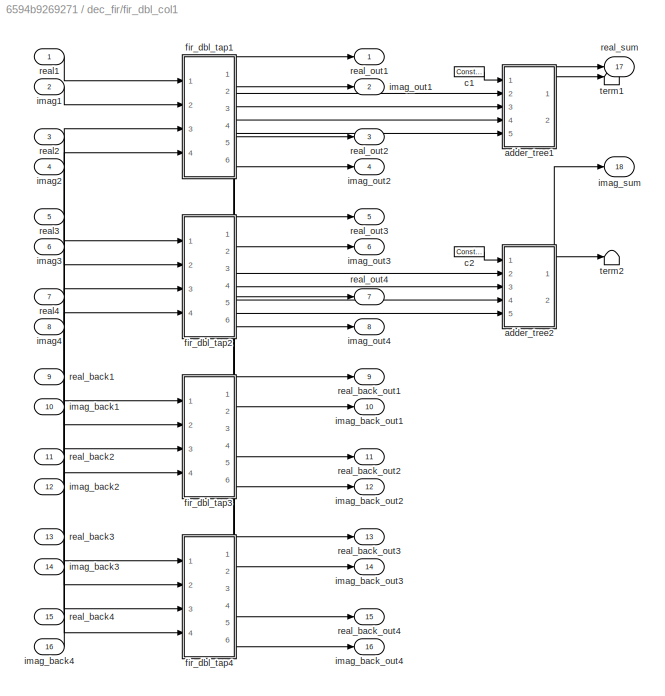
BLOCK [SubSystem] dec_fir/fir_dbl_col1
  AncestorBlock = casper_library_downconverter/fir_dbl_col
  FunctionWithSeparateData = off
  MaskHideContents = off
  MinAlgLoopOccurrences = off
  Opaque = off
  Ports = [16, 18]
  PropExecContextOutsideSubsystem = off
  RTWSystemCode = Auto
  RequestExecContextInheritance = off
  UserDataPersistent = on
BLOCK [SubSystem] dec_fir/fir_dbl_col1/adder_tree1
  AncestorBlock = casper_library_misc/adder_tree
  AttributesFormatString = latency 2
  FunctionWithSeparateData = off
  MaskHideContents = off
  MinAlgLoopOccurrences = off
  Opaque = off
  Ports = [5, 2]
  PropExecContextOutsideSubsystem = off
  RTWSystemCode = Auto
  RequestExecContextInheritance = off
  UserDataPersistent = on
BLOCK [Reference] dec_fir/fir_dbl_col1/adder_tree1/addr1  REF=xbsIndex_r4/AddSub
  Ports = [2, 1]
  SourceBlock = xbsIndex_r4/AddSub
  SourceType = Xilinx Adder/Subtracter Block
  arith_type = Unsigned
  bin_pt = 14
  block_type = addsub
  block_version = 11.4
  dbl_ovrd = off
  en = off
  has_advanced_control = 0
  hw_selection = DSP48
  latency = 1
  mode = Addition
  n_bits = 16
  overflow = Wrap
  pipelined = on
  precision = Full
  quantization = Truncate
  sg_icon_stat = 40,60,2,1,white,blue,0,e85d8a90,right,,[ ],[ ]
  sg_mask_display = fprintf('','COMMENT: begin icon graphics');\npatch([0 40 40 0 0 ],[0 0 60 60 0 ],[0.77 0.82 0.91 ]);\nplot([0 40 40 0 0 ],[0 0 60 60 0 ]);\npatch([8.875 16.1 21.1 26.1 31.1 21.1 13.875 8.875 ],[35.55 35.55 40.55 35.55 40.55 40.55 40.55 35.55 ],[1 1 1 ]);\npatch([13.875 21.1 16.1 8.875 13.875 ],[30.55 30.55 35.55 35.55 30.55 ],[0.931 0.946 0.973 ]);\npatch([8.875 16.1 21.1 13.875 8.875 ],[25.55 25.55 30...<+525ch>  <repeated x28 — deduplicated; at blocks: addr1, addr2, addr3>
  sggui_pos = 22,98,419,344
  use_behavioral_HDL = on
  use_carryin = off
  use_carryout = off
  use_rpm = on
  xl_area = [0,0,0,0,0,0,0]
  xl_use_area = off
BLOCK [Reference] dec_fir/fir_dbl_col1/adder_tree1/addr2  REF=xbsIndex_r4/AddSub
  Ports = [2, 1]
  SourceBlock = xbsIndex_r4/AddSub
  SourceType = Xilinx Adder/Subtracter Block
  arith_type = Unsigned
  bin_pt = 14
  block_type = addsub
  dbl_ovrd = off
  en = off
  has_advanced_control = 0
  hw_selection = DSP48
  latency = 1
  mode = Addition
  n_bits = 16
  overflow = Wrap
  pipelined = on
  precision = Full
  quantization = Truncate
  sg_icon_stat = 40,60,2,1,white,blue,0,e85d8a90,right,,[ ],[ ]
  sggui_pos = -1,-1,-1,-1
  use_behavioral_HDL = on
  use_carryin = off
  use_carryout = off
  use_rpm = on
  xl_area = [0,0,0,0,0,0,0]
  xl_use_area = off
BLOCK [Reference] dec_fir/fir_dbl_col1/adder_tree1/addr3  REF=xbsIndex_r4/AddSub
  Ports = [2, 1]
  SourceBlock = xbsIndex_r4/AddSub
  SourceType = Xilinx Adder/Subtracter Block
  arith_type = Unsigned
  bin_pt = 14
  block_type = addsub
  dbl_ovrd = off
  en = off
  has_advanced_control = 0
  hw_selection = DSP48
  latency = 1
  mode = Addition
  n_bits = 16
  overflow = Wrap
  pipelined = on
  precision = Full
  quantization = Truncate
  sg_icon_stat = 40,60,2,1,white,blue,0,e85d8a90,right,,[ ],[ ]
  sggui_pos = -1,-1,-1,-1
  use_behavioral_HDL = off
  use_carryin = off
  use_carryout = off
  use_rpm = on
  xl_area = [0,0,0,0,0,0,0]
  xl_use_area = off
BLOCK [Inport] dec_fir/fir_dbl_col1/adder_tree1/din1
  IconDisplay = Port number
  Port = 2
BLOCK [Inport] dec_fir/fir_dbl_col1/adder_tree1/din2
  IconDisplay = Port number
  Port = 3
BLOCK [Inport] dec_fir/fir_dbl_col1/adder_tree1/din3
  IconDisplay = Port number
  Port = 4
BLOCK [Inport] dec_fir/fir_dbl_col1/adder_tree1/din4
  IconDisplay = Port number
  Port = 5
BLOCK [Outport] dec_fir/fir_dbl_col1/adder_tree1/dout
  IconDisplay = Port number
  Port = 2
BLOCK [Inport] dec_fir/fir_dbl_col1/adder_tree1/sync
  IconDisplay = Port number
BLOCK [Reference] dec_fir/fir_dbl_col1/adder_tree1/sync_delay  REF=xbsIndex_r4/Delay
  Ports = [1, 1]
  SourceBlock = xbsIndex_r4/Delay
  SourceType = Xilinx Delay Block
  block_type = delay
  block_version = 11.4
  dbl_ovrd = off
  en = off
  has_advanced_control = 0
  infoedit = Hardware notes: A delay line is a chain, each link of which is an SRL16 followed by a flip-flop.
  infoeditControl = Selection of Reset will increase slice count due to use of real FFs and instead of SRLs
  latency = 2
  reg_retiming = on
  rst = off
  sg_icon_stat = 30,30,1,1,white,blue,0,85ce9542,right,,[ ],[ ]
  sggui_pos = 21,71,419,315
  xl_area = [0,0,0,0,0,0,0]
  xl_use_area = off
BLOCK [Outport] dec_fir/fir_dbl_col1/adder_tree1/sync_out
  IconDisplay = Port number
BLOCK [SubSystem] dec_fir/fir_dbl_col1/adder_tree2
  AncestorBlock = casper_library_misc/adder_tree
  AttributesFormatString = latency 2
  FunctionWithSeparateData = off
  MaskHideContents = off
  MinAlgLoopOccurrences = off
  Opaque = off
  Ports = [5, 2]
  PropExecContextOutsideSubsystem = off
  RTWSystemCode = Auto
  RequestExecContextInheritance = off
  UserDataPersistent = on
BLOCK [Reference] dec_fir/fir_dbl_col1/adder_tree2/addr1  REF=xbsIndex_r4/AddSub
  Ports = [2, 1]
  SourceBlock = xbsIndex_r4/AddSub
  SourceType = Xilinx Adder/Subtracter Block
  arith_type = Unsigned
  bin_pt = 14
  block_type = addsub
  block_version = 11.4
  dbl_ovrd = off
  en = off
  has_advanced_control = 0
  hw_selection = DSP48
  latency = 1
  mode = Addition
  n_bits = 16
  overflow = Wrap
  pipelined = on
  precision = Full
  quantization = Truncate
  sg_icon_stat = 40,60,2,1,white,blue,0,e85d8a90,right,,[ ],[ ]
  sggui_pos = 22,98,419,344
  use_behavioral_HDL = on
  use_carryin = off
  use_carryout = off
  use_rpm = on
  xl_area = [0,0,0,0,0,0,0]
  xl_use_area = off
BLOCK [Reference] dec_fir/fir_dbl_col1/adder_tree2/addr2  REF=xbsIndex_r4/AddSub
  Ports = [2, 1]
  SourceBlock = xbsIndex_r4/AddSub
  SourceType = Xilinx Adder/Subtracter Block
  arith_type = Unsigned
  bin_pt = 14
  block_type = addsub
  dbl_ovrd = off
  en = off
  has_advanced_control = 0
  hw_selection = DSP48
  latency = 1
  mode = Addition
  n_bits = 16
  overflow = Wrap
  pipelined = on
  precision = Full
  quantization = Truncate
  sg_icon_stat = 40,60,2,1,white,blue,0,e85d8a90,right,,[ ],[ ]
  sggui_pos = -1,-1,-1,-1
  use_behavioral_HDL = on
  use_carryin = off
  use_carryout = off
  use_rpm = on
  xl_area = [0,0,0,0,0,0,0]
  xl_use_area = off
BLOCK [Reference] dec_fir/fir_dbl_col1/adder_tree2/addr3  REF=xbsIndex_r4/AddSub
  Ports = [2, 1]
  SourceBlock = xbsIndex_r4/AddSub
  SourceType = Xilinx Adder/Subtracter Block
  arith_type = Unsigned
  bin_pt = 14
  block_type = addsub
  dbl_ovrd = off
  en = off
  has_advanced_control = 0
  hw_selection = DSP48
  latency = 1
  mode = Addition
  n_bits = 16
  overflow = Wrap
  pipelined = on
  precision = Full
  quantization = Truncate
  sg_icon_stat = 40,60,2,1,white,blue,0,e85d8a90,right,,[ ],[ ]
  sggui_pos = -1,-1,-1,-1
  use_behavioral_HDL = off
  use_carryin = off
  use_carryout = off
  use_rpm = on
  xl_area = [0,0,0,0,0,0,0]
  xl_use_area = off
BLOCK [Inport] dec_fir/fir_dbl_col1/adder_tree2/din1
  IconDisplay = Port number
  Port = 2
BLOCK [Inport] dec_fir/fir_dbl_col1/adder_tree2/din2
  IconDisplay = Port number
  Port = 3
BLOCK [Inport] dec_fir/fir_dbl_col1/adder_tree2/din3
  IconDisplay = Port number
  Port = 4
BLOCK [Inport] dec_fir/fir_dbl_col1/adder_tree2/din4
  IconDisplay = Port number
  Port = 5
BLOCK [Outport] dec_fir/fir_dbl_col1/adder_tree2/dout
  IconDisplay = Port number
  Port = 2
BLOCK [Inport] dec_fir/fir_dbl_col1/adder_tree2/sync
  IconDisplay = Port number
BLOCK [Reference] dec_fir/fir_dbl_col1/adder_tree2/sync_delay  REF=xbsIndex_r4/Delay
  Ports = [1, 1]
  SourceBlock = xbsIndex_r4/Delay
  SourceType = Xilinx Delay Block
  block_type = delay
  block_version = 11.4
  dbl_ovrd = off
  en = off
  has_advanced_control = 0
  infoedit = Hardware notes: A delay line is a chain, each link of which is an SRL16 followed by a flip-flop.
  infoeditControl = Selection of Reset will increase slice count due to use of real FFs and instead of SRLs
  latency = 2
  reg_retiming = on
  rst = off
  sg_icon_stat = 30,30,1,1,white,blue,0,85ce9542,right,,[ ],[ ]
  sggui_pos = 21,71,419,315
  xl_area = [0,0,0,0,0,0,0]
  xl_use_area = off
BLOCK [Outport] dec_fir/fir_dbl_col1/adder_tree2/sync_out
  IconDisplay = Port number
BLOCK [Reference] dec_fir/fir_dbl_col1/c1  REF=xbsIndex_r4/Constant
  Ports = [0, 1]
  SourceBlock = xbsIndex_r4/Constant
  SourceType = Xilinx Constant Block Block
  arith_type = Signed (2's comp)
  bin_pt = 14
  block_type = constant
  carry = CIN
  const = 1
  dbl_ovrd = off
  dsp48_infoedit = The use of this block for DSP48 instructions is deprecated.  Please use the Opmode block.
  equ = P=C
  exp_width = 8
  explicit_period = on
  frac_width = 24
  gui_display_data_type = Fixed-point
  has_advanced_control = 0
  inp1 = P
  inp2 = PCIN>>17
  n_bits = 16
  opr = +
  opselect = C
  period = 1
  preci_type = Single
  sg_icon_stat = 30,10,0,1,white,blue,0,1c72b5be,right,,[ ],[ ]
  sg_mask_display = fprintf('','COMMENT: begin icon graphics');\npatch([0 30 30 0 0 ],[0 0 10 10 0 ],[0.77 0.82 0.91 ]);\nplot([0 30 30 0 0 ],[0 0 10 10 0 ]);\npatch([12.775 14.22 15.22 16.22 17.22 15.22 13.775 12.775 ],[6.11 6.11 7.11 6.11 7.11 7.11 7.11 6.11 ],[1 1 1 ]);\npatch([13.775 15.22 14.22 12.775 13.775 ],[5.11 5.11 6.11 6.11 5.11 ],[0.931 0.946 0.973 ]);\npatch([12.775 14.22 15.22 13.775 12.775 ],[4.11 4.11 5.1...<+302ch>  <repeated x8 — deduplicated; at blocks: c1, c2>
  sggui_pos = -1,-1,-1,-1
BLOCK [Reference] dec_fir/fir_dbl_col1/c2  REF=xbsIndex_r4/Constant
  Ports = [0, 1]
  SourceBlock = xbsIndex_r4/Constant
  SourceType = Xilinx Constant Block Block
  arith_type = Signed (2's comp)
  bin_pt = 14
  block_type = constant
  carry = CIN
  const = 1
  dbl_ovrd = off
  dsp48_infoedit = The use of this block for DSP48 instructions is deprecated.  Please use the Opmode block.
  equ = P=C
  exp_width = 8
  explicit_period = on
  frac_width = 24
  gui_display_data_type = Fixed-point
  has_advanced_control = 0
  inp1 = P
  inp2 = PCIN>>17
  n_bits = 16
  opr = +
  opselect = C
  period = 1
  preci_type = Single
  sg_icon_stat = 30,10,0,1,white,blue,0,1c72b5be,right,,[ ],[ ]
  sggui_pos = -1,-1,-1,-1
BLOCK [SubSystem] dec_fir/fir_dbl_col1/fir_dbl_tap1
  AncestorBlock = casper_library_downconverter/fir_dbl_tap
  FunctionWithSeparateData = off
  MaskHideContents = off
  MinAlgLoopOccurrences = off
  Opaque = off
  Ports = [4, 6]
  PropExecContextOutsideSubsystem = off
  RTWSystemCode = Auto
  RequestExecContextInheritance = off
  UserDataPersistent = on
BLOCK [Reference] dec_fir/fir_dbl_col1/fir_dbl_tap1/AddSub0  REF=xbsIndex_r4/AddSub
  Ports = [2, 1]
  SourceBlock = xbsIndex_r4/AddSub
  SourceType = Xilinx Adder/Subtracter Block
  arith_type = Signed  (2's comp)
  bin_pt = 16
  block_type = addsub
  dbl_ovrd = off
  en = off
  has_advanced_control = 0
  hw_selection = Fabric
  latency = add_latency
  mode = Addition
  n_bits = 18
  overflow = Wrap
  pipelined = off
  precision = Full
  quantization = Truncate
  sg_icon_stat = 50,51,2,1,white,blue,0,e85d8a90,right,,[ ],[ ]
  sg_mask_display = fprintf('','COMMENT: begin icon graphics');\npatch([0 50 50 0 0 ],[0 0 51 51 0 ],[0.77 0.82 0.91 ]);\nplot([0 50 50 0 0 ],[0 0 51 51 0 ]);\npatch([9.425 19.54 26.54 33.54 40.54 26.54 16.425 9.425 ],[32.77 32.77 39.77 32.77 39.77 39.77 39.77 32.77 ],[1 1 1 ]);\npatch([16.425 26.54 19.54 9.425 16.425 ],[25.77 25.77 32.77 32.77 25.77 ],[0.931 0.946 0.973 ]);\npatch([9.425 19.54 26.54 16.425 9.425 ],[18.77...<+538ch>  <repeated x32 — deduplicated; at blocks: AddSub0, AddSub1>
  sggui_pos = -1,-1,-1,-1
  use_behavioral_HDL = on
  use_carryin = off
  use_carryout = off
  use_rpm = on
  xl_area = [0,0,0,0,0,0,0]
  xl_use_area = off
BLOCK [Reference] dec_fir/fir_dbl_col1/fir_dbl_tap1/AddSub1  REF=xbsIndex_r4/AddSub
  Ports = [2, 1]
  SourceBlock = xbsIndex_r4/AddSub
  SourceType = Xilinx Adder/Subtracter Block
  arith_type = Signed  (2's comp)
  bin_pt = 16
  block_type = addsub
  dbl_ovrd = off
  en = off
  has_advanced_control = 0
  hw_selection = Fabric
  latency = add_latency
  mode = Addition
  n_bits = 18
  overflow = Wrap
  pipelined = off
  precision = Full
  quantization = Truncate
  sg_icon_stat = 50,51,2,1,white,blue,0,e85d8a90,right,,[ ],[ ]
  sggui_pos = -1,-1,-1,-1
  use_behavioral_HDL = on
  use_carryin = off
  use_carryout = off
  use_rpm = on
  xl_area = [0,0,0,0,0,0,0]
  xl_use_area = off
BLOCK [Reference] dec_fir/fir_dbl_col1/fir_dbl_tap1/Mult0  REF=xbsIndex_r4/Mult
  Ports = [2, 1]
  SourceBlock = xbsIndex_r4/Mult
  SourceType = Xilinx Multiplier Block
  arith_type = Signed  (2's comp)
  bin_pt = 17
  block_type = mult
  dbl_ovrd = off
  en = off
  has_advanced_control = 0
  latency = mult_latency
  n_bits = 18
  opt = Speed
  optimum_pipeline = off
  overflow = Wrap
  pipeline = on
  placement_style = Rectangular shape
  precision = Full
  quantization = Truncate
  sg_icon_stat = 50,51,2,1,white,blue,0,2fbe4d8a,right,,[ ],[ ]
  sg_mask_display = fprintf('','COMMENT: begin icon graphics');\npatch([0 50 50 0 0 ],[0 0 51 51 0 ],[0.77 0.82 0.91 ]);\nplot([0 50 50 0 0 ],[0 0 51 51 0 ]);\npatch([9.425 19.54 26.54 33.54 40.54 26.54 16.425 9.425 ],[32.77 32.77 39.77 32.77 39.77 39.77 39.77 32.77 ],[1 1 1 ]);\npatch([16.425 26.54 19.54 9.425 16.425 ],[25.77 25.77 32.77 32.77 25.77 ],[0.931 0.946 0.973 ]);\npatch([9.425 19.54 26.54 16.425 9.425 ],[18.77...<+516ch>  <repeated x32 — deduplicated; at blocks: Mult0, Mult1>
  sggui_pos = -1,-1,-1,-1
  use_behavioral_HDL = on
  use_embedded = on
  use_rpm = off
  xl_area = [0,0,0,0,0,0,0]
  xl_use_area = off
BLOCK [Reference] dec_fir/fir_dbl_col1/fir_dbl_tap1/Mult1  REF=xbsIndex_r4/Mult
  Ports = [2, 1]
  SourceBlock = xbsIndex_r4/Mult
  SourceType = Xilinx Multiplier Block
  arith_type = Signed  (2's comp)
  bin_pt = 17
  block_type = mult
  dbl_ovrd = off
  en = off
  has_advanced_control = 0
  latency = mult_latency
  n_bits = 18
  opt = Speed
  optimum_pipeline = off
  overflow = Wrap
  pipeline = on
  placement_style = Rectangular shape
  precision = Full
  quantization = Truncate
  sg_icon_stat = 50,51,2,1,white,blue,0,2fbe4d8a,right,,[ ],[ ]
  sggui_pos = -1,-1,-1,-1
  use_behavioral_HDL = on
  use_embedded = on
  use_rpm = off
  xl_area = [0,0,0,0,0,0,0]
  xl_use_area = off
BLOCK [Reference] dec_fir/fir_dbl_col1/fir_dbl_tap1/Register0  REF=xbsIndex_r4/Register
  Ports = [1, 1]
  SourceBlock = xbsIndex_r4/Register
  SourceType = Xilinx Register Block
  block_type = register
  dbl_ovrd = off
  en = off
  has_advanced_control = 0
  init = 0
  rst = off
  sg_icon_stat = 45,48,1,1,white,blue,0,c80657c5,right,,[ ],[ ]
  sg_mask_display = fprintf('','COMMENT: begin icon graphics');\npatch([0 45 45 0 0 ],[0 0 48 48 0 ],[0.77 0.82 0.91 ]);\nplot([0 45 45 0 0 ],[0 0 48 48 0 ]);\npatch([8.65 17.32 23.32 29.32 35.32 23.32 14.65 8.65 ],[30.66 30.66 36.66 30.66 36.66 36.66 36.66 30.66 ],[1 1 1 ]);\npatch([14.65 23.32 17.32 8.65 14.65 ],[24.66 24.66 30.66 30.66 24.66 ],[0.931 0.946 0.973 ]);\npatch([8.65 17.32 23.32 14.65 8.65 ],[18.66 18.66 24...<+397ch>  <repeated x64 — deduplicated; at blocks: Register0, Register1, Register2, Register3>
  sggui_pos = -1,-1,-1,-1
  xl_area = [0,0,0,0,0,0,0]
  xl_use_area = off
BLOCK [Reference] dec_fir/fir_dbl_col1/fir_dbl_tap1/Register1  REF=xbsIndex_r4/Register
  Ports = [1, 1]
  SourceBlock = xbsIndex_r4/Register
  SourceType = Xilinx Register Block
  block_type = register
  dbl_ovrd = off
  en = off
  has_advanced_control = 0
  init = 0
  rst = off
  sg_icon_stat = 45,48,1,1,white,blue,0,c80657c5,right,,[ ],[ ]
  sggui_pos = -1,-1,-1,-1
  xl_area = [0,0,0,0,0,0,0]
  xl_use_area = off
BLOCK [Reference] dec_fir/fir_dbl_col1/fir_dbl_tap1/Register2  REF=xbsIndex_r4/Register
  Ports = [1, 1]
  SourceBlock = xbsIndex_r4/Register
  SourceType = Xilinx Register Block
  block_type = register
  dbl_ovrd = off
  en = off
  has_advanced_control = 0
  init = 0
  rst = off
  sg_icon_stat = 45,48,1,1,white,blue,0,c80657c5,right,,[ ],[ ]
  sggui_pos = -1,-1,-1,-1
  xl_area = [0,0,0,0,0,0,0]
  xl_use_area = off
BLOCK [Reference] dec_fir/fir_dbl_col1/fir_dbl_tap1/Register3  REF=xbsIndex_r4/Register
  Ports = [1, 1]
  SourceBlock = xbsIndex_r4/Register
  SourceType = Xilinx Register Block
  block_type = register
  dbl_ovrd = off
  en = off
  has_advanced_control = 0
  init = 0
  rst = off
  sg_icon_stat = 45,48,1,1,white,blue,0,c80657c5,right,,[ ],[ ]
  sggui_pos = -1,-1,-1,-1
  xl_area = [0,0,0,0,0,0,0]
  xl_use_area = off
BLOCK [Inport] dec_fir/fir_dbl_col1/fir_dbl_tap1/a
  IconDisplay = Port number
BLOCK [Outport] dec_fir/fir_dbl_col1/fir_dbl_tap1/a_out
  IconDisplay = Port number
BLOCK [Inport] dec_fir/fir_dbl_col1/fir_dbl_tap1/b
  IconDisplay = Port number
  Port = 2
BLOCK [Outport] dec_fir/fir_dbl_col1/fir_dbl_tap1/b_out
  IconDisplay = Port number
  Port = 2
BLOCK [Inport] dec_fir/fir_dbl_col1/fir_dbl_tap1/c
  IconDisplay = Port number
  Port = 3
BLOCK [Outport] dec_fir/fir_dbl_col1/fir_dbl_tap1/c_out
  IconDisplay = Port number
  Port = 3
BLOCK [Reference] dec_fir/fir_dbl_col1/fir_dbl_tap1/coefficient  REF=xbsIndex_r4/Constant
  Ports = [0, 1]
  SourceBlock = xbsIndex_r4/Constant
  SourceType = Xilinx Constant Block Block
  arith_type = Signed (2's comp)
  bin_pt = coeff_bin_pt
  block_type = constant
  carry = CIN
  const = factor
  dbl_ovrd = off
  dsp48_infoedit = The use of this block for DSP48 instructions is deprecated.  Please use the Opmode block.
  equ = P=C
  exp_width = 8
  explicit_period = on
  frac_width = 24
  gui_display_data_type = Fixed-point
  has_advanced_control = 0
  inp1 = P
  inp2 = PCIN>>17
  n_bits = coeff_bit_width
  opr = +
  opselect = C
  period = 1
  preci_type = Single
  sg_icon_stat = 120,32,0,1,white,blue,0,df07b41d,right,,[ ],[ ]
  sg_mask_display = fprintf('','COMMENT: begin icon graphics');\npatch([0 120 120 0 0 ],[0 0 32 32 0 ],[0.77 0.82 0.91 ]);\nplot([0 120 120 0 0 ],[0 0 32 32 0 ]);\npatch([51.1 56.88 60.88 64.88 68.88 60.88 55.1 51.1 ],[20.44 20.44 24.44 20.44 24.44 24.44 24.44 20.44 ],[1 1 1 ]);\npatch([55.1 60.88 56.88 51.1 55.1 ],[16.44 16.44 20.44 20.44 16.44 ],[0.931 0.946 0.973 ]);\npatch([51.1 56.88 60.88 55.1 51.1 ],[12.44 12.44 16...<+322ch>  <repeated x16 — deduplicated; at blocks: coefficient>
  sggui_pos = -1,-1,-1,-1
BLOCK [Inport] dec_fir/fir_dbl_col1/fir_dbl_tap1/d
  IconDisplay = Port number
  Port = 4
BLOCK [Outport] dec_fir/fir_dbl_col1/fir_dbl_tap1/d_out
  IconDisplay = Port number
  Port = 4
BLOCK [Outport] dec_fir/fir_dbl_col1/fir_dbl_tap1/imag
  IconDisplay = Port number
  Port = 6
BLOCK [Outport] dec_fir/fir_dbl_col1/fir_dbl_tap1/real
  IconDisplay = Port number
  Port = 5
BLOCK [SubSystem] dec_fir/fir_dbl_col1/fir_dbl_tap2
  AncestorBlock = casper_library_downconverter/fir_dbl_tap
  FunctionWithSeparateData = off
  MaskHideContents = off
  MinAlgLoopOccurrences = off
  Opaque = off
  Ports = [4, 6]
  PropExecContextOutsideSubsystem = off
  RTWSystemCode = Auto
  RequestExecContextInheritance = off
  UserDataPersistent = on
BLOCK [Reference] dec_fir/fir_dbl_col1/fir_dbl_tap2/AddSub0  REF=xbsIndex_r4/AddSub
  Ports = [2, 1]
  SourceBlock = xbsIndex_r4/AddSub
  SourceType = Xilinx Adder/Subtracter Block
  arith_type = Signed  (2's comp)
  bin_pt = 16
  block_type = addsub
  dbl_ovrd = off
  en = off
  has_advanced_control = 0
  hw_selection = Fabric
  latency = add_latency
  mode = Addition
  n_bits = 18
  overflow = Wrap
  pipelined = off
  precision = Full
  quantization = Truncate
  sg_icon_stat = 50,51,2,1,white,blue,0,e85d8a90,right,,[ ],[ ]
  sggui_pos = -1,-1,-1,-1
  use_behavioral_HDL = on
  use_carryin = off
  use_carryout = off
  use_rpm = on
  xl_area = [0,0,0,0,0,0,0]
  xl_use_area = off
BLOCK [Reference] dec_fir/fir_dbl_col1/fir_dbl_tap2/AddSub1  REF=xbsIndex_r4/AddSub
  Ports = [2, 1]
  SourceBlock = xbsIndex_r4/AddSub
  SourceType = Xilinx Adder/Subtracter Block
  arith_type = Signed  (2's comp)
  bin_pt = 16
  block_type = addsub
  dbl_ovrd = off
  en = off
  has_advanced_control = 0
  hw_selection = Fabric
  latency = add_latency
  mode = Addition
  n_bits = 18
  overflow = Wrap
  pipelined = off
  precision = Full
  quantization = Truncate
  sg_icon_stat = 50,51,2,1,white,blue,0,e85d8a90,right,,[ ],[ ]
  sggui_pos = -1,-1,-1,-1
  use_behavioral_HDL = on
  use_carryin = off
  use_carryout = off
  use_rpm = on
  xl_area = [0,0,0,0,0,0,0]
  xl_use_area = off
BLOCK [Reference] dec_fir/fir_dbl_col1/fir_dbl_tap2/Mult0  REF=xbsIndex_r4/Mult
  Ports = [2, 1]
  SourceBlock = xbsIndex_r4/Mult
  SourceType = Xilinx Multiplier Block
  arith_type = Signed  (2's comp)
  bin_pt = 17
  block_type = mult
  dbl_ovrd = off
  en = off
  has_advanced_control = 0
  latency = mult_latency
  n_bits = 18
  opt = Speed
  optimum_pipeline = off
  overflow = Wrap
  pipeline = on
  placement_style = Rectangular shape
  precision = Full
  quantization = Truncate
  sg_icon_stat = 50,51,2,1,white,blue,0,2fbe4d8a,right,,[ ],[ ]
  sggui_pos = -1,-1,-1,-1
  use_behavioral_HDL = on
  use_embedded = on
  use_rpm = off
  xl_area = [0,0,0,0,0,0,0]
  xl_use_area = off
BLOCK [Reference] dec_fir/fir_dbl_col1/fir_dbl_tap2/Mult1  REF=xbsIndex_r4/Mult
  Ports = [2, 1]
  SourceBlock = xbsIndex_r4/Mult
  SourceType = Xilinx Multiplier Block
  arith_type = Signed  (2's comp)
  bin_pt = 17
  block_type = mult
  dbl_ovrd = off
  en = off
  has_advanced_control = 0
  latency = mult_latency
  n_bits = 18
  opt = Speed
  optimum_pipeline = off
  overflow = Wrap
  pipeline = on
  placement_style = Rectangular shape
  precision = Full
  quantization = Truncate
  sg_icon_stat = 50,51,2,1,white,blue,0,2fbe4d8a,right,,[ ],[ ]
  sggui_pos = -1,-1,-1,-1
  use_behavioral_HDL = on
  use_embedded = on
  use_rpm = off
  xl_area = [0,0,0,0,0,0,0]
  xl_use_area = off
BLOCK [Reference] dec_fir/fir_dbl_col1/fir_dbl_tap2/Register0  REF=xbsIndex_r4/Register
  Ports = [1, 1]
  SourceBlock = xbsIndex_r4/Register
  SourceType = Xilinx Register Block
  block_type = register
  dbl_ovrd = off
  en = off
  has_advanced_control = 0
  init = 0
  rst = off
  sg_icon_stat = 45,48,1,1,white,blue,0,c80657c5,right,,[ ],[ ]
  sggui_pos = -1,-1,-1,-1
  xl_area = [0,0,0,0,0,0,0]
  xl_use_area = off
BLOCK [Reference] dec_fir/fir_dbl_col1/fir_dbl_tap2/Register1  REF=xbsIndex_r4/Register
  Ports = [1, 1]
  SourceBlock = xbsIndex_r4/Register
  SourceType = Xilinx Register Block
  block_type = register
  dbl_ovrd = off
  en = off
  has_advanced_control = 0
  init = 0
  rst = off
  sg_icon_stat = 45,48,1,1,white,blue,0,c80657c5,right,,[ ],[ ]
  sggui_pos = -1,-1,-1,-1
  xl_area = [0,0,0,0,0,0,0]
  xl_use_area = off
BLOCK [Reference] dec_fir/fir_dbl_col1/fir_dbl_tap2/Register2  REF=xbsIndex_r4/Register
  Ports = [1, 1]
  SourceBlock = xbsIndex_r4/Register
  SourceType = Xilinx Register Block
  block_type = register
  dbl_ovrd = off
  en = off
  has_advanced_control = 0
  init = 0
  rst = off
  sg_icon_stat = 45,48,1,1,white,blue,0,c80657c5,right,,[ ],[ ]
  sggui_pos = -1,-1,-1,-1
  xl_area = [0,0,0,0,0,0,0]
  xl_use_area = off
BLOCK [Reference] dec_fir/fir_dbl_col1/fir_dbl_tap2/Register3  REF=xbsIndex_r4/Register
  Ports = [1, 1]
  SourceBlock = xbsIndex_r4/Register
  SourceType = Xilinx Register Block
  block_type = register
  dbl_ovrd = off
  en = off
  has_advanced_control = 0
  init = 0
  rst = off
  sg_icon_stat = 45,48,1,1,white,blue,0,c80657c5,right,,[ ],[ ]
  sggui_pos = -1,-1,-1,-1
  xl_area = [0,0,0,0,0,0,0]
  xl_use_area = off
BLOCK [Inport] dec_fir/fir_dbl_col1/fir_dbl_tap2/a
  IconDisplay = Port number
BLOCK [Outport] dec_fir/fir_dbl_col1/fir_dbl_tap2/a_out
  IconDisplay = Port number
BLOCK [Inport] dec_fir/fir_dbl_col1/fir_dbl_tap2/b
  IconDisplay = Port number
  Port = 2
BLOCK [Outport] dec_fir/fir_dbl_col1/fir_dbl_tap2/b_out
  IconDisplay = Port number
  Port = 2
BLOCK [Inport] dec_fir/fir_dbl_col1/fir_dbl_tap2/c
  IconDisplay = Port number
  Port = 3
BLOCK [Outport] dec_fir/fir_dbl_col1/fir_dbl_tap2/c_out
  IconDisplay = Port number
  Port = 3
BLOCK [Reference] dec_fir/fir_dbl_col1/fir_dbl_tap2/coefficient  REF=xbsIndex_r4/Constant
  Ports = [0, 1]
  SourceBlock = xbsIndex_r4/Constant
  SourceType = Xilinx Constant Block Block
  arith_type = Signed (2's comp)
  bin_pt = coeff_bin_pt
  block_type = constant
  carry = CIN
  const = factor
  dbl_ovrd = off
  dsp48_infoedit = The use of this block for DSP48 instructions is deprecated.  Please use the Opmode block.
  equ = P=C
  exp_width = 8
  explicit_period = on
  frac_width = 24
  gui_display_data_type = Fixed-point
  has_advanced_control = 0
  inp1 = P
  inp2 = PCIN>>17
  n_bits = coeff_bit_width
  opr = +
  opselect = C
  period = 1
  preci_type = Single
  sg_icon_stat = 120,32,0,1,white,blue,0,86ff8023,right,,[ ],[ ]
  sggui_pos = -1,-1,-1,-1
BLOCK [Inport] dec_fir/fir_dbl_col1/fir_dbl_tap2/d
  IconDisplay = Port number
  Port = 4
BLOCK [Outport] dec_fir/fir_dbl_col1/fir_dbl_tap2/d_out
  IconDisplay = Port number
  Port = 4
BLOCK [Outport] dec_fir/fir_dbl_col1/fir_dbl_tap2/imag
  IconDisplay = Port number
  Port = 6
BLOCK [Outport] dec_fir/fir_dbl_col1/fir_dbl_tap2/real
  IconDisplay = Port number
  Port = 5
BLOCK [SubSystem] dec_fir/fir_dbl_col1/fir_dbl_tap3
  AncestorBlock = casper_library_downconverter/fir_dbl_tap
  FunctionWithSeparateData = off
  MaskHideContents = off
  MinAlgLoopOccurrences = off
  Opaque = off
  Ports = [4, 6]
  PropExecContextOutsideSubsystem = off
  RTWSystemCode = Auto
  RequestExecContextInheritance = off
  UserDataPersistent = on
BLOCK [Reference] dec_fir/fir_dbl_col1/fir_dbl_tap3/AddSub0  REF=xbsIndex_r4/AddSub
  Ports = [2, 1]
  SourceBlock = xbsIndex_r4/AddSub
  SourceType = Xilinx Adder/Subtracter Block
  arith_type = Signed  (2's comp)
  bin_pt = 16
  block_type = addsub
  dbl_ovrd = off
  en = off
  has_advanced_control = 0
  hw_selection = Fabric
  latency = add_latency
  mode = Addition
  n_bits = 18
  overflow = Wrap
  pipelined = off
  precision = Full
  quantization = Truncate
  sg_icon_stat = 50,51,2,1,white,blue,0,e85d8a90,right,,[ ],[ ]
  sggui_pos = -1,-1,-1,-1
  use_behavioral_HDL = on
  use_carryin = off
  use_carryout = off
  use_rpm = on
  xl_area = [0,0,0,0,0,0,0]
  xl_use_area = off
BLOCK [Reference] dec_fir/fir_dbl_col1/fir_dbl_tap3/AddSub1  REF=xbsIndex_r4/AddSub
  Ports = [2, 1]
  SourceBlock = xbsIndex_r4/AddSub
  SourceType = Xilinx Adder/Subtracter Block
  arith_type = Signed  (2's comp)
  bin_pt = 16
  block_type = addsub
  dbl_ovrd = off
  en = off
  has_advanced_control = 0
  hw_selection = Fabric
  latency = add_latency
  mode = Addition
  n_bits = 18
  overflow = Wrap
  pipelined = off
  precision = Full
  quantization = Truncate
  sg_icon_stat = 50,51,2,1,white,blue,0,e85d8a90,right,,[ ],[ ]
  sggui_pos = -1,-1,-1,-1
  use_behavioral_HDL = on
  use_carryin = off
  use_carryout = off
  use_rpm = on
  xl_area = [0,0,0,0,0,0,0]
  xl_use_area = off
BLOCK [Reference] dec_fir/fir_dbl_col1/fir_dbl_tap3/Mult0  REF=xbsIndex_r4/Mult
  Ports = [2, 1]
  SourceBlock = xbsIndex_r4/Mult
  SourceType = Xilinx Multiplier Block
  arith_type = Signed  (2's comp)
  bin_pt = 17
  block_type = mult
  dbl_ovrd = off
  en = off
  has_advanced_control = 0
  latency = mult_latency
  n_bits = 18
  opt = Speed
  optimum_pipeline = off
  overflow = Wrap
  pipeline = on
  placement_style = Rectangular shape
  precision = Full
  quantization = Truncate
  sg_icon_stat = 50,51,2,1,white,blue,0,2fbe4d8a,right,,[ ],[ ]
  sggui_pos = -1,-1,-1,-1
  use_behavioral_HDL = on
  use_embedded = on
  use_rpm = off
  xl_area = [0,0,0,0,0,0,0]
  xl_use_area = off
BLOCK [Reference] dec_fir/fir_dbl_col1/fir_dbl_tap3/Mult1  REF=xbsIndex_r4/Mult
  Ports = [2, 1]
  SourceBlock = xbsIndex_r4/Mult
  SourceType = Xilinx Multiplier Block
  arith_type = Signed  (2's comp)
  bin_pt = 17
  block_type = mult
  dbl_ovrd = off
  en = off
  has_advanced_control = 0
  latency = mult_latency
  n_bits = 18
  opt = Speed
  optimum_pipeline = off
  overflow = Wrap
  pipeline = on
  placement_style = Rectangular shape
  precision = Full
  quantization = Truncate
  sg_icon_stat = 50,51,2,1,white,blue,0,2fbe4d8a,right,,[ ],[ ]
  sggui_pos = -1,-1,-1,-1
  use_behavioral_HDL = on
  use_embedded = on
  use_rpm = off
  xl_area = [0,0,0,0,0,0,0]
  xl_use_area = off
BLOCK [Reference] dec_fir/fir_dbl_col1/fir_dbl_tap3/Register0  REF=xbsIndex_r4/Register
  Ports = [1, 1]
  SourceBlock = xbsIndex_r4/Register
  SourceType = Xilinx Register Block
  block_type = register
  dbl_ovrd = off
  en = off
  has_advanced_control = 0
  init = 0
  rst = off
  sg_icon_stat = 45,48,1,1,white,blue,0,c80657c5,right,,[ ],[ ]
  sggui_pos = -1,-1,-1,-1
  xl_area = [0,0,0,0,0,0,0]
  xl_use_area = off
BLOCK [Reference] dec_fir/fir_dbl_col1/fir_dbl_tap3/Register1  REF=xbsIndex_r4/Register
  Ports = [1, 1]
  SourceBlock = xbsIndex_r4/Register
  SourceType = Xilinx Register Block
  block_type = register
  dbl_ovrd = off
  en = off
  has_advanced_control = 0
  init = 0
  rst = off
  sg_icon_stat = 45,48,1,1,white,blue,0,c80657c5,right,,[ ],[ ]
  sggui_pos = -1,-1,-1,-1
  xl_area = [0,0,0,0,0,0,0]
  xl_use_area = off
BLOCK [Reference] dec_fir/fir_dbl_col1/fir_dbl_tap3/Register2  REF=xbsIndex_r4/Register
  Ports = [1, 1]
  SourceBlock = xbsIndex_r4/Register
  SourceType = Xilinx Register Block
  block_type = register
  dbl_ovrd = off
  en = off
  has_advanced_control = 0
  init = 0
  rst = off
  sg_icon_stat = 45,48,1,1,white,blue,0,c80657c5,right,,[ ],[ ]
  sggui_pos = -1,-1,-1,-1
  xl_area = [0,0,0,0,0,0,0]
  xl_use_area = off
BLOCK [Reference] dec_fir/fir_dbl_col1/fir_dbl_tap3/Register3  REF=xbsIndex_r4/Register
  Ports = [1, 1]
  SourceBlock = xbsIndex_r4/Register
  SourceType = Xilinx Register Block
  block_type = register
  dbl_ovrd = off
  en = off
  has_advanced_control = 0
  init = 0
  rst = off
  sg_icon_stat = 45,48,1,1,white,blue,0,c80657c5,right,,[ ],[ ]
  sggui_pos = -1,-1,-1,-1
  xl_area = [0,0,0,0,0,0,0]
  xl_use_area = off
BLOCK [Inport] dec_fir/fir_dbl_col1/fir_dbl_tap3/a
  IconDisplay = Port number
BLOCK [Outport] dec_fir/fir_dbl_col1/fir_dbl_tap3/a_out
  IconDisplay = Port number
BLOCK [Inport] dec_fir/fir_dbl_col1/fir_dbl_tap3/b
  IconDisplay = Port number
  Port = 2
BLOCK [Outport] dec_fir/fir_dbl_col1/fir_dbl_tap3/b_out
  IconDisplay = Port number
  Port = 2
BLOCK [Inport] dec_fir/fir_dbl_col1/fir_dbl_tap3/c
  IconDisplay = Port number
  Port = 3
BLOCK [Outport] dec_fir/fir_dbl_col1/fir_dbl_tap3/c_out
  IconDisplay = Port number
  Port = 3
BLOCK [Reference] dec_fir/fir_dbl_col1/fir_dbl_tap3/coefficient  REF=xbsIndex_r4/Constant
  Ports = [0, 1]
  SourceBlock = xbsIndex_r4/Constant
  SourceType = Xilinx Constant Block Block
  arith_type = Signed (2's comp)
  bin_pt = coeff_bin_pt
  block_type = constant
  carry = CIN
  const = factor
  dbl_ovrd = off
  dsp48_infoedit = The use of this block for DSP48 instructions is deprecated.  Please use the Opmode block.
  equ = P=C
  exp_width = 8
  explicit_period = on
  frac_width = 24
  gui_display_data_type = Fixed-point
  has_advanced_control = 0
  inp1 = P
  inp2 = PCIN>>17
  n_bits = coeff_bit_width
  opr = +
  opselect = C
  period = 1
  preci_type = Single
  sg_icon_stat = 120,32,0,1,white,blue,0,0577c0f7,right,,[ ],[ ]
  sggui_pos = -1,-1,-1,-1
BLOCK [Inport] dec_fir/fir_dbl_col1/fir_dbl_tap3/d
  IconDisplay = Port number
  Port = 4
BLOCK [Outport] dec_fir/fir_dbl_col1/fir_dbl_tap3/d_out
  IconDisplay = Port number
  Port = 4
BLOCK [Outport] dec_fir/fir_dbl_col1/fir_dbl_tap3/imag
  IconDisplay = Port number
  Port = 6
BLOCK [Outport] dec_fir/fir_dbl_col1/fir_dbl_tap3/real
  IconDisplay = Port number
  Port = 5
BLOCK [SubSystem] dec_fir/fir_dbl_col1/fir_dbl_tap4
  AncestorBlock = casper_library_downconverter/fir_dbl_tap
  FunctionWithSeparateData = off
  MaskHideContents = off
  MinAlgLoopOccurrences = off
  Opaque = off
  Ports = [4, 6]
  PropExecContextOutsideSubsystem = off
  RTWSystemCode = Auto
  RequestExecContextInheritance = off
  UserDataPersistent = on
BLOCK [Reference] dec_fir/fir_dbl_col1/fir_dbl_tap4/AddSub0  REF=xbsIndex_r4/AddSub
  Ports = [2, 1]
  SourceBlock = xbsIndex_r4/AddSub
  SourceType = Xilinx Adder/Subtracter Block
  arith_type = Signed  (2's comp)
  bin_pt = 16
  block_type = addsub
  dbl_ovrd = off
  en = off
  has_advanced_control = 0
  hw_selection = Fabric
  latency = add_latency
  mode = Addition
  n_bits = 18
  overflow = Wrap
  pipelined = off
  precision = Full
  quantization = Truncate
  sg_icon_stat = 50,51,2,1,white,blue,0,e85d8a90,right,,[ ],[ ]
  sggui_pos = -1,-1,-1,-1
  use_behavioral_HDL = on
  use_carryin = off
  use_carryout = off
  use_rpm = on
  xl_area = [0,0,0,0,0,0,0]
  xl_use_area = off
BLOCK [Reference] dec_fir/fir_dbl_col1/fir_dbl_tap4/AddSub1  REF=xbsIndex_r4/AddSub
  Ports = [2, 1]
  SourceBlock = xbsIndex_r4/AddSub
  SourceType = Xilinx Adder/Subtracter Block
  arith_type = Signed  (2's comp)
  bin_pt = 16
  block_type = addsub
  dbl_ovrd = off
  en = off
  has_advanced_control = 0
  hw_selection = Fabric
  latency = add_latency
  mode = Addition
  n_bits = 18
  overflow = Wrap
  pipelined = off
  precision = Full
  quantization = Truncate
  sg_icon_stat = 50,51,2,1,white,blue,0,e85d8a90,right,,[ ],[ ]
  sggui_pos = -1,-1,-1,-1
  use_behavioral_HDL = on
  use_carryin = off
  use_carryout = off
  use_rpm = on
  xl_area = [0,0,0,0,0,0,0]
  xl_use_area = off
BLOCK [Reference] dec_fir/fir_dbl_col1/fir_dbl_tap4/Mult0  REF=xbsIndex_r4/Mult
  Ports = [2, 1]
  SourceBlock = xbsIndex_r4/Mult
  SourceType = Xilinx Multiplier Block
  arith_type = Signed  (2's comp)
  bin_pt = 17
  block_type = mult
  dbl_ovrd = off
  en = off
  has_advanced_control = 0
  latency = mult_latency
  n_bits = 18
  opt = Speed
  optimum_pipeline = off
  overflow = Wrap
  pipeline = on
  placement_style = Rectangular shape
  precision = Full
  quantization = Truncate
  sg_icon_stat = 50,51,2,1,white,blue,0,2fbe4d8a,right,,[ ],[ ]
  sggui_pos = -1,-1,-1,-1
  use_behavioral_HDL = on
  use_embedded = on
  use_rpm = off
  xl_area = [0,0,0,0,0,0,0]
  xl_use_area = off
BLOCK [Reference] dec_fir/fir_dbl_col1/fir_dbl_tap4/Mult1  REF=xbsIndex_r4/Mult
  Ports = [2, 1]
  SourceBlock = xbsIndex_r4/Mult
  SourceType = Xilinx Multiplier Block
  arith_type = Signed  (2's comp)
  bin_pt = 17
  block_type = mult
  dbl_ovrd = off
  en = off
  has_advanced_control = 0
  latency = mult_latency
  n_bits = 18
  opt = Speed
  optimum_pipeline = off
  overflow = Wrap
  pipeline = on
  placement_style = Rectangular shape
  precision = Full
  quantization = Truncate
  sg_icon_stat = 50,51,2,1,white,blue,0,2fbe4d8a,right,,[ ],[ ]
  sggui_pos = -1,-1,-1,-1
  use_behavioral_HDL = on
  use_embedded = on
  use_rpm = off
  xl_area = [0,0,0,0,0,0,0]
  xl_use_area = off
BLOCK [Reference] dec_fir/fir_dbl_col1/fir_dbl_tap4/Register0  REF=xbsIndex_r4/Register
  Ports = [1, 1]
  SourceBlock = xbsIndex_r4/Register
  SourceType = Xilinx Register Block
  block_type = register
  dbl_ovrd = off
  en = off
  has_advanced_control = 0
  init = 0
  rst = off
  sg_icon_stat = 45,48,1,1,white,blue,0,c80657c5,right,,[ ],[ ]
  sggui_pos = -1,-1,-1,-1
  xl_area = [0,0,0,0,0,0,0]
  xl_use_area = off
BLOCK [Reference] dec_fir/fir_dbl_col1/fir_dbl_tap4/Register1  REF=xbsIndex_r4/Register
  Ports = [1, 1]
  SourceBlock = xbsIndex_r4/Register
  SourceType = Xilinx Register Block
  block_type = register
  dbl_ovrd = off
  en = off
  has_advanced_control = 0
  init = 0
  rst = off
  sg_icon_stat = 45,48,1,1,white,blue,0,c80657c5,right,,[ ],[ ]
  sggui_pos = -1,-1,-1,-1
  xl_area = [0,0,0,0,0,0,0]
  xl_use_area = off
BLOCK [Reference] dec_fir/fir_dbl_col1/fir_dbl_tap4/Register2  REF=xbsIndex_r4/Register
  Ports = [1, 1]
  SourceBlock = xbsIndex_r4/Register
  SourceType = Xilinx Register Block
  block_type = register
  dbl_ovrd = off
  en = off
  has_advanced_control = 0
  init = 0
  rst = off
  sg_icon_stat = 45,48,1,1,white,blue,0,c80657c5,right,,[ ],[ ]
  sggui_pos = -1,-1,-1,-1
  xl_area = [0,0,0,0,0,0,0]
  xl_use_area = off
BLOCK [Reference] dec_fir/fir_dbl_col1/fir_dbl_tap4/Register3  REF=xbsIndex_r4/Register
  Ports = [1, 1]
  SourceBlock = xbsIndex_r4/Register
  SourceType = Xilinx Register Block
  block_type = register
  dbl_ovrd = off
  en = off
  has_advanced_control = 0
  init = 0
  rst = off
  sg_icon_stat = 45,48,1,1,white,blue,0,c80657c5,right,,[ ],[ ]
  sggui_pos = -1,-1,-1,-1
  xl_area = [0,0,0,0,0,0,0]
  xl_use_area = off
BLOCK [Inport] dec_fir/fir_dbl_col1/fir_dbl_tap4/a
  IconDisplay = Port number
BLOCK [Outport] dec_fir/fir_dbl_col1/fir_dbl_tap4/a_out
  IconDisplay = Port number
BLOCK [Inport] dec_fir/fir_dbl_col1/fir_dbl_tap4/b
  IconDisplay = Port number
  Port = 2
BLOCK [Outport] dec_fir/fir_dbl_col1/fir_dbl_tap4/b_out
  IconDisplay = Port number
  Port = 2
BLOCK [Inport] dec_fir/fir_dbl_col1/fir_dbl_tap4/c
  IconDisplay = Port number
  Port = 3
BLOCK [Outport] dec_fir/fir_dbl_col1/fir_dbl_tap4/c_out
  IconDisplay = Port number
  Port = 3
BLOCK [Reference] dec_fir/fir_dbl_col1/fir_dbl_tap4/coefficient  REF=xbsIndex_r4/Constant
  Ports = [0, 1]
  SourceBlock = xbsIndex_r4/Constant
  SourceType = Xilinx Constant Block Block
  arith_type = Signed (2's comp)
  bin_pt = coeff_bin_pt
  block_type = constant
  carry = CIN
  const = factor
  dbl_ovrd = off
  dsp48_infoedit = The use of this block for DSP48 instructions is deprecated.  Please use the Opmode block.
  equ = P=C
  exp_width = 8
  explicit_period = on
  frac_width = 24
  gui_display_data_type = Fixed-point
  has_advanced_control = 0
  inp1 = P
  inp2 = PCIN>>17
  n_bits = coeff_bit_width
  opr = +
  opselect = C
  period = 1
  preci_type = Single
  sg_icon_stat = 120,32,0,1,white,blue,0,186f9683,right,,[ ],[ ]
  sggui_pos = -1,-1,-1,-1
BLOCK [Inport] dec_fir/fir_dbl_col1/fir_dbl_tap4/d
  IconDisplay = Port number
  Port = 4
BLOCK [Outport] dec_fir/fir_dbl_col1/fir_dbl_tap4/d_out
  IconDisplay = Port number
  Port = 4
BLOCK [Outport] dec_fir/fir_dbl_col1/fir_dbl_tap4/imag
  IconDisplay = Port number
  Port = 6
BLOCK [Outport] dec_fir/fir_dbl_col1/fir_dbl_tap4/real
  IconDisplay = Port number
  Port = 5
BLOCK [Inport] dec_fir/fir_dbl_col1/imag1
  IconDisplay = Port number
  Port = 2
BLOCK [Inport] dec_fir/fir_dbl_col1/imag2
  IconDisplay = Port number
  Port = 4
BLOCK [Inport] dec_fir/fir_dbl_col1/imag3
  IconDisplay = Port number
  Port = 6
BLOCK [Inport] dec_fir/fir_dbl_col1/imag4
  IconDisplay = Port number
  Port = 8
BLOCK [Inport] dec_fir/fir_dbl_col1/imag_back1
  IconDisplay = Port number
  Port = 10
BLOCK [Inport] dec_fir/fir_dbl_col1/imag_back2
  IconDisplay = Port number
  Port = 12
BLOCK [Inport] dec_fir/fir_dbl_col1/imag_back3
  IconDisplay = Port number
  Port = 14
BLOCK [Inport] dec_fir/fir_dbl_col1/imag_back4
  IconDisplay = Port number
  Port = 16
BLOCK [Outport] dec_fir/fir_dbl_col1/imag_back_out1
  IconDisplay = Port number
  Port = 10
BLOCK [Outport] dec_fir/fir_dbl_col1/imag_back_out2
  IconDisplay = Port number
  Port = 12
BLOCK [Outport] dec_fir/fir_dbl_col1/imag_back_out3
  IconDisplay = Port number
  Port = 14
BLOCK [Outport] dec_fir/fir_dbl_col1/imag_back_out4
  IconDisplay = Port number
  Port = 16
BLOCK [Outport] dec_fir/fir_dbl_col1/imag_out1
  IconDisplay = Port number
  Port = 2
BLOCK [Outport] dec_fir/fir_dbl_col1/imag_out2
  IconDisplay = Port number
  Port = 4
BLOCK [Outport] dec_fir/fir_dbl_col1/imag_out3
  IconDisplay = Port number
  Port = 6
BLOCK [Outport] dec_fir/fir_dbl_col1/imag_out4
  IconDisplay = Port number
  Port = 8
BLOCK [Outport] dec_fir/fir_dbl_col1/imag_sum
  IconDisplay = Port number
  Port = 18
BLOCK [Inport] dec_fir/fir_dbl_col1/real1
  IconDisplay = Port number
BLOCK [Inport] dec_fir/fir_dbl_col1/real2
  IconDisplay = Port number
  Port = 3
BLOCK [Inport] dec_fir/fir_dbl_col1/real3
  IconDisplay = Port number
  Port = 5
BLOCK [Inport] dec_fir/fir_dbl_col1/real4
  IconDisplay = Port number
  Port = 7
BLOCK [Inport] dec_fir/fir_dbl_col1/real_back1
  IconDisplay = Port number
  Port = 9
BLOCK [Inport] dec_fir/fir_dbl_col1/real_back2
  IconDisplay = Port number
  Port = 11
BLOCK [Inport] dec_fir/fir_dbl_col1/real_back3
  IconDisplay = Port number
  Port = 13
BLOCK [Inport] dec_fir/fir_dbl_col1/real_back4
  IconDisplay = Port number
  Port = 15
BLOCK [Outport] dec_fir/fir_dbl_col1/real_back_out1
  IconDisplay = Port number
  Port = 9
BLOCK [Outport] dec_fir/fir_dbl_col1/real_back_out2
  IconDisplay = Port number
  Port = 11
BLOCK [Outport] dec_fir/fir_dbl_col1/real_back_out3
  IconDisplay = Port number
  Port = 13
BLOCK [Outport] dec_fir/fir_dbl_col1/real_back_out4
  IconDisplay = Port number
  Port = 15
BLOCK [Outport] dec_fir/fir_dbl_col1/real_out1
  IconDisplay = Port number
BLOCK [Outport] dec_fir/fir_dbl_col1/real_out2
  IconDisplay = Port number
  Port = 3
BLOCK [Outport] dec_fir/fir_dbl_col1/real_out3
  IconDisplay = Port number
  Port = 5
BLOCK [Outport] dec_fir/fir_dbl_col1/real_out4
  IconDisplay = Port number
  Port = 7
BLOCK [Outport] dec_fir/fir_dbl_col1/real_sum
  IconDisplay = Port number
  Port = 17
BLOCK [Terminator] dec_fir/fir_dbl_col1/term1
BLOCK [Terminator] dec_fir/fir_dbl_col1/term2
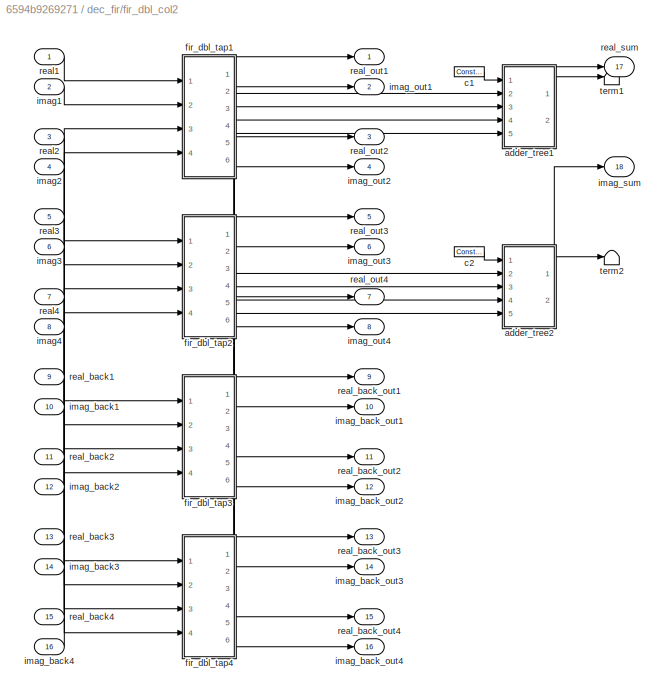
BLOCK [SubSystem] dec_fir/fir_dbl_col2
  AncestorBlock = casper_library_downconverter/fir_dbl_col
  FunctionWithSeparateData = off
  MaskHideContents = off
  MinAlgLoopOccurrences = off
  Opaque = off
  Ports = [16, 18]
  PropExecContextOutsideSubsystem = off
  RTWSystemCode = Auto
  RequestExecContextInheritance = off
  UserDataPersistent = on
BLOCK [SubSystem] dec_fir/fir_dbl_col2/adder_tree1
  AncestorBlock = casper_library_misc/adder_tree
  AttributesFormatString = latency 2
  FunctionWithSeparateData = off
  MaskHideContents = off
  MinAlgLoopOccurrences = off
  Opaque = off
  Ports = [5, 2]
  PropExecContextOutsideSubsystem = off
  RTWSystemCode = Auto
  RequestExecContextInheritance = off
  UserDataPersistent = on
BLOCK [Reference] dec_fir/fir_dbl_col2/adder_tree1/addr1  REF=xbsIndex_r4/AddSub
  Ports = [2, 1]
  SourceBlock = xbsIndex_r4/AddSub
  SourceType = Xilinx Adder/Subtracter Block
  arith_type = Unsigned
  bin_pt = 14
  block_type = addsub
  block_version = 11.4
  dbl_ovrd = off
  en = off
  has_advanced_control = 0
  hw_selection = DSP48
  latency = 1
  mode = Addition
  n_bits = 16
  overflow = Wrap
  pipelined = on
  precision = Full
  quantization = Truncate
  sg_icon_stat = 40,60,2,1,white,blue,0,e85d8a90,right,,[ ],[ ]
  sggui_pos = 22,98,419,344
  use_behavioral_HDL = on
  use_carryin = off
  use_carryout = off
  use_rpm = on
  xl_area = [0,0,0,0,0,0,0]
  xl_use_area = off
BLOCK [Reference] dec_fir/fir_dbl_col2/adder_tree1/addr2  REF=xbsIndex_r4/AddSub
  Ports = [2, 1]
  SourceBlock = xbsIndex_r4/AddSub
  SourceType = Xilinx Adder/Subtracter Block
  arith_type = Unsigned
  bin_pt = 14
  block_type = addsub
  dbl_ovrd = off
  en = off
  has_advanced_control = 0
  hw_selection = DSP48
  latency = 1
  mode = Addition
  n_bits = 16
  overflow = Wrap
  pipelined = on
  precision = Full
  quantization = Truncate
  sg_icon_stat = 40,60,2,1,white,blue,0,e85d8a90,right,,[ ],[ ]
  sggui_pos = -1,-1,-1,-1
  use_behavioral_HDL = on
  use_carryin = off
  use_carryout = off
  use_rpm = on
  xl_area = [0,0,0,0,0,0,0]
  xl_use_area = off
BLOCK [Reference] dec_fir/fir_dbl_col2/adder_tree1/addr3  REF=xbsIndex_r4/AddSub
  Ports = [2, 1]
  SourceBlock = xbsIndex_r4/AddSub
  SourceType = Xilinx Adder/Subtracter Block
  arith_type = Unsigned
  bin_pt = 14
  block_type = addsub
  dbl_ovrd = off
  en = off
  has_advanced_control = 0
  hw_selection = DSP48
  latency = 1
  mode = Addition
  n_bits = 16
  overflow = Wrap
  pipelined = on
  precision = Full
  quantization = Truncate
  sg_icon_stat = 40,60,2,1,white,blue,0,e85d8a90,right,,[ ],[ ]
  sggui_pos = -1,-1,-1,-1
  use_behavioral_HDL = off
  use_carryin = off
  use_carryout = off
  use_rpm = on
  xl_area = [0,0,0,0,0,0,0]
  xl_use_area = off
BLOCK [Inport] dec_fir/fir_dbl_col2/adder_tree1/din1
  IconDisplay = Port number
  Port = 2
BLOCK [Inport] dec_fir/fir_dbl_col2/adder_tree1/din2
  IconDisplay = Port number
  Port = 3
BLOCK [Inport] dec_fir/fir_dbl_col2/adder_tree1/din3
  IconDisplay = Port number
  Port = 4
BLOCK [Inport] dec_fir/fir_dbl_col2/adder_tree1/din4
  IconDisplay = Port number
  Port = 5
BLOCK [Outport] dec_fir/fir_dbl_col2/adder_tree1/dout
  IconDisplay = Port number
  Port = 2
BLOCK [Inport] dec_fir/fir_dbl_col2/adder_tree1/sync
  IconDisplay = Port number
BLOCK [Reference] dec_fir/fir_dbl_col2/adder_tree1/sync_delay  REF=xbsIndex_r4/Delay
  Ports = [1, 1]
  SourceBlock = xbsIndex_r4/Delay
  SourceType = Xilinx Delay Block
  block_type = delay
  block_version = 11.4
  dbl_ovrd = off
  en = off
  has_advanced_control = 0
  infoedit = Hardware notes: A delay line is a chain, each link of which is an SRL16 followed by a flip-flop.
  infoeditControl = Selection of Reset will increase slice count due to use of real FFs and instead of SRLs
  latency = 2
  reg_retiming = on
  rst = off
  sg_icon_stat = 30,30,1,1,white,blue,0,85ce9542,right,,[ ],[ ]
  sggui_pos = 21,71,419,315
  xl_area = [0,0,0,0,0,0,0]
  xl_use_area = off
BLOCK [Outport] dec_fir/fir_dbl_col2/adder_tree1/sync_out
  IconDisplay = Port number
BLOCK [SubSystem] dec_fir/fir_dbl_col2/adder_tree2
  AncestorBlock = casper_library_misc/adder_tree
  AttributesFormatString = latency 2
  FunctionWithSeparateData = off
  MaskHideContents = off
  MinAlgLoopOccurrences = off
  Opaque = off
  Ports = [5, 2]
  PropExecContextOutsideSubsystem = off
  RTWSystemCode = Auto
  RequestExecContextInheritance = off
  UserDataPersistent = on
BLOCK [Reference] dec_fir/fir_dbl_col2/adder_tree2/addr1  REF=xbsIndex_r4/AddSub
  Ports = [2, 1]
  SourceBlock = xbsIndex_r4/AddSub
  SourceType = Xilinx Adder/Subtracter Block
  arith_type = Unsigned
  bin_pt = 14
  block_type = addsub
  block_version = 11.4
  dbl_ovrd = off
  en = off
  has_advanced_control = 0
  hw_selection = DSP48
  latency = 1
  mode = Addition
  n_bits = 16
  overflow = Wrap
  pipelined = on
  precision = Full
  quantization = Truncate
  sg_icon_stat = 40,60,2,1,white,blue,0,e85d8a90,right,,[ ],[ ]
  sggui_pos = 22,98,419,344
  use_behavioral_HDL = on
  use_carryin = off
  use_carryout = off
  use_rpm = on
  xl_area = [0,0,0,0,0,0,0]
  xl_use_area = off
BLOCK [Reference] dec_fir/fir_dbl_col2/adder_tree2/addr2  REF=xbsIndex_r4/AddSub
  Ports = [2, 1]
  SourceBlock = xbsIndex_r4/AddSub
  SourceType = Xilinx Adder/Subtracter Block
  arith_type = Unsigned
  bin_pt = 14
  block_type = addsub
  dbl_ovrd = off
  en = off
  has_advanced_control = 0
  hw_selection = DSP48
  latency = 1
  mode = Addition
  n_bits = 16
  overflow = Wrap
  pipelined = on
  precision = Full
  quantization = Truncate
  sg_icon_stat = 40,60,2,1,white,blue,0,e85d8a90,right,,[ ],[ ]
  sggui_pos = -1,-1,-1,-1
  use_behavioral_HDL = on
  use_carryin = off
  use_carryout = off
  use_rpm = on
  xl_area = [0,0,0,0,0,0,0]
  xl_use_area = off
BLOCK [Reference] dec_fir/fir_dbl_col2/adder_tree2/addr3  REF=xbsIndex_r4/AddSub
  Ports = [2, 1]
  SourceBlock = xbsIndex_r4/AddSub
  SourceType = Xilinx Adder/Subtracter Block
  arith_type = Unsigned
  bin_pt = 14
  block_type = addsub
  dbl_ovrd = off
  en = off
  has_advanced_control = 0
  hw_selection = DSP48
  latency = 1
  mode = Addition
  n_bits = 16
  overflow = Wrap
  pipelined = on
  precision = Full
  quantization = Truncate
  sg_icon_stat = 40,60,2,1,white,blue,0,e85d8a90,right,,[ ],[ ]
  sggui_pos = -1,-1,-1,-1
  use_behavioral_HDL = off
  use_carryin = off
  use_carryout = off
  use_rpm = on
  xl_area = [0,0,0,0,0,0,0]
  xl_use_area = off
BLOCK [Inport] dec_fir/fir_dbl_col2/adder_tree2/din1
  IconDisplay = Port number
  Port = 2
BLOCK [Inport] dec_fir/fir_dbl_col2/adder_tree2/din2
  IconDisplay = Port number
  Port = 3
BLOCK [Inport] dec_fir/fir_dbl_col2/adder_tree2/din3
  IconDisplay = Port number
  Port = 4
BLOCK [Inport] dec_fir/fir_dbl_col2/adder_tree2/din4
  IconDisplay = Port number
  Port = 5
BLOCK [Outport] dec_fir/fir_dbl_col2/adder_tree2/dout
  IconDisplay = Port number
  Port = 2
BLOCK [Inport] dec_fir/fir_dbl_col2/adder_tree2/sync
  IconDisplay = Port number
BLOCK [Reference] dec_fir/fir_dbl_col2/adder_tree2/sync_delay  REF=xbsIndex_r4/Delay
  Ports = [1, 1]
  SourceBlock = xbsIndex_r4/Delay
  SourceType = Xilinx Delay Block
  block_type = delay
  block_version = 11.4
  dbl_ovrd = off
  en = off
  has_advanced_control = 0
  infoedit = Hardware notes: A delay line is a chain, each link of which is an SRL16 followed by a flip-flop.
  infoeditControl = Selection of Reset will increase slice count due to use of real FFs and instead of SRLs
  latency = 2
  reg_retiming = on
  rst = off
  sg_icon_stat = 30,30,1,1,white,blue,0,85ce9542,right,,[ ],[ ]
  sggui_pos = 21,71,419,315
  xl_area = [0,0,0,0,0,0,0]
  xl_use_area = off
BLOCK [Outport] dec_fir/fir_dbl_col2/adder_tree2/sync_out
  IconDisplay = Port number
BLOCK [Reference] dec_fir/fir_dbl_col2/c1  REF=xbsIndex_r4/Constant
  Ports = [0, 1]
  SourceBlock = xbsIndex_r4/Constant
  SourceType = Xilinx Constant Block Block
  arith_type = Signed (2's comp)
  bin_pt = 14
  block_type = constant
  carry = CIN
  const = 1
  dbl_ovrd = off
  dsp48_infoedit = The use of this block for DSP48 instructions is deprecated.  Please use the Opmode block.
  equ = P=C
  exp_width = 8
  explicit_period = on
  frac_width = 24
  gui_display_data_type = Fixed-point
  has_advanced_control = 0
  inp1 = P
  inp2 = PCIN>>17
  n_bits = 16
  opr = +
  opselect = C
  period = 1
  preci_type = Single
  sg_icon_stat = 30,10,0,1,white,blue,0,1c72b5be,right,,[ ],[ ]
  sggui_pos = -1,-1,-1,-1
BLOCK [Reference] dec_fir/fir_dbl_col2/c2  REF=xbsIndex_r4/Constant
  Ports = [0, 1]
  SourceBlock = xbsIndex_r4/Constant
  SourceType = Xilinx Constant Block Block
  arith_type = Signed (2's comp)
  bin_pt = 14
  block_type = constant
  carry = CIN
  const = 1
  dbl_ovrd = off
  dsp48_infoedit = The use of this block for DSP48 instructions is deprecated.  Please use the Opmode block.
  equ = P=C
  exp_width = 8
  explicit_period = on
  frac_width = 24
  gui_display_data_type = Fixed-point
  has_advanced_control = 0
  inp1 = P
  inp2 = PCIN>>17
  n_bits = 16
  opr = +
  opselect = C
  period = 1
  preci_type = Single
  sg_icon_stat = 30,10,0,1,white,blue,0,1c72b5be,right,,[ ],[ ]
  sggui_pos = -1,-1,-1,-1
BLOCK [SubSystem] dec_fir/fir_dbl_col2/fir_dbl_tap1
  AncestorBlock = casper_library_downconverter/fir_dbl_tap
  FunctionWithSeparateData = off
  MaskHideContents = off
  MinAlgLoopOccurrences = off
  Opaque = off
  Ports = [4, 6]
  PropExecContextOutsideSubsystem = off
  RTWSystemCode = Auto
  RequestExecContextInheritance = off
  UserDataPersistent = on
BLOCK [Reference] dec_fir/fir_dbl_col2/fir_dbl_tap1/AddSub0  REF=xbsIndex_r4/AddSub
  Ports = [2, 1]
  SourceBlock = xbsIndex_r4/AddSub
  SourceType = Xilinx Adder/Subtracter Block
  arith_type = Signed  (2's comp)
  bin_pt = 16
  block_type = addsub
  dbl_ovrd = off
  en = off
  has_advanced_control = 0
  hw_selection = Fabric
  latency = add_latency
  mode = Addition
  n_bits = 18
  overflow = Wrap
  pipelined = off
  precision = Full
  quantization = Truncate
  sg_icon_stat = 50,51,2,1,white,blue,0,e85d8a90,right,,[ ],[ ]
  sggui_pos = -1,-1,-1,-1
  use_behavioral_HDL = on
  use_carryin = off
  use_carryout = off
  use_rpm = on
  xl_area = [0,0,0,0,0,0,0]
  xl_use_area = off
BLOCK [Reference] dec_fir/fir_dbl_col2/fir_dbl_tap1/AddSub1  REF=xbsIndex_r4/AddSub
  Ports = [2, 1]
  SourceBlock = xbsIndex_r4/AddSub
  SourceType = Xilinx Adder/Subtracter Block
  arith_type = Signed  (2's comp)
  bin_pt = 16
  block_type = addsub
  dbl_ovrd = off
  en = off
  has_advanced_control = 0
  hw_selection = Fabric
  latency = add_latency
  mode = Addition
  n_bits = 18
  overflow = Wrap
  pipelined = off
  precision = Full
  quantization = Truncate
  sg_icon_stat = 50,51,2,1,white,blue,0,e85d8a90,right,,[ ],[ ]
  sggui_pos = -1,-1,-1,-1
  use_behavioral_HDL = on
  use_carryin = off
  use_carryout = off
  use_rpm = on
  xl_area = [0,0,0,0,0,0,0]
  xl_use_area = off
BLOCK [Reference] dec_fir/fir_dbl_col2/fir_dbl_tap1/Mult0  REF=xbsIndex_r4/Mult
  Ports = [2, 1]
  SourceBlock = xbsIndex_r4/Mult
  SourceType = Xilinx Multiplier Block
  arith_type = Signed  (2's comp)
  bin_pt = 17
  block_type = mult
  dbl_ovrd = off
  en = off
  has_advanced_control = 0
  latency = mult_latency
  n_bits = 18
  opt = Speed
  optimum_pipeline = off
  overflow = Wrap
  pipeline = on
  placement_style = Rectangular shape
  precision = Full
  quantization = Truncate
  sg_icon_stat = 50,51,2,1,white,blue,0,2fbe4d8a,right,,[ ],[ ]
  sggui_pos = -1,-1,-1,-1
  use_behavioral_HDL = on
  use_embedded = on
  use_rpm = off
  xl_area = [0,0,0,0,0,0,0]
  xl_use_area = off
BLOCK [Reference] dec_fir/fir_dbl_col2/fir_dbl_tap1/Mult1  REF=xbsIndex_r4/Mult
  Ports = [2, 1]
  SourceBlock = xbsIndex_r4/Mult
  SourceType = Xilinx Multiplier Block
  arith_type = Signed  (2's comp)
  bin_pt = 17
  block_type = mult
  dbl_ovrd = off
  en = off
  has_advanced_control = 0
  latency = mult_latency
  n_bits = 18
  opt = Speed
  optimum_pipeline = off
  overflow = Wrap
  pipeline = on
  placement_style = Rectangular shape
  precision = Full
  quantization = Truncate
  sg_icon_stat = 50,51,2,1,white,blue,0,2fbe4d8a,right,,[ ],[ ]
  sggui_pos = -1,-1,-1,-1
  use_behavioral_HDL = on
  use_embedded = on
  use_rpm = off
  xl_area = [0,0,0,0,0,0,0]
  xl_use_area = off
BLOCK [Reference] dec_fir/fir_dbl_col2/fir_dbl_tap1/Register0  REF=xbsIndex_r4/Register
  Ports = [1, 1]
  SourceBlock = xbsIndex_r4/Register
  SourceType = Xilinx Register Block
  block_type = register
  dbl_ovrd = off
  en = off
  has_advanced_control = 0
  init = 0
  rst = off
  sg_icon_stat = 45,48,1,1,white,blue,0,c80657c5,right,,[ ],[ ]
  sggui_pos = -1,-1,-1,-1
  xl_area = [0,0,0,0,0,0,0]
  xl_use_area = off
BLOCK [Reference] dec_fir/fir_dbl_col2/fir_dbl_tap1/Register1  REF=xbsIndex_r4/Register
  Ports = [1, 1]
  SourceBlock = xbsIndex_r4/Register
  SourceType = Xilinx Register Block
  block_type = register
  dbl_ovrd = off
  en = off
  has_advanced_control = 0
  init = 0
  rst = off
  sg_icon_stat = 45,48,1,1,white,blue,0,c80657c5,right,,[ ],[ ]
  sggui_pos = -1,-1,-1,-1
  xl_area = [0,0,0,0,0,0,0]
  xl_use_area = off
BLOCK [Reference] dec_fir/fir_dbl_col2/fir_dbl_tap1/Register2  REF=xbsIndex_r4/Register
  Ports = [1, 1]
  SourceBlock = xbsIndex_r4/Register
  SourceType = Xilinx Register Block
  block_type = register
  dbl_ovrd = off
  en = off
  has_advanced_control = 0
  init = 0
  rst = off
  sg_icon_stat = 45,48,1,1,white,blue,0,c80657c5,right,,[ ],[ ]
  sggui_pos = -1,-1,-1,-1
  xl_area = [0,0,0,0,0,0,0]
  xl_use_area = off
BLOCK [Reference] dec_fir/fir_dbl_col2/fir_dbl_tap1/Register3  REF=xbsIndex_r4/Register
  Ports = [1, 1]
  SourceBlock = xbsIndex_r4/Register
  SourceType = Xilinx Register Block
  block_type = register
  dbl_ovrd = off
  en = off
  has_advanced_control = 0
  init = 0
  rst = off
  sg_icon_stat = 45,48,1,1,white,blue,0,c80657c5,right,,[ ],[ ]
  sggui_pos = -1,-1,-1,-1
  xl_area = [0,0,0,0,0,0,0]
  xl_use_area = off
BLOCK [Inport] dec_fir/fir_dbl_col2/fir_dbl_tap1/a
  IconDisplay = Port number
BLOCK [Outport] dec_fir/fir_dbl_col2/fir_dbl_tap1/a_out
  IconDisplay = Port number
BLOCK [Inport] dec_fir/fir_dbl_col2/fir_dbl_tap1/b
  IconDisplay = Port number
  Port = 2
BLOCK [Outport] dec_fir/fir_dbl_col2/fir_dbl_tap1/b_out
  IconDisplay = Port number
  Port = 2
BLOCK [Inport] dec_fir/fir_dbl_col2/fir_dbl_tap1/c
  IconDisplay = Port number
  Port = 3
BLOCK [Outport] dec_fir/fir_dbl_col2/fir_dbl_tap1/c_out
  IconDisplay = Port number
  Port = 3
BLOCK [Reference] dec_fir/fir_dbl_col2/fir_dbl_tap1/coefficient  REF=xbsIndex_r4/Constant
  Ports = [0, 1]
  SourceBlock = xbsIndex_r4/Constant
  SourceType = Xilinx Constant Block Block
  arith_type = Signed (2's comp)
  bin_pt = coeff_bin_pt
  block_type = constant
  carry = CIN
  const = factor
  dbl_ovrd = off
  dsp48_infoedit = The use of this block for DSP48 instructions is deprecated.  Please use the Opmode block.
  equ = P=C
  exp_width = 8
  explicit_period = on
  frac_width = 24
  gui_display_data_type = Fixed-point
  has_advanced_control = 0
  inp1 = P
  inp2 = PCIN>>17
  n_bits = coeff_bit_width
  opr = +
  opselect = C
  period = 1
  preci_type = Single
  sg_icon_stat = 120,32,0,1,white,blue,0,90d508b5,right,,[ ],[ ]
  sggui_pos = -1,-1,-1,-1
BLOCK [Inport] dec_fir/fir_dbl_col2/fir_dbl_tap1/d
  IconDisplay = Port number
  Port = 4
BLOCK [Outport] dec_fir/fir_dbl_col2/fir_dbl_tap1/d_out
  IconDisplay = Port number
  Port = 4
BLOCK [Outport] dec_fir/fir_dbl_col2/fir_dbl_tap1/imag
  IconDisplay = Port number
  Port = 6
BLOCK [Outport] dec_fir/fir_dbl_col2/fir_dbl_tap1/real
  IconDisplay = Port number
  Port = 5
BLOCK [SubSystem] dec_fir/fir_dbl_col2/fir_dbl_tap2
  AncestorBlock = casper_library_downconverter/fir_dbl_tap
  FunctionWithSeparateData = off
  MaskHideContents = off
  MinAlgLoopOccurrences = off
  Opaque = off
  Ports = [4, 6]
  PropExecContextOutsideSubsystem = off
  RTWSystemCode = Auto
  RequestExecContextInheritance = off
  UserDataPersistent = on
BLOCK [Reference] dec_fir/fir_dbl_col2/fir_dbl_tap2/AddSub0  REF=xbsIndex_r4/AddSub
  Ports = [2, 1]
  SourceBlock = xbsIndex_r4/AddSub
  SourceType = Xilinx Adder/Subtracter Block
  arith_type = Signed  (2's comp)
  bin_pt = 16
  block_type = addsub
  dbl_ovrd = off
  en = off
  has_advanced_control = 0
  hw_selection = Fabric
  latency = add_latency
  mode = Addition
  n_bits = 18
  overflow = Wrap
  pipelined = off
  precision = Full
  quantization = Truncate
  sg_icon_stat = 50,51,2,1,white,blue,0,e85d8a90,right,,[ ],[ ]
  sggui_pos = -1,-1,-1,-1
  use_behavioral_HDL = on
  use_carryin = off
  use_carryout = off
  use_rpm = on
  xl_area = [0,0,0,0,0,0,0]
  xl_use_area = off
BLOCK [Reference] dec_fir/fir_dbl_col2/fir_dbl_tap2/AddSub1  REF=xbsIndex_r4/AddSub
  Ports = [2, 1]
  SourceBlock = xbsIndex_r4/AddSub
  SourceType = Xilinx Adder/Subtracter Block
  arith_type = Signed  (2's comp)
  bin_pt = 16
  block_type = addsub
  dbl_ovrd = off
  en = off
  has_advanced_control = 0
  hw_selection = Fabric
  latency = add_latency
  mode = Addition
  n_bits = 18
  overflow = Wrap
  pipelined = off
  precision = Full
  quantization = Truncate
  sg_icon_stat = 50,51,2,1,white,blue,0,e85d8a90,right,,[ ],[ ]
  sggui_pos = -1,-1,-1,-1
  use_behavioral_HDL = on
  use_carryin = off
  use_carryout = off
  use_rpm = on
  xl_area = [0,0,0,0,0,0,0]
  xl_use_area = off
BLOCK [Reference] dec_fir/fir_dbl_col2/fir_dbl_tap2/Mult0  REF=xbsIndex_r4/Mult
  Ports = [2, 1]
  SourceBlock = xbsIndex_r4/Mult
  SourceType = Xilinx Multiplier Block
  arith_type = Signed  (2's comp)
  bin_pt = 17
  block_type = mult
  dbl_ovrd = off
  en = off
  has_advanced_control = 0
  latency = mult_latency
  n_bits = 18
  opt = Speed
  optimum_pipeline = off
  overflow = Wrap
  pipeline = on
  placement_style = Rectangular shape
  precision = Full
  quantization = Truncate
  sg_icon_stat = 50,51,2,1,white,blue,0,2fbe4d8a,right,,[ ],[ ]
  sggui_pos = -1,-1,-1,-1
  use_behavioral_HDL = on
  use_embedded = on
  use_rpm = off
  xl_area = [0,0,0,0,0,0,0]
  xl_use_area = off
BLOCK [Reference] dec_fir/fir_dbl_col2/fir_dbl_tap2/Mult1  REF=xbsIndex_r4/Mult
  Ports = [2, 1]
  SourceBlock = xbsIndex_r4/Mult
  SourceType = Xilinx Multiplier Block
  arith_type = Signed  (2's comp)
  bin_pt = 17
  block_type = mult
  dbl_ovrd = off
  en = off
  has_advanced_control = 0
  latency = mult_latency
  n_bits = 18
  opt = Speed
  optimum_pipeline = off
  overflow = Wrap
  pipeline = on
  placement_style = Rectangular shape
  precision = Full
  quantization = Truncate
  sg_icon_stat = 50,51,2,1,white,blue,0,2fbe4d8a,right,,[ ],[ ]
  sggui_pos = -1,-1,-1,-1
  use_behavioral_HDL = on
  use_embedded = on
  use_rpm = off
  xl_area = [0,0,0,0,0,0,0]
  xl_use_area = off
BLOCK [Reference] dec_fir/fir_dbl_col2/fir_dbl_tap2/Register0  REF=xbsIndex_r4/Register
  Ports = [1, 1]
  SourceBlock = xbsIndex_r4/Register
  SourceType = Xilinx Register Block
  block_type = register
  dbl_ovrd = off
  en = off
  has_advanced_control = 0
  init = 0
  rst = off
  sg_icon_stat = 45,48,1,1,white,blue,0,c80657c5,right,,[ ],[ ]
  sggui_pos = -1,-1,-1,-1
  xl_area = [0,0,0,0,0,0,0]
  xl_use_area = off
BLOCK [Reference] dec_fir/fir_dbl_col2/fir_dbl_tap2/Register1  REF=xbsIndex_r4/Register
  Ports = [1, 1]
  SourceBlock = xbsIndex_r4/Register
  SourceType = Xilinx Register Block
  block_type = register
  dbl_ovrd = off
  en = off
  has_advanced_control = 0
  init = 0
  rst = off
  sg_icon_stat = 45,48,1,1,white,blue,0,c80657c5,right,,[ ],[ ]
  sggui_pos = -1,-1,-1,-1
  xl_area = [0,0,0,0,0,0,0]
  xl_use_area = off
BLOCK [Reference] dec_fir/fir_dbl_col2/fir_dbl_tap2/Register2  REF=xbsIndex_r4/Register
  Ports = [1, 1]
  SourceBlock = xbsIndex_r4/Register
  SourceType = Xilinx Register Block
  block_type = register
  dbl_ovrd = off
  en = off
  has_advanced_control = 0
  init = 0
  rst = off
  sg_icon_stat = 45,48,1,1,white,blue,0,c80657c5,right,,[ ],[ ]
  sggui_pos = -1,-1,-1,-1
  xl_area = [0,0,0,0,0,0,0]
  xl_use_area = off
BLOCK [Reference] dec_fir/fir_dbl_col2/fir_dbl_tap2/Register3  REF=xbsIndex_r4/Register
  Ports = [1, 1]
  SourceBlock = xbsIndex_r4/Register
  SourceType = Xilinx Register Block
  block_type = register
  dbl_ovrd = off
  en = off
  has_advanced_control = 0
  init = 0
  rst = off
  sg_icon_stat = 45,48,1,1,white,blue,0,c80657c5,right,,[ ],[ ]
  sggui_pos = -1,-1,-1,-1
  xl_area = [0,0,0,0,0,0,0]
  xl_use_area = off
BLOCK [Inport] dec_fir/fir_dbl_col2/fir_dbl_tap2/a
  IconDisplay = Port number
BLOCK [Outport] dec_fir/fir_dbl_col2/fir_dbl_tap2/a_out
  IconDisplay = Port number
BLOCK [Inport] dec_fir/fir_dbl_col2/fir_dbl_tap2/b
  IconDisplay = Port number
  Port = 2
BLOCK [Outport] dec_fir/fir_dbl_col2/fir_dbl_tap2/b_out
  IconDisplay = Port number
  Port = 2
BLOCK [Inport] dec_fir/fir_dbl_col2/fir_dbl_tap2/c
  IconDisplay = Port number
  Port = 3
BLOCK [Outport] dec_fir/fir_dbl_col2/fir_dbl_tap2/c_out
  IconDisplay = Port number
  Port = 3
BLOCK [Reference] dec_fir/fir_dbl_col2/fir_dbl_tap2/coefficient  REF=xbsIndex_r4/Constant
  Ports = [0, 1]
  SourceBlock = xbsIndex_r4/Constant
  SourceType = Xilinx Constant Block Block
  arith_type = Signed (2's comp)
  bin_pt = coeff_bin_pt
  block_type = constant
  carry = CIN
  const = factor
  dbl_ovrd = off
  dsp48_infoedit = The use of this block for DSP48 instructions is deprecated.  Please use the Opmode block.
  equ = P=C
  exp_width = 8
  explicit_period = on
  frac_width = 24
  gui_display_data_type = Fixed-point
  has_advanced_control = 0
  inp1 = P
  inp2 = PCIN>>17
  n_bits = coeff_bit_width
  opr = +
  opselect = C
  period = 1
  preci_type = Single
  sg_icon_stat = 120,32,0,1,white,blue,0,16d03515,right,,[ ],[ ]
  sggui_pos = -1,-1,-1,-1
BLOCK [Inport] dec_fir/fir_dbl_col2/fir_dbl_tap2/d
  IconDisplay = Port number
  Port = 4
BLOCK [Outport] dec_fir/fir_dbl_col2/fir_dbl_tap2/d_out
  IconDisplay = Port number
  Port = 4
BLOCK [Outport] dec_fir/fir_dbl_col2/fir_dbl_tap2/imag
  IconDisplay = Port number
  Port = 6
BLOCK [Outport] dec_fir/fir_dbl_col2/fir_dbl_tap2/real
  IconDisplay = Port number
  Port = 5
BLOCK [SubSystem] dec_fir/fir_dbl_col2/fir_dbl_tap3
  AncestorBlock = casper_library_downconverter/fir_dbl_tap
  FunctionWithSeparateData = off
  MaskHideContents = off
  MinAlgLoopOccurrences = off
  Opaque = off
  Ports = [4, 6]
  PropExecContextOutsideSubsystem = off
  RTWSystemCode = Auto
  RequestExecContextInheritance = off
  UserDataPersistent = on
BLOCK [Reference] dec_fir/fir_dbl_col2/fir_dbl_tap3/AddSub0  REF=xbsIndex_r4/AddSub
  Ports = [2, 1]
  SourceBlock = xbsIndex_r4/AddSub
  SourceType = Xilinx Adder/Subtracter Block
  arith_type = Signed  (2's comp)
  bin_pt = 16
  block_type = addsub
  dbl_ovrd = off
  en = off
  has_advanced_control = 0
  hw_selection = Fabric
  latency = add_latency
  mode = Addition
  n_bits = 18
  overflow = Wrap
  pipelined = off
  precision = Full
  quantization = Truncate
  sg_icon_stat = 50,51,2,1,white,blue,0,e85d8a90,right,,[ ],[ ]
  sggui_pos = -1,-1,-1,-1
  use_behavioral_HDL = on
  use_carryin = off
  use_carryout = off
  use_rpm = on
  xl_area = [0,0,0,0,0,0,0]
  xl_use_area = off
BLOCK [Reference] dec_fir/fir_dbl_col2/fir_dbl_tap3/AddSub1  REF=xbsIndex_r4/AddSub
  Ports = [2, 1]
  SourceBlock = xbsIndex_r4/AddSub
  SourceType = Xilinx Adder/Subtracter Block
  arith_type = Signed  (2's comp)
  bin_pt = 16
  block_type = addsub
  dbl_ovrd = off
  en = off
  has_advanced_control = 0
  hw_selection = Fabric
  latency = add_latency
  mode = Addition
  n_bits = 18
  overflow = Wrap
  pipelined = off
  precision = Full
  quantization = Truncate
  sg_icon_stat = 50,51,2,1,white,blue,0,e85d8a90,right,,[ ],[ ]
  sggui_pos = -1,-1,-1,-1
  use_behavioral_HDL = on
  use_carryin = off
  use_carryout = off
  use_rpm = on
  xl_area = [0,0,0,0,0,0,0]
  xl_use_area = off
BLOCK [Reference] dec_fir/fir_dbl_col2/fir_dbl_tap3/Mult0  REF=xbsIndex_r4/Mult
  Ports = [2, 1]
  SourceBlock = xbsIndex_r4/Mult
  SourceType = Xilinx Multiplier Block
  arith_type = Signed  (2's comp)
  bin_pt = 17
  block_type = mult
  dbl_ovrd = off
  en = off
  has_advanced_control = 0
  latency = mult_latency
  n_bits = 18
  opt = Speed
  optimum_pipeline = off
  overflow = Wrap
  pipeline = on
  placement_style = Rectangular shape
  precision = Full
  quantization = Truncate
  sg_icon_stat = 50,51,2,1,white,blue,0,2fbe4d8a,right,,[ ],[ ]
  sggui_pos = -1,-1,-1,-1
  use_behavioral_HDL = on
  use_embedded = on
  use_rpm = off
  xl_area = [0,0,0,0,0,0,0]
  xl_use_area = off
BLOCK [Reference] dec_fir/fir_dbl_col2/fir_dbl_tap3/Mult1  REF=xbsIndex_r4/Mult
  Ports = [2, 1]
  SourceBlock = xbsIndex_r4/Mult
  SourceType = Xilinx Multiplier Block
  arith_type = Signed  (2's comp)
  bin_pt = 17
  block_type = mult
  dbl_ovrd = off
  en = off
  has_advanced_control = 0
  latency = mult_latency
  n_bits = 18
  opt = Speed
  optimum_pipeline = off
  overflow = Wrap
  pipeline = on
  placement_style = Rectangular shape
  precision = Full
  quantization = Truncate
  sg_icon_stat = 50,51,2,1,white,blue,0,2fbe4d8a,right,,[ ],[ ]
  sggui_pos = -1,-1,-1,-1
  use_behavioral_HDL = on
  use_embedded = on
  use_rpm = off
  xl_area = [0,0,0,0,0,0,0]
  xl_use_area = off
BLOCK [Reference] dec_fir/fir_dbl_col2/fir_dbl_tap3/Register0  REF=xbsIndex_r4/Register
  Ports = [1, 1]
  SourceBlock = xbsIndex_r4/Register
  SourceType = Xilinx Register Block
  block_type = register
  dbl_ovrd = off
  en = off
  has_advanced_control = 0
  init = 0
  rst = off
  sg_icon_stat = 45,48,1,1,white,blue,0,c80657c5,right,,[ ],[ ]
  sggui_pos = -1,-1,-1,-1
  xl_area = [0,0,0,0,0,0,0]
  xl_use_area = off
BLOCK [Reference] dec_fir/fir_dbl_col2/fir_dbl_tap3/Register1  REF=xbsIndex_r4/Register
  Ports = [1, 1]
  SourceBlock = xbsIndex_r4/Register
  SourceType = Xilinx Register Block
  block_type = register
  dbl_ovrd = off
  en = off
  has_advanced_control = 0
  init = 0
  rst = off
  sg_icon_stat = 45,48,1,1,white,blue,0,c80657c5,right,,[ ],[ ]
  sggui_pos = -1,-1,-1,-1
  xl_area = [0,0,0,0,0,0,0]
  xl_use_area = off
BLOCK [Reference] dec_fir/fir_dbl_col2/fir_dbl_tap3/Register2  REF=xbsIndex_r4/Register
  Ports = [1, 1]
  SourceBlock = xbsIndex_r4/Register
  SourceType = Xilinx Register Block
  block_type = register
  dbl_ovrd = off
  en = off
  has_advanced_control = 0
  init = 0
  rst = off
  sg_icon_stat = 45,48,1,1,white,blue,0,c80657c5,right,,[ ],[ ]
  sggui_pos = -1,-1,-1,-1
  xl_area = [0,0,0,0,0,0,0]
  xl_use_area = off
BLOCK [Reference] dec_fir/fir_dbl_col2/fir_dbl_tap3/Register3  REF=xbsIndex_r4/Register
  Ports = [1, 1]
  SourceBlock = xbsIndex_r4/Register
  SourceType = Xilinx Register Block
  block_type = register
  dbl_ovrd = off
  en = off
  has_advanced_control = 0
  init = 0
  rst = off
  sg_icon_stat = 45,48,1,1,white,blue,0,c80657c5,right,,[ ],[ ]
  sggui_pos = -1,-1,-1,-1
  xl_area = [0,0,0,0,0,0,0]
  xl_use_area = off
BLOCK [Inport] dec_fir/fir_dbl_col2/fir_dbl_tap3/a
  IconDisplay = Port number
BLOCK [Outport] dec_fir/fir_dbl_col2/fir_dbl_tap3/a_out
  IconDisplay = Port number
BLOCK [Inport] dec_fir/fir_dbl_col2/fir_dbl_tap3/b
  IconDisplay = Port number
  Port = 2
BLOCK [Outport] dec_fir/fir_dbl_col2/fir_dbl_tap3/b_out
  IconDisplay = Port number
  Port = 2
BLOCK [Inport] dec_fir/fir_dbl_col2/fir_dbl_tap3/c
  IconDisplay = Port number
  Port = 3
BLOCK [Outport] dec_fir/fir_dbl_col2/fir_dbl_tap3/c_out
  IconDisplay = Port number
  Port = 3
BLOCK [Reference] dec_fir/fir_dbl_col2/fir_dbl_tap3/coefficient  REF=xbsIndex_r4/Constant
  Ports = [0, 1]
  SourceBlock = xbsIndex_r4/Constant
  SourceType = Xilinx Constant Block Block
  arith_type = Signed (2's comp)
  bin_pt = coeff_bin_pt
  block_type = constant
  carry = CIN
  const = factor
  dbl_ovrd = off
  dsp48_infoedit = The use of this block for DSP48 instructions is deprecated.  Please use the Opmode block.
  equ = P=C
  exp_width = 8
  explicit_period = on
  frac_width = 24
  gui_display_data_type = Fixed-point
  has_advanced_control = 0
  inp1 = P
  inp2 = PCIN>>17
  n_bits = coeff_bit_width
  opr = +
  opselect = C
  period = 1
  preci_type = Single
  sg_icon_stat = 120,32,0,1,white,blue,0,b7029b71,right,,[ ],[ ]
  sggui_pos = -1,-1,-1,-1
BLOCK [Inport] dec_fir/fir_dbl_col2/fir_dbl_tap3/d
  IconDisplay = Port number
  Port = 4
BLOCK [Outport] dec_fir/fir_dbl_col2/fir_dbl_tap3/d_out
  IconDisplay = Port number
  Port = 4
BLOCK [Outport] dec_fir/fir_dbl_col2/fir_dbl_tap3/imag
  IconDisplay = Port number
  Port = 6
BLOCK [Outport] dec_fir/fir_dbl_col2/fir_dbl_tap3/real
  IconDisplay = Port number
  Port = 5
BLOCK [SubSystem] dec_fir/fir_dbl_col2/fir_dbl_tap4
  AncestorBlock = casper_library_downconverter/fir_dbl_tap
  FunctionWithSeparateData = off
  MaskHideContents = off
  MinAlgLoopOccurrences = off
  Opaque = off
  Ports = [4, 6]
  PropExecContextOutsideSubsystem = off
  RTWSystemCode = Auto
  RequestExecContextInheritance = off
  UserDataPersistent = on
BLOCK [Reference] dec_fir/fir_dbl_col2/fir_dbl_tap4/AddSub0  REF=xbsIndex_r4/AddSub
  Ports = [2, 1]
  SourceBlock = xbsIndex_r4/AddSub
  SourceType = Xilinx Adder/Subtracter Block
  arith_type = Signed  (2's comp)
  bin_pt = 16
  block_type = addsub
  dbl_ovrd = off
  en = off
  has_advanced_control = 0
  hw_selection = Fabric
  latency = add_latency
  mode = Addition
  n_bits = 18
  overflow = Wrap
  pipelined = off
  precision = Full
  quantization = Truncate
  sg_icon_stat = 50,51,2,1,white,blue,0,e85d8a90,right,,[ ],[ ]
  sggui_pos = -1,-1,-1,-1
  use_behavioral_HDL = on
  use_carryin = off
  use_carryout = off
  use_rpm = on
  xl_area = [0,0,0,0,0,0,0]
  xl_use_area = off
BLOCK [Reference] dec_fir/fir_dbl_col2/fir_dbl_tap4/AddSub1  REF=xbsIndex_r4/AddSub
  Ports = [2, 1]
  SourceBlock = xbsIndex_r4/AddSub
  SourceType = Xilinx Adder/Subtracter Block
  arith_type = Signed  (2's comp)
  bin_pt = 16
  block_type = addsub
  dbl_ovrd = off
  en = off
  has_advanced_control = 0
  hw_selection = Fabric
  latency = add_latency
  mode = Addition
  n_bits = 18
  overflow = Wrap
  pipelined = off
  precision = Full
  quantization = Truncate
  sg_icon_stat = 50,51,2,1,white,blue,0,e85d8a90,right,,[ ],[ ]
  sggui_pos = -1,-1,-1,-1
  use_behavioral_HDL = on
  use_carryin = off
  use_carryout = off
  use_rpm = on
  xl_area = [0,0,0,0,0,0,0]
  xl_use_area = off
BLOCK [Reference] dec_fir/fir_dbl_col2/fir_dbl_tap4/Mult0  REF=xbsIndex_r4/Mult
  Ports = [2, 1]
  SourceBlock = xbsIndex_r4/Mult
  SourceType = Xilinx Multiplier Block
  arith_type = Signed  (2's comp)
  bin_pt = 17
  block_type = mult
  dbl_ovrd = off
  en = off
  has_advanced_control = 0
  latency = mult_latency
  n_bits = 18
  opt = Speed
  optimum_pipeline = off
  overflow = Wrap
  pipeline = on
  placement_style = Rectangular shape
  precision = Full
  quantization = Truncate
  sg_icon_stat = 50,51,2,1,white,blue,0,2fbe4d8a,right,,[ ],[ ]
  sggui_pos = -1,-1,-1,-1
  use_behavioral_HDL = on
  use_embedded = on
  use_rpm = off
  xl_area = [0,0,0,0,0,0,0]
  xl_use_area = off
BLOCK [Reference] dec_fir/fir_dbl_col2/fir_dbl_tap4/Mult1  REF=xbsIndex_r4/Mult
  Ports = [2, 1]
  SourceBlock = xbsIndex_r4/Mult
  SourceType = Xilinx Multiplier Block
  arith_type = Signed  (2's comp)
  bin_pt = 17
  block_type = mult
  dbl_ovrd = off
  en = off
  has_advanced_control = 0
  latency = mult_latency
  n_bits = 18
  opt = Speed
  optimum_pipeline = off
  overflow = Wrap
  pipeline = on
  placement_style = Rectangular shape
  precision = Full
  quantization = Truncate
  sg_icon_stat = 50,51,2,1,white,blue,0,2fbe4d8a,right,,[ ],[ ]
  sggui_pos = -1,-1,-1,-1
  use_behavioral_HDL = on
  use_embedded = on
  use_rpm = off
  xl_area = [0,0,0,0,0,0,0]
  xl_use_area = off
BLOCK [Reference] dec_fir/fir_dbl_col2/fir_dbl_tap4/Register0  REF=xbsIndex_r4/Register
  Ports = [1, 1]
  SourceBlock = xbsIndex_r4/Register
  SourceType = Xilinx Register Block
  block_type = register
  dbl_ovrd = off
  en = off
  has_advanced_control = 0
  init = 0
  rst = off
  sg_icon_stat = 45,48,1,1,white,blue,0,c80657c5,right,,[ ],[ ]
  sggui_pos = -1,-1,-1,-1
  xl_area = [0,0,0,0,0,0,0]
  xl_use_area = off
BLOCK [Reference] dec_fir/fir_dbl_col2/fir_dbl_tap4/Register1  REF=xbsIndex_r4/Register
  Ports = [1, 1]
  SourceBlock = xbsIndex_r4/Register
  SourceType = Xilinx Register Block
  block_type = register
  dbl_ovrd = off
  en = off
  has_advanced_control = 0
  init = 0
  rst = off
  sg_icon_stat = 45,48,1,1,white,blue,0,c80657c5,right,,[ ],[ ]
  sggui_pos = -1,-1,-1,-1
  xl_area = [0,0,0,0,0,0,0]
  xl_use_area = off
BLOCK [Reference] dec_fir/fir_dbl_col2/fir_dbl_tap4/Register2  REF=xbsIndex_r4/Register
  Ports = [1, 1]
  SourceBlock = xbsIndex_r4/Register
  SourceType = Xilinx Register Block
  block_type = register
  dbl_ovrd = off
  en = off
  has_advanced_control = 0
  init = 0
  rst = off
  sg_icon_stat = 45,48,1,1,white,blue,0,c80657c5,right,,[ ],[ ]
  sggui_pos = -1,-1,-1,-1
  xl_area = [0,0,0,0,0,0,0]
  xl_use_area = off
BLOCK [Reference] dec_fir/fir_dbl_col2/fir_dbl_tap4/Register3  REF=xbsIndex_r4/Register
  Ports = [1, 1]
  SourceBlock = xbsIndex_r4/Register
  SourceType = Xilinx Register Block
  block_type = register
  dbl_ovrd = off
  en = off
  has_advanced_control = 0
  init = 0
  rst = off
  sg_icon_stat = 45,48,1,1,white,blue,0,c80657c5,right,,[ ],[ ]
  sggui_pos = -1,-1,-1,-1
  xl_area = [0,0,0,0,0,0,0]
  xl_use_area = off
BLOCK [Inport] dec_fir/fir_dbl_col2/fir_dbl_tap4/a
  IconDisplay = Port number
BLOCK [Outport] dec_fir/fir_dbl_col2/fir_dbl_tap4/a_out
  IconDisplay = Port number
BLOCK [Inport] dec_fir/fir_dbl_col2/fir_dbl_tap4/b
  IconDisplay = Port number
  Port = 2
BLOCK [Outport] dec_fir/fir_dbl_col2/fir_dbl_tap4/b_out
  IconDisplay = Port number
  Port = 2
BLOCK [Inport] dec_fir/fir_dbl_col2/fir_dbl_tap4/c
  IconDisplay = Port number
  Port = 3
BLOCK [Outport] dec_fir/fir_dbl_col2/fir_dbl_tap4/c_out
  IconDisplay = Port number
  Port = 3
BLOCK [Reference] dec_fir/fir_dbl_col2/fir_dbl_tap4/coefficient  REF=xbsIndex_r4/Constant
  Ports = [0, 1]
  SourceBlock = xbsIndex_r4/Constant
  SourceType = Xilinx Constant Block Block
  arith_type = Signed (2's comp)
  bin_pt = coeff_bin_pt
  block_type = constant
  carry = CIN
  const = factor
  dbl_ovrd = off
  dsp48_infoedit = The use of this block for DSP48 instructions is deprecated.  Please use the Opmode block.
  equ = P=C
  exp_width = 8
  explicit_period = on
  frac_width = 24
  gui_display_data_type = Fixed-point
  has_advanced_control = 0
  inp1 = P
  inp2 = PCIN>>17
  n_bits = coeff_bit_width
  opr = +
  opselect = C
  period = 1
  preci_type = Single
  sg_icon_stat = 120,32,0,1,white,blue,0,8959b2d3,right,,[ ],[ ]
  sggui_pos = -1,-1,-1,-1
BLOCK [Inport] dec_fir/fir_dbl_col2/fir_dbl_tap4/d
  IconDisplay = Port number
  Port = 4
BLOCK [Outport] dec_fir/fir_dbl_col2/fir_dbl_tap4/d_out
  IconDisplay = Port number
  Port = 4
BLOCK [Outport] dec_fir/fir_dbl_col2/fir_dbl_tap4/imag
  IconDisplay = Port number
  Port = 6
BLOCK [Outport] dec_fir/fir_dbl_col2/fir_dbl_tap4/real
  IconDisplay = Port number
  Port = 5
BLOCK [Inport] dec_fir/fir_dbl_col2/imag1
  IconDisplay = Port number
  Port = 2
BLOCK [Inport] dec_fir/fir_dbl_col2/imag2
  IconDisplay = Port number
  Port = 4
BLOCK [Inport] dec_fir/fir_dbl_col2/imag3
  IconDisplay = Port number
  Port = 6
BLOCK [Inport] dec_fir/fir_dbl_col2/imag4
  IconDisplay = Port number
  Port = 8
BLOCK [Inport] dec_fir/fir_dbl_col2/imag_back1
  IconDisplay = Port number
  Port = 10
BLOCK [Inport] dec_fir/fir_dbl_col2/imag_back2
  IconDisplay = Port number
  Port = 12
BLOCK [Inport] dec_fir/fir_dbl_col2/imag_back3
  IconDisplay = Port number
  Port = 14
BLOCK [Inport] dec_fir/fir_dbl_col2/imag_back4
  IconDisplay = Port number
  Port = 16
BLOCK [Outport] dec_fir/fir_dbl_col2/imag_back_out1
  IconDisplay = Port number
  Port = 10
BLOCK [Outport] dec_fir/fir_dbl_col2/imag_back_out2
  IconDisplay = Port number
  Port = 12
BLOCK [Outport] dec_fir/fir_dbl_col2/imag_back_out3
  IconDisplay = Port number
  Port = 14
BLOCK [Outport] dec_fir/fir_dbl_col2/imag_back_out4
  IconDisplay = Port number
  Port = 16
BLOCK [Outport] dec_fir/fir_dbl_col2/imag_out1
  IconDisplay = Port number
  Port = 2
BLOCK [Outport] dec_fir/fir_dbl_col2/imag_out2
  IconDisplay = Port number
  Port = 4
BLOCK [Outport] dec_fir/fir_dbl_col2/imag_out3
  IconDisplay = Port number
  Port = 6
BLOCK [Outport] dec_fir/fir_dbl_col2/imag_out4
  IconDisplay = Port number
  Port = 8
BLOCK [Outport] dec_fir/fir_dbl_col2/imag_sum
  IconDisplay = Port number
  Port = 18
BLOCK [Inport] dec_fir/fir_dbl_col2/real1
  IconDisplay = Port number
BLOCK [Inport] dec_fir/fir_dbl_col2/real2
  IconDisplay = Port number
  Port = 3
BLOCK [Inport] dec_fir/fir_dbl_col2/real3
  IconDisplay = Port number
  Port = 5
BLOCK [Inport] dec_fir/fir_dbl_col2/real4
  IconDisplay = Port number
  Port = 7
BLOCK [Inport] dec_fir/fir_dbl_col2/real_back1
  IconDisplay = Port number
  Port = 9
BLOCK [Inport] dec_fir/fir_dbl_col2/real_back2
  IconDisplay = Port number
  Port = 11
BLOCK [Inport] dec_fir/fir_dbl_col2/real_back3
  IconDisplay = Port number
  Port = 13
BLOCK [Inport] dec_fir/fir_dbl_col2/real_back4
  IconDisplay = Port number
  Port = 15
BLOCK [Outport] dec_fir/fir_dbl_col2/real_back_out1
  IconDisplay = Port number
  Port = 9
BLOCK [Outport] dec_fir/fir_dbl_col2/real_back_out2
  IconDisplay = Port number
  Port = 11
BLOCK [Outport] dec_fir/fir_dbl_col2/real_back_out3
  IconDisplay = Port number
  Port = 13
BLOCK [Outport] dec_fir/fir_dbl_col2/real_back_out4
  IconDisplay = Port number
  Port = 15
BLOCK [Outport] dec_fir/fir_dbl_col2/real_out1
  IconDisplay = Port number
BLOCK [Outport] dec_fir/fir_dbl_col2/real_out2
  IconDisplay = Port number
  Port = 3
BLOCK [Outport] dec_fir/fir_dbl_col2/real_out3
  IconDisplay = Port number
  Port = 5
BLOCK [Outport] dec_fir/fir_dbl_col2/real_out4
  IconDisplay = Port number
  Port = 7
BLOCK [Outport] dec_fir/fir_dbl_col2/real_sum
  IconDisplay = Port number
  Port = 17
BLOCK [Terminator] dec_fir/fir_dbl_col2/term1
BLOCK [Terminator] dec_fir/fir_dbl_col2/term2
BLOCK [Inport] dec_fir/imag1
  IconDisplay = Port number
  Port = 3
BLOCK [Inport] dec_fir/imag2
  IconDisplay = Port number
  Port = 5
BLOCK [Inport] dec_fir/imag3
  IconDisplay = Port number
  Port = 7
BLOCK [Inport] dec_fir/imag4
  IconDisplay = Port number
  Port = 9
BLOCK [SubSystem] dec_fir/imag_sum
  AncestorBlock = casper_library_misc/adder_tree
  AttributesFormatString = latency 1
  FunctionWithSeparateData = off
  MaskHideContents = off
  MinAlgLoopOccurrences = off
  Opaque = off
  Ports = [3, 2]
  PropExecContextOutsideSubsystem = off
  RTWSystemCode = Auto
  RequestExecContextInheritance = off
  UserDataPersistent = on
BLOCK [Reference] dec_fir/imag_sum/addr1  REF=xbsIndex_r4/AddSub
  Ports = [2, 1]
  SourceBlock = xbsIndex_r4/AddSub
  SourceType = Xilinx Adder/Subtracter Block
  arith_type = Unsigned
  bin_pt = 14
  block_type = addsub
  dbl_ovrd = off
  en = off
  has_advanced_control = 0
  hw_selection = DSP48
  latency = 1
  mode = Addition
  n_bits = 16
  overflow = Wrap
  pipelined = on
  precision = Full
  quantization = Truncate
  sg_icon_stat = 40,60,2,1,white,blue,0,e85d8a90,right,,[ ],[ ]
  sggui_pos = -1,-1,-1,-1
  use_behavioral_HDL = off
  use_carryin = off
  use_carryout = off
  use_rpm = on
  xl_area = [0,0,0,0,0,0,0]
  xl_use_area = off
BLOCK [Inport] dec_fir/imag_sum/din1
  IconDisplay = Port number
  Port = 2
BLOCK [Inport] dec_fir/imag_sum/din2
  IconDisplay = Port number
  Port = 3
BLOCK [Outport] dec_fir/imag_sum/dout
  IconDisplay = Port number
  Port = 2
BLOCK [Inport] dec_fir/imag_sum/sync
  IconDisplay = Port number
BLOCK [Reference] dec_fir/imag_sum/sync_delay  REF=xbsIndex_r4/Delay
  Ports = [1, 1]
  SourceBlock = xbsIndex_r4/Delay
  SourceType = Xilinx Delay Block
  block_type = delay
  block_version = 11.4
  dbl_ovrd = off
  en = off
  has_advanced_control = 0
  infoedit = Hardware notes: A delay line is a chain, each link of which is an SRL16 followed by a flip-flop.
  infoeditControl = Selection of Reset will increase slice count due to use of real FFs and instead of SRLs
  latency = 1
  reg_retiming = on
  rst = off
  sg_icon_stat = 30,30,1,1,white,blue,0,07b98262,right,,[ ],[ ]
  sggui_pos = 21,71,419,315
  xl_area = [0,0,0,0,0,0,0]
  xl_use_area = off
BLOCK [Outport] dec_fir/imag_sum/sync_out
  IconDisplay = Port number
BLOCK [Inport] dec_fir/real1
  IconDisplay = Port number
  Port = 2
BLOCK [Inport] dec_fir/real2
  IconDisplay = Port number
  Port = 4
BLOCK [Inport] dec_fir/real3
  IconDisplay = Port number
  Port = 6
BLOCK [Inport] dec_fir/real4
  IconDisplay = Port number
  Port = 8
BLOCK [SubSystem] dec_fir/real_sum
  AncestorBlock = casper_library_misc/adder_tree
  AttributesFormatString = latency 1
  FunctionWithSeparateData = off
  MaskHideContents = off
  MinAlgLoopOccurrences = off
  Opaque = off
  Ports = [3, 2]
  PropExecContextOutsideSubsystem = off
  RTWSystemCode = Auto
  RequestExecContextInheritance = off
  UserDataPersistent = on
BLOCK [Reference] dec_fir/real_sum/addr1  REF=xbsIndex_r4/AddSub
  Ports = [2, 1]
  SourceBlock = xbsIndex_r4/AddSub
  SourceType = Xilinx Adder/Subtracter Block
  arith_type = Unsigned
  bin_pt = 14
  block_type = addsub
  dbl_ovrd = off
  en = off
  has_advanced_control = 0
  hw_selection = DSP48
  latency = 1
  mode = Addition
  n_bits = 16
  overflow = Wrap
  pipelined = on
  precision = Full
  quantization = Truncate
  sg_icon_stat = 40,60,2,1,white,blue,0,e85d8a90,right,,[ ],[ ]
  sggui_pos = -1,-1,-1,-1
  use_behavioral_HDL = off
  use_carryin = off
  use_carryout = off
  use_rpm = on
  xl_area = [0,0,0,0,0,0,0]
  xl_use_area = off
BLOCK [Inport] dec_fir/real_sum/din1
  IconDisplay = Port number
  Port = 2
BLOCK [Inport] dec_fir/real_sum/din2
  IconDisplay = Port number
  Port = 3
BLOCK [Outport] dec_fir/real_sum/dout
  IconDisplay = Port number
  Port = 2
BLOCK [Inport] dec_fir/real_sum/sync
  IconDisplay = Port number
BLOCK [Reference] dec_fir/real_sum/sync_delay  REF=xbsIndex_r4/Delay
  Ports = [1, 1]
  SourceBlock = xbsIndex_r4/Delay
  SourceType = Xilinx Delay Block
  block_type = delay
  block_version = 11.4
  dbl_ovrd = off
  en = off
  has_advanced_control = 0
  infoedit = Hardware notes: A delay line is a chain, each link of which is an SRL16 followed by a flip-flop.
  infoeditControl = Selection of Reset will increase slice count due to use of real FFs and instead of SRLs
  latency = 1
  reg_retiming = on
  rst = off
  sg_icon_stat = 30,30,1,1,white,blue,0,07b98262,right,,[ ],[ ]
  sggui_pos = 21,71,419,315
  xl_area = [0,0,0,0,0,0,0]
  xl_use_area = off
BLOCK [Outport] dec_fir/real_sum/sync_out
  IconDisplay = Port number
BLOCK [Reference] dec_fir/ri_to_c  REF=casper_library_misc/ri_to_c  (lib defined in mdl_357510c33b49, mdl_57b5f564ae26, +4 more)
  Ports = [2, 1]
  SourceBlock = casper_library_misc/ri_to_c
  SourceType = ri_to_c
  UserDataPersistent = on
BLOCK [Reference] dec_fir/shift1  REF=xbsIndex_r4/Shift
  Ports = [1, 1]
  SourceBlock = xbsIndex_r4/Shift
  SourceType = Xilinx Binary Shift Operator Block
  arith_type = Signed  (2's comp)
  bin_pt = 14
  block_type = shift
  dbl_ovrd = off
  en = off
  has_advanced_control = 0
  infoedit = Hardware notes: In hardware this block costs nothing if full output precision is used.
  latency = 0
  n_bits = 16
  overflow = Wrap
  precision = Full
  quantization = Truncate
  sg_icon_stat = 30,16,1,1,white,blue,0,6c6aa2df,right,,[ ],[ ]
  sg_mask_display = fprintf('','COMMENT: begin icon graphics');\npatch([0 30 30 0 0 ],[0 0 16 16 0 ],[0.77 0.82 0.91 ]);\nplot([0 30 30 0 0 ],[0 0 16 16 0 ]);\npatch([10.55 13.44 15.44 17.44 19.44 15.44 12.55 10.55 ],[10.22 10.22 12.22 10.22 12.22 12.22 12.22 10.22 ],[1 1 1 ]);\npatch([12.55 15.44 13.44 10.55 12.55 ],[8.22 8.22 10.22 10.22 8.22 ],[0.931 0.946 0.973 ]);\npatch([10.55 13.44 15.44 12.55 10.55 ],[6.22 6.22 8....<+310ch>  <repeated x4 — deduplicated; at blocks: shift1, shift2>
  sggui_pos = -1,-1,-1,-1
  shift_bits = 1
  shift_dir = Left
  xl_area = [0,0,0,0,0,0,0]
  xl_use_area = off
BLOCK [Reference] dec_fir/shift2  REF=xbsIndex_r4/Shift
  Ports = [1, 1]
  SourceBlock = xbsIndex_r4/Shift
  SourceType = Xilinx Binary Shift Operator Block
  arith_type = Signed  (2's comp)
  bin_pt = 14
  block_type = shift
  dbl_ovrd = off
  en = off
  has_advanced_control = 0
  infoedit = Hardware notes: In hardware this block costs nothing if full output precision is used.
  latency = 0
  n_bits = 16
  overflow = Wrap
  precision = Full
  quantization = Truncate
  sg_icon_stat = 30,16,1,1,white,blue,0,6c6aa2df,right,,[ ],[ ]
  sggui_pos = -1,-1,-1,-1
  shift_bits = 1
  shift_dir = Left
  xl_area = [0,0,0,0,0,0,0]
  xl_use_area = off
BLOCK [Inport] dec_fir/sync_in
  IconDisplay = Port number
BLOCK [Outport] dec_fir/sync_out
  IconDisplay = Port number
BLOCK [SubSystem] dec_fir1
  AncestorBlock = casper_library_downconverter/dec_fir
  AttributesFormatString = 16 taps\n16_15 r/i
  FunctionWithSeparateData = off
  MaskHideContents = off
  MinAlgLoopOccurrences = off
  Opaque = off
  Ports = [9, 2]
  PropExecContextOutsideSubsystem = off
  RTWSystemCode = Auto
  RequestExecContextInheritance = off
  Tag = casper:dec_fir
  UserDataPersistent = on
BLOCK [Reference] dec_fir1/convert1  REF=xbsIndex_r4/Convert
  Ports = [1, 1]
  SourceBlock = xbsIndex_r4/Convert
  SourceType = Xilinx Type Converter Block
  arith_type = Signed  (2's comp)
  bin_pt = 15
  block_type = convert
  dbl_ovrd = off
  en = off
  exp_bits = 8
  float_type = Single
  fraction_bits = 24
  gui_display_data_type = Fixed-point
  has_advanced_control = 0
  infoedit = Hardware notes: rounding and saturating require hardware resources; truncating and wrapping do not.
  latency = 2
  n_bits = 16
  overflow = Wrap
  pipeline = off
  quantization = Round  (unbiased: +/- Inf)
  sg_icon_stat = 30,16,1,1,white,blue,0,b61d041b,right,,[ ],[ ]
  sggui_pos = -1,-1,-1,-1
  xl_area = [0,0,0,0,0,0,0]
  xl_use_area = off
BLOCK [Reference] dec_fir1/convert2  REF=xbsIndex_r4/Convert
  Ports = [1, 1]
  SourceBlock = xbsIndex_r4/Convert
  SourceType = Xilinx Type Converter Block
  arith_type = Signed  (2's comp)
  bin_pt = 15
  block_type = convert
  dbl_ovrd = off
  en = off
  exp_bits = 8
  float_type = Single
  fraction_bits = 24
  gui_display_data_type = Fixed-point
  has_advanced_control = 0
  infoedit = Hardware notes: rounding and saturating require hardware resources; truncating and wrapping do not.
  latency = 2
  n_bits = 16
  overflow = Wrap
  pipeline = off
  quantization = Round  (unbiased: +/- Inf)
  sg_icon_stat = 30,16,1,1,white,blue,0,b61d041b,right,,[ ],[ ]
  sggui_pos = -1,-1,-1,-1
  xl_area = [0,0,0,0,0,0,0]
  xl_use_area = off
BLOCK [Reference] dec_fir1/delay  REF=xbsIndex_r4/Delay
  Ports = [1, 1]
  SourceBlock = xbsIndex_r4/Delay
  SourceType = Xilinx Delay Block
  block_type = delay
  dbl_ovrd = off
  en = off
  has_advanced_control = 0
  infoedit = Hardware notes: A delay line is a chain, each link of which is an SRL16 followed by a flip-flop.
  infoeditControl = Selection of Reset will increase slice count due to use of real FFs and instead of SRLs
  latency = 7
  reg_retiming = off
  rst = off
  sg_icon_stat = 30,30,1,1,white,blue,0,d93bb731,right,,[ ],[ ]
  sggui_pos = 85,44,464,405
  xl_area = [0,0,0,0,0,0,0]
  xl_use_area = off
BLOCK [Outport] dec_fir1/dout
  IconDisplay = Port number
  Port = 2
BLOCK [SubSystem] dec_fir1/fir_dbl_col1
  AncestorBlock = casper_library_downconverter/fir_dbl_col
  FunctionWithSeparateData = off
  MaskHideContents = off
  MinAlgLoopOccurrences = off
  Opaque = off
  Ports = [16, 18]
  PropExecContextOutsideSubsystem = off
  RTWSystemCode = Auto
  RequestExecContextInheritance = off
  UserDataPersistent = on
BLOCK [SubSystem] dec_fir1/fir_dbl_col1/adder_tree1
  AncestorBlock = casper_library_misc/adder_tree
  AttributesFormatString = latency 2
  FunctionWithSeparateData = off
  MaskHideContents = off
  MinAlgLoopOccurrences = off
  Opaque = off
  Ports = [5, 2]
  PropExecContextOutsideSubsystem = off
  RTWSystemCode = Auto
  RequestExecContextInheritance = off
  UserDataPersistent = on
BLOCK [Reference] dec_fir1/fir_dbl_col1/adder_tree1/addr1  REF=xbsIndex_r4/AddSub
  Ports = [2, 1]
  SourceBlock = xbsIndex_r4/AddSub
  SourceType = Xilinx Adder/Subtracter Block
  arith_type = Unsigned
  bin_pt = 14
  block_type = addsub
  block_version = 11.4
  dbl_ovrd = off
  en = off
  has_advanced_control = 0
  hw_selection = DSP48
  latency = 1
  mode = Addition
  n_bits = 16
  overflow = Wrap
  pipelined = on
  precision = Full
  quantization = Truncate
  sg_icon_stat = 40,60,2,1,white,blue,0,e85d8a90,right,,[ ],[ ]
  sggui_pos = 22,98,419,344
  use_behavioral_HDL = on
  use_carryin = off
  use_carryout = off
  use_rpm = on
  xl_area = [0,0,0,0,0,0,0]
  xl_use_area = off
BLOCK [Reference] dec_fir1/fir_dbl_col1/adder_tree1/addr2  REF=xbsIndex_r4/AddSub
  Ports = [2, 1]
  SourceBlock = xbsIndex_r4/AddSub
  SourceType = Xilinx Adder/Subtracter Block
  arith_type = Unsigned
  bin_pt = 14
  block_type = addsub
  dbl_ovrd = off
  en = off
  has_advanced_control = 0
  hw_selection = DSP48
  latency = 1
  mode = Addition
  n_bits = 16
  overflow = Wrap
  pipelined = on
  precision = Full
  quantization = Truncate
  sg_icon_stat = 40,60,2,1,white,blue,0,e85d8a90,right,,[ ],[ ]
  sggui_pos = -1,-1,-1,-1
  use_behavioral_HDL = on
  use_carryin = off
  use_carryout = off
  use_rpm = on
  xl_area = [0,0,0,0,0,0,0]
  xl_use_area = off
BLOCK [Reference] dec_fir1/fir_dbl_col1/adder_tree1/addr3  REF=xbsIndex_r4/AddSub
  Ports = [2, 1]
  SourceBlock = xbsIndex_r4/AddSub
  SourceType = Xilinx Adder/Subtracter Block
  arith_type = Unsigned
  bin_pt = 14
  block_type = addsub
  dbl_ovrd = off
  en = off
  has_advanced_control = 0
  hw_selection = DSP48
  latency = 1
  mode = Addition
  n_bits = 16
  overflow = Wrap
  pipelined = on
  precision = Full
  quantization = Truncate
  sg_icon_stat = 40,60,2,1,white,blue,0,e85d8a90,right,,[ ],[ ]
  sggui_pos = -1,-1,-1,-1
  use_behavioral_HDL = off
  use_carryin = off
  use_carryout = off
  use_rpm = on
  xl_area = [0,0,0,0,0,0,0]
  xl_use_area = off
BLOCK [Inport] dec_fir1/fir_dbl_col1/adder_tree1/din1
  IconDisplay = Port number
  Port = 2
BLOCK [Inport] dec_fir1/fir_dbl_col1/adder_tree1/din2
  IconDisplay = Port number
  Port = 3
BLOCK [Inport] dec_fir1/fir_dbl_col1/adder_tree1/din3
  IconDisplay = Port number
  Port = 4
BLOCK [Inport] dec_fir1/fir_dbl_col1/adder_tree1/din4
  IconDisplay = Port number
  Port = 5
BLOCK [Outport] dec_fir1/fir_dbl_col1/adder_tree1/dout
  IconDisplay = Port number
  Port = 2
BLOCK [Inport] dec_fir1/fir_dbl_col1/adder_tree1/sync
  IconDisplay = Port number
BLOCK [Reference] dec_fir1/fir_dbl_col1/adder_tree1/sync_delay  REF=xbsIndex_r4/Delay
  Ports = [1, 1]
  SourceBlock = xbsIndex_r4/Delay
  SourceType = Xilinx Delay Block
  block_type = delay
  block_version = 11.4
  dbl_ovrd = off
  en = off
  has_advanced_control = 0
  infoedit = Hardware notes: A delay line is a chain, each link of which is an SRL16 followed by a flip-flop.
  infoeditControl = Selection of Reset will increase slice count due to use of real FFs and instead of SRLs
  latency = 2
  reg_retiming = on
  rst = off
  sg_icon_stat = 30,30,1,1,white,blue,0,85ce9542,right,,[ ],[ ]
  sggui_pos = 21,71,419,315
  xl_area = [0,0,0,0,0,0,0]
  xl_use_area = off
BLOCK [Outport] dec_fir1/fir_dbl_col1/adder_tree1/sync_out
  IconDisplay = Port number
BLOCK [SubSystem] dec_fir1/fir_dbl_col1/adder_tree2
  AncestorBlock = casper_library_misc/adder_tree
  AttributesFormatString = latency 2
  FunctionWithSeparateData = off
  MaskHideContents = off
  MinAlgLoopOccurrences = off
  Opaque = off
  Ports = [5, 2]
  PropExecContextOutsideSubsystem = off
  RTWSystemCode = Auto
  RequestExecContextInheritance = off
  UserDataPersistent = on
BLOCK [Reference] dec_fir1/fir_dbl_col1/adder_tree2/addr1  REF=xbsIndex_r4/AddSub
  Ports = [2, 1]
  SourceBlock = xbsIndex_r4/AddSub
  SourceType = Xilinx Adder/Subtracter Block
  arith_type = Unsigned
  bin_pt = 14
  block_type = addsub
  block_version = 11.4
  dbl_ovrd = off
  en = off
  has_advanced_control = 0
  hw_selection = DSP48
  latency = 1
  mode = Addition
  n_bits = 16
  overflow = Wrap
  pipelined = on
  precision = Full
  quantization = Truncate
  sg_icon_stat = 40,60,2,1,white,blue,0,e85d8a90,right,,[ ],[ ]
  sggui_pos = 22,98,419,344
  use_behavioral_HDL = on
  use_carryin = off
  use_carryout = off
  use_rpm = on
  xl_area = [0,0,0,0,0,0,0]
  xl_use_area = off
BLOCK [Reference] dec_fir1/fir_dbl_col1/adder_tree2/addr2  REF=xbsIndex_r4/AddSub
  Ports = [2, 1]
  SourceBlock = xbsIndex_r4/AddSub
  SourceType = Xilinx Adder/Subtracter Block
  arith_type = Unsigned
  bin_pt = 14
  block_type = addsub
  dbl_ovrd = off
  en = off
  has_advanced_control = 0
  hw_selection = DSP48
  latency = 1
  mode = Addition
  n_bits = 16
  overflow = Wrap
  pipelined = on
  precision = Full
  quantization = Truncate
  sg_icon_stat = 40,60,2,1,white,blue,0,e85d8a90,right,,[ ],[ ]
  sggui_pos = -1,-1,-1,-1
  use_behavioral_HDL = on
  use_carryin = off
  use_carryout = off
  use_rpm = on
  xl_area = [0,0,0,0,0,0,0]
  xl_use_area = off
BLOCK [Reference] dec_fir1/fir_dbl_col1/adder_tree2/addr3  REF=xbsIndex_r4/AddSub
  Ports = [2, 1]
  SourceBlock = xbsIndex_r4/AddSub
  SourceType = Xilinx Adder/Subtracter Block
  arith_type = Unsigned
  bin_pt = 14
  block_type = addsub
  dbl_ovrd = off
  en = off
  has_advanced_control = 0
  hw_selection = DSP48
  latency = 1
  mode = Addition
  n_bits = 16
  overflow = Wrap
  pipelined = on
  precision = Full
  quantization = Truncate
  sg_icon_stat = 40,60,2,1,white,blue,0,e85d8a90,right,,[ ],[ ]
  sggui_pos = -1,-1,-1,-1
  use_behavioral_HDL = off
  use_carryin = off
  use_carryout = off
  use_rpm = on
  xl_area = [0,0,0,0,0,0,0]
  xl_use_area = off
BLOCK [Inport] dec_fir1/fir_dbl_col1/adder_tree2/din1
  IconDisplay = Port number
  Port = 2
BLOCK [Inport] dec_fir1/fir_dbl_col1/adder_tree2/din2
  IconDisplay = Port number
  Port = 3
BLOCK [Inport] dec_fir1/fir_dbl_col1/adder_tree2/din3
  IconDisplay = Port number
  Port = 4
BLOCK [Inport] dec_fir1/fir_dbl_col1/adder_tree2/din4
  IconDisplay = Port number
  Port = 5
BLOCK [Outport] dec_fir1/fir_dbl_col1/adder_tree2/dout
  IconDisplay = Port number
  Port = 2
BLOCK [Inport] dec_fir1/fir_dbl_col1/adder_tree2/sync
  IconDisplay = Port number
BLOCK [Reference] dec_fir1/fir_dbl_col1/adder_tree2/sync_delay  REF=xbsIndex_r4/Delay
  Ports = [1, 1]
  SourceBlock = xbsIndex_r4/Delay
  SourceType = Xilinx Delay Block
  block_type = delay
  block_version = 11.4
  dbl_ovrd = off
  en = off
  has_advanced_control = 0
  infoedit = Hardware notes: A delay line is a chain, each link of which is an SRL16 followed by a flip-flop.
  infoeditControl = Selection of Reset will increase slice count due to use of real FFs and instead of SRLs
  latency = 2
  reg_retiming = on
  rst = off
  sg_icon_stat = 30,30,1,1,white,blue,0,85ce9542,right,,[ ],[ ]
  sggui_pos = 21,71,419,315
  xl_area = [0,0,0,0,0,0,0]
  xl_use_area = off
BLOCK [Outport] dec_fir1/fir_dbl_col1/adder_tree2/sync_out
  IconDisplay = Port number
BLOCK [Reference] dec_fir1/fir_dbl_col1/c1  REF=xbsIndex_r4/Constant
  Ports = [0, 1]
  SourceBlock = xbsIndex_r4/Constant
  SourceType = Xilinx Constant Block Block
  arith_type = Signed (2's comp)
  bin_pt = 14
  block_type = constant
  carry = CIN
  const = 1
  dbl_ovrd = off
  dsp48_infoedit = The use of this block for DSP48 instructions is deprecated.  Please use the Opmode block.
  equ = P=C
  exp_width = 8
  explicit_period = on
  frac_width = 24
  gui_display_data_type = Fixed-point
  has_advanced_control = 0
  inp1 = P
  inp2 = PCIN>>17
  n_bits = 16
  opr = +
  opselect = C
  period = 1
  preci_type = Single
  sg_icon_stat = 30,10,0,1,white,blue,0,1c72b5be,right,,[ ],[ ]
  sggui_pos = -1,-1,-1,-1
BLOCK [Reference] dec_fir1/fir_dbl_col1/c2  REF=xbsIndex_r4/Constant
  Ports = [0, 1]
  SourceBlock = xbsIndex_r4/Constant
  SourceType = Xilinx Constant Block Block
  arith_type = Signed (2's comp)
  bin_pt = 14
  block_type = constant
  carry = CIN
  const = 1
  dbl_ovrd = off
  dsp48_infoedit = The use of this block for DSP48 instructions is deprecated.  Please use the Opmode block.
  equ = P=C
  exp_width = 8
  explicit_period = on
  frac_width = 24
  gui_display_data_type = Fixed-point
  has_advanced_control = 0
  inp1 = P
  inp2 = PCIN>>17
  n_bits = 16
  opr = +
  opselect = C
  period = 1
  preci_type = Single
  sg_icon_stat = 30,10,0,1,white,blue,0,1c72b5be,right,,[ ],[ ]
  sggui_pos = -1,-1,-1,-1
BLOCK [SubSystem] dec_fir1/fir_dbl_col1/fir_dbl_tap1
  AncestorBlock = casper_library_downconverter/fir_dbl_tap
  FunctionWithSeparateData = off
  MaskHideContents = off
  MinAlgLoopOccurrences = off
  Opaque = off
  Ports = [4, 6]
  PropExecContextOutsideSubsystem = off
  RTWSystemCode = Auto
  RequestExecContextInheritance = off
  UserDataPersistent = on
BLOCK [Reference] dec_fir1/fir_dbl_col1/fir_dbl_tap1/AddSub0  REF=xbsIndex_r4/AddSub
  Ports = [2, 1]
  SourceBlock = xbsIndex_r4/AddSub
  SourceType = Xilinx Adder/Subtracter Block
  arith_type = Signed  (2's comp)
  bin_pt = 16
  block_type = addsub
  dbl_ovrd = off
  en = off
  has_advanced_control = 0
  hw_selection = Fabric
  latency = add_latency
  mode = Addition
  n_bits = 18
  overflow = Wrap
  pipelined = off
  precision = Full
  quantization = Truncate
  sg_icon_stat = 50,51,2,1,white,blue,0,e85d8a90,right,,[ ],[ ]
  sggui_pos = -1,-1,-1,-1
  use_behavioral_HDL = on
  use_carryin = off
  use_carryout = off
  use_rpm = on
  xl_area = [0,0,0,0,0,0,0]
  xl_use_area = off
BLOCK [Reference] dec_fir1/fir_dbl_col1/fir_dbl_tap1/AddSub1  REF=xbsIndex_r4/AddSub
  Ports = [2, 1]
  SourceBlock = xbsIndex_r4/AddSub
  SourceType = Xilinx Adder/Subtracter Block
  arith_type = Signed  (2's comp)
  bin_pt = 16
  block_type = addsub
  dbl_ovrd = off
  en = off
  has_advanced_control = 0
  hw_selection = Fabric
  latency = add_latency
  mode = Addition
  n_bits = 18
  overflow = Wrap
  pipelined = off
  precision = Full
  quantization = Truncate
  sg_icon_stat = 50,51,2,1,white,blue,0,e85d8a90,right,,[ ],[ ]
  sggui_pos = -1,-1,-1,-1
  use_behavioral_HDL = on
  use_carryin = off
  use_carryout = off
  use_rpm = on
  xl_area = [0,0,0,0,0,0,0]
  xl_use_area = off
BLOCK [Reference] dec_fir1/fir_dbl_col1/fir_dbl_tap1/Mult0  REF=xbsIndex_r4/Mult
  Ports = [2, 1]
  SourceBlock = xbsIndex_r4/Mult
  SourceType = Xilinx Multiplier Block
  arith_type = Signed  (2's comp)
  bin_pt = 17
  block_type = mult
  dbl_ovrd = off
  en = off
  has_advanced_control = 0
  latency = mult_latency
  n_bits = 18
  opt = Speed
  optimum_pipeline = off
  overflow = Wrap
  pipeline = on
  placement_style = Rectangular shape
  precision = Full
  quantization = Truncate
  sg_icon_stat = 50,51,2,1,white,blue,0,2fbe4d8a,right,,[ ],[ ]
  sggui_pos = -1,-1,-1,-1
  use_behavioral_HDL = on
  use_embedded = on
  use_rpm = off
  xl_area = [0,0,0,0,0,0,0]
  xl_use_area = off
BLOCK [Reference] dec_fir1/fir_dbl_col1/fir_dbl_tap1/Mult1  REF=xbsIndex_r4/Mult
  Ports = [2, 1]
  SourceBlock = xbsIndex_r4/Mult
  SourceType = Xilinx Multiplier Block
  arith_type = Signed  (2's comp)
  bin_pt = 17
  block_type = mult
  dbl_ovrd = off
  en = off
  has_advanced_control = 0
  latency = mult_latency
  n_bits = 18
  opt = Speed
  optimum_pipeline = off
  overflow = Wrap
  pipeline = on
  placement_style = Rectangular shape
  precision = Full
  quantization = Truncate
  sg_icon_stat = 50,51,2,1,white,blue,0,2fbe4d8a,right,,[ ],[ ]
  sggui_pos = -1,-1,-1,-1
  use_behavioral_HDL = on
  use_embedded = on
  use_rpm = off
  xl_area = [0,0,0,0,0,0,0]
  xl_use_area = off
BLOCK [Reference] dec_fir1/fir_dbl_col1/fir_dbl_tap1/Register0  REF=xbsIndex_r4/Register
  Ports = [1, 1]
  SourceBlock = xbsIndex_r4/Register
  SourceType = Xilinx Register Block
  block_type = register
  dbl_ovrd = off
  en = off
  has_advanced_control = 0
  init = 0
  rst = off
  sg_icon_stat = 45,48,1,1,white,blue,0,c80657c5,right,,[ ],[ ]
  sggui_pos = -1,-1,-1,-1
  xl_area = [0,0,0,0,0,0,0]
  xl_use_area = off
BLOCK [Reference] dec_fir1/fir_dbl_col1/fir_dbl_tap1/Register1  REF=xbsIndex_r4/Register
  Ports = [1, 1]
  SourceBlock = xbsIndex_r4/Register
  SourceType = Xilinx Register Block
  block_type = register
  dbl_ovrd = off
  en = off
  has_advanced_control = 0
  init = 0
  rst = off
  sg_icon_stat = 45,48,1,1,white,blue,0,c80657c5,right,,[ ],[ ]
  sggui_pos = -1,-1,-1,-1
  xl_area = [0,0,0,0,0,0,0]
  xl_use_area = off
BLOCK [Reference] dec_fir1/fir_dbl_col1/fir_dbl_tap1/Register2  REF=xbsIndex_r4/Register
  Ports = [1, 1]
  SourceBlock = xbsIndex_r4/Register
  SourceType = Xilinx Register Block
  block_type = register
  dbl_ovrd = off
  en = off
  has_advanced_control = 0
  init = 0
  rst = off
  sg_icon_stat = 45,48,1,1,white,blue,0,c80657c5,right,,[ ],[ ]
  sggui_pos = -1,-1,-1,-1
  xl_area = [0,0,0,0,0,0,0]
  xl_use_area = off
BLOCK [Reference] dec_fir1/fir_dbl_col1/fir_dbl_tap1/Register3  REF=xbsIndex_r4/Register
  Ports = [1, 1]
  SourceBlock = xbsIndex_r4/Register
  SourceType = Xilinx Register Block
  block_type = register
  dbl_ovrd = off
  en = off
  has_advanced_control = 0
  init = 0
  rst = off
  sg_icon_stat = 45,48,1,1,white,blue,0,c80657c5,right,,[ ],[ ]
  sggui_pos = -1,-1,-1,-1
  xl_area = [0,0,0,0,0,0,0]
  xl_use_area = off
BLOCK [Inport] dec_fir1/fir_dbl_col1/fir_dbl_tap1/a
  IconDisplay = Port number
BLOCK [Outport] dec_fir1/fir_dbl_col1/fir_dbl_tap1/a_out
  IconDisplay = Port number
BLOCK [Inport] dec_fir1/fir_dbl_col1/fir_dbl_tap1/b
  IconDisplay = Port number
  Port = 2
BLOCK [Outport] dec_fir1/fir_dbl_col1/fir_dbl_tap1/b_out
  IconDisplay = Port number
  Port = 2
BLOCK [Inport] dec_fir1/fir_dbl_col1/fir_dbl_tap1/c
  IconDisplay = Port number
  Port = 3
BLOCK [Outport] dec_fir1/fir_dbl_col1/fir_dbl_tap1/c_out
  IconDisplay = Port number
  Port = 3
BLOCK [Reference] dec_fir1/fir_dbl_col1/fir_dbl_tap1/coefficient  REF=xbsIndex_r4/Constant
  Ports = [0, 1]
  SourceBlock = xbsIndex_r4/Constant
  SourceType = Xilinx Constant Block Block
  arith_type = Signed (2's comp)
  bin_pt = coeff_bin_pt
  block_type = constant
  carry = CIN
  const = factor
  dbl_ovrd = off
  dsp48_infoedit = The use of this block for DSP48 instructions is deprecated.  Please use the Opmode block.
  equ = P=C
  exp_width = 8
  explicit_period = on
  frac_width = 24
  gui_display_data_type = Fixed-point
  has_advanced_control = 0
  inp1 = P
  inp2 = PCIN>>17
  n_bits = coeff_bit_width
  opr = +
  opselect = C
  period = 1
  preci_type = Single
  sg_icon_stat = 120,32,0,1,white,blue,0,df07b41d,right,,[ ],[ ]
  sggui_pos = -1,-1,-1,-1
BLOCK [Inport] dec_fir1/fir_dbl_col1/fir_dbl_tap1/d
  IconDisplay = Port number
  Port = 4
BLOCK [Outport] dec_fir1/fir_dbl_col1/fir_dbl_tap1/d_out
  IconDisplay = Port number
  Port = 4
BLOCK [Outport] dec_fir1/fir_dbl_col1/fir_dbl_tap1/imag
  IconDisplay = Port number
  Port = 6
BLOCK [Outport] dec_fir1/fir_dbl_col1/fir_dbl_tap1/real
  IconDisplay = Port number
  Port = 5
BLOCK [SubSystem] dec_fir1/fir_dbl_col1/fir_dbl_tap2
  AncestorBlock = casper_library_downconverter/fir_dbl_tap
  FunctionWithSeparateData = off
  MaskHideContents = off
  MinAlgLoopOccurrences = off
  Opaque = off
  Ports = [4, 6]
  PropExecContextOutsideSubsystem = off
  RTWSystemCode = Auto
  RequestExecContextInheritance = off
  UserDataPersistent = on
BLOCK [Reference] dec_fir1/fir_dbl_col1/fir_dbl_tap2/AddSub0  REF=xbsIndex_r4/AddSub
  Ports = [2, 1]
  SourceBlock = xbsIndex_r4/AddSub
  SourceType = Xilinx Adder/Subtracter Block
  arith_type = Signed  (2's comp)
  bin_pt = 16
  block_type = addsub
  dbl_ovrd = off
  en = off
  has_advanced_control = 0
  hw_selection = Fabric
  latency = add_latency
  mode = Addition
  n_bits = 18
  overflow = Wrap
  pipelined = off
  precision = Full
  quantization = Truncate
  sg_icon_stat = 50,51,2,1,white,blue,0,e85d8a90,right,,[ ],[ ]
  sggui_pos = -1,-1,-1,-1
  use_behavioral_HDL = on
  use_carryin = off
  use_carryout = off
  use_rpm = on
  xl_area = [0,0,0,0,0,0,0]
  xl_use_area = off
BLOCK [Reference] dec_fir1/fir_dbl_col1/fir_dbl_tap2/AddSub1  REF=xbsIndex_r4/AddSub
  Ports = [2, 1]
  SourceBlock = xbsIndex_r4/AddSub
  SourceType = Xilinx Adder/Subtracter Block
  arith_type = Signed  (2's comp)
  bin_pt = 16
  block_type = addsub
  dbl_ovrd = off
  en = off
  has_advanced_control = 0
  hw_selection = Fabric
  latency = add_latency
  mode = Addition
  n_bits = 18
  overflow = Wrap
  pipelined = off
  precision = Full
  quantization = Truncate
  sg_icon_stat = 50,51,2,1,white,blue,0,e85d8a90,right,,[ ],[ ]
  sggui_pos = -1,-1,-1,-1
  use_behavioral_HDL = on
  use_carryin = off
  use_carryout = off
  use_rpm = on
  xl_area = [0,0,0,0,0,0,0]
  xl_use_area = off
BLOCK [Reference] dec_fir1/fir_dbl_col1/fir_dbl_tap2/Mult0  REF=xbsIndex_r4/Mult
  Ports = [2, 1]
  SourceBlock = xbsIndex_r4/Mult
  SourceType = Xilinx Multiplier Block
  arith_type = Signed  (2's comp)
  bin_pt = 17
  block_type = mult
  dbl_ovrd = off
  en = off
  has_advanced_control = 0
  latency = mult_latency
  n_bits = 18
  opt = Speed
  optimum_pipeline = off
  overflow = Wrap
  pipeline = on
  placement_style = Rectangular shape
  precision = Full
  quantization = Truncate
  sg_icon_stat = 50,51,2,1,white,blue,0,2fbe4d8a,right,,[ ],[ ]
  sggui_pos = -1,-1,-1,-1
  use_behavioral_HDL = on
  use_embedded = on
  use_rpm = off
  xl_area = [0,0,0,0,0,0,0]
  xl_use_area = off
BLOCK [Reference] dec_fir1/fir_dbl_col1/fir_dbl_tap2/Mult1  REF=xbsIndex_r4/Mult
  Ports = [2, 1]
  SourceBlock = xbsIndex_r4/Mult
  SourceType = Xilinx Multiplier Block
  arith_type = Signed  (2's comp)
  bin_pt = 17
  block_type = mult
  dbl_ovrd = off
  en = off
  has_advanced_control = 0
  latency = mult_latency
  n_bits = 18
  opt = Speed
  optimum_pipeline = off
  overflow = Wrap
  pipeline = on
  placement_style = Rectangular shape
  precision = Full
  quantization = Truncate
  sg_icon_stat = 50,51,2,1,white,blue,0,2fbe4d8a,right,,[ ],[ ]
  sggui_pos = -1,-1,-1,-1
  use_behavioral_HDL = on
  use_embedded = on
  use_rpm = off
  xl_area = [0,0,0,0,0,0,0]
  xl_use_area = off
BLOCK [Reference] dec_fir1/fir_dbl_col1/fir_dbl_tap2/Register0  REF=xbsIndex_r4/Register
  Ports = [1, 1]
  SourceBlock = xbsIndex_r4/Register
  SourceType = Xilinx Register Block
  block_type = register
  dbl_ovrd = off
  en = off
  has_advanced_control = 0
  init = 0
  rst = off
  sg_icon_stat = 45,48,1,1,white,blue,0,c80657c5,right,,[ ],[ ]
  sggui_pos = -1,-1,-1,-1
  xl_area = [0,0,0,0,0,0,0]
  xl_use_area = off
BLOCK [Reference] dec_fir1/fir_dbl_col1/fir_dbl_tap2/Register1  REF=xbsIndex_r4/Register
  Ports = [1, 1]
  SourceBlock = xbsIndex_r4/Register
  SourceType = Xilinx Register Block
  block_type = register
  dbl_ovrd = off
  en = off
  has_advanced_control = 0
  init = 0
  rst = off
  sg_icon_stat = 45,48,1,1,white,blue,0,c80657c5,right,,[ ],[ ]
  sggui_pos = -1,-1,-1,-1
  xl_area = [0,0,0,0,0,0,0]
  xl_use_area = off
BLOCK [Reference] dec_fir1/fir_dbl_col1/fir_dbl_tap2/Register2  REF=xbsIndex_r4/Register
  Ports = [1, 1]
  SourceBlock = xbsIndex_r4/Register
  SourceType = Xilinx Register Block
  block_type = register
  dbl_ovrd = off
  en = off
  has_advanced_control = 0
  init = 0
  rst = off
  sg_icon_stat = 45,48,1,1,white,blue,0,c80657c5,right,,[ ],[ ]
  sggui_pos = -1,-1,-1,-1
  xl_area = [0,0,0,0,0,0,0]
  xl_use_area = off
BLOCK [Reference] dec_fir1/fir_dbl_col1/fir_dbl_tap2/Register3  REF=xbsIndex_r4/Register
  Ports = [1, 1]
  SourceBlock = xbsIndex_r4/Register
  SourceType = Xilinx Register Block
  block_type = register
  dbl_ovrd = off
  en = off
  has_advanced_control = 0
  init = 0
  rst = off
  sg_icon_stat = 45,48,1,1,white,blue,0,c80657c5,right,,[ ],[ ]
  sggui_pos = -1,-1,-1,-1
  xl_area = [0,0,0,0,0,0,0]
  xl_use_area = off
BLOCK [Inport] dec_fir1/fir_dbl_col1/fir_dbl_tap2/a
  IconDisplay = Port number
BLOCK [Outport] dec_fir1/fir_dbl_col1/fir_dbl_tap2/a_out
  IconDisplay = Port number
BLOCK [Inport] dec_fir1/fir_dbl_col1/fir_dbl_tap2/b
  IconDisplay = Port number
  Port = 2
BLOCK [Outport] dec_fir1/fir_dbl_col1/fir_dbl_tap2/b_out
  IconDisplay = Port number
  Port = 2
BLOCK [Inport] dec_fir1/fir_dbl_col1/fir_dbl_tap2/c
  IconDisplay = Port number
  Port = 3
BLOCK [Outport] dec_fir1/fir_dbl_col1/fir_dbl_tap2/c_out
  IconDisplay = Port number
  Port = 3
BLOCK [Reference] dec_fir1/fir_dbl_col1/fir_dbl_tap2/coefficient  REF=xbsIndex_r4/Constant
  Ports = [0, 1]
  SourceBlock = xbsIndex_r4/Constant
  SourceType = Xilinx Constant Block Block
  arith_type = Signed (2's comp)
  bin_pt = coeff_bin_pt
  block_type = constant
  carry = CIN
  const = factor
  dbl_ovrd = off
  dsp48_infoedit = The use of this block for DSP48 instructions is deprecated.  Please use the Opmode block.
  equ = P=C
  exp_width = 8
  explicit_period = on
  frac_width = 24
  gui_display_data_type = Fixed-point
  has_advanced_control = 0
  inp1 = P
  inp2 = PCIN>>17
  n_bits = coeff_bit_width
  opr = +
  opselect = C
  period = 1
  preci_type = Single
  sg_icon_stat = 120,32,0,1,white,blue,0,86ff8023,right,,[ ],[ ]
  sggui_pos = -1,-1,-1,-1
BLOCK [Inport] dec_fir1/fir_dbl_col1/fir_dbl_tap2/d
  IconDisplay = Port number
  Port = 4
BLOCK [Outport] dec_fir1/fir_dbl_col1/fir_dbl_tap2/d_out
  IconDisplay = Port number
  Port = 4
BLOCK [Outport] dec_fir1/fir_dbl_col1/fir_dbl_tap2/imag
  IconDisplay = Port number
  Port = 6
BLOCK [Outport] dec_fir1/fir_dbl_col1/fir_dbl_tap2/real
  IconDisplay = Port number
  Port = 5
BLOCK [SubSystem] dec_fir1/fir_dbl_col1/fir_dbl_tap3
  AncestorBlock = casper_library_downconverter/fir_dbl_tap
  FunctionWithSeparateData = off
  MaskHideContents = off
  MinAlgLoopOccurrences = off
  Opaque = off
  Ports = [4, 6]
  PropExecContextOutsideSubsystem = off
  RTWSystemCode = Auto
  RequestExecContextInheritance = off
  UserDataPersistent = on
BLOCK [Reference] dec_fir1/fir_dbl_col1/fir_dbl_tap3/AddSub0  REF=xbsIndex_r4/AddSub
  Ports = [2, 1]
  SourceBlock = xbsIndex_r4/AddSub
  SourceType = Xilinx Adder/Subtracter Block
  arith_type = Signed  (2's comp)
  bin_pt = 16
  block_type = addsub
  dbl_ovrd = off
  en = off
  has_advanced_control = 0
  hw_selection = Fabric
  latency = add_latency
  mode = Addition
  n_bits = 18
  overflow = Wrap
  pipelined = off
  precision = Full
  quantization = Truncate
  sg_icon_stat = 50,51,2,1,white,blue,0,e85d8a90,right,,[ ],[ ]
  sggui_pos = -1,-1,-1,-1
  use_behavioral_HDL = on
  use_carryin = off
  use_carryout = off
  use_rpm = on
  xl_area = [0,0,0,0,0,0,0]
  xl_use_area = off
BLOCK [Reference] dec_fir1/fir_dbl_col1/fir_dbl_tap3/AddSub1  REF=xbsIndex_r4/AddSub
  Ports = [2, 1]
  SourceBlock = xbsIndex_r4/AddSub
  SourceType = Xilinx Adder/Subtracter Block
  arith_type = Signed  (2's comp)
  bin_pt = 16
  block_type = addsub
  dbl_ovrd = off
  en = off
  has_advanced_control = 0
  hw_selection = Fabric
  latency = add_latency
  mode = Addition
  n_bits = 18
  overflow = Wrap
  pipelined = off
  precision = Full
  quantization = Truncate
  sg_icon_stat = 50,51,2,1,white,blue,0,e85d8a90,right,,[ ],[ ]
  sggui_pos = -1,-1,-1,-1
  use_behavioral_HDL = on
  use_carryin = off
  use_carryout = off
  use_rpm = on
  xl_area = [0,0,0,0,0,0,0]
  xl_use_area = off
BLOCK [Reference] dec_fir1/fir_dbl_col1/fir_dbl_tap3/Mult0  REF=xbsIndex_r4/Mult
  Ports = [2, 1]
  SourceBlock = xbsIndex_r4/Mult
  SourceType = Xilinx Multiplier Block
  arith_type = Signed  (2's comp)
  bin_pt = 17
  block_type = mult
  dbl_ovrd = off
  en = off
  has_advanced_control = 0
  latency = mult_latency
  n_bits = 18
  opt = Speed
  optimum_pipeline = off
  overflow = Wrap
  pipeline = on
  placement_style = Rectangular shape
  precision = Full
  quantization = Truncate
  sg_icon_stat = 50,51,2,1,white,blue,0,2fbe4d8a,right,,[ ],[ ]
  sggui_pos = -1,-1,-1,-1
  use_behavioral_HDL = on
  use_embedded = on
  use_rpm = off
  xl_area = [0,0,0,0,0,0,0]
  xl_use_area = off
BLOCK [Reference] dec_fir1/fir_dbl_col1/fir_dbl_tap3/Mult1  REF=xbsIndex_r4/Mult
  Ports = [2, 1]
  SourceBlock = xbsIndex_r4/Mult
  SourceType = Xilinx Multiplier Block
  arith_type = Signed  (2's comp)
  bin_pt = 17
  block_type = mult
  dbl_ovrd = off
  en = off
  has_advanced_control = 0
  latency = mult_latency
  n_bits = 18
  opt = Speed
  optimum_pipeline = off
  overflow = Wrap
  pipeline = on
  placement_style = Rectangular shape
  precision = Full
  quantization = Truncate
  sg_icon_stat = 50,51,2,1,white,blue,0,2fbe4d8a,right,,[ ],[ ]
  sggui_pos = -1,-1,-1,-1
  use_behavioral_HDL = on
  use_embedded = on
  use_rpm = off
  xl_area = [0,0,0,0,0,0,0]
  xl_use_area = off
BLOCK [Reference] dec_fir1/fir_dbl_col1/fir_dbl_tap3/Register0  REF=xbsIndex_r4/Register
  Ports = [1, 1]
  SourceBlock = xbsIndex_r4/Register
  SourceType = Xilinx Register Block
  block_type = register
  dbl_ovrd = off
  en = off
  has_advanced_control = 0
  init = 0
  rst = off
  sg_icon_stat = 45,48,1,1,white,blue,0,c80657c5,right,,[ ],[ ]
  sggui_pos = -1,-1,-1,-1
  xl_area = [0,0,0,0,0,0,0]
  xl_use_area = off
BLOCK [Reference] dec_fir1/fir_dbl_col1/fir_dbl_tap3/Register1  REF=xbsIndex_r4/Register
  Ports = [1, 1]
  SourceBlock = xbsIndex_r4/Register
  SourceType = Xilinx Register Block
  block_type = register
  dbl_ovrd = off
  en = off
  has_advanced_control = 0
  init = 0
  rst = off
  sg_icon_stat = 45,48,1,1,white,blue,0,c80657c5,right,,[ ],[ ]
  sggui_pos = -1,-1,-1,-1
  xl_area = [0,0,0,0,0,0,0]
  xl_use_area = off
BLOCK [Reference] dec_fir1/fir_dbl_col1/fir_dbl_tap3/Register2  REF=xbsIndex_r4/Register
  Ports = [1, 1]
  SourceBlock = xbsIndex_r4/Register
  SourceType = Xilinx Register Block
  block_type = register
  dbl_ovrd = off
  en = off
  has_advanced_control = 0
  init = 0
  rst = off
  sg_icon_stat = 45,48,1,1,white,blue,0,c80657c5,right,,[ ],[ ]
  sggui_pos = -1,-1,-1,-1
  xl_area = [0,0,0,0,0,0,0]
  xl_use_area = off
BLOCK [Reference] dec_fir1/fir_dbl_col1/fir_dbl_tap3/Register3  REF=xbsIndex_r4/Register
  Ports = [1, 1]
  SourceBlock = xbsIndex_r4/Register
  SourceType = Xilinx Register Block
  block_type = register
  dbl_ovrd = off
  en = off
  has_advanced_control = 0
  init = 0
  rst = off
  sg_icon_stat = 45,48,1,1,white,blue,0,c80657c5,right,,[ ],[ ]
  sggui_pos = -1,-1,-1,-1
  xl_area = [0,0,0,0,0,0,0]
  xl_use_area = off
BLOCK [Inport] dec_fir1/fir_dbl_col1/fir_dbl_tap3/a
  IconDisplay = Port number
BLOCK [Outport] dec_fir1/fir_dbl_col1/fir_dbl_tap3/a_out
  IconDisplay = Port number
BLOCK [Inport] dec_fir1/fir_dbl_col1/fir_dbl_tap3/b
  IconDisplay = Port number
  Port = 2
BLOCK [Outport] dec_fir1/fir_dbl_col1/fir_dbl_tap3/b_out
  IconDisplay = Port number
  Port = 2
BLOCK [Inport] dec_fir1/fir_dbl_col1/fir_dbl_tap3/c
  IconDisplay = Port number
  Port = 3
BLOCK [Outport] dec_fir1/fir_dbl_col1/fir_dbl_tap3/c_out
  IconDisplay = Port number
  Port = 3
BLOCK [Reference] dec_fir1/fir_dbl_col1/fir_dbl_tap3/coefficient  REF=xbsIndex_r4/Constant
  Ports = [0, 1]
  SourceBlock = xbsIndex_r4/Constant
  SourceType = Xilinx Constant Block Block
  arith_type = Signed (2's comp)
  bin_pt = coeff_bin_pt
  block_type = constant
  carry = CIN
  const = factor
  dbl_ovrd = off
  dsp48_infoedit = The use of this block for DSP48 instructions is deprecated.  Please use the Opmode block.
  equ = P=C
  exp_width = 8
  explicit_period = on
  frac_width = 24
  gui_display_data_type = Fixed-point
  has_advanced_control = 0
  inp1 = P
  inp2 = PCIN>>17
  n_bits = coeff_bit_width
  opr = +
  opselect = C
  period = 1
  preci_type = Single
  sg_icon_stat = 120,32,0,1,white,blue,0,0577c0f7,right,,[ ],[ ]
  sggui_pos = -1,-1,-1,-1
BLOCK [Inport] dec_fir1/fir_dbl_col1/fir_dbl_tap3/d
  IconDisplay = Port number
  Port = 4
BLOCK [Outport] dec_fir1/fir_dbl_col1/fir_dbl_tap3/d_out
  IconDisplay = Port number
  Port = 4
BLOCK [Outport] dec_fir1/fir_dbl_col1/fir_dbl_tap3/imag
  IconDisplay = Port number
  Port = 6
BLOCK [Outport] dec_fir1/fir_dbl_col1/fir_dbl_tap3/real
  IconDisplay = Port number
  Port = 5
BLOCK [SubSystem] dec_fir1/fir_dbl_col1/fir_dbl_tap4
  AncestorBlock = casper_library_downconverter/fir_dbl_tap
  FunctionWithSeparateData = off
  MaskHideContents = off
  MinAlgLoopOccurrences = off
  Opaque = off
  Ports = [4, 6]
  PropExecContextOutsideSubsystem = off
  RTWSystemCode = Auto
  RequestExecContextInheritance = off
  UserDataPersistent = on
BLOCK [Reference] dec_fir1/fir_dbl_col1/fir_dbl_tap4/AddSub0  REF=xbsIndex_r4/AddSub
  Ports = [2, 1]
  SourceBlock = xbsIndex_r4/AddSub
  SourceType = Xilinx Adder/Subtracter Block
  arith_type = Signed  (2's comp)
  bin_pt = 16
  block_type = addsub
  dbl_ovrd = off
  en = off
  has_advanced_control = 0
  hw_selection = Fabric
  latency = add_latency
  mode = Addition
  n_bits = 18
  overflow = Wrap
  pipelined = off
  precision = Full
  quantization = Truncate
  sg_icon_stat = 50,51,2,1,white,blue,0,e85d8a90,right,,[ ],[ ]
  sggui_pos = -1,-1,-1,-1
  use_behavioral_HDL = on
  use_carryin = off
  use_carryout = off
  use_rpm = on
  xl_area = [0,0,0,0,0,0,0]
  xl_use_area = off
BLOCK [Reference] dec_fir1/fir_dbl_col1/fir_dbl_tap4/AddSub1  REF=xbsIndex_r4/AddSub
  Ports = [2, 1]
  SourceBlock = xbsIndex_r4/AddSub
  SourceType = Xilinx Adder/Subtracter Block
  arith_type = Signed  (2's comp)
  bin_pt = 16
  block_type = addsub
  dbl_ovrd = off
  en = off
  has_advanced_control = 0
  hw_selection = Fabric
  latency = add_latency
  mode = Addition
  n_bits = 18
  overflow = Wrap
  pipelined = off
  precision = Full
  quantization = Truncate
  sg_icon_stat = 50,51,2,1,white,blue,0,e85d8a90,right,,[ ],[ ]
  sggui_pos = -1,-1,-1,-1
  use_behavioral_HDL = on
  use_carryin = off
  use_carryout = off
  use_rpm = on
  xl_area = [0,0,0,0,0,0,0]
  xl_use_area = off
BLOCK [Reference] dec_fir1/fir_dbl_col1/fir_dbl_tap4/Mult0  REF=xbsIndex_r4/Mult
  Ports = [2, 1]
  SourceBlock = xbsIndex_r4/Mult
  SourceType = Xilinx Multiplier Block
  arith_type = Signed  (2's comp)
  bin_pt = 17
  block_type = mult
  dbl_ovrd = off
  en = off
  has_advanced_control = 0
  latency = mult_latency
  n_bits = 18
  opt = Speed
  optimum_pipeline = off
  overflow = Wrap
  pipeline = on
  placement_style = Rectangular shape
  precision = Full
  quantization = Truncate
  sg_icon_stat = 50,51,2,1,white,blue,0,2fbe4d8a,right,,[ ],[ ]
  sggui_pos = -1,-1,-1,-1
  use_behavioral_HDL = on
  use_embedded = on
  use_rpm = off
  xl_area = [0,0,0,0,0,0,0]
  xl_use_area = off
BLOCK [Reference] dec_fir1/fir_dbl_col1/fir_dbl_tap4/Mult1  REF=xbsIndex_r4/Mult
  Ports = [2, 1]
  SourceBlock = xbsIndex_r4/Mult
  SourceType = Xilinx Multiplier Block
  arith_type = Signed  (2's comp)
  bin_pt = 17
  block_type = mult
  dbl_ovrd = off
  en = off
  has_advanced_control = 0
  latency = mult_latency
  n_bits = 18
  opt = Speed
  optimum_pipeline = off
  overflow = Wrap
  pipeline = on
  placement_style = Rectangular shape
  precision = Full
  quantization = Truncate
  sg_icon_stat = 50,51,2,1,white,blue,0,2fbe4d8a,right,,[ ],[ ]
  sggui_pos = -1,-1,-1,-1
  use_behavioral_HDL = on
  use_embedded = on
  use_rpm = off
  xl_area = [0,0,0,0,0,0,0]
  xl_use_area = off
BLOCK [Reference] dec_fir1/fir_dbl_col1/fir_dbl_tap4/Register0  REF=xbsIndex_r4/Register
  Ports = [1, 1]
  SourceBlock = xbsIndex_r4/Register
  SourceType = Xilinx Register Block
  block_type = register
  dbl_ovrd = off
  en = off
  has_advanced_control = 0
  init = 0
  rst = off
  sg_icon_stat = 45,48,1,1,white,blue,0,c80657c5,right,,[ ],[ ]
  sggui_pos = -1,-1,-1,-1
  xl_area = [0,0,0,0,0,0,0]
  xl_use_area = off
BLOCK [Reference] dec_fir1/fir_dbl_col1/fir_dbl_tap4/Register1  REF=xbsIndex_r4/Register
  Ports = [1, 1]
  SourceBlock = xbsIndex_r4/Register
  SourceType = Xilinx Register Block
  block_type = register
  dbl_ovrd = off
  en = off
  has_advanced_control = 0
  init = 0
  rst = off
  sg_icon_stat = 45,48,1,1,white,blue,0,c80657c5,right,,[ ],[ ]
  sggui_pos = -1,-1,-1,-1
  xl_area = [0,0,0,0,0,0,0]
  xl_use_area = off
BLOCK [Reference] dec_fir1/fir_dbl_col1/fir_dbl_tap4/Register2  REF=xbsIndex_r4/Register
  Ports = [1, 1]
  SourceBlock = xbsIndex_r4/Register
  SourceType = Xilinx Register Block
  block_type = register
  dbl_ovrd = off
  en = off
  has_advanced_control = 0
  init = 0
  rst = off
  sg_icon_stat = 45,48,1,1,white,blue,0,c80657c5,right,,[ ],[ ]
  sggui_pos = -1,-1,-1,-1
  xl_area = [0,0,0,0,0,0,0]
  xl_use_area = off
BLOCK [Reference] dec_fir1/fir_dbl_col1/fir_dbl_tap4/Register3  REF=xbsIndex_r4/Register
  Ports = [1, 1]
  SourceBlock = xbsIndex_r4/Register
  SourceType = Xilinx Register Block
  block_type = register
  dbl_ovrd = off
  en = off
  has_advanced_control = 0
  init = 0
  rst = off
  sg_icon_stat = 45,48,1,1,white,blue,0,c80657c5,right,,[ ],[ ]
  sggui_pos = -1,-1,-1,-1
  xl_area = [0,0,0,0,0,0,0]
  xl_use_area = off
BLOCK [Inport] dec_fir1/fir_dbl_col1/fir_dbl_tap4/a
  IconDisplay = Port number
BLOCK [Outport] dec_fir1/fir_dbl_col1/fir_dbl_tap4/a_out
  IconDisplay = Port number
BLOCK [Inport] dec_fir1/fir_dbl_col1/fir_dbl_tap4/b
  IconDisplay = Port number
  Port = 2
BLOCK [Outport] dec_fir1/fir_dbl_col1/fir_dbl_tap4/b_out
  IconDisplay = Port number
  Port = 2
BLOCK [Inport] dec_fir1/fir_dbl_col1/fir_dbl_tap4/c
  IconDisplay = Port number
  Port = 3
BLOCK [Outport] dec_fir1/fir_dbl_col1/fir_dbl_tap4/c_out
  IconDisplay = Port number
  Port = 3
BLOCK [Reference] dec_fir1/fir_dbl_col1/fir_dbl_tap4/coefficient  REF=xbsIndex_r4/Constant
  Ports = [0, 1]
  SourceBlock = xbsIndex_r4/Constant
  SourceType = Xilinx Constant Block Block
  arith_type = Signed (2's comp)
  bin_pt = coeff_bin_pt
  block_type = constant
  carry = CIN
  const = factor
  dbl_ovrd = off
  dsp48_infoedit = The use of this block for DSP48 instructions is deprecated.  Please use the Opmode block.
  equ = P=C
  exp_width = 8
  explicit_period = on
  frac_width = 24
  gui_display_data_type = Fixed-point
  has_advanced_control = 0
  inp1 = P
  inp2 = PCIN>>17
  n_bits = coeff_bit_width
  opr = +
  opselect = C
  period = 1
  preci_type = Single
  sg_icon_stat = 120,32,0,1,white,blue,0,186f9683,right,,[ ],[ ]
  sggui_pos = -1,-1,-1,-1
BLOCK [Inport] dec_fir1/fir_dbl_col1/fir_dbl_tap4/d
  IconDisplay = Port number
  Port = 4
BLOCK [Outport] dec_fir1/fir_dbl_col1/fir_dbl_tap4/d_out
  IconDisplay = Port number
  Port = 4
BLOCK [Outport] dec_fir1/fir_dbl_col1/fir_dbl_tap4/imag
  IconDisplay = Port number
  Port = 6
BLOCK [Outport] dec_fir1/fir_dbl_col1/fir_dbl_tap4/real
  IconDisplay = Port number
  Port = 5
BLOCK [Inport] dec_fir1/fir_dbl_col1/imag1
  IconDisplay = Port number
  Port = 2
BLOCK [Inport] dec_fir1/fir_dbl_col1/imag2
  IconDisplay = Port number
  Port = 4
BLOCK [Inport] dec_fir1/fir_dbl_col1/imag3
  IconDisplay = Port number
  Port = 6
BLOCK [Inport] dec_fir1/fir_dbl_col1/imag4
  IconDisplay = Port number
  Port = 8
BLOCK [Inport] dec_fir1/fir_dbl_col1/imag_back1
  IconDisplay = Port number
  Port = 10
BLOCK [Inport] dec_fir1/fir_dbl_col1/imag_back2
  IconDisplay = Port number
  Port = 12
BLOCK [Inport] dec_fir1/fir_dbl_col1/imag_back3
  IconDisplay = Port number
  Port = 14
BLOCK [Inport] dec_fir1/fir_dbl_col1/imag_back4
  IconDisplay = Port number
  Port = 16
BLOCK [Outport] dec_fir1/fir_dbl_col1/imag_back_out1
  IconDisplay = Port number
  Port = 10
BLOCK [Outport] dec_fir1/fir_dbl_col1/imag_back_out2
  IconDisplay = Port number
  Port = 12
BLOCK [Outport] dec_fir1/fir_dbl_col1/imag_back_out3
  IconDisplay = Port number
  Port = 14
BLOCK [Outport] dec_fir1/fir_dbl_col1/imag_back_out4
  IconDisplay = Port number
  Port = 16
BLOCK [Outport] dec_fir1/fir_dbl_col1/imag_out1
  IconDisplay = Port number
  Port = 2
BLOCK [Outport] dec_fir1/fir_dbl_col1/imag_out2
  IconDisplay = Port number
  Port = 4
BLOCK [Outport] dec_fir1/fir_dbl_col1/imag_out3
  IconDisplay = Port number
  Port = 6
BLOCK [Outport] dec_fir1/fir_dbl_col1/imag_out4
  IconDisplay = Port number
  Port = 8
BLOCK [Outport] dec_fir1/fir_dbl_col1/imag_sum
  IconDisplay = Port number
  Port = 18
BLOCK [Inport] dec_fir1/fir_dbl_col1/real1
  IconDisplay = Port number
BLOCK [Inport] dec_fir1/fir_dbl_col1/real2
  IconDisplay = Port number
  Port = 3
BLOCK [Inport] dec_fir1/fir_dbl_col1/real3
  IconDisplay = Port number
  Port = 5
BLOCK [Inport] dec_fir1/fir_dbl_col1/real4
  IconDisplay = Port number
  Port = 7
BLOCK [Inport] dec_fir1/fir_dbl_col1/real_back1
  IconDisplay = Port number
  Port = 9
BLOCK [Inport] dec_fir1/fir_dbl_col1/real_back2
  IconDisplay = Port number
  Port = 11
BLOCK [Inport] dec_fir1/fir_dbl_col1/real_back3
  IconDisplay = Port number
  Port = 13
BLOCK [Inport] dec_fir1/fir_dbl_col1/real_back4
  IconDisplay = Port number
  Port = 15
BLOCK [Outport] dec_fir1/fir_dbl_col1/real_back_out1
  IconDisplay = Port number
  Port = 9
BLOCK [Outport] dec_fir1/fir_dbl_col1/real_back_out2
  IconDisplay = Port number
  Port = 11
BLOCK [Outport] dec_fir1/fir_dbl_col1/real_back_out3
  IconDisplay = Port number
  Port = 13
BLOCK [Outport] dec_fir1/fir_dbl_col1/real_back_out4
  IconDisplay = Port number
  Port = 15
BLOCK [Outport] dec_fir1/fir_dbl_col1/real_out1
  IconDisplay = Port number
BLOCK [Outport] dec_fir1/fir_dbl_col1/real_out2
  IconDisplay = Port number
  Port = 3
BLOCK [Outport] dec_fir1/fir_dbl_col1/real_out3
  IconDisplay = Port number
  Port = 5
BLOCK [Outport] dec_fir1/fir_dbl_col1/real_out4
  IconDisplay = Port number
  Port = 7
BLOCK [Outport] dec_fir1/fir_dbl_col1/real_sum
  IconDisplay = Port number
  Port = 17
BLOCK [Terminator] dec_fir1/fir_dbl_col1/term1
BLOCK [Terminator] dec_fir1/fir_dbl_col1/term2
BLOCK [SubSystem] dec_fir1/fir_dbl_col2
  AncestorBlock = casper_library_downconverter/fir_dbl_col
  FunctionWithSeparateData = off
  MaskHideContents = off
  MinAlgLoopOccurrences = off
  Opaque = off
  Ports = [16, 18]
  PropExecContextOutsideSubsystem = off
  RTWSystemCode = Auto
  RequestExecContextInheritance = off
  UserDataPersistent = on
BLOCK [SubSystem] dec_fir1/fir_dbl_col2/adder_tree1
  AncestorBlock = casper_library_misc/adder_tree
  AttributesFormatString = latency 2
  FunctionWithSeparateData = off
  MaskHideContents = off
  MinAlgLoopOccurrences = off
  Opaque = off
  Ports = [5, 2]
  PropExecContextOutsideSubsystem = off
  RTWSystemCode = Auto
  RequestExecContextInheritance = off
  UserDataPersistent = on
BLOCK [Reference] dec_fir1/fir_dbl_col2/adder_tree1/addr1  REF=xbsIndex_r4/AddSub
  Ports = [2, 1]
  SourceBlock = xbsIndex_r4/AddSub
  SourceType = Xilinx Adder/Subtracter Block
  arith_type = Unsigned
  bin_pt = 14
  block_type = addsub
  block_version = 11.4
  dbl_ovrd = off
  en = off
  has_advanced_control = 0
  hw_selection = DSP48
  latency = 1
  mode = Addition
  n_bits = 16
  overflow = Wrap
  pipelined = on
  precision = Full
  quantization = Truncate
  sg_icon_stat = 40,60,2,1,white,blue,0,e85d8a90,right,,[ ],[ ]
  sggui_pos = 22,98,419,344
  use_behavioral_HDL = on
  use_carryin = off
  use_carryout = off
  use_rpm = on
  xl_area = [0,0,0,0,0,0,0]
  xl_use_area = off
BLOCK [Reference] dec_fir1/fir_dbl_col2/adder_tree1/addr2  REF=xbsIndex_r4/AddSub
  Ports = [2, 1]
  SourceBlock = xbsIndex_r4/AddSub
  SourceType = Xilinx Adder/Subtracter Block
  arith_type = Unsigned
  bin_pt = 14
  block_type = addsub
  dbl_ovrd = off
  en = off
  has_advanced_control = 0
  hw_selection = DSP48
  latency = 1
  mode = Addition
  n_bits = 16
  overflow = Wrap
  pipelined = on
  precision = Full
  quantization = Truncate
  sg_icon_stat = 40,60,2,1,white,blue,0,e85d8a90,right,,[ ],[ ]
  sggui_pos = -1,-1,-1,-1
  use_behavioral_HDL = on
  use_carryin = off
  use_carryout = off
  use_rpm = on
  xl_area = [0,0,0,0,0,0,0]
  xl_use_area = off
BLOCK [Reference] dec_fir1/fir_dbl_col2/adder_tree1/addr3  REF=xbsIndex_r4/AddSub
  Ports = [2, 1]
  SourceBlock = xbsIndex_r4/AddSub
  SourceType = Xilinx Adder/Subtracter Block
  arith_type = Unsigned
  bin_pt = 14
  block_type = addsub
  dbl_ovrd = off
  en = off
  has_advanced_control = 0
  hw_selection = DSP48
  latency = 1
  mode = Addition
  n_bits = 16
  overflow = Wrap
  pipelined = on
  precision = Full
  quantization = Truncate
  sg_icon_stat = 40,60,2,1,white,blue,0,e85d8a90,right,,[ ],[ ]
  sggui_pos = -1,-1,-1,-1
  use_behavioral_HDL = off
  use_carryin = off
  use_carryout = off
  use_rpm = on
  xl_area = [0,0,0,0,0,0,0]
  xl_use_area = off
BLOCK [Inport] dec_fir1/fir_dbl_col2/adder_tree1/din1
  IconDisplay = Port number
  Port = 2
BLOCK [Inport] dec_fir1/fir_dbl_col2/adder_tree1/din2
  IconDisplay = Port number
  Port = 3
BLOCK [Inport] dec_fir1/fir_dbl_col2/adder_tree1/din3
  IconDisplay = Port number
  Port = 4
BLOCK [Inport] dec_fir1/fir_dbl_col2/adder_tree1/din4
  IconDisplay = Port number
  Port = 5
BLOCK [Outport] dec_fir1/fir_dbl_col2/adder_tree1/dout
  IconDisplay = Port number
  Port = 2
BLOCK [Inport] dec_fir1/fir_dbl_col2/adder_tree1/sync
  IconDisplay = Port number
BLOCK [Reference] dec_fir1/fir_dbl_col2/adder_tree1/sync_delay  REF=xbsIndex_r4/Delay
  Ports = [1, 1]
  SourceBlock = xbsIndex_r4/Delay
  SourceType = Xilinx Delay Block
  block_type = delay
  block_version = 11.4
  dbl_ovrd = off
  en = off
  has_advanced_control = 0
  infoedit = Hardware notes: A delay line is a chain, each link of which is an SRL16 followed by a flip-flop.
  infoeditControl = Selection of Reset will increase slice count due to use of real FFs and instead of SRLs
  latency = 2
  reg_retiming = on
  rst = off
  sg_icon_stat = 30,30,1,1,white,blue,0,85ce9542,right,,[ ],[ ]
  sggui_pos = 21,71,419,315
  xl_area = [0,0,0,0,0,0,0]
  xl_use_area = off
BLOCK [Outport] dec_fir1/fir_dbl_col2/adder_tree1/sync_out
  IconDisplay = Port number
BLOCK [SubSystem] dec_fir1/fir_dbl_col2/adder_tree2
  AncestorBlock = casper_library_misc/adder_tree
  AttributesFormatString = latency 2
  FunctionWithSeparateData = off
  MaskHideContents = off
  MinAlgLoopOccurrences = off
  Opaque = off
  Ports = [5, 2]
  PropExecContextOutsideSubsystem = off
  RTWSystemCode = Auto
  RequestExecContextInheritance = off
  UserDataPersistent = on
BLOCK [Reference] dec_fir1/fir_dbl_col2/adder_tree2/addr1  REF=xbsIndex_r4/AddSub
  Ports = [2, 1]
  SourceBlock = xbsIndex_r4/AddSub
  SourceType = Xilinx Adder/Subtracter Block
  arith_type = Unsigned
  bin_pt = 14
  block_type = addsub
  block_version = 11.4
  dbl_ovrd = off
  en = off
  has_advanced_control = 0
  hw_selection = DSP48
  latency = 1
  mode = Addition
  n_bits = 16
  overflow = Wrap
  pipelined = on
  precision = Full
  quantization = Truncate
  sg_icon_stat = 40,60,2,1,white,blue,0,e85d8a90,right,,[ ],[ ]
  sggui_pos = 22,98,419,344
  use_behavioral_HDL = on
  use_carryin = off
  use_carryout = off
  use_rpm = on
  xl_area = [0,0,0,0,0,0,0]
  xl_use_area = off
BLOCK [Reference] dec_fir1/fir_dbl_col2/adder_tree2/addr2  REF=xbsIndex_r4/AddSub
  Ports = [2, 1]
  SourceBlock = xbsIndex_r4/AddSub
  SourceType = Xilinx Adder/Subtracter Block
  arith_type = Unsigned
  bin_pt = 14
  block_type = addsub
  dbl_ovrd = off
  en = off
  has_advanced_control = 0
  hw_selection = DSP48
  latency = 1
  mode = Addition
  n_bits = 16
  overflow = Wrap
  pipelined = on
  precision = Full
  quantization = Truncate
  sg_icon_stat = 40,60,2,1,white,blue,0,e85d8a90,right,,[ ],[ ]
  sggui_pos = -1,-1,-1,-1
  use_behavioral_HDL = on
  use_carryin = off
  use_carryout = off
  use_rpm = on
  xl_area = [0,0,0,0,0,0,0]
  xl_use_area = off
BLOCK [Reference] dec_fir1/fir_dbl_col2/adder_tree2/addr3  REF=xbsIndex_r4/AddSub
  Ports = [2, 1]
  SourceBlock = xbsIndex_r4/AddSub
  SourceType = Xilinx Adder/Subtracter Block
  arith_type = Unsigned
  bin_pt = 14
  block_type = addsub
  dbl_ovrd = off
  en = off
  has_advanced_control = 0
  hw_selection = DSP48
  latency = 1
  mode = Addition
  n_bits = 16
  overflow = Wrap
  pipelined = on
  precision = Full
  quantization = Truncate
  sg_icon_stat = 40,60,2,1,white,blue,0,e85d8a90,right,,[ ],[ ]
  sggui_pos = -1,-1,-1,-1
  use_behavioral_HDL = off
  use_carryin = off
  use_carryout = off
  use_rpm = on
  xl_area = [0,0,0,0,0,0,0]
  xl_use_area = off
BLOCK [Inport] dec_fir1/fir_dbl_col2/adder_tree2/din1
  IconDisplay = Port number
  Port = 2
BLOCK [Inport] dec_fir1/fir_dbl_col2/adder_tree2/din2
  IconDisplay = Port number
  Port = 3
BLOCK [Inport] dec_fir1/fir_dbl_col2/adder_tree2/din3
  IconDisplay = Port number
  Port = 4
BLOCK [Inport] dec_fir1/fir_dbl_col2/adder_tree2/din4
  IconDisplay = Port number
  Port = 5
BLOCK [Outport] dec_fir1/fir_dbl_col2/adder_tree2/dout
  IconDisplay = Port number
  Port = 2
BLOCK [Inport] dec_fir1/fir_dbl_col2/adder_tree2/sync
  IconDisplay = Port number
BLOCK [Reference] dec_fir1/fir_dbl_col2/adder_tree2/sync_delay  REF=xbsIndex_r4/Delay
  Ports = [1, 1]
  SourceBlock = xbsIndex_r4/Delay
  SourceType = Xilinx Delay Block
  block_type = delay
  block_version = 11.4
  dbl_ovrd = off
  en = off
  has_advanced_control = 0
  infoedit = Hardware notes: A delay line is a chain, each link of which is an SRL16 followed by a flip-flop.
  infoeditControl = Selection of Reset will increase slice count due to use of real FFs and instead of SRLs
  latency = 2
  reg_retiming = on
  rst = off
  sg_icon_stat = 30,30,1,1,white,blue,0,85ce9542,right,,[ ],[ ]
  sggui_pos = 21,71,419,315
  xl_area = [0,0,0,0,0,0,0]
  xl_use_area = off
BLOCK [Outport] dec_fir1/fir_dbl_col2/adder_tree2/sync_out
  IconDisplay = Port number
BLOCK [Reference] dec_fir1/fir_dbl_col2/c1  REF=xbsIndex_r4/Constant
  Ports = [0, 1]
  SourceBlock = xbsIndex_r4/Constant
  SourceType = Xilinx Constant Block Block
  arith_type = Signed (2's comp)
  bin_pt = 14
  block_type = constant
  carry = CIN
  const = 1
  dbl_ovrd = off
  dsp48_infoedit = The use of this block for DSP48 instructions is deprecated.  Please use the Opmode block.
  equ = P=C
  exp_width = 8
  explicit_period = on
  frac_width = 24
  gui_display_data_type = Fixed-point
  has_advanced_control = 0
  inp1 = P
  inp2 = PCIN>>17
  n_bits = 16
  opr = +
  opselect = C
  period = 1
  preci_type = Single
  sg_icon_stat = 30,10,0,1,white,blue,0,1c72b5be,right,,[ ],[ ]
  sggui_pos = -1,-1,-1,-1
BLOCK [Reference] dec_fir1/fir_dbl_col2/c2  REF=xbsIndex_r4/Constant
  Ports = [0, 1]
  SourceBlock = xbsIndex_r4/Constant
  SourceType = Xilinx Constant Block Block
  arith_type = Signed (2's comp)
  bin_pt = 14
  block_type = constant
  carry = CIN
  const = 1
  dbl_ovrd = off
  dsp48_infoedit = The use of this block for DSP48 instructions is deprecated.  Please use the Opmode block.
  equ = P=C
  exp_width = 8
  explicit_period = on
  frac_width = 24
  gui_display_data_type = Fixed-point
  has_advanced_control = 0
  inp1 = P
  inp2 = PCIN>>17
  n_bits = 16
  opr = +
  opselect = C
  period = 1
  preci_type = Single
  sg_icon_stat = 30,10,0,1,white,blue,0,1c72b5be,right,,[ ],[ ]
  sggui_pos = -1,-1,-1,-1
BLOCK [SubSystem] dec_fir1/fir_dbl_col2/fir_dbl_tap1
  AncestorBlock = casper_library_downconverter/fir_dbl_tap
  FunctionWithSeparateData = off
  MaskHideContents = off
  MinAlgLoopOccurrences = off
  Opaque = off
  Ports = [4, 6]
  PropExecContextOutsideSubsystem = off
  RTWSystemCode = Auto
  RequestExecContextInheritance = off
  UserDataPersistent = on
BLOCK [Reference] dec_fir1/fir_dbl_col2/fir_dbl_tap1/AddSub0  REF=xbsIndex_r4/AddSub
  Ports = [2, 1]
  SourceBlock = xbsIndex_r4/AddSub
  SourceType = Xilinx Adder/Subtracter Block
  arith_type = Signed  (2's comp)
  bin_pt = 16
  block_type = addsub
  dbl_ovrd = off
  en = off
  has_advanced_control = 0
  hw_selection = Fabric
  latency = add_latency
  mode = Addition
  n_bits = 18
  overflow = Wrap
  pipelined = off
  precision = Full
  quantization = Truncate
  sg_icon_stat = 50,51,2,1,white,blue,0,e85d8a90,right,,[ ],[ ]
  sggui_pos = -1,-1,-1,-1
  use_behavioral_HDL = on
  use_carryin = off
  use_carryout = off
  use_rpm = on
  xl_area = [0,0,0,0,0,0,0]
  xl_use_area = off
BLOCK [Reference] dec_fir1/fir_dbl_col2/fir_dbl_tap1/AddSub1  REF=xbsIndex_r4/AddSub
  Ports = [2, 1]
  SourceBlock = xbsIndex_r4/AddSub
  SourceType = Xilinx Adder/Subtracter Block
  arith_type = Signed  (2's comp)
  bin_pt = 16
  block_type = addsub
  dbl_ovrd = off
  en = off
  has_advanced_control = 0
  hw_selection = Fabric
  latency = add_latency
  mode = Addition
  n_bits = 18
  overflow = Wrap
  pipelined = off
  precision = Full
  quantization = Truncate
  sg_icon_stat = 50,51,2,1,white,blue,0,e85d8a90,right,,[ ],[ ]
  sggui_pos = -1,-1,-1,-1
  use_behavioral_HDL = on
  use_carryin = off
  use_carryout = off
  use_rpm = on
  xl_area = [0,0,0,0,0,0,0]
  xl_use_area = off
BLOCK [Reference] dec_fir1/fir_dbl_col2/fir_dbl_tap1/Mult0  REF=xbsIndex_r4/Mult
  Ports = [2, 1]
  SourceBlock = xbsIndex_r4/Mult
  SourceType = Xilinx Multiplier Block
  arith_type = Signed  (2's comp)
  bin_pt = 17
  block_type = mult
  dbl_ovrd = off
  en = off
  has_advanced_control = 0
  latency = mult_latency
  n_bits = 18
  opt = Speed
  optimum_pipeline = off
  overflow = Wrap
  pipeline = on
  placement_style = Rectangular shape
  precision = Full
  quantization = Truncate
  sg_icon_stat = 50,51,2,1,white,blue,0,2fbe4d8a,right,,[ ],[ ]
  sggui_pos = -1,-1,-1,-1
  use_behavioral_HDL = on
  use_embedded = on
  use_rpm = off
  xl_area = [0,0,0,0,0,0,0]
  xl_use_area = off
BLOCK [Reference] dec_fir1/fir_dbl_col2/fir_dbl_tap1/Mult1  REF=xbsIndex_r4/Mult
  Ports = [2, 1]
  SourceBlock = xbsIndex_r4/Mult
  SourceType = Xilinx Multiplier Block
  arith_type = Signed  (2's comp)
  bin_pt = 17
  block_type = mult
  dbl_ovrd = off
  en = off
  has_advanced_control = 0
  latency = mult_latency
  n_bits = 18
  opt = Speed
  optimum_pipeline = off
  overflow = Wrap
  pipeline = on
  placement_style = Rectangular shape
  precision = Full
  quantization = Truncate
  sg_icon_stat = 50,51,2,1,white,blue,0,2fbe4d8a,right,,[ ],[ ]
  sggui_pos = -1,-1,-1,-1
  use_behavioral_HDL = on
  use_embedded = on
  use_rpm = off
  xl_area = [0,0,0,0,0,0,0]
  xl_use_area = off
BLOCK [Reference] dec_fir1/fir_dbl_col2/fir_dbl_tap1/Register0  REF=xbsIndex_r4/Register
  Ports = [1, 1]
  SourceBlock = xbsIndex_r4/Register
  SourceType = Xilinx Register Block
  block_type = register
  dbl_ovrd = off
  en = off
  has_advanced_control = 0
  init = 0
  rst = off
  sg_icon_stat = 45,48,1,1,white,blue,0,c80657c5,right,,[ ],[ ]
  sggui_pos = -1,-1,-1,-1
  xl_area = [0,0,0,0,0,0,0]
  xl_use_area = off
BLOCK [Reference] dec_fir1/fir_dbl_col2/fir_dbl_tap1/Register1  REF=xbsIndex_r4/Register
  Ports = [1, 1]
  SourceBlock = xbsIndex_r4/Register
  SourceType = Xilinx Register Block
  block_type = register
  dbl_ovrd = off
  en = off
  has_advanced_control = 0
  init = 0
  rst = off
  sg_icon_stat = 45,48,1,1,white,blue,0,c80657c5,right,,[ ],[ ]
  sggui_pos = -1,-1,-1,-1
  xl_area = [0,0,0,0,0,0,0]
  xl_use_area = off
BLOCK [Reference] dec_fir1/fir_dbl_col2/fir_dbl_tap1/Register2  REF=xbsIndex_r4/Register
  Ports = [1, 1]
  SourceBlock = xbsIndex_r4/Register
  SourceType = Xilinx Register Block
  block_type = register
  dbl_ovrd = off
  en = off
  has_advanced_control = 0
  init = 0
  rst = off
  sg_icon_stat = 45,48,1,1,white,blue,0,c80657c5,right,,[ ],[ ]
  sggui_pos = -1,-1,-1,-1
  xl_area = [0,0,0,0,0,0,0]
  xl_use_area = off
BLOCK [Reference] dec_fir1/fir_dbl_col2/fir_dbl_tap1/Register3  REF=xbsIndex_r4/Register
  Ports = [1, 1]
  SourceBlock = xbsIndex_r4/Register
  SourceType = Xilinx Register Block
  block_type = register
  dbl_ovrd = off
  en = off
  has_advanced_control = 0
  init = 0
  rst = off
  sg_icon_stat = 45,48,1,1,white,blue,0,c80657c5,right,,[ ],[ ]
  sggui_pos = -1,-1,-1,-1
  xl_area = [0,0,0,0,0,0,0]
  xl_use_area = off
BLOCK [Inport] dec_fir1/fir_dbl_col2/fir_dbl_tap1/a
  IconDisplay = Port number
BLOCK [Outport] dec_fir1/fir_dbl_col2/fir_dbl_tap1/a_out
  IconDisplay = Port number
BLOCK [Inport] dec_fir1/fir_dbl_col2/fir_dbl_tap1/b
  IconDisplay = Port number
  Port = 2
BLOCK [Outport] dec_fir1/fir_dbl_col2/fir_dbl_tap1/b_out
  IconDisplay = Port number
  Port = 2
BLOCK [Inport] dec_fir1/fir_dbl_col2/fir_dbl_tap1/c
  IconDisplay = Port number
  Port = 3
BLOCK [Outport] dec_fir1/fir_dbl_col2/fir_dbl_tap1/c_out
  IconDisplay = Port number
  Port = 3
BLOCK [Reference] dec_fir1/fir_dbl_col2/fir_dbl_tap1/coefficient  REF=xbsIndex_r4/Constant
  Ports = [0, 1]
  SourceBlock = xbsIndex_r4/Constant
  SourceType = Xilinx Constant Block Block
  arith_type = Signed (2's comp)
  bin_pt = coeff_bin_pt
  block_type = constant
  carry = CIN
  const = factor
  dbl_ovrd = off
  dsp48_infoedit = The use of this block for DSP48 instructions is deprecated.  Please use the Opmode block.
  equ = P=C
  exp_width = 8
  explicit_period = on
  frac_width = 24
  gui_display_data_type = Fixed-point
  has_advanced_control = 0
  inp1 = P
  inp2 = PCIN>>17
  n_bits = coeff_bit_width
  opr = +
  opselect = C
  period = 1
  preci_type = Single
  sg_icon_stat = 120,32,0,1,white,blue,0,90d508b5,right,,[ ],[ ]
  sggui_pos = -1,-1,-1,-1
BLOCK [Inport] dec_fir1/fir_dbl_col2/fir_dbl_tap1/d
  IconDisplay = Port number
  Port = 4
BLOCK [Outport] dec_fir1/fir_dbl_col2/fir_dbl_tap1/d_out
  IconDisplay = Port number
  Port = 4
BLOCK [Outport] dec_fir1/fir_dbl_col2/fir_dbl_tap1/imag
  IconDisplay = Port number
  Port = 6
BLOCK [Outport] dec_fir1/fir_dbl_col2/fir_dbl_tap1/real
  IconDisplay = Port number
  Port = 5
BLOCK [SubSystem] dec_fir1/fir_dbl_col2/fir_dbl_tap2
  AncestorBlock = casper_library_downconverter/fir_dbl_tap
  FunctionWithSeparateData = off
  MaskHideContents = off
  MinAlgLoopOccurrences = off
  Opaque = off
  Ports = [4, 6]
  PropExecContextOutsideSubsystem = off
  RTWSystemCode = Auto
  RequestExecContextInheritance = off
  UserDataPersistent = on
BLOCK [Reference] dec_fir1/fir_dbl_col2/fir_dbl_tap2/AddSub0  REF=xbsIndex_r4/AddSub
  Ports = [2, 1]
  SourceBlock = xbsIndex_r4/AddSub
  SourceType = Xilinx Adder/Subtracter Block
  arith_type = Signed  (2's comp)
  bin_pt = 16
  block_type = addsub
  dbl_ovrd = off
  en = off
  has_advanced_control = 0
  hw_selection = Fabric
  latency = add_latency
  mode = Addition
  n_bits = 18
  overflow = Wrap
  pipelined = off
  precision = Full
  quantization = Truncate
  sg_icon_stat = 50,51,2,1,white,blue,0,e85d8a90,right,,[ ],[ ]
  sggui_pos = -1,-1,-1,-1
  use_behavioral_HDL = on
  use_carryin = off
  use_carryout = off
  use_rpm = on
  xl_area = [0,0,0,0,0,0,0]
  xl_use_area = off
BLOCK [Reference] dec_fir1/fir_dbl_col2/fir_dbl_tap2/AddSub1  REF=xbsIndex_r4/AddSub
  Ports = [2, 1]
  SourceBlock = xbsIndex_r4/AddSub
  SourceType = Xilinx Adder/Subtracter Block
  arith_type = Signed  (2's comp)
  bin_pt = 16
  block_type = addsub
  dbl_ovrd = off
  en = off
  has_advanced_control = 0
  hw_selection = Fabric
  latency = add_latency
  mode = Addition
  n_bits = 18
  overflow = Wrap
  pipelined = off
  precision = Full
  quantization = Truncate
  sg_icon_stat = 50,51,2,1,white,blue,0,e85d8a90,right,,[ ],[ ]
  sggui_pos = -1,-1,-1,-1
  use_behavioral_HDL = on
  use_carryin = off
  use_carryout = off
  use_rpm = on
  xl_area = [0,0,0,0,0,0,0]
  xl_use_area = off
BLOCK [Reference] dec_fir1/fir_dbl_col2/fir_dbl_tap2/Mult0  REF=xbsIndex_r4/Mult
  Ports = [2, 1]
  SourceBlock = xbsIndex_r4/Mult
  SourceType = Xilinx Multiplier Block
  arith_type = Signed  (2's comp)
  bin_pt = 17
  block_type = mult
  dbl_ovrd = off
  en = off
  has_advanced_control = 0
  latency = mult_latency
  n_bits = 18
  opt = Speed
  optimum_pipeline = off
  overflow = Wrap
  pipeline = on
  placement_style = Rectangular shape
  precision = Full
  quantization = Truncate
  sg_icon_stat = 50,51,2,1,white,blue,0,2fbe4d8a,right,,[ ],[ ]
  sggui_pos = -1,-1,-1,-1
  use_behavioral_HDL = on
  use_embedded = on
  use_rpm = off
  xl_area = [0,0,0,0,0,0,0]
  xl_use_area = off
BLOCK [Reference] dec_fir1/fir_dbl_col2/fir_dbl_tap2/Mult1  REF=xbsIndex_r4/Mult
  Ports = [2, 1]
  SourceBlock = xbsIndex_r4/Mult
  SourceType = Xilinx Multiplier Block
  arith_type = Signed  (2's comp)
  bin_pt = 17
  block_type = mult
  dbl_ovrd = off
  en = off
  has_advanced_control = 0
  latency = mult_latency
  n_bits = 18
  opt = Speed
  optimum_pipeline = off
  overflow = Wrap
  pipeline = on
  placement_style = Rectangular shape
  precision = Full
  quantization = Truncate
  sg_icon_stat = 50,51,2,1,white,blue,0,2fbe4d8a,right,,[ ],[ ]
  sggui_pos = -1,-1,-1,-1
  use_behavioral_HDL = on
  use_embedded = on
  use_rpm = off
  xl_area = [0,0,0,0,0,0,0]
  xl_use_area = off
BLOCK [Reference] dec_fir1/fir_dbl_col2/fir_dbl_tap2/Register0  REF=xbsIndex_r4/Register
  Ports = [1, 1]
  SourceBlock = xbsIndex_r4/Register
  SourceType = Xilinx Register Block
  block_type = register
  dbl_ovrd = off
  en = off
  has_advanced_control = 0
  init = 0
  rst = off
  sg_icon_stat = 45,48,1,1,white,blue,0,c80657c5,right,,[ ],[ ]
  sggui_pos = -1,-1,-1,-1
  xl_area = [0,0,0,0,0,0,0]
  xl_use_area = off
BLOCK [Reference] dec_fir1/fir_dbl_col2/fir_dbl_tap2/Register1  REF=xbsIndex_r4/Register
  Ports = [1, 1]
  SourceBlock = xbsIndex_r4/Register
  SourceType = Xilinx Register Block
  block_type = register
  dbl_ovrd = off
  en = off
  has_advanced_control = 0
  init = 0
  rst = off
  sg_icon_stat = 45,48,1,1,white,blue,0,c80657c5,right,,[ ],[ ]
  sggui_pos = -1,-1,-1,-1
  xl_area = [0,0,0,0,0,0,0]
  xl_use_area = off
BLOCK [Reference] dec_fir1/fir_dbl_col2/fir_dbl_tap2/Register2  REF=xbsIndex_r4/Register
  Ports = [1, 1]
  SourceBlock = xbsIndex_r4/Register
  SourceType = Xilinx Register Block
  block_type = register
  dbl_ovrd = off
  en = off
  has_advanced_control = 0
  init = 0
  rst = off
  sg_icon_stat = 45,48,1,1,white,blue,0,c80657c5,right,,[ ],[ ]
  sggui_pos = -1,-1,-1,-1
  xl_area = [0,0,0,0,0,0,0]
  xl_use_area = off
BLOCK [Reference] dec_fir1/fir_dbl_col2/fir_dbl_tap2/Register3  REF=xbsIndex_r4/Register
  Ports = [1, 1]
  SourceBlock = xbsIndex_r4/Register
  SourceType = Xilinx Register Block
  block_type = register
  dbl_ovrd = off
  en = off
  has_advanced_control = 0
  init = 0
  rst = off
  sg_icon_stat = 45,48,1,1,white,blue,0,c80657c5,right,,[ ],[ ]
  sggui_pos = -1,-1,-1,-1
  xl_area = [0,0,0,0,0,0,0]
  xl_use_area = off
BLOCK [Inport] dec_fir1/fir_dbl_col2/fir_dbl_tap2/a
  IconDisplay = Port number
BLOCK [Outport] dec_fir1/fir_dbl_col2/fir_dbl_tap2/a_out
  IconDisplay = Port number
BLOCK [Inport] dec_fir1/fir_dbl_col2/fir_dbl_tap2/b
  IconDisplay = Port number
  Port = 2
BLOCK [Outport] dec_fir1/fir_dbl_col2/fir_dbl_tap2/b_out
  IconDisplay = Port number
  Port = 2
BLOCK [Inport] dec_fir1/fir_dbl_col2/fir_dbl_tap2/c
  IconDisplay = Port number
  Port = 3
BLOCK [Outport] dec_fir1/fir_dbl_col2/fir_dbl_tap2/c_out
  IconDisplay = Port number
  Port = 3
BLOCK [Reference] dec_fir1/fir_dbl_col2/fir_dbl_tap2/coefficient  REF=xbsIndex_r4/Constant
  Ports = [0, 1]
  SourceBlock = xbsIndex_r4/Constant
  SourceType = Xilinx Constant Block Block
  arith_type = Signed (2's comp)
  bin_pt = coeff_bin_pt
  block_type = constant
  carry = CIN
  const = factor
  dbl_ovrd = off
  dsp48_infoedit = The use of this block for DSP48 instructions is deprecated.  Please use the Opmode block.
  equ = P=C
  exp_width = 8
  explicit_period = on
  frac_width = 24
  gui_display_data_type = Fixed-point
  has_advanced_control = 0
  inp1 = P
  inp2 = PCIN>>17
  n_bits = coeff_bit_width
  opr = +
  opselect = C
  period = 1
  preci_type = Single
  sg_icon_stat = 120,32,0,1,white,blue,0,16d03515,right,,[ ],[ ]
  sggui_pos = -1,-1,-1,-1
BLOCK [Inport] dec_fir1/fir_dbl_col2/fir_dbl_tap2/d
  IconDisplay = Port number
  Port = 4
BLOCK [Outport] dec_fir1/fir_dbl_col2/fir_dbl_tap2/d_out
  IconDisplay = Port number
  Port = 4
BLOCK [Outport] dec_fir1/fir_dbl_col2/fir_dbl_tap2/imag
  IconDisplay = Port number
  Port = 6
BLOCK [Outport] dec_fir1/fir_dbl_col2/fir_dbl_tap2/real
  IconDisplay = Port number
  Port = 5
BLOCK [SubSystem] dec_fir1/fir_dbl_col2/fir_dbl_tap3
  AncestorBlock = casper_library_downconverter/fir_dbl_tap
  FunctionWithSeparateData = off
  MaskHideContents = off
  MinAlgLoopOccurrences = off
  Opaque = off
  Ports = [4, 6]
  PropExecContextOutsideSubsystem = off
  RTWSystemCode = Auto
  RequestExecContextInheritance = off
  UserDataPersistent = on
BLOCK [Reference] dec_fir1/fir_dbl_col2/fir_dbl_tap3/AddSub0  REF=xbsIndex_r4/AddSub
  Ports = [2, 1]
  SourceBlock = xbsIndex_r4/AddSub
  SourceType = Xilinx Adder/Subtracter Block
  arith_type = Signed  (2's comp)
  bin_pt = 16
  block_type = addsub
  dbl_ovrd = off
  en = off
  has_advanced_control = 0
  hw_selection = Fabric
  latency = add_latency
  mode = Addition
  n_bits = 18
  overflow = Wrap
  pipelined = off
  precision = Full
  quantization = Truncate
  sg_icon_stat = 50,51,2,1,white,blue,0,e85d8a90,right,,[ ],[ ]
  sggui_pos = -1,-1,-1,-1
  use_behavioral_HDL = on
  use_carryin = off
  use_carryout = off
  use_rpm = on
  xl_area = [0,0,0,0,0,0,0]
  xl_use_area = off
BLOCK [Reference] dec_fir1/fir_dbl_col2/fir_dbl_tap3/AddSub1  REF=xbsIndex_r4/AddSub
  Ports = [2, 1]
  SourceBlock = xbsIndex_r4/AddSub
  SourceType = Xilinx Adder/Subtracter Block
  arith_type = Signed  (2's comp)
  bin_pt = 16
  block_type = addsub
  dbl_ovrd = off
  en = off
  has_advanced_control = 0
  hw_selection = Fabric
  latency = add_latency
  mode = Addition
  n_bits = 18
  overflow = Wrap
  pipelined = off
  precision = Full
  quantization = Truncate
  sg_icon_stat = 50,51,2,1,white,blue,0,e85d8a90,right,,[ ],[ ]
  sggui_pos = -1,-1,-1,-1
  use_behavioral_HDL = on
  use_carryin = off
  use_carryout = off
  use_rpm = on
  xl_area = [0,0,0,0,0,0,0]
  xl_use_area = off
BLOCK [Reference] dec_fir1/fir_dbl_col2/fir_dbl_tap3/Mult0  REF=xbsIndex_r4/Mult
  Ports = [2, 1]
  SourceBlock = xbsIndex_r4/Mult
  SourceType = Xilinx Multiplier Block
  arith_type = Signed  (2's comp)
  bin_pt = 17
  block_type = mult
  dbl_ovrd = off
  en = off
  has_advanced_control = 0
  latency = mult_latency
  n_bits = 18
  opt = Speed
  optimum_pipeline = off
  overflow = Wrap
  pipeline = on
  placement_style = Rectangular shape
  precision = Full
  quantization = Truncate
  sg_icon_stat = 50,51,2,1,white,blue,0,2fbe4d8a,right,,[ ],[ ]
  sggui_pos = -1,-1,-1,-1
  use_behavioral_HDL = on
  use_embedded = on
  use_rpm = off
  xl_area = [0,0,0,0,0,0,0]
  xl_use_area = off
BLOCK [Reference] dec_fir1/fir_dbl_col2/fir_dbl_tap3/Mult1  REF=xbsIndex_r4/Mult
  Ports = [2, 1]
  SourceBlock = xbsIndex_r4/Mult
  SourceType = Xilinx Multiplier Block
  arith_type = Signed  (2's comp)
  bin_pt = 17
  block_type = mult
  dbl_ovrd = off
  en = off
  has_advanced_control = 0
  latency = mult_latency
  n_bits = 18
  opt = Speed
  optimum_pipeline = off
  overflow = Wrap
  pipeline = on
  placement_style = Rectangular shape
  precision = Full
  quantization = Truncate
  sg_icon_stat = 50,51,2,1,white,blue,0,2fbe4d8a,right,,[ ],[ ]
  sggui_pos = -1,-1,-1,-1
  use_behavioral_HDL = on
  use_embedded = on
  use_rpm = off
  xl_area = [0,0,0,0,0,0,0]
  xl_use_area = off
BLOCK [Reference] dec_fir1/fir_dbl_col2/fir_dbl_tap3/Register0  REF=xbsIndex_r4/Register
  Ports = [1, 1]
  SourceBlock = xbsIndex_r4/Register
  SourceType = Xilinx Register Block
  block_type = register
  dbl_ovrd = off
  en = off
  has_advanced_control = 0
  init = 0
  rst = off
  sg_icon_stat = 45,48,1,1,white,blue,0,c80657c5,right,,[ ],[ ]
  sggui_pos = -1,-1,-1,-1
  xl_area = [0,0,0,0,0,0,0]
  xl_use_area = off
BLOCK [Reference] dec_fir1/fir_dbl_col2/fir_dbl_tap3/Register1  REF=xbsIndex_r4/Register
  Ports = [1, 1]
  SourceBlock = xbsIndex_r4/Register
  SourceType = Xilinx Register Block
  block_type = register
  dbl_ovrd = off
  en = off
  has_advanced_control = 0
  init = 0
  rst = off
  sg_icon_stat = 45,48,1,1,white,blue,0,c80657c5,right,,[ ],[ ]
  sggui_pos = -1,-1,-1,-1
  xl_area = [0,0,0,0,0,0,0]
  xl_use_area = off
BLOCK [Reference] dec_fir1/fir_dbl_col2/fir_dbl_tap3/Register2  REF=xbsIndex_r4/Register
  Ports = [1, 1]
  SourceBlock = xbsIndex_r4/Register
  SourceType = Xilinx Register Block
  block_type = register
  dbl_ovrd = off
  en = off
  has_advanced_control = 0
  init = 0
  rst = off
  sg_icon_stat = 45,48,1,1,white,blue,0,c80657c5,right,,[ ],[ ]
  sggui_pos = -1,-1,-1,-1
  xl_area = [0,0,0,0,0,0,0]
  xl_use_area = off
BLOCK [Reference] dec_fir1/fir_dbl_col2/fir_dbl_tap3/Register3  REF=xbsIndex_r4/Register
  Ports = [1, 1]
  SourceBlock = xbsIndex_r4/Register
  SourceType = Xilinx Register Block
  block_type = register
  dbl_ovrd = off
  en = off
  has_advanced_control = 0
  init = 0
  rst = off
  sg_icon_stat = 45,48,1,1,white,blue,0,c80657c5,right,,[ ],[ ]
  sggui_pos = -1,-1,-1,-1
  xl_area = [0,0,0,0,0,0,0]
  xl_use_area = off
BLOCK [Inport] dec_fir1/fir_dbl_col2/fir_dbl_tap3/a
  IconDisplay = Port number
BLOCK [Outport] dec_fir1/fir_dbl_col2/fir_dbl_tap3/a_out
  IconDisplay = Port number
BLOCK [Inport] dec_fir1/fir_dbl_col2/fir_dbl_tap3/b
  IconDisplay = Port number
  Port = 2
BLOCK [Outport] dec_fir1/fir_dbl_col2/fir_dbl_tap3/b_out
  IconDisplay = Port number
  Port = 2
BLOCK [Inport] dec_fir1/fir_dbl_col2/fir_dbl_tap3/c
  IconDisplay = Port number
  Port = 3
BLOCK [Outport] dec_fir1/fir_dbl_col2/fir_dbl_tap3/c_out
  IconDisplay = Port number
  Port = 3
BLOCK [Reference] dec_fir1/fir_dbl_col2/fir_dbl_tap3/coefficient  REF=xbsIndex_r4/Constant
  Ports = [0, 1]
  SourceBlock = xbsIndex_r4/Constant
  SourceType = Xilinx Constant Block Block
  arith_type = Signed (2's comp)
  bin_pt = coeff_bin_pt
  block_type = constant
  carry = CIN
  const = factor
  dbl_ovrd = off
  dsp48_infoedit = The use of this block for DSP48 instructions is deprecated.  Please use the Opmode block.
  equ = P=C
  exp_width = 8
  explicit_period = on
  frac_width = 24
  gui_display_data_type = Fixed-point
  has_advanced_control = 0
  inp1 = P
  inp2 = PCIN>>17
  n_bits = coeff_bit_width
  opr = +
  opselect = C
  period = 1
  preci_type = Single
  sg_icon_stat = 120,32,0,1,white,blue,0,b7029b71,right,,[ ],[ ]
  sggui_pos = -1,-1,-1,-1
BLOCK [Inport] dec_fir1/fir_dbl_col2/fir_dbl_tap3/d
  IconDisplay = Port number
  Port = 4
BLOCK [Outport] dec_fir1/fir_dbl_col2/fir_dbl_tap3/d_out
  IconDisplay = Port number
  Port = 4
BLOCK [Outport] dec_fir1/fir_dbl_col2/fir_dbl_tap3/imag
  IconDisplay = Port number
  Port = 6
BLOCK [Outport] dec_fir1/fir_dbl_col2/fir_dbl_tap3/real
  IconDisplay = Port number
  Port = 5
BLOCK [SubSystem] dec_fir1/fir_dbl_col2/fir_dbl_tap4
  AncestorBlock = casper_library_downconverter/fir_dbl_tap
  FunctionWithSeparateData = off
  MaskHideContents = off
  MinAlgLoopOccurrences = off
  Opaque = off
  Ports = [4, 6]
  PropExecContextOutsideSubsystem = off
  RTWSystemCode = Auto
  RequestExecContextInheritance = off
  UserDataPersistent = on
BLOCK [Reference] dec_fir1/fir_dbl_col2/fir_dbl_tap4/AddSub0  REF=xbsIndex_r4/AddSub
  Ports = [2, 1]
  SourceBlock = xbsIndex_r4/AddSub
  SourceType = Xilinx Adder/Subtracter Block
  arith_type = Signed  (2's comp)
  bin_pt = 16
  block_type = addsub
  dbl_ovrd = off
  en = off
  has_advanced_control = 0
  hw_selection = Fabric
  latency = add_latency
  mode = Addition
  n_bits = 18
  overflow = Wrap
  pipelined = off
  precision = Full
  quantization = Truncate
  sg_icon_stat = 50,51,2,1,white,blue,0,e85d8a90,right,,[ ],[ ]
  sggui_pos = -1,-1,-1,-1
  use_behavioral_HDL = on
  use_carryin = off
  use_carryout = off
  use_rpm = on
  xl_area = [0,0,0,0,0,0,0]
  xl_use_area = off
BLOCK [Reference] dec_fir1/fir_dbl_col2/fir_dbl_tap4/AddSub1  REF=xbsIndex_r4/AddSub
  Ports = [2, 1]
  SourceBlock = xbsIndex_r4/AddSub
  SourceType = Xilinx Adder/Subtracter Block
  arith_type = Signed  (2's comp)
  bin_pt = 16
  block_type = addsub
  dbl_ovrd = off
  en = off
  has_advanced_control = 0
  hw_selection = Fabric
  latency = add_latency
  mode = Addition
  n_bits = 18
  overflow = Wrap
  pipelined = off
  precision = Full
  quantization = Truncate
  sg_icon_stat = 50,51,2,1,white,blue,0,e85d8a90,right,,[ ],[ ]
  sggui_pos = -1,-1,-1,-1
  use_behavioral_HDL = on
  use_carryin = off
  use_carryout = off
  use_rpm = on
  xl_area = [0,0,0,0,0,0,0]
  xl_use_area = off
BLOCK [Reference] dec_fir1/fir_dbl_col2/fir_dbl_tap4/Mult0  REF=xbsIndex_r4/Mult
  Ports = [2, 1]
  SourceBlock = xbsIndex_r4/Mult
  SourceType = Xilinx Multiplier Block
  arith_type = Signed  (2's comp)
  bin_pt = 17
  block_type = mult
  dbl_ovrd = off
  en = off
  has_advanced_control = 0
  latency = mult_latency
  n_bits = 18
  opt = Speed
  optimum_pipeline = off
  overflow = Wrap
  pipeline = on
  placement_style = Rectangular shape
  precision = Full
  quantization = Truncate
  sg_icon_stat = 50,51,2,1,white,blue,0,2fbe4d8a,right,,[ ],[ ]
  sggui_pos = -1,-1,-1,-1
  use_behavioral_HDL = on
  use_embedded = on
  use_rpm = off
  xl_area = [0,0,0,0,0,0,0]
  xl_use_area = off
BLOCK [Reference] dec_fir1/fir_dbl_col2/fir_dbl_tap4/Mult1  REF=xbsIndex_r4/Mult
  Ports = [2, 1]
  SourceBlock = xbsIndex_r4/Mult
  SourceType = Xilinx Multiplier Block
  arith_type = Signed  (2's comp)
  bin_pt = 17
  block_type = mult
  dbl_ovrd = off
  en = off
  has_advanced_control = 0
  latency = mult_latency
  n_bits = 18
  opt = Speed
  optimum_pipeline = off
  overflow = Wrap
  pipeline = on
  placement_style = Rectangular shape
  precision = Full
  quantization = Truncate
  sg_icon_stat = 50,51,2,1,white,blue,0,2fbe4d8a,right,,[ ],[ ]
  sggui_pos = -1,-1,-1,-1
  use_behavioral_HDL = on
  use_embedded = on
  use_rpm = off
  xl_area = [0,0,0,0,0,0,0]
  xl_use_area = off
BLOCK [Reference] dec_fir1/fir_dbl_col2/fir_dbl_tap4/Register0  REF=xbsIndex_r4/Register
  Ports = [1, 1]
  SourceBlock = xbsIndex_r4/Register
  SourceType = Xilinx Register Block
  block_type = register
  dbl_ovrd = off
  en = off
  has_advanced_control = 0
  init = 0
  rst = off
  sg_icon_stat = 45,48,1,1,white,blue,0,c80657c5,right,,[ ],[ ]
  sggui_pos = -1,-1,-1,-1
  xl_area = [0,0,0,0,0,0,0]
  xl_use_area = off
BLOCK [Reference] dec_fir1/fir_dbl_col2/fir_dbl_tap4/Register1  REF=xbsIndex_r4/Register
  Ports = [1, 1]
  SourceBlock = xbsIndex_r4/Register
  SourceType = Xilinx Register Block
  block_type = register
  dbl_ovrd = off
  en = off
  has_advanced_control = 0
  init = 0
  rst = off
  sg_icon_stat = 45,48,1,1,white,blue,0,c80657c5,right,,[ ],[ ]
  sggui_pos = -1,-1,-1,-1
  xl_area = [0,0,0,0,0,0,0]
  xl_use_area = off
BLOCK [Reference] dec_fir1/fir_dbl_col2/fir_dbl_tap4/Register2  REF=xbsIndex_r4/Register
  Ports = [1, 1]
  SourceBlock = xbsIndex_r4/Register
  SourceType = Xilinx Register Block
  block_type = register
  dbl_ovrd = off
  en = off
  has_advanced_control = 0
  init = 0
  rst = off
  sg_icon_stat = 45,48,1,1,white,blue,0,c80657c5,right,,[ ],[ ]
  sggui_pos = -1,-1,-1,-1
  xl_area = [0,0,0,0,0,0,0]
  xl_use_area = off
BLOCK [Reference] dec_fir1/fir_dbl_col2/fir_dbl_tap4/Register3  REF=xbsIndex_r4/Register
  Ports = [1, 1]
  SourceBlock = xbsIndex_r4/Register
  SourceType = Xilinx Register Block
  block_type = register
  dbl_ovrd = off
  en = off
  has_advanced_control = 0
  init = 0
  rst = off
  sg_icon_stat = 45,48,1,1,white,blue,0,c80657c5,right,,[ ],[ ]
  sggui_pos = -1,-1,-1,-1
  xl_area = [0,0,0,0,0,0,0]
  xl_use_area = off
BLOCK [Inport] dec_fir1/fir_dbl_col2/fir_dbl_tap4/a
  IconDisplay = Port number
BLOCK [Outport] dec_fir1/fir_dbl_col2/fir_dbl_tap4/a_out
  IconDisplay = Port number
BLOCK [Inport] dec_fir1/fir_dbl_col2/fir_dbl_tap4/b
  IconDisplay = Port number
  Port = 2
BLOCK [Outport] dec_fir1/fir_dbl_col2/fir_dbl_tap4/b_out
  IconDisplay = Port number
  Port = 2
BLOCK [Inport] dec_fir1/fir_dbl_col2/fir_dbl_tap4/c
  IconDisplay = Port number
  Port = 3
BLOCK [Outport] dec_fir1/fir_dbl_col2/fir_dbl_tap4/c_out
  IconDisplay = Port number
  Port = 3
BLOCK [Reference] dec_fir1/fir_dbl_col2/fir_dbl_tap4/coefficient  REF=xbsIndex_r4/Constant
  Ports = [0, 1]
  SourceBlock = xbsIndex_r4/Constant
  SourceType = Xilinx Constant Block Block
  arith_type = Signed (2's comp)
  bin_pt = coeff_bin_pt
  block_type = constant
  carry = CIN
  const = factor
  dbl_ovrd = off
  dsp48_infoedit = The use of this block for DSP48 instructions is deprecated.  Please use the Opmode block.
  equ = P=C
  exp_width = 8
  explicit_period = on
  frac_width = 24
  gui_display_data_type = Fixed-point
  has_advanced_control = 0
  inp1 = P
  inp2 = PCIN>>17
  n_bits = coeff_bit_width
  opr = +
  opselect = C
  period = 1
  preci_type = Single
  sg_icon_stat = 120,32,0,1,white,blue,0,8959b2d3,right,,[ ],[ ]
  sggui_pos = -1,-1,-1,-1
BLOCK [Inport] dec_fir1/fir_dbl_col2/fir_dbl_tap4/d
  IconDisplay = Port number
  Port = 4
BLOCK [Outport] dec_fir1/fir_dbl_col2/fir_dbl_tap4/d_out
  IconDisplay = Port number
  Port = 4
BLOCK [Outport] dec_fir1/fir_dbl_col2/fir_dbl_tap4/imag
  IconDisplay = Port number
  Port = 6
BLOCK [Outport] dec_fir1/fir_dbl_col2/fir_dbl_tap4/real
  IconDisplay = Port number
  Port = 5
BLOCK [Inport] dec_fir1/fir_dbl_col2/imag1
  IconDisplay = Port number
  Port = 2
BLOCK [Inport] dec_fir1/fir_dbl_col2/imag2
  IconDisplay = Port number
  Port = 4
BLOCK [Inport] dec_fir1/fir_dbl_col2/imag3
  IconDisplay = Port number
  Port = 6
BLOCK [Inport] dec_fir1/fir_dbl_col2/imag4
  IconDisplay = Port number
  Port = 8
BLOCK [Inport] dec_fir1/fir_dbl_col2/imag_back1
  IconDisplay = Port number
  Port = 10
BLOCK [Inport] dec_fir1/fir_dbl_col2/imag_back2
  IconDisplay = Port number
  Port = 12
BLOCK [Inport] dec_fir1/fir_dbl_col2/imag_back3
  IconDisplay = Port number
  Port = 14
BLOCK [Inport] dec_fir1/fir_dbl_col2/imag_back4
  IconDisplay = Port number
  Port = 16
BLOCK [Outport] dec_fir1/fir_dbl_col2/imag_back_out1
  IconDisplay = Port number
  Port = 10
BLOCK [Outport] dec_fir1/fir_dbl_col2/imag_back_out2
  IconDisplay = Port number
  Port = 12
BLOCK [Outport] dec_fir1/fir_dbl_col2/imag_back_out3
  IconDisplay = Port number
  Port = 14
BLOCK [Outport] dec_fir1/fir_dbl_col2/imag_back_out4
  IconDisplay = Port number
  Port = 16
BLOCK [Outport] dec_fir1/fir_dbl_col2/imag_out1
  IconDisplay = Port number
  Port = 2
BLOCK [Outport] dec_fir1/fir_dbl_col2/imag_out2
  IconDisplay = Port number
  Port = 4
BLOCK [Outport] dec_fir1/fir_dbl_col2/imag_out3
  IconDisplay = Port number
  Port = 6
BLOCK [Outport] dec_fir1/fir_dbl_col2/imag_out4
  IconDisplay = Port number
  Port = 8
BLOCK [Outport] dec_fir1/fir_dbl_col2/imag_sum
  IconDisplay = Port number
  Port = 18
BLOCK [Inport] dec_fir1/fir_dbl_col2/real1
  IconDisplay = Port number
BLOCK [Inport] dec_fir1/fir_dbl_col2/real2
  IconDisplay = Port number
  Port = 3
BLOCK [Inport] dec_fir1/fir_dbl_col2/real3
  IconDisplay = Port number
  Port = 5
BLOCK [Inport] dec_fir1/fir_dbl_col2/real4
  IconDisplay = Port number
  Port = 7
BLOCK [Inport] dec_fir1/fir_dbl_col2/real_back1
  IconDisplay = Port number
  Port = 9
BLOCK [Inport] dec_fir1/fir_dbl_col2/real_back2
  IconDisplay = Port number
  Port = 11
BLOCK [Inport] dec_fir1/fir_dbl_col2/real_back3
  IconDisplay = Port number
  Port = 13
BLOCK [Inport] dec_fir1/fir_dbl_col2/real_back4
  IconDisplay = Port number
  Port = 15
BLOCK [Outport] dec_fir1/fir_dbl_col2/real_back_out1
  IconDisplay = Port number
  Port = 9
BLOCK [Outport] dec_fir1/fir_dbl_col2/real_back_out2
  IconDisplay = Port number
  Port = 11
BLOCK [Outport] dec_fir1/fir_dbl_col2/real_back_out3
  IconDisplay = Port number
  Port = 13
BLOCK [Outport] dec_fir1/fir_dbl_col2/real_back_out4
  IconDisplay = Port number
  Port = 15
BLOCK [Outport] dec_fir1/fir_dbl_col2/real_out1
  IconDisplay = Port number
BLOCK [Outport] dec_fir1/fir_dbl_col2/real_out2
  IconDisplay = Port number
  Port = 3
BLOCK [Outport] dec_fir1/fir_dbl_col2/real_out3
  IconDisplay = Port number
  Port = 5
BLOCK [Outport] dec_fir1/fir_dbl_col2/real_out4
  IconDisplay = Port number
  Port = 7
BLOCK [Outport] dec_fir1/fir_dbl_col2/real_sum
  IconDisplay = Port number
  Port = 17
BLOCK [Terminator] dec_fir1/fir_dbl_col2/term1
BLOCK [Terminator] dec_fir1/fir_dbl_col2/term2
BLOCK [Inport] dec_fir1/imag1
  IconDisplay = Port number
  Port = 3
BLOCK [Inport] dec_fir1/imag2
  IconDisplay = Port number
  Port = 5
BLOCK [Inport] dec_fir1/imag3
  IconDisplay = Port number
  Port = 7
BLOCK [Inport] dec_fir1/imag4
  IconDisplay = Port number
  Port = 9
BLOCK [SubSystem] dec_fir1/imag_sum
  AncestorBlock = casper_library_misc/adder_tree
  AttributesFormatString = latency 1
  FunctionWithSeparateData = off
  MaskHideContents = off
  MinAlgLoopOccurrences = off
  Opaque = off
  Ports = [3, 2]
  PropExecContextOutsideSubsystem = off
  RTWSystemCode = Auto
  RequestExecContextInheritance = off
  UserDataPersistent = on
BLOCK [Reference] dec_fir1/imag_sum/addr1  REF=xbsIndex_r4/AddSub
  Ports = [2, 1]
  SourceBlock = xbsIndex_r4/AddSub
  SourceType = Xilinx Adder/Subtracter Block
  arith_type = Unsigned
  bin_pt = 14
  block_type = addsub
  dbl_ovrd = off
  en = off
  has_advanced_control = 0
  hw_selection = DSP48
  latency = 1
  mode = Addition
  n_bits = 16
  overflow = Wrap
  pipelined = on
  precision = Full
  quantization = Truncate
  sg_icon_stat = 40,60,2,1,white,blue,0,e85d8a90,right,,[ ],[ ]
  sggui_pos = -1,-1,-1,-1
  use_behavioral_HDL = off
  use_carryin = off
  use_carryout = off
  use_rpm = on
  xl_area = [0,0,0,0,0,0,0]
  xl_use_area = off
BLOCK [Inport] dec_fir1/imag_sum/din1
  IconDisplay = Port number
  Port = 2
BLOCK [Inport] dec_fir1/imag_sum/din2
  IconDisplay = Port number
  Port = 3
BLOCK [Outport] dec_fir1/imag_sum/dout
  IconDisplay = Port number
  Port = 2
BLOCK [Inport] dec_fir1/imag_sum/sync
  IconDisplay = Port number
BLOCK [Reference] dec_fir1/imag_sum/sync_delay  REF=xbsIndex_r4/Delay
  Ports = [1, 1]
  SourceBlock = xbsIndex_r4/Delay
  SourceType = Xilinx Delay Block
  block_type = delay
  block_version = 11.4
  dbl_ovrd = off
  en = off
  has_advanced_control = 0
  infoedit = Hardware notes: A delay line is a chain, each link of which is an SRL16 followed by a flip-flop.
  infoeditControl = Selection of Reset will increase slice count due to use of real FFs and instead of SRLs
  latency = 1
  reg_retiming = on
  rst = off
  sg_icon_stat = 30,30,1,1,white,blue,0,07b98262,right,,[ ],[ ]
  sggui_pos = 21,71,419,315
  xl_area = [0,0,0,0,0,0,0]
  xl_use_area = off
BLOCK [Outport] dec_fir1/imag_sum/sync_out
  IconDisplay = Port number
BLOCK [Inport] dec_fir1/real1
  IconDisplay = Port number
  Port = 2
BLOCK [Inport] dec_fir1/real2
  IconDisplay = Port number
  Port = 4
BLOCK [Inport] dec_fir1/real3
  IconDisplay = Port number
  Port = 6
BLOCK [Inport] dec_fir1/real4
  IconDisplay = Port number
  Port = 8
BLOCK [SubSystem] dec_fir1/real_sum
  AncestorBlock = casper_library_misc/adder_tree
  AttributesFormatString = latency 1
  FunctionWithSeparateData = off
  MaskHideContents = off
  MinAlgLoopOccurrences = off
  Opaque = off
  Ports = [3, 2]
  PropExecContextOutsideSubsystem = off
  RTWSystemCode = Auto
  RequestExecContextInheritance = off
  UserDataPersistent = on
BLOCK [Reference] dec_fir1/real_sum/addr1  REF=xbsIndex_r4/AddSub
  Ports = [2, 1]
  SourceBlock = xbsIndex_r4/AddSub
  SourceType = Xilinx Adder/Subtracter Block
  arith_type = Unsigned
  bin_pt = 14
  block_type = addsub
  dbl_ovrd = off
  en = off
  has_advanced_control = 0
  hw_selection = DSP48
  latency = 1
  mode = Addition
  n_bits = 16
  overflow = Wrap
  pipelined = on
  precision = Full
  quantization = Truncate
  sg_icon_stat = 40,60,2,1,white,blue,0,e85d8a90,right,,[ ],[ ]
  sggui_pos = -1,-1,-1,-1
  use_behavioral_HDL = off
  use_carryin = off
  use_carryout = off
  use_rpm = on
  xl_area = [0,0,0,0,0,0,0]
  xl_use_area = off
BLOCK [Inport] dec_fir1/real_sum/din1
  IconDisplay = Port number
  Port = 2
BLOCK [Inport] dec_fir1/real_sum/din2
  IconDisplay = Port number
  Port = 3
BLOCK [Outport] dec_fir1/real_sum/dout
  IconDisplay = Port number
  Port = 2
BLOCK [Inport] dec_fir1/real_sum/sync
  IconDisplay = Port number
BLOCK [Reference] dec_fir1/real_sum/sync_delay  REF=xbsIndex_r4/Delay
  Ports = [1, 1]
  SourceBlock = xbsIndex_r4/Delay
  SourceType = Xilinx Delay Block
  block_type = delay
  block_version = 11.4
  dbl_ovrd = off
  en = off
  has_advanced_control = 0
  infoedit = Hardware notes: A delay line is a chain, each link of which is an SRL16 followed by a flip-flop.
  infoeditControl = Selection of Reset will increase slice count due to use of real FFs and instead of SRLs
  latency = 1
  reg_retiming = on
  rst = off
  sg_icon_stat = 30,30,1,1,white,blue,0,07b98262,right,,[ ],[ ]
  sggui_pos = 21,71,419,315
  xl_area = [0,0,0,0,0,0,0]
  xl_use_area = off
BLOCK [Outport] dec_fir1/real_sum/sync_out
  IconDisplay = Port number
BLOCK [Reference] dec_fir1/ri_to_c  REF=casper_library_misc/ri_to_c  (lib defined in mdl_357510c33b49, mdl_57b5f564ae26, +4 more)
  Ports = [2, 1]
  SourceBlock = casper_library_misc/ri_to_c
  SourceType = ri_to_c
  UserDataPersistent = on
BLOCK [Reference] dec_fir1/shift1  REF=xbsIndex_r4/Shift
  Ports = [1, 1]
  SourceBlock = xbsIndex_r4/Shift
  SourceType = Xilinx Binary Shift Operator Block
  arith_type = Signed  (2's comp)
  bin_pt = 14
  block_type = shift
  dbl_ovrd = off
  en = off
  has_advanced_control = 0
  infoedit = Hardware notes: In hardware this block costs nothing if full output precision is used.
  latency = 0
  n_bits = 16
  overflow = Wrap
  precision = Full
  quantization = Truncate
  sg_icon_stat = 30,16,1,1,white,blue,0,6c6aa2df,right,,[ ],[ ]
  sggui_pos = -1,-1,-1,-1
  shift_bits = 1
  shift_dir = Left
  xl_area = [0,0,0,0,0,0,0]
  xl_use_area = off
BLOCK [Reference] dec_fir1/shift2  REF=xbsIndex_r4/Shift
  Ports = [1, 1]
  SourceBlock = xbsIndex_r4/Shift
  SourceType = Xilinx Binary Shift Operator Block
  arith_type = Signed  (2's comp)
  bin_pt = 14
  block_type = shift
  dbl_ovrd = off
  en = off
  has_advanced_control = 0
  infoedit = Hardware notes: In hardware this block costs nothing if full output precision is used.
  latency = 0
  n_bits = 16
  overflow = Wrap
  precision = Full
  quantization = Truncate
  sg_icon_stat = 30,16,1,1,white,blue,0,6c6aa2df,right,,[ ],[ ]
  sggui_pos = -1,-1,-1,-1
  shift_bits = 1
  shift_dir = Left
  xl_area = [0,0,0,0,0,0,0]
  xl_use_area = off
BLOCK [Inport] dec_fir1/sync_in
  IconDisplay = Port number
BLOCK [Outport] dec_fir1/sync_out
  IconDisplay = Port number
BLOCK [From] from_sync_pulse_1
  GotoTag = pps_clock
BLOCK [From] from_sync_pulse_10
  GotoTag = pol1_real_1
BLOCK [From] from_sync_pulse_11
  GotoTag = pol1_real_2
BLOCK [From] from_sync_pulse_12
  GotoTag = pol1_real_3
BLOCK [From] from_sync_pulse_13
  GotoTag = adc_data0_0
BLOCK [From] from_sync_pulse_15
  GotoTag = adc_data0_1
BLOCK [From] from_sync_pulse_16
  GotoTag = adc_data0_2
BLOCK [From] from_sync_pulse_17
  GotoTag = pol2_real_3
BLOCK [From] from_sync_pulse_18
  GotoTag = pol1_imag_3
BLOCK [From] from_sync_pulse_19
  GotoTag = pol2_real_4
BLOCK [From] from_sync_pulse_20
  GotoTag = pol2_imag_4
BLOCK [From] from_sync_pulse_21
  GotoTag = adc_data0_3
BLOCK [From] from_sync_pulse_22
  GotoTag = pps_clock
BLOCK [From] from_sync_pulse_24
  GotoTag = adc_data1_1
BLOCK [From] from_sync_pulse_25
  GotoTag = adc_data1_2
BLOCK [From] from_sync_pulse_26
  GotoTag = adc_data1_3
BLOCK [From] from_sync_pulse_4
  GotoTag = adc_data1_0
BLOCK [From] from_sync_pulse_5
  GotoTag = pol1_imag_3
BLOCK [From] from_sync_pulse_6
  GotoTag = pol1_real_4
BLOCK [From] from_sync_pulse_7
  GotoTag = pol1_imag_4
BLOCK [From] from_sync_pulse_8
  GotoTag = pol2_real_1
BLOCK [From] from_sync_pulse_9
  GotoTag = pol2_real_2
BLOCK [Goto] goto_adc0_or1
  GotoTag = adc_data1_0
BLOCK [Goto] goto_adc0_or2
  GotoTag = adc_data0_0
BLOCK [Goto] goto_adc0_or3
  GotoTag = adc_data0_1
BLOCK [Goto] goto_adc0_or4
  GotoTag = adc_data0_2
BLOCK [Goto] goto_adc0_or5
  GotoTag = adc_data0_3
BLOCK [Goto] goto_adc0_or6
  GotoTag = adc_data1_1
BLOCK [Goto] goto_adc0_or7
  GotoTag = adc_data1_2
BLOCK [Goto] goto_adc0_or8
  GotoTag = adc_data1_3
BLOCK [Reference] mixer_addr  REF=xbsIndex_r4/Counter
  Ports = [1, 1]
  SourceBlock = xbsIndex_r4/Counter
  SourceType = Xilinx Counter Block
  arith_type = Signed  (2's comp)
  bin_pt = 15
  block_type = counter
  block_version = 11.4
  cnt_by_val = 1
  cnt_to = Inf
  cnt_type = Free Running
  dbl_ovrd = off
  en = off
  explicit_period = on
  has_advanced_control = 0
  implementation = Fabric
  infoedit = Hardware notes: Free running counters are the least expensive in hardware.  A count limited counter is implemented by combining a counter with a comparator.
  load_pin = off
  n_bits = 16
  operation = Up
  period = 1
  rst = on
  sg_icon_stat = 35,32,1,1,white,blue,0,803eba70,right,,[ ],[ ]
  sg_mask_display = fprintf('','COMMENT: begin icon graphics');\npatch([0 35 35 0 0 ],[0 0 32 32 0 ],[0.77 0.82 0.91 ]);\nplot([0 35 35 0 0 ],[0 0 32 32 0 ]);\npatch([8.1 13.88 17.88 21.88 25.88 17.88 12.1 8.1 ],[20.44 20.44 24.44 20.44 24.44 24.44 24.44 20.44 ],[1 1 1 ]);\npatch([12.1 17.88 13.88 8.1 12.1 ],[16.44 16.44 20.44 20.44 16.44 ],[0.931 0.946 0.973 ]);\npatch([8.1 13.88 17.88 12.1 8.1 ],[12.44 12.44 16.44 16.44...<+355ch>
  sggui_pos = 198,186,464,773
  start_count = 0
  use_behavioral_HDL = off
  xl_area = [0,0,0,0,0,0,0]
  xl_use_area = off
BLOCK [SubSystem] mixer_cnt
  AncestorBlock = xps_library/software_register
  AttributesFormatString = 1input:uf32.0 = 32 bits
  FunctionWithSeparateData = off
  MaskHideContents = off
  MinAlgLoopOccurrences = off
  Opaque = off
  Ports = [1, 1]
  PropExecContextOutsideSubsystem = off
  RTWSystemCode = Auto
  RequestExecContextInheritance = off
  Tag = xps:sw_reg
BLOCK [Outport] mixer_cnt/in_reg
  IconDisplay = Port number
BLOCK [Reference] mixer_cnt/io_delay  REF=xbsIndex_r4/Delay
  Ports = [1, 1]
  SourceBlock = xbsIndex_r4/Delay
  SourceType = Xilinx Delay Block
  block_type = delay
  dbl_ovrd = off
  en = off
  has_advanced_control = 0
  infoedit = Hardware notes: A delay line is a chain, each link of which is an SRL16 followed by a flip-flop.
  infoeditControl = Selection of Reset will increase slice count due to use of real FFs and instead of SRLs
  latency = 0
  reg_retiming = on
  rst = off
  sg_icon_stat = 60,56,1,1,white,blue,0,07b98262,right,,[ ],[ ]
  sg_mask_display = fprintf('','COMMENT: begin icon graphics');\npatch([0 60 60 0 0 ],[0 0 56 56 0 ],[0.77 0.82 0.91 ]);\nplot([0 60 60 0 0 ],[0 0 56 56 0 ]);\npatch([12.2 23.76 31.76 39.76 47.76 31.76 20.2 12.2 ],[36.88 36.88 44.88 36.88 44.88 44.88 44.88 36.88 ],[1 1 1 ]);\npatch([20.2 31.76 23.76 12.2 20.2 ],[28.88 28.88 36.88 36.88 28.88 ],[0.931 0.946 0.973 ]);\npatch([12.2 23.76 31.76 20.2 12.2 ],[20.88 20.88 28.88 ...<+308ch>
  sggui_pos = -1,-1,-1,-1
  xl_area = [0,0,0,0,0,0,0]
  xl_use_area = off
BLOCK [Reference] mixer_cnt/reint1  REF=xbsIndex_r4/Reinterpret
  Ports = [1, 1]
  SourceBlock = xbsIndex_r4/Reinterpret
  SourceType = Xilinx Type Reinterpreter Block
  arith_type = Unsigned
  bin_pt = 0
  block_type = reinterpret
  force_arith_type = on
  force_bin_pt = on
  has_advanced_control = 0
  sg_icon_stat = 50,32,1,1,white,blue,0,6b04d0b0,right,,[ ],[ ]
  sg_mask_display = fprintf('','COMMENT: begin icon graphics');\npatch([0 50 50 0 0 ],[0 0 32 32 0 ],[0.77 0.82 0.91 ]);\nplot([0 50 50 0 0 ],[0 0 32 32 0 ]);\npatch([16.1 21.88 25.88 29.88 33.88 25.88 20.1 16.1 ],[20.44 20.44 24.44 20.44 24.44 24.44 24.44 20.44 ],[1 1 1 ]);\npatch([20.1 25.88 21.88 16.1 20.1 ],[16.44 16.44 20.44 20.44 16.44 ],[0.931 0.946 0.973 ]);\npatch([16.1 21.88 25.88 20.1 16.1 ],[12.44 12.44 16.44 ...<+294ch>
  sggui_pos = -1,-1,-1,-1
BLOCK [Inport] mixer_cnt/sim_1
  IconDisplay = Port number
BLOCK [Reference] mixer_cnt/slice_reg  REF=xbsIndex_r4/Slice
  Ports = [1, 1]
  SourceBlock = xbsIndex_r4/Slice
  SourceType = Xilinx Bit Slice Extractor Block
  base0 = LSB of Input
  base1 = MSB of Input
  bit0 = 0
  bit1 = 0
  block_type = slice
  boolean_output = off
  dbl_ovrd = off
  has_advanced_control = 0
  mode = Lower Bit Location + Width
  nbits = 32
  sg_icon_stat = 60,30,1,1,white,blue,0,1fd851a7,right,,[ ],[ ]
  sg_mask_display = fprintf('','COMMENT: begin icon graphics');\npatch([0 60 60 0 0 ],[0 0 30 30 0 ],[0.77 0.82 0.91 ]);\nplot([0 60 60 0 0 ],[0 0 30 30 0 ]);\npatch([21.1 26.88 30.88 34.88 38.88 30.88 25.1 21.1 ],[19.44 19.44 23.44 19.44 23.44 23.44 23.44 19.44 ],[1 1 1 ]);\npatch([25.1 30.88 26.88 21.1 25.1 ],[15.44 15.44 19.44 19.44 15.44 ],[0.931 0.946 0.973 ]);\npatch([21.1 26.88 30.88 25.1 21.1 ],[11.44 11.44 15.44 ...<+304ch>
  sggui_pos = -1,-1,-1,-1
BLOCK [Reference] mixer_cnt/windowing_function_simulation_test_mixer_cnt_user_data_out  REF=xbsIndex_r4/Gateway In
  ADCChannel = '1'
  LOCs = {}
  Ports = [1, 1]
  SourceBlock = xbsIndex_r4/Gateway In
  SourceType = Xilinx Gateway In Block
  UseAsADC = off
  arith_type = Unsigned
  bin_pt = 0
  block_type = gatewayin
  dbl_ovrd = off
  exp_width = 8
  frac_width = 24
  gui_display_data_type = Fixed-point
  has_advanced_control = 0
  hdl_port = on
  inherit_from_input = off
  locs_specified = off
  n_bits = 32
  overflow = Saturate
  period = 1
  preci_type = Single
  quantization = Round  (unbiased: +/- Inf)
  sg_icon_stat = 65,20,1,1,white,yellow,1,00d3666e,right,,[ ],[ ]
  sg_mask_display = fprintf('','COMMENT: begin icon graphics');\npatch([0 65 65 0 0 ],[0 0 20 20 0 ],[0.95 0.93 0.65 ]);\nplot([0 65 65 0 0 ],[0 0 20 20 0 ]);\npatch([27.55 30.44 32.44 34.44 36.44 32.44 29.55 27.55 ],[12.22 12.22 14.22 12.22 14.22 14.22 14.22 12.22 ],[1 1 1 ]);\npatch([29.55 32.44 30.44 27.55 29.55 ],[10.22 10.22 12.22 12.22 10.22 ],[0.985 0.979 0.895 ]);\npatch([27.55 30.44 32.44 29.55 27.55 ],[8.22 8.22...<+383ch>
  sggui_pos = -1,-1,-1,-1
  timing_constraint = None
  xl_area = [0,0,0,0,0,0,0]
  xl_use_area = off
BLOCK [Reference] posedge  REF=casper_library_misc/posedge  (lib defined in mdl_357510c33b49, mdl_57b5f564ae26, +4 more)
  Ports = [1, 1]
  SourceBlock = casper_library_misc/posedge
  SourceType = posedge
  Tag = Rising Edge Detector
BLOCK [Reference] xsg_core_config  REF=xps_library/XSG_core_config  (lib defined in mdl_00b5cec29cd0, mdl_02ab6ecaa3d1, +5 more)
  MKDIG_clk_src = sys_clk
  Ports = []
  ROACH2_clk_src = sys_clk
  ROACH_clk_src = adc0_clk
  SourceBlock = xps_library/XSG_core_config
  SourceType = xsg core config
  Tag = xps:xsg
  clk_rate = 200
  clk_src = sys_clk
  hw_sys = ROACH2:sx475t
  sample_period = 1
  synthesis_tool = XST
ANNOTATION Subsystem/lo_0/Shared_BRAM/calc_add: If reading/writing words smaller than 32 bits, change address so that addressing is big endian instead of little, otherwise pass through
ANNOTATION Subsystem/lo_0/Shared_BRAM/calc_add: Use behavioural HDL so that gets optimised to minimum logic
ANNOTATION Subsystem/lo_0/Shared_BRAM/mem: Undo address manipulation for simulated data
ANNOTATION Subsystem/lo_0/Shared_BRAM/mem: Undo data manipulation on way in and redo on way out for simulated data
ANNOTATION Subsystem/lo_0/Shared_BRAM/mem/calc_add: If reading/writing words smaller than 32 bits, change address so that addressing is big endian instead of little, otherwise pass through
ANNOTATION Subsystem/lo_0/Shared_BRAM/mem/calc_add: Use behavioural HDL so that gets optimised to minimum logic
ANNOTATION Subsystem/lo_0/Shared_BRAM1/calc_add: If reading/writing words smaller than 32 bits, change address so that addressing is big endian instead of little, otherwise pass through
ANNOTATION Subsystem/lo_0/Shared_BRAM1/calc_add: Use behavioural HDL so that gets optimised to minimum logic
ANNOTATION Subsystem/lo_0/Shared_BRAM1/mem: Undo address manipulation for simulated data
ANNOTATION Subsystem/lo_0/Shared_BRAM1/mem: Undo data manipulation on way in and redo on way out for simulated data
ANNOTATION Subsystem/lo_0/Shared_BRAM1/mem/calc_add: If reading/writing words smaller than 32 bits, change address so that addressing is big endian instead of little, otherwise pass through
ANNOTATION Subsystem/lo_0/Shared_BRAM1/mem/calc_add: Use behavioural HDL so that gets optimised to minimum logic
ANNOTATION Subsystem/lo_2/Shared_BRAM/calc_add: If reading/writing words smaller than 32 bits, change address so that addressing is big endian instead of little, otherwise pass through
ANNOTATION Subsystem/lo_2/Shared_BRAM/calc_add: Use behavioural HDL so that gets optimised to minimum logic
ANNOTATION Subsystem/lo_2/Shared_BRAM/mem: Undo address manipulation for simulated data
ANNOTATION Subsystem/lo_2/Shared_BRAM/mem: Undo data manipulation on way in and redo on way out for simulated data
ANNOTATION Subsystem/lo_2/Shared_BRAM/mem/calc_add: If reading/writing words smaller than 32 bits, change address so that addressing is big endian instead of little, otherwise pass through
ANNOTATION Subsystem/lo_2/Shared_BRAM/mem/calc_add: Use behavioural HDL so that gets optimised to minimum logic
ANNOTATION Subsystem/lo_2/Shared_BRAM1/calc_add: If reading/writing words smaller than 32 bits, change address so that addressing is big endian instead of little, otherwise pass through
ANNOTATION Subsystem/lo_2/Shared_BRAM1/calc_add: Use behavioural HDL so that gets optimised to minimum logic
ANNOTATION Subsystem/lo_2/Shared_BRAM1/mem: Undo address manipulation for simulated data
ANNOTATION Subsystem/lo_2/Shared_BRAM1/mem: Undo data manipulation on way in and redo on way out for simulated data
ANNOTATION Subsystem/lo_2/Shared_BRAM1/mem/calc_add: If reading/writing words smaller than 32 bits, change address so that addressing is big endian instead of little, otherwise pass through
ANNOTATION Subsystem/lo_2/Shared_BRAM1/mem/calc_add: Use behavioural HDL so that gets optimised to minimum logic
ANNOTATION Subsystem/lo_3/Shared_BRAM/calc_add: If reading/writing words smaller than 32 bits, change address so that addressing is big endian instead of little, otherwise pass through
ANNOTATION Subsystem/lo_3/Shared_BRAM/calc_add: Use behavioural HDL so that gets optimised to minimum logic
ANNOTATION Subsystem/lo_3/Shared_BRAM/mem: Undo address manipulation for simulated data
ANNOTATION Subsystem/lo_3/Shared_BRAM/mem: Undo data manipulation on way in and redo on way out for simulated data
ANNOTATION Subsystem/lo_3/Shared_BRAM/mem/calc_add: If reading/writing words smaller than 32 bits, change address so that addressing is big endian instead of little, otherwise pass through
ANNOTATION Subsystem/lo_3/Shared_BRAM/mem/calc_add: Use behavioural HDL so that gets optimised to minimum logic
ANNOTATION Subsystem/lo_3/Shared_BRAM1/calc_add: If reading/writing words smaller than 32 bits, change address so that addressing is big endian instead of little, otherwise pass through
ANNOTATION Subsystem/lo_3/Shared_BRAM1/calc_add: Use behavioural HDL so that gets optimised to minimum logic
ANNOTATION Subsystem/lo_3/Shared_BRAM1/mem: Undo address manipulation for simulated data
ANNOTATION Subsystem/lo_3/Shared_BRAM1/mem: Undo data manipulation on way in and redo on way out for simulated data
ANNOTATION Subsystem/lo_3/Shared_BRAM1/mem/calc_add: If reading/writing words smaller than 32 bits, change address so that addressing is big endian instead of little, otherwise pass through
ANNOTATION Subsystem/lo_3/Shared_BRAM1/mem/calc_add: Use behavioural HDL so that gets optimised to minimum logic
ANNOTATION Subsystem/lo_4/Shared_BRAM/calc_add: If reading/writing words smaller than 32 bits, change address so that addressing is big endian instead of little, otherwise pass through
ANNOTATION Subsystem/lo_4/Shared_BRAM/calc_add: Use behavioural HDL so that gets optimised to minimum logic
ANNOTATION Subsystem/lo_4/Shared_BRAM/mem: Undo address manipulation for simulated data
ANNOTATION Subsystem/lo_4/Shared_BRAM/mem: Undo data manipulation on way in and redo on way out for simulated data
ANNOTATION Subsystem/lo_4/Shared_BRAM/mem/calc_add: If reading/writing words smaller than 32 bits, change address so that addressing is big endian instead of little, otherwise pass through
ANNOTATION Subsystem/lo_4/Shared_BRAM/mem/calc_add: Use behavioural HDL so that gets optimised to minimum logic
ANNOTATION Subsystem/lo_4/Shared_BRAM1/calc_add: If reading/writing words smaller than 32 bits, change address so that addressing is big endian instead of little, otherwise pass through
ANNOTATION Subsystem/lo_4/Shared_BRAM1/calc_add: Use behavioural HDL so that gets optimised to minimum logic
ANNOTATION Subsystem/lo_4/Shared_BRAM1/mem: Undo address manipulation for simulated data
ANNOTATION Subsystem/lo_4/Shared_BRAM1/mem: Undo data manipulation on way in and redo on way out for simulated data
ANNOTATION Subsystem/lo_4/Shared_BRAM1/mem/calc_add: If reading/writing words smaller than 32 bits, change address so that addressing is big endian instead of little, otherwise pass through
ANNOTATION Subsystem/lo_4/Shared_BRAM1/mem/calc_add: Use behavioural HDL so that gets optimised to minimum logic
LINE Band-Limited White Noise:1 -> Sum:2
LINE Buffer1:1 -> Magnitude FFT1:1
LINE Buffer2:1 -> Magnitude FFT2:1
LINE Buffer3:1 -> Magnitude FFT3:1
LINE Buffer4:1 -> Magnitude FFT4:1
LINE Buffer5:1 -> Magnitude FFT5:1
LINE Buffer6:1 -> Magnitude FFT6:1
LINE Buffer7:1 -> Magnitude FFT7:1
LINE Buffer:1 -> Magnitude FFT:1
LINE Constant15:1 -> mixer_cnt:1
LINE Constant:1 -> Delay:1
LINE Counter Free-Running:1 -> Sum:3
LINE Delay1:1 -> Downsample1:1
LINE Delay2:1 -> Downsample2:1
LINE Delay3:1 -> Downsample3:1
LINE Delay80:1 -> Goto126:1
LINE Delay:1 -> Gateway In5:1
LINE Downsample1:1 -> Gateway In7:1
LINE Downsample2:1 -> Gateway In3:1
LINE Downsample3:1 -> Gateway In1:1
LINE Downsample4:1 -> Gateway In2:1
NET Downsample5:1 -> Buffer2:1, Scope4:1, Spectrum_pol2_real:1, Time Scope3:1
NET Downsample6:1 -> Buffer4:1, Scope1:1, Spectum_pol1_imag:1, Time Scope6:1
NET Downsample7:1 -> Buffer6:1, Scope2:1, Spectrum_pol2_imag:1, Time Scope9:1
NET Downsample:1 -> Buffer:1, Scope3:1, Spectrum_pol1_real:1, Time Scope:1
NET FIR Compiler 5.0 1:1 -> Gateway Out15:1, Gateway Out17:1
LINE FIR Compiler 5.0 1:2 -> Goto4:1
LINE FIR Compiler 5.0 1:3 -> Goto5:1
NET FIR Compiler 5.0 2:1 -> Gateway Out6:1, Gateway Out8:1
LINE FIR Compiler 5.0 2:2 -> Goto1:1
LINE FIR Compiler 5.0 2:3 -> Goto2:1
NET FIR Compiler 5.0 3:1 -> Gateway Out20:1, Gateway Out5:1
LINE FIR Compiler 5.0 3:2 -> Goto6:1
LINE FIR Compiler 5.0 3:3 -> Goto7:1
NET FIR Compiler 5.0 :1 -> Gateway Out11:1, Gateway Out:1
LINE FIR Compiler 5.0 :2 -> Goto24:1
LINE FIR Compiler 5.0 :3 -> Goto29:1
LINE From10:1 -> dec_fir:3
LINE From11:1 -> dec_fir:5
LINE From13:1 -> Subsystem:1
LINE From4:1 -> dec_fir1:3
LINE From5:1 -> dec_fir1:5
NET Gateway In1:1 -> Gateway Out25:1, Gateway Out29:1, goto_adc0_or4:1, goto_adc0_or7:1
NET Gateway In2:1 -> Gateway Out26:1, Gateway Out30:1, goto_adc0_or5:1, goto_adc0_or8:1
NET Gateway In3:1 -> Gateway Out24:1, Gateway Out28:1, goto_adc0_or3:1, goto_adc0_or6:1
LINE Gateway In5:1 -> posedge:1
NET Gateway In7:1 -> Gateway Out23:1, Gateway Out27:1, Gateway Out3:1, goto_adc0_or1:1, goto_adc0_or2:1
LINE Gateway Out10:1 -> Buffer1:1
LINE Gateway Out11:1 -> Time Scope2:1
LINE Gateway Out12:1 -> Spectrum_100MHz_pol2_real:1
LINE Gateway Out13:1 -> Goto3:1
LINE Gateway Out14:1 -> Spectrum_100MHz_pol1_imag:1
LINE Gateway Out15:1 -> Downsample5:1
LINE Gateway Out16:1 -> Buffer3:1
LINE Gateway Out17:1 -> Time Scope5:1
LINE Gateway Out18:1 -> Time Scope4:1
LINE Gateway Out19:1 -> Buffer7:1
LINE Gateway Out1:1 -> Spectrum_100MHz_pol1_real:1
LINE Gateway Out20:1 -> Time Scope11:1
LINE Gateway Out21:1 -> Time Scope10:1
LINE Gateway Out22:1 -> Spectrum_100MHz_pol2_imag:1
LINE Gateway Out23:1 -> Scope6:1
LINE Gateway Out24:1 -> Scope6:2
LINE Gateway Out25:1 -> Scope6:3
LINE Gateway Out26:1 -> Scope6:4
LINE Gateway Out27:1 -> Scope7:1
LINE Gateway Out28:1 -> Scope7:2
LINE Gateway Out29:1 -> Scope7:3
LINE Gateway Out2:1 -> Goto21:1
LINE Gateway Out30:1 -> Scope7:4
LINE Gateway Out3:1 -> Spectrum_input_downsample_delay:1
LINE Gateway Out4:1 -> Time Scope1:1
LINE Gateway Out5:1 -> Downsample7:1
LINE Gateway Out6:1 -> Downsample6:1
LINE Gateway Out7:1 -> Buffer5:1
LINE Gateway Out8:1 -> Time Scope8:1
LINE Gateway Out9:1 -> Time Scope7:1
LINE Gateway Out:1 -> Downsample:1
LINE Magnitude FFT1:1 -> Vector Scope1:1
LINE Magnitude FFT2:1 -> Vector Scope2:1
LINE Magnitude FFT3:1 -> Vector Scope3:1
LINE Magnitude FFT4:1 -> Vector Scope4:1
LINE Magnitude FFT5:1 -> Vector Scope5:1
LINE Magnitude FFT6:1 -> Vector Scope6:1
LINE Magnitude FFT7:1 -> Vector Scope7:1
LINE Magnitude FFT:1 -> Vector Scope:1
LINE Relational:1 -> mixer_addr:1
NET Sine Wave:1 -> Scope5:1, Sum:1
LINE Subsystem/Gateway Out1:1 -> Subsystem/Scope1:1
LINE Subsystem/Gateway Out2:1 -> Subsystem/Scope2:1
LINE Subsystem/Gateway Out3:1 -> Subsystem/Scope:1
LINE Subsystem/adc_data1_2:1 -> Subsystem/lo_3:3
NET Subsystem/adc_data_0_0:1 -> Subsystem/Gateway Out1:1, Subsystem/lo_0:2
NET Subsystem/adc_data_0_1:1 -> Subsystem/Gateway Out2:1, Subsystem/lo_0:3
LINE Subsystem/adc_data_0_2:1 -> Subsystem/lo_3:2
LINE Subsystem/adc_data_0_3:1 -> Subsystem/lo_4:2
LINE Subsystem/adc_data_1_0:1 -> Subsystem/lo_2:2
LINE Subsystem/adc_data_1_1:1 -> Subsystem/lo_2:3
LINE Subsystem/adc_data_1_3:1 -> Subsystem/lo_4:3
NET Subsystem/addr:1 -> Subsystem/Gateway Out3:1, Subsystem/lo_0:1, Subsystem/lo_2:1, Subsystem/lo_3:1, Subsystem/lo_4:1
LINE Subsystem/lo_0:1 -> Subsystem/pol1_imag_1:1
LINE Subsystem/lo_0:2 -> Subsystem/pol2_imag_2:1
LINE Subsystem/lo_0:3 -> Subsystem/pol1_real_1:1
LINE Subsystem/lo_0:4 -> Subsystem/pol2_real_1:1
LINE Subsystem/lo_2:1 -> Subsystem/pol1_imag_2:1
LINE Subsystem/lo_2:2 -> Subsystem/pol2_imag_2 :1
LINE Subsystem/lo_2:3 -> Subsystem/pol1_real_2:1
LINE Subsystem/lo_2:4 -> Subsystem/pol2_real_2:1
LINE Subsystem/lo_3:1 -> Subsystem/pol1_imag_3:1
LINE Subsystem/lo_3:2 -> Subsystem/pol2_imag_3:1
LINE Subsystem/lo_3:3 -> Subsystem/pol1_real_3:1
LINE Subsystem/lo_3:4 -> Subsystem/pol2_real_3:1
LINE Subsystem/lo_4:1 -> Subsystem/pol1_imag_4:1
LINE Subsystem/lo_4:2 -> Subsystem/pol2_imag_4:1
LINE Subsystem/lo_4:3 -> Subsystem/pol1_real_4:1
LINE Subsystem/lo_4:4 -> Subsystem/pol2_real_4:1
LINE Subsystem:1 -> Goto17:1
LINE Subsystem:10 -> Goto19:1
LINE Subsystem:11 -> Goto22:1
LINE Subsystem:12 -> Goto20:1
LINE Subsystem:13 -> Goto15:1
LINE Subsystem:14 -> Goto25:1
LINE Subsystem:15 -> Goto14:1
LINE Subsystem:16 -> Goto13:1
LINE Subsystem:2 -> Goto10:1
LINE Subsystem:3 -> Goto12:1
LINE Subsystem:4 -> Goto11:1
LINE Subsystem:5 -> Goto18:1
LINE Subsystem:6 -> Goto8:1
LINE Subsystem:7 -> Goto16:1
LINE Subsystem:8 -> Goto9:1
LINE Subsystem:9 -> Goto23:1
NET Sum:1 -> Delay1:1, Delay2:1, Delay3:1, Downsample4:1, Spectrum_input_signal:1
NET c_to_ri1:1 -> FIR Compiler 5.0 1:1, Gateway Out12:1, Gateway Out16:1, Gateway Out18:1
NET c_to_ri1:2 -> FIR Compiler 5.0 3:1, Gateway Out19:1, Gateway Out21:1, Gateway Out22:1
NET c_to_ri:1 -> FIR Compiler 5.0 :1, Gateway Out10:1, Gateway Out1:1, Gateway Out4:1
NET c_to_ri:2 -> FIR Compiler 5.0 2:1, Gateway Out14:1, Gateway Out7:1, Gateway Out9:1
LINE dec_fir1:1 -> Gateway Out13:1
LINE dec_fir1:2 -> c_to_ri1:1
LINE dec_fir:1 -> Gateway Out2:1
LINE dec_fir:2 -> c_to_ri:1
LINE from_sync_pulse_10:1 -> dec_fir:2
LINE from_sync_pulse_11:1 -> dec_fir:4
LINE from_sync_pulse_12:1 -> dec_fir:6
LINE from_sync_pulse_13:1 -> Subsystem:2
LINE from_sync_pulse_15:1 -> Subsystem:4
LINE from_sync_pulse_16:1 -> Subsystem:6
LINE from_sync_pulse_17:1 -> dec_fir1:6
LINE from_sync_pulse_18:1 -> dec_fir1:7
LINE from_sync_pulse_19:1 -> dec_fir1:8
LINE from_sync_pulse_1:1 -> dec_fir1:1
LINE from_sync_pulse_20:1 -> dec_fir1:9
LINE from_sync_pulse_21:1 -> Subsystem:8
LINE from_sync_pulse_22:1 -> dec_fir:1
LINE from_sync_pulse_24:1 -> Subsystem:5
LINE from_sync_pulse_25:1 -> Subsystem:7
LINE from_sync_pulse_26:1 -> Subsystem:9
LINE from_sync_pulse_4:1 -> Subsystem:3
LINE from_sync_pulse_5:1 -> dec_fir:7
LINE from_sync_pulse_6:1 -> dec_fir:8
LINE from_sync_pulse_7:1 -> dec_fir:9
LINE from_sync_pulse_8:1 -> dec_fir1:2
LINE from_sync_pulse_9:1 -> dec_fir1:4
NET mixer_addr:1 -> Delay80:1, Relational:1
LINE mixer_cnt:1 -> Relational:2
LINE posedge:1 -> Goto26:1
note: NET lines group one-source signal fan-out (src -> all destinations, sorted); 1:1 wires keep LINE
